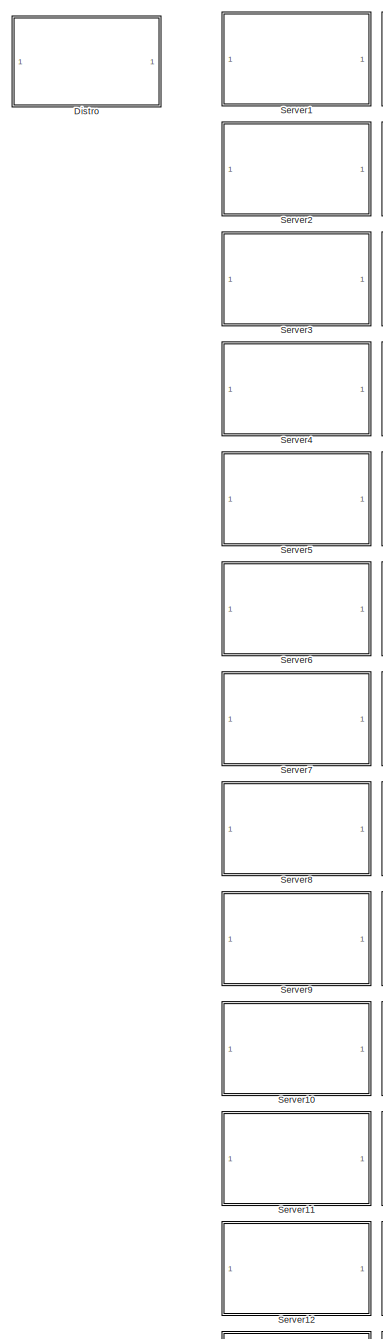
[diagram: root canvas - part 1/4, top left region]
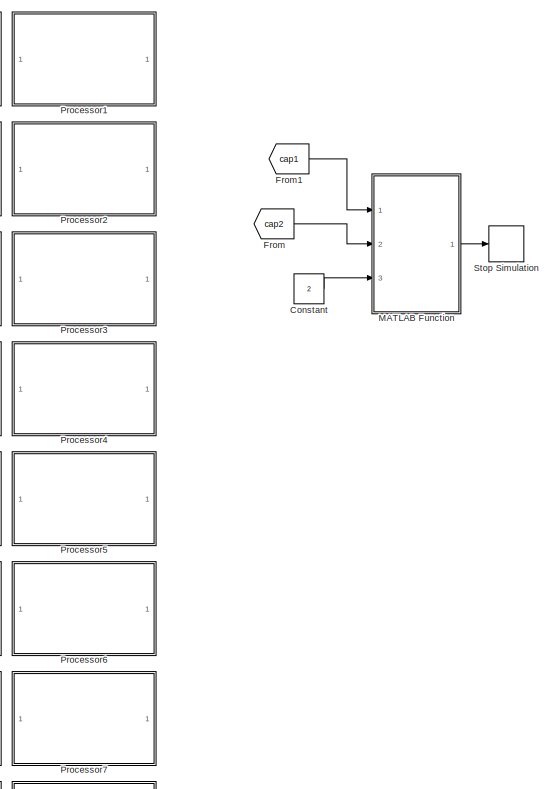
[diagram: root canvas - part 2/4, top right region]
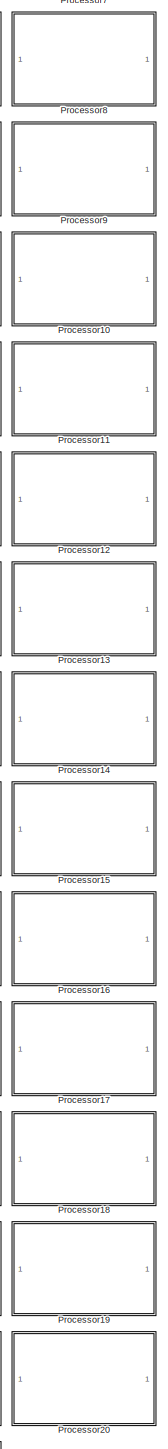
[diagram: root canvas - part 3/4, central region]
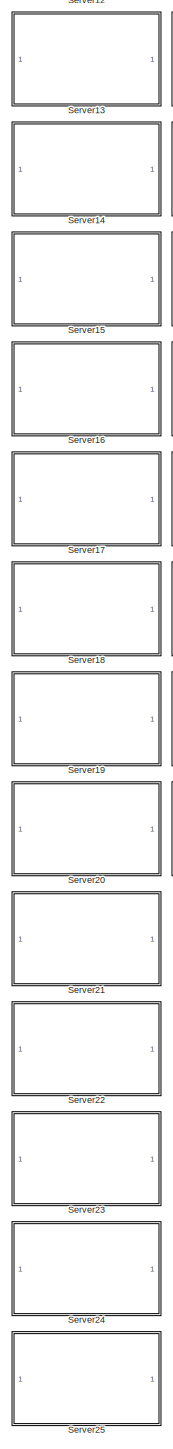
[diagram: root canvas - part 4/4, bottom left region]
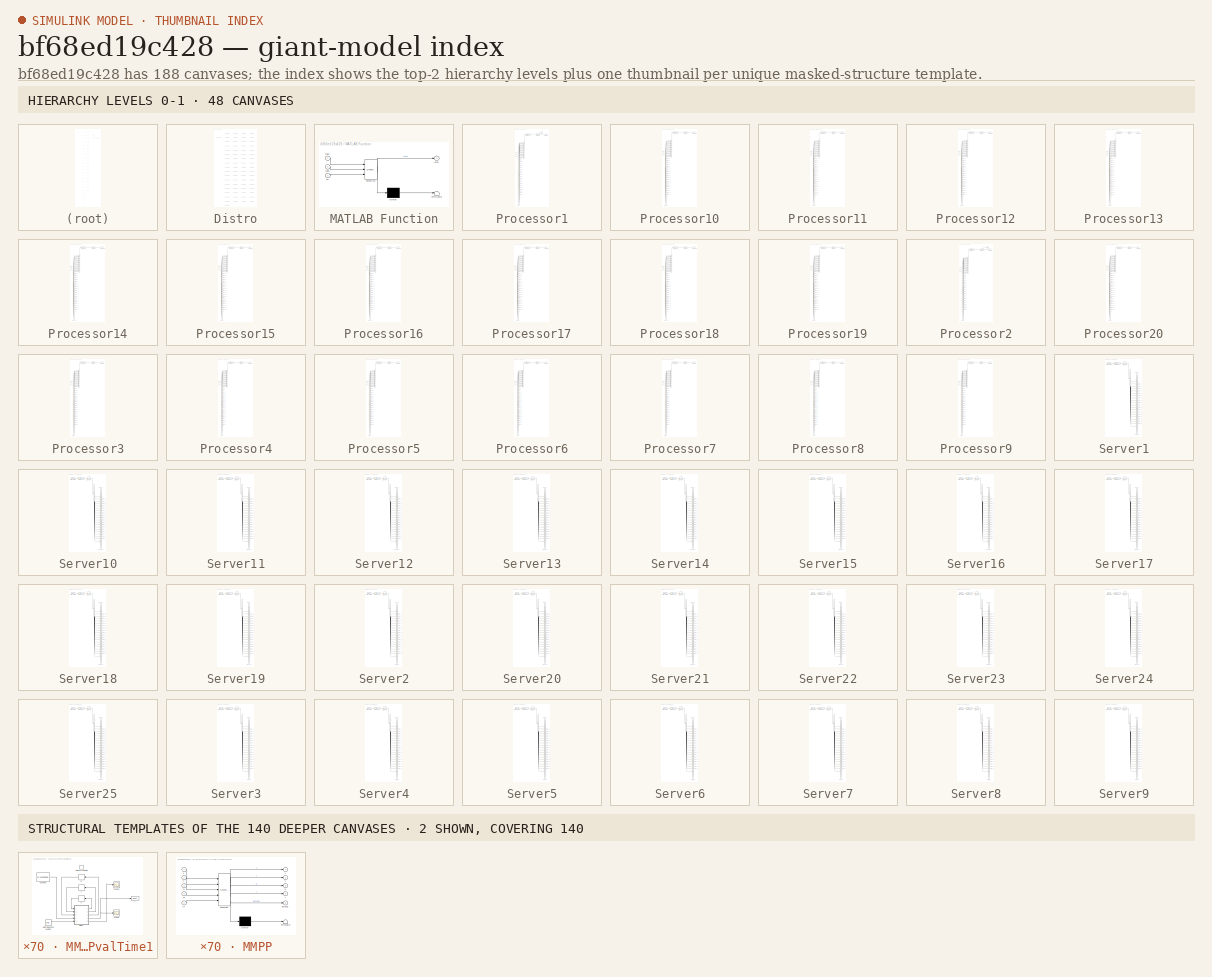
[diagram: thumbnail index - top-2 hierarchy levels (48 canvases) + 2 structural-template representatives of the remaining 140 canvases]
MODEL slx_bf68ed19c428
KIND model
CONFIG AbsTol = auto
CONFIG EnableMultiTasking = on
CONFIG FixedStep = auto
CONFIG MaxStep = auto
CONFIG MinStep = auto
CONFIG RelTol = 1e-3
CONFIG SampleTimeConstraint = Unconstrained
CONFIG Solver = VariableStepAuto
CONFIG SolverName = VariableStepAuto
CONFIG StartTime = 0.0
CONFIG StopTime = 100
BLOCK [Constant] Constant
  SampleTime = -1
  Value = 2
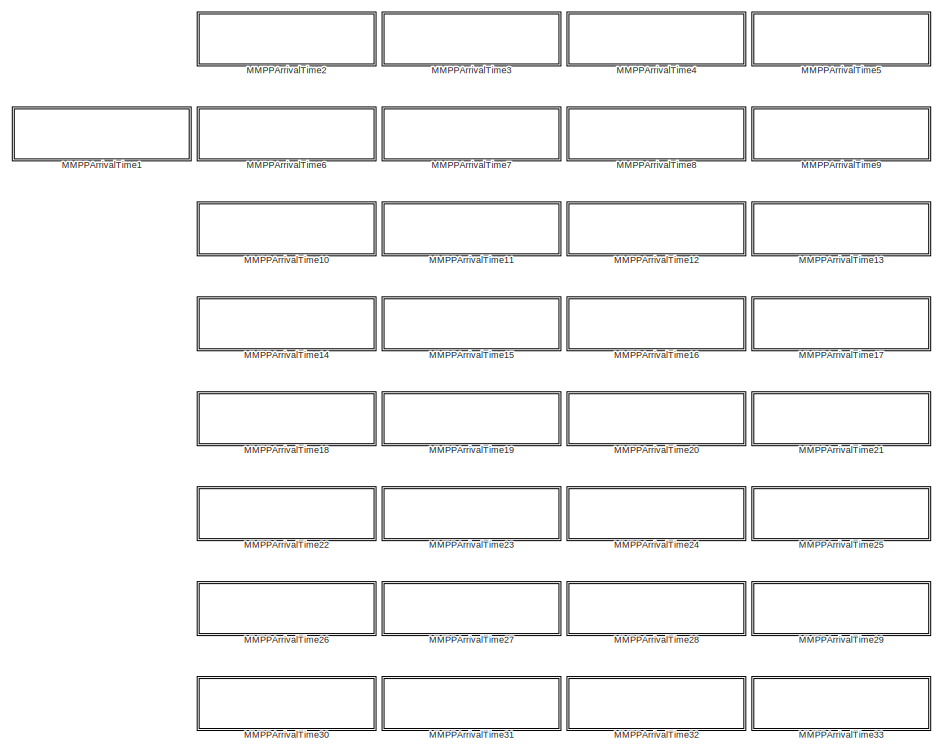
[diagram: Distro - part 1/2, full width, top band]
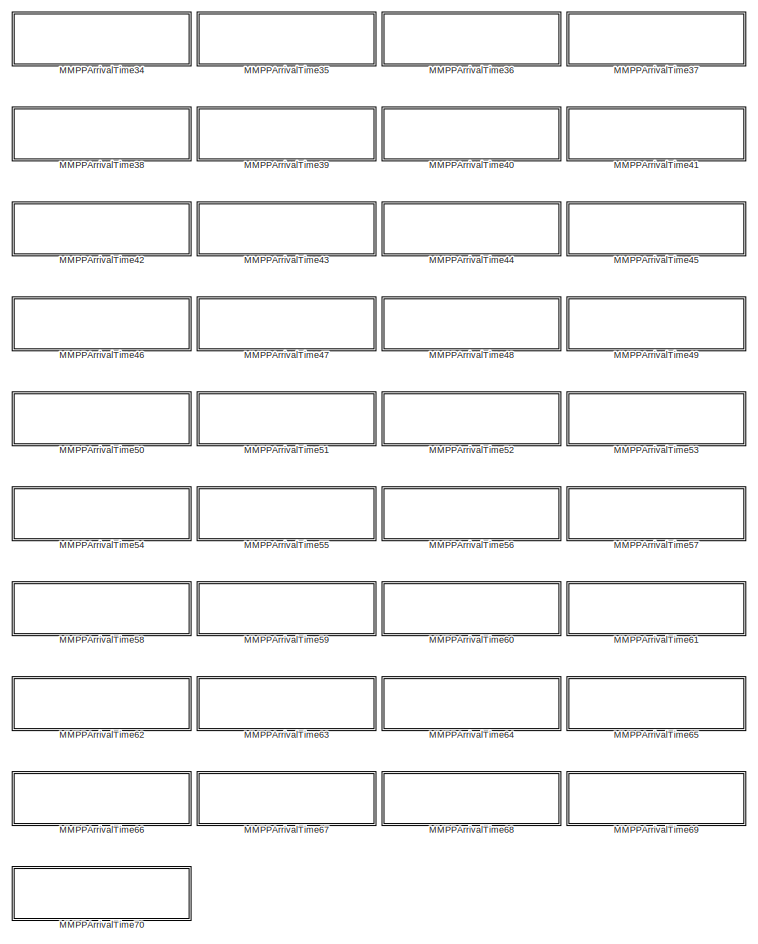
[diagram: Distro - part 2/2, full width, bottom band]
BLOCK [SubSystem] Distro
  Ports = []
  RequestExecContextInheritance = off
BLOCK [SubSystem] Distro/MMPPArrivalTime1
  Ports = [0, 0, 0, 1]
  RequestExecContextInheritance = off
  ShowPortLabels = FromPortBlockName
  TreatAsAtomicUnit = on
BLOCK [Constant] Distro/MMPPArrivalTime1/Constant
  SampleTime = -1
  Value = [0.412159093658181 0.317831870182722 0.133931544933991 0.00987623758494989 0.0931069192135052 0.0330943344266506;0.163331203889296 0.00869673601137318 0.283742324915975 0.211971167379307 0.11317632270736 0.219082245096688;0.00212236020661071 0.193135683229019 0.00234252764520018 0.214233858159417 0.277978307809218 0.310187262950535;0.0541252967165364 0.159747585156857 0.187608310787008 0.254374469...<+264ch>
BLOCK [Memory] Distro/MMPPArrivalTime1/D
  InheritSampleTime = on
  InitialCondition = [0.0621365072779505;0.77754382520324]
BLOCK [SubSystem] Distro/MMPPArrivalTime1/MMPP
  ErrorFcn = Stateflow.Translate.translate
  PermitHierarchicalResolution = ExplicitOnly
  Ports = [5, 5]
  RequestExecContextInheritance = off
  SFBlockType = MATLAB Function
  TreatAsAtomicUnit = on
BLOCK [Demux] Distro/MMPPArrivalTime1/MMPP/ Demux 
  Outputs = 1
  Ports = [1, 1]
BLOCK [S-Function] Distro/MMPPArrivalTime1/MMPP/ SFunction 
  EnableBusSupport = on
  FunctionName = sf_sfun
  PortCounts = [5 6]
  Ports = [5, 6]
  SFcnIsStateOwnerBlock = off
  SFunctionDeploymentMode = off
  Tag = Stateflow S-Function QueuingSys 2
BLOCK [Terminator] Distro/MMPPArrivalTime1/MMPP/ Terminator 
BLOCK [Outport] Distro/MMPPArrivalTime1/MMPP/D
  IconDisplay = Port number
  Port = 3
BLOCK [Inport] Distro/MMPPArrivalTime1/MMPP/D 
  IconDisplay = Port number
  Port = 3
BLOCK [Inport] Distro/MMPPArrivalTime1/MMPP/M
  IconDisplay = Port number
  Port = 4
BLOCK [Outport] Distro/MMPPArrivalTime1/MMPP/T
  IconDisplay = Port number
  Port = 2
BLOCK [Inport] Distro/MMPPArrivalTime1/MMPP/T 
  IconDisplay = Port number
  Port = 2
BLOCK [Outport] Distro/MMPPArrivalTime1/MMPP/lambda
  IconDisplay = Port number
  Port = 5
BLOCK [Inport] Distro/MMPPArrivalTime1/MMPP/rn
  IconDisplay = Port number
  Port = 5
BLOCK [Outport] Distro/MMPPArrivalTime1/MMPP/t
  IconDisplay = Port number
  Port = 4
BLOCK [Outport] Distro/MMPPArrivalTime1/MMPP/x
  IconDisplay = Port number
BLOCK [Inport] Distro/MMPPArrivalTime1/MMPP/x 
  IconDisplay = Port number
BLOCK [TriggerPort] Distro/MMPPArrivalTime1/MMPPArrivalTime
  FunctionName = MMPPArrivalTime1
  IsSimulinkFunction = on
  Ports = []
  StatesWhenEnabling = held
  TriggerType = function-call
  VariantControl = Variant
BLOCK [Scope] Distro/MMPPArrivalTime1/Scope
  Floating = off
  NumInputPorts = 1
  Ports = [1]
  ScopeSpecificationString = Simulink.scopes.TimeScopeBlockCfg('CurrentConfiguration', extmgr.ConfigurationSet(extmgr.Configuration('Core','General UI',true),extmgr.Configuration('Core','Source UI',true),extmgr.Configuration('Sources','WiredSimulink',true),extmgr.Configuration('Visuals','Time Domain',true,'SerializedDisplays',{struct('MinYLimReal','-0.30476','MaxYLimReal','2.74533','YLabelReal','','MinYLimMag','0.00000','MaxY...<+1380ch>  <repeated x70 — deduplicated; at blocks: Scope>
BLOCK [Scope] Distro/MMPPArrivalTime1/Scope1
  Floating = off
  NumInputPorts = 1
  Ports = [1]
  ScopeSpecificationString = Simulink.scopes.TimeScopeBlockCfg('CurrentConfiguration', extmgr.ConfigurationSet(extmgr.Configuration('Core','General UI',true),extmgr.Configuration('Core','Source UI',true),extmgr.Configuration('Sources','WiredSimulink',true,'DataLoggingVariableName','ScopeData2'),extmgr.Configuration('Visuals','Time Domain',true,'SerializedDisplays',{struct('MinYLimReal','0.62514','MaxYLimReal','0.97071','YLabe...<+1422ch>  <repeated x70 — deduplicated; at blocks: Scope1>
BLOCK [Memory] Distro/MMPPArrivalTime1/T
  InheritSampleTime = on
  InitialCondition = [0 0.883539674649741]
BLOCK [UniformRandomNumber] Distro/MMPPArrivalTime1/Uniform Random Number
  Minimum = 0
  Seed = randi(5000)
BLOCK [Memory] Distro/MMPPArrivalTime1/X
  InheritSampleTime = on
  InitialCondition = 1
BLOCK [ArgOut] Distro/MMPPArrivalTime1/t
  ArgumentName = t
  DisableCoverage = on
BLOCK [SubSystem] Distro/MMPPArrivalTime10
  Ports = [0, 0, 0, 1]
  RequestExecContextInheritance = off
  ShowPortLabels = FromPortBlockName
  TreatAsAtomicUnit = on
BLOCK [Constant] Distro/MMPPArrivalTime10/Constant
  SampleTime = -1
  Value = [0.14791658699818 0.189600378010944 0.0522305213407234 0.188296619056212 0.173178289859822 0.0661810030371976 0.182596601696922;0.0794053648880361 0.0641664402973216 0.132176652184913 0.0505924788278475 0.354867567711648 0.229506428771017 0.0892850673192174;0.000805645817566182 0.137377999930999 0.264390197221379 0.191194737152744 0.0775488147613002 0.224240672212579 0.104441932903432;0.0458057627...<+499ch>
BLOCK [Memory] Distro/MMPPArrivalTime10/D
  InheritSampleTime = on
  InitialCondition = [0.618966880542704;0.409787087237061]
BLOCK [SubSystem] Distro/MMPPArrivalTime10/MMPP
  ErrorFcn = Stateflow.Translate.translate
  PermitHierarchicalResolution = ExplicitOnly
  Ports = [5, 5]
  RequestExecContextInheritance = off
  SFBlockType = MATLAB Function
  TreatAsAtomicUnit = on
BLOCK [Demux] Distro/MMPPArrivalTime10/MMPP/ Demux 
  Outputs = 1
  Ports = [1, 1]
BLOCK [S-Function] Distro/MMPPArrivalTime10/MMPP/ SFunction 
  EnableBusSupport = on
  FunctionName = sf_sfun
  PortCounts = [5 6]
  Ports = [5, 6]
  SFcnIsStateOwnerBlock = off
  SFunctionDeploymentMode = off
  Tag = Stateflow S-Function QueuingSys 11
BLOCK [Terminator] Distro/MMPPArrivalTime10/MMPP/ Terminator 
BLOCK [Outport] Distro/MMPPArrivalTime10/MMPP/D
  IconDisplay = Port number
  Port = 3
BLOCK [Inport] Distro/MMPPArrivalTime10/MMPP/D 
  IconDisplay = Port number
  Port = 3
BLOCK [Inport] Distro/MMPPArrivalTime10/MMPP/M
  IconDisplay = Port number
  Port = 4
BLOCK [Outport] Distro/MMPPArrivalTime10/MMPP/T
  IconDisplay = Port number
  Port = 2
BLOCK [Inport] Distro/MMPPArrivalTime10/MMPP/T 
  IconDisplay = Port number
  Port = 2
BLOCK [Outport] Distro/MMPPArrivalTime10/MMPP/lambda
  IconDisplay = Port number
  Port = 5
BLOCK [Inport] Distro/MMPPArrivalTime10/MMPP/rn
  IconDisplay = Port number
  Port = 5
BLOCK [Outport] Distro/MMPPArrivalTime10/MMPP/t
  IconDisplay = Port number
  Port = 4
BLOCK [Outport] Distro/MMPPArrivalTime10/MMPP/x
  IconDisplay = Port number
BLOCK [Inport] Distro/MMPPArrivalTime10/MMPP/x 
  IconDisplay = Port number
BLOCK [TriggerPort] Distro/MMPPArrivalTime10/MMPPArrivalTime
  FunctionName = MMPPArrivalTime10
  IsSimulinkFunction = on
  Ports = []
  StatesWhenEnabling = held
  TriggerType = function-call
  VariantControl = Variant
BLOCK [Scope] Distro/MMPPArrivalTime10/Scope
  Floating = off
  NumInputPorts = 1
  Ports = [1]
BLOCK [Scope] Distro/MMPPArrivalTime10/Scope1
  Floating = off
  NumInputPorts = 1
  Ports = [1]
BLOCK [Memory] Distro/MMPPArrivalTime10/T
  InheritSampleTime = on
  InitialCondition = [0 0.448845076916645]
BLOCK [UniformRandomNumber] Distro/MMPPArrivalTime10/Uniform Random Number
  Minimum = 0
  Seed = randi(5000)
BLOCK [Memory] Distro/MMPPArrivalTime10/X
  InheritSampleTime = on
  InitialCondition = 4
BLOCK [ArgOut] Distro/MMPPArrivalTime10/t
  ArgumentName = t
  DisableCoverage = on
BLOCK [SubSystem] Distro/MMPPArrivalTime11
  Ports = [0, 0, 0, 1]
  RequestExecContextInheritance = off
  ShowPortLabels = FromPortBlockName
  TreatAsAtomicUnit = on
BLOCK [Constant] Distro/MMPPArrivalTime11/Constant
  SampleTime = -1
  Value = [0.129047844835686 0.278956960252588 0.591995194911726;0.040407058542902 0.470518141853582 0.489074799603516;0.249192371895868 0.628688943715096 0.122118684389036]
BLOCK [Memory] Distro/MMPPArrivalTime11/D
  InheritSampleTime = on
  InitialCondition = [0.0720193262477142;0.365845796787181]
BLOCK [SubSystem] Distro/MMPPArrivalTime11/MMPP
  ErrorFcn = Stateflow.Translate.translate
  PermitHierarchicalResolution = ExplicitOnly
  Ports = [5, 5]
  RequestExecContextInheritance = off
  SFBlockType = MATLAB Function
  TreatAsAtomicUnit = on
BLOCK [Demux] Distro/MMPPArrivalTime11/MMPP/ Demux 
  Outputs = 1
  Ports = [1, 1]
BLOCK [S-Function] Distro/MMPPArrivalTime11/MMPP/ SFunction 
  EnableBusSupport = on
  FunctionName = sf_sfun
  PortCounts = [5 6]
  Ports = [5, 6]
  SFcnIsStateOwnerBlock = off
  SFunctionDeploymentMode = off
  Tag = Stateflow S-Function QueuingSys 12
BLOCK [Terminator] Distro/MMPPArrivalTime11/MMPP/ Terminator 
BLOCK [Outport] Distro/MMPPArrivalTime11/MMPP/D
  IconDisplay = Port number
  Port = 3
BLOCK [Inport] Distro/MMPPArrivalTime11/MMPP/D 
  IconDisplay = Port number
  Port = 3
BLOCK [Inport] Distro/MMPPArrivalTime11/MMPP/M
  IconDisplay = Port number
  Port = 4
BLOCK [Outport] Distro/MMPPArrivalTime11/MMPP/T
  IconDisplay = Port number
  Port = 2
BLOCK [Inport] Distro/MMPPArrivalTime11/MMPP/T 
  IconDisplay = Port number
  Port = 2
BLOCK [Outport] Distro/MMPPArrivalTime11/MMPP/lambda
  IconDisplay = Port number
  Port = 5
BLOCK [Inport] Distro/MMPPArrivalTime11/MMPP/rn
  IconDisplay = Port number
  Port = 5
BLOCK [Outport] Distro/MMPPArrivalTime11/MMPP/t
  IconDisplay = Port number
  Port = 4
BLOCK [Outport] Distro/MMPPArrivalTime11/MMPP/x
  IconDisplay = Port number
BLOCK [Inport] Distro/MMPPArrivalTime11/MMPP/x 
  IconDisplay = Port number
BLOCK [TriggerPort] Distro/MMPPArrivalTime11/MMPPArrivalTime
  FunctionName = MMPPArrivalTime11
  IsSimulinkFunction = on
  Ports = []
  StatesWhenEnabling = held
  TriggerType = function-call
  VariantControl = Variant
BLOCK [Scope] Distro/MMPPArrivalTime11/Scope
  Floating = off
  NumInputPorts = 1
  Ports = [1]
BLOCK [Scope] Distro/MMPPArrivalTime11/Scope1
  Floating = off
  NumInputPorts = 1
  Ports = [1]
BLOCK [Memory] Distro/MMPPArrivalTime11/T
  InheritSampleTime = on
  InitialCondition = [0 0.24115946512324]
BLOCK [UniformRandomNumber] Distro/MMPPArrivalTime11/Uniform Random Number
  Minimum = 0
  Seed = randi(5000)
BLOCK [Memory] Distro/MMPPArrivalTime11/X
  InheritSampleTime = on
  InitialCondition = 2
BLOCK [ArgOut] Distro/MMPPArrivalTime11/t
  ArgumentName = t
  DisableCoverage = on
BLOCK [SubSystem] Distro/MMPPArrivalTime12
  Ports = [0, 0, 0, 1]
  RequestExecContextInheritance = off
  ShowPortLabels = FromPortBlockName
  TreatAsAtomicUnit = on
BLOCK [Constant] Distro/MMPPArrivalTime12/Constant
  SampleTime = -1
  Value = [0.42033904731243 0.131944764480158 0.216711944818556 0.231004243388856;0.127158835766185 0.368738296302099 0.130640862813513 0.373462005118203;0.115344122895162 0.275606692894181 0.347350630331023 0.261698553879634;0.207647937806112 0.00582236608118863 0.443415410966499 0.343114285146201]
BLOCK [Memory] Distro/MMPPArrivalTime12/D
  InheritSampleTime = on
  InitialCondition = [0.781345653172047;0.538427479061901]
BLOCK [SubSystem] Distro/MMPPArrivalTime12/MMPP
  ErrorFcn = Stateflow.Translate.translate
  PermitHierarchicalResolution = ExplicitOnly
  Ports = [5, 5]
  RequestExecContextInheritance = off
  SFBlockType = MATLAB Function
  TreatAsAtomicUnit = on
BLOCK [Demux] Distro/MMPPArrivalTime12/MMPP/ Demux 
  Outputs = 1
  Ports = [1, 1]
BLOCK [S-Function] Distro/MMPPArrivalTime12/MMPP/ SFunction 
  EnableBusSupport = on
  FunctionName = sf_sfun
  PortCounts = [5 6]
  Ports = [5, 6]
  SFcnIsStateOwnerBlock = off
  SFunctionDeploymentMode = off
  Tag = Stateflow S-Function QueuingSys 13
BLOCK [Terminator] Distro/MMPPArrivalTime12/MMPP/ Terminator 
BLOCK [Outport] Distro/MMPPArrivalTime12/MMPP/D
  IconDisplay = Port number
  Port = 3
BLOCK [Inport] Distro/MMPPArrivalTime12/MMPP/D 
  IconDisplay = Port number
  Port = 3
BLOCK [Inport] Distro/MMPPArrivalTime12/MMPP/M
  IconDisplay = Port number
  Port = 4
BLOCK [Outport] Distro/MMPPArrivalTime12/MMPP/T
  IconDisplay = Port number
  Port = 2
BLOCK [Inport] Distro/MMPPArrivalTime12/MMPP/T 
  IconDisplay = Port number
  Port = 2
BLOCK [Outport] Distro/MMPPArrivalTime12/MMPP/lambda
  IconDisplay = Port number
  Port = 5
BLOCK [Inport] Distro/MMPPArrivalTime12/MMPP/rn
  IconDisplay = Port number
  Port = 5
BLOCK [Outport] Distro/MMPPArrivalTime12/MMPP/t
  IconDisplay = Port number
  Port = 4
BLOCK [Outport] Distro/MMPPArrivalTime12/MMPP/x
  IconDisplay = Port number
BLOCK [Inport] Distro/MMPPArrivalTime12/MMPP/x 
  IconDisplay = Port number
BLOCK [TriggerPort] Distro/MMPPArrivalTime12/MMPPArrivalTime
  FunctionName = MMPPArrivalTime12
  IsSimulinkFunction = on
  Ports = []
  StatesWhenEnabling = held
  TriggerType = function-call
  VariantControl = Variant
BLOCK [Scope] Distro/MMPPArrivalTime12/Scope
  Floating = off
  NumInputPorts = 1
  Ports = [1]
BLOCK [Scope] Distro/MMPPArrivalTime12/Scope1
  Floating = off
  NumInputPorts = 1
  Ports = [1]
BLOCK [Memory] Distro/MMPPArrivalTime12/T
  InheritSampleTime = on
  InitialCondition = [0 0.507848919116842]
BLOCK [UniformRandomNumber] Distro/MMPPArrivalTime12/Uniform Random Number
  Minimum = 0
  Seed = randi(5000)
BLOCK [Memory] Distro/MMPPArrivalTime12/X
  InheritSampleTime = on
  InitialCondition = 4
BLOCK [ArgOut] Distro/MMPPArrivalTime12/t
  ArgumentName = t
  DisableCoverage = on
BLOCK [SubSystem] Distro/MMPPArrivalTime13
  Ports = [0, 0, 0, 1]
  RequestExecContextInheritance = off
  ShowPortLabels = FromPortBlockName
  TreatAsAtomicUnit = on
BLOCK [Constant] Distro/MMPPArrivalTime13/Constant
  SampleTime = -1
  Value = [0.485145019468541 0.514854980531459;0.478032708696403 0.521967291303597]
BLOCK [Memory] Distro/MMPPArrivalTime13/D
  InheritSampleTime = on
  InitialCondition = [0.667913624903703;0.502421972529354]
BLOCK [SubSystem] Distro/MMPPArrivalTime13/MMPP
  ErrorFcn = Stateflow.Translate.translate
  PermitHierarchicalResolution = ExplicitOnly
  Ports = [5, 5]
  RequestExecContextInheritance = off
  SFBlockType = MATLAB Function
  TreatAsAtomicUnit = on
BLOCK [Demux] Distro/MMPPArrivalTime13/MMPP/ Demux 
  Outputs = 1
  Ports = [1, 1]
BLOCK [S-Function] Distro/MMPPArrivalTime13/MMPP/ SFunction 
  EnableBusSupport = on
  FunctionName = sf_sfun
  PortCounts = [5 6]
  Ports = [5, 6]
  SFcnIsStateOwnerBlock = off
  SFunctionDeploymentMode = off
  Tag = Stateflow S-Function QueuingSys 14
BLOCK [Terminator] Distro/MMPPArrivalTime13/MMPP/ Terminator 
BLOCK [Outport] Distro/MMPPArrivalTime13/MMPP/D
  IconDisplay = Port number
  Port = 3
BLOCK [Inport] Distro/MMPPArrivalTime13/MMPP/D 
  IconDisplay = Port number
  Port = 3
BLOCK [Inport] Distro/MMPPArrivalTime13/MMPP/M
  IconDisplay = Port number
  Port = 4
BLOCK [Outport] Distro/MMPPArrivalTime13/MMPP/T
  IconDisplay = Port number
  Port = 2
BLOCK [Inport] Distro/MMPPArrivalTime13/MMPP/T 
  IconDisplay = Port number
  Port = 2
BLOCK [Outport] Distro/MMPPArrivalTime13/MMPP/lambda
  IconDisplay = Port number
  Port = 5
BLOCK [Inport] Distro/MMPPArrivalTime13/MMPP/rn
  IconDisplay = Port number
  Port = 5
BLOCK [Outport] Distro/MMPPArrivalTime13/MMPP/t
  IconDisplay = Port number
  Port = 4
BLOCK [Outport] Distro/MMPPArrivalTime13/MMPP/x
  IconDisplay = Port number
BLOCK [Inport] Distro/MMPPArrivalTime13/MMPP/x 
  IconDisplay = Port number
BLOCK [TriggerPort] Distro/MMPPArrivalTime13/MMPPArrivalTime
  FunctionName = MMPPArrivalTime13
  IsSimulinkFunction = on
  Ports = []
  StatesWhenEnabling = held
  TriggerType = function-call
  VariantControl = Variant
BLOCK [Scope] Distro/MMPPArrivalTime13/Scope
  Floating = off
  NumInputPorts = 1
  Ports = [1]
BLOCK [Scope] Distro/MMPPArrivalTime13/Scope1
  Floating = off
  NumInputPorts = 1
  Ports = [1]
BLOCK [Memory] Distro/MMPPArrivalTime13/T
  InheritSampleTime = on
  InitialCondition = [0 0.359370267196457]
BLOCK [UniformRandomNumber] Distro/MMPPArrivalTime13/Uniform Random Number
  Minimum = 0
  Seed = randi(5000)
BLOCK [Memory] Distro/MMPPArrivalTime13/X
  InheritSampleTime = on
  InitialCondition = 1
BLOCK [ArgOut] Distro/MMPPArrivalTime13/t
  ArgumentName = t
  DisableCoverage = on
BLOCK [SubSystem] Distro/MMPPArrivalTime14
  Ports = [0, 0, 0, 1]
  RequestExecContextInheritance = off
  ShowPortLabels = FromPortBlockName
  TreatAsAtomicUnit = on
BLOCK [Constant] Distro/MMPPArrivalTime14/Constant
  SampleTime = -1
  Value = [0.0932806412615796 0.10475583265965 0.0293906242244008 0.77257290185437;0.471907175257639 0.0102399962080758 0.213294738374972 0.304558090159313;0.144664776062697 0.18890576566579 0.515159082839529 0.151270375431984;0.0444742945370317 0.0544987934264784 0.302642103523551 0.598384808512939]
BLOCK [Memory] Distro/MMPPArrivalTime14/D
  InheritSampleTime = on
  InitialCondition = [0.0876437222952857;0.470425708481648]
BLOCK [SubSystem] Distro/MMPPArrivalTime14/MMPP
  ErrorFcn = Stateflow.Translate.translate
  PermitHierarchicalResolution = ExplicitOnly
  Ports = [5, 5]
  RequestExecContextInheritance = off
  SFBlockType = MATLAB Function
  TreatAsAtomicUnit = on
BLOCK [Demux] Distro/MMPPArrivalTime14/MMPP/ Demux 
  Outputs = 1
  Ports = [1, 1]
BLOCK [S-Function] Distro/MMPPArrivalTime14/MMPP/ SFunction 
  EnableBusSupport = on
  FunctionName = sf_sfun
  PortCounts = [5 6]
  Ports = [5, 6]
  SFcnIsStateOwnerBlock = off
  SFunctionDeploymentMode = off
  Tag = Stateflow S-Function QueuingSys 15
BLOCK [Terminator] Distro/MMPPArrivalTime14/MMPP/ Terminator 
BLOCK [Outport] Distro/MMPPArrivalTime14/MMPP/D
  IconDisplay = Port number
  Port = 3
BLOCK [Inport] Distro/MMPPArrivalTime14/MMPP/D 
  IconDisplay = Port number
  Port = 3
BLOCK [Inport] Distro/MMPPArrivalTime14/MMPP/M
  IconDisplay = Port number
  Port = 4
BLOCK [Outport] Distro/MMPPArrivalTime14/MMPP/T
  IconDisplay = Port number
  Port = 2
BLOCK [Inport] Distro/MMPPArrivalTime14/MMPP/T 
  IconDisplay = Port number
  Port = 2
BLOCK [Outport] Distro/MMPPArrivalTime14/MMPP/lambda
  IconDisplay = Port number
  Port = 5
BLOCK [Inport] Distro/MMPPArrivalTime14/MMPP/rn
  IconDisplay = Port number
  Port = 5
BLOCK [Outport] Distro/MMPPArrivalTime14/MMPP/t
  IconDisplay = Port number
  Port = 4
BLOCK [Outport] Distro/MMPPArrivalTime14/MMPP/x
  IconDisplay = Port number
BLOCK [Inport] Distro/MMPPArrivalTime14/MMPP/x 
  IconDisplay = Port number
BLOCK [TriggerPort] Distro/MMPPArrivalTime14/MMPPArrivalTime
  FunctionName = MMPPArrivalTime14
  IsSimulinkFunction = on
  Ports = []
  StatesWhenEnabling = held
  TriggerType = function-call
  VariantControl = Variant
BLOCK [Scope] Distro/MMPPArrivalTime14/Scope
  Floating = off
  NumInputPorts = 1
  Ports = [1]
BLOCK [Scope] Distro/MMPPArrivalTime14/Scope1
  Floating = off
  NumInputPorts = 1
  Ports = [1]
BLOCK [Memory] Distro/MMPPArrivalTime14/T
  InheritSampleTime = on
  InitialCondition = [0 0.308204556021653]
BLOCK [UniformRandomNumber] Distro/MMPPArrivalTime14/Uniform Random Number
  Minimum = 0
  Seed = randi(5000)
BLOCK [Memory] Distro/MMPPArrivalTime14/X
  InheritSampleTime = on
  InitialCondition = 3
BLOCK [ArgOut] Distro/MMPPArrivalTime14/t
  ArgumentName = t
  DisableCoverage = on
BLOCK [SubSystem] Distro/MMPPArrivalTime15
  Ports = [0, 0, 0, 1]
  RequestExecContextInheritance = off
  ShowPortLabels = FromPortBlockName
  TreatAsAtomicUnit = on
BLOCK [Constant] Distro/MMPPArrivalTime15/Constant
  SampleTime = -1
  Value = [0.0401058375505951 0.0377051481145618 0.706069345359974 0.216119668974869;0.409640909389935 0.403089821424346 0.176283804311435 0.0109854648742844;0.252265741765676 0.485912128986102 0.103325925540027 0.158496203708196;0.166781547605669 0.463458590345799 0.226111139160036 0.143648722888496]
BLOCK [Memory] Distro/MMPPArrivalTime15/D
  InheritSampleTime = on
  InitialCondition = [0.348220780592835;0.537149596656765]
BLOCK [SubSystem] Distro/MMPPArrivalTime15/MMPP
  ErrorFcn = Stateflow.Translate.translate
  PermitHierarchicalResolution = ExplicitOnly
  Ports = [5, 5]
  RequestExecContextInheritance = off
  SFBlockType = MATLAB Function
  TreatAsAtomicUnit = on
BLOCK [Demux] Distro/MMPPArrivalTime15/MMPP/ Demux 
  Outputs = 1
  Ports = [1, 1]
BLOCK [S-Function] Distro/MMPPArrivalTime15/MMPP/ SFunction 
  EnableBusSupport = on
  FunctionName = sf_sfun
  PortCounts = [5 6]
  Ports = [5, 6]
  SFcnIsStateOwnerBlock = off
  SFunctionDeploymentMode = off
  Tag = Stateflow S-Function QueuingSys 16
BLOCK [Terminator] Distro/MMPPArrivalTime15/MMPP/ Terminator 
BLOCK [Outport] Distro/MMPPArrivalTime15/MMPP/D
  IconDisplay = Port number
  Port = 3
BLOCK [Inport] Distro/MMPPArrivalTime15/MMPP/D 
  IconDisplay = Port number
  Port = 3
BLOCK [Inport] Distro/MMPPArrivalTime15/MMPP/M
  IconDisplay = Port number
  Port = 4
BLOCK [Outport] Distro/MMPPArrivalTime15/MMPP/T
  IconDisplay = Port number
  Port = 2
BLOCK [Inport] Distro/MMPPArrivalTime15/MMPP/T 
  IconDisplay = Port number
  Port = 2
BLOCK [Outport] Distro/MMPPArrivalTime15/MMPP/lambda
  IconDisplay = Port number
  Port = 5
BLOCK [Inport] Distro/MMPPArrivalTime15/MMPP/rn
  IconDisplay = Port number
  Port = 5
BLOCK [Outport] Distro/MMPPArrivalTime15/MMPP/t
  IconDisplay = Port number
  Port = 4
BLOCK [Outport] Distro/MMPPArrivalTime15/MMPP/x
  IconDisplay = Port number
BLOCK [Inport] Distro/MMPPArrivalTime15/MMPP/x 
  IconDisplay = Port number
BLOCK [TriggerPort] Distro/MMPPArrivalTime15/MMPPArrivalTime
  FunctionName = MMPPArrivalTime15
  IsSimulinkFunction = on
  Ports = []
  StatesWhenEnabling = held
  TriggerType = function-call
  VariantControl = Variant
BLOCK [Scope] Distro/MMPPArrivalTime15/Scope
  Floating = off
  NumInputPorts = 1
  Ports = [1]
BLOCK [Scope] Distro/MMPPArrivalTime15/Scope1
  Floating = off
  NumInputPorts = 1
  Ports = [1]
BLOCK [Memory] Distro/MMPPArrivalTime15/T
  InheritSampleTime = on
  InitialCondition = [0 0.739455792730707]
BLOCK [UniformRandomNumber] Distro/MMPPArrivalTime15/Uniform Random Number
  Minimum = 0
  Seed = randi(5000)
BLOCK [Memory] Distro/MMPPArrivalTime15/X
  InheritSampleTime = on
  InitialCondition = 1
BLOCK [ArgOut] Distro/MMPPArrivalTime15/t
  ArgumentName = t
  DisableCoverage = on
BLOCK [SubSystem] Distro/MMPPArrivalTime16
  Ports = [0, 0, 0, 1]
  RequestExecContextInheritance = off
  ShowPortLabels = FromPortBlockName
  TreatAsAtomicUnit = on
BLOCK [Constant] Distro/MMPPArrivalTime16/Constant
  SampleTime = -1
  Value = [0.247126295403578 0.752873704596422;0.513365640214302 0.486634359785698]
BLOCK [Memory] Distro/MMPPArrivalTime16/D
  InheritSampleTime = on
  InitialCondition = [0.719337934780301;0.0335931645744745]
BLOCK [SubSystem] Distro/MMPPArrivalTime16/MMPP
  ErrorFcn = Stateflow.Translate.translate
  PermitHierarchicalResolution = ExplicitOnly
  Ports = [5, 5]
  RequestExecContextInheritance = off
  SFBlockType = MATLAB Function
  TreatAsAtomicUnit = on
BLOCK [Demux] Distro/MMPPArrivalTime16/MMPP/ Demux 
  Outputs = 1
  Ports = [1, 1]
BLOCK [S-Function] Distro/MMPPArrivalTime16/MMPP/ SFunction 
  EnableBusSupport = on
  FunctionName = sf_sfun
  PortCounts = [5 6]
  Ports = [5, 6]
  SFcnIsStateOwnerBlock = off
  SFunctionDeploymentMode = off
  Tag = Stateflow S-Function QueuingSys 17
BLOCK [Terminator] Distro/MMPPArrivalTime16/MMPP/ Terminator 
BLOCK [Outport] Distro/MMPPArrivalTime16/MMPP/D
  IconDisplay = Port number
  Port = 3
BLOCK [Inport] Distro/MMPPArrivalTime16/MMPP/D 
  IconDisplay = Port number
  Port = 3
BLOCK [Inport] Distro/MMPPArrivalTime16/MMPP/M
  IconDisplay = Port number
  Port = 4
BLOCK [Outport] Distro/MMPPArrivalTime16/MMPP/T
  IconDisplay = Port number
  Port = 2
BLOCK [Inport] Distro/MMPPArrivalTime16/MMPP/T 
  IconDisplay = Port number
  Port = 2
BLOCK [Outport] Distro/MMPPArrivalTime16/MMPP/lambda
  IconDisplay = Port number
  Port = 5
BLOCK [Inport] Distro/MMPPArrivalTime16/MMPP/rn
  IconDisplay = Port number
  Port = 5
BLOCK [Outport] Distro/MMPPArrivalTime16/MMPP/t
  IconDisplay = Port number
  Port = 4
BLOCK [Outport] Distro/MMPPArrivalTime16/MMPP/x
  IconDisplay = Port number
BLOCK [Inport] Distro/MMPPArrivalTime16/MMPP/x 
  IconDisplay = Port number
BLOCK [TriggerPort] Distro/MMPPArrivalTime16/MMPPArrivalTime
  FunctionName = MMPPArrivalTime16
  IsSimulinkFunction = on
  Ports = []
  StatesWhenEnabling = held
  TriggerType = function-call
  VariantControl = Variant
BLOCK [Scope] Distro/MMPPArrivalTime16/Scope
  Floating = off
  NumInputPorts = 1
  Ports = [1]
BLOCK [Scope] Distro/MMPPArrivalTime16/Scope1
  Floating = off
  NumInputPorts = 1
  Ports = [1]
BLOCK [Memory] Distro/MMPPArrivalTime16/T
  InheritSampleTime = on
  InitialCondition = [0 0.0257259796336265]
BLOCK [UniformRandomNumber] Distro/MMPPArrivalTime16/Uniform Random Number
  Minimum = 0
  Seed = randi(5000)
BLOCK [Memory] Distro/MMPPArrivalTime16/X
  InheritSampleTime = on
  InitialCondition = 1
BLOCK [ArgOut] Distro/MMPPArrivalTime16/t
  ArgumentName = t
  DisableCoverage = on
BLOCK [SubSystem] Distro/MMPPArrivalTime17
  Ports = [0, 0, 0, 1]
  RequestExecContextInheritance = off
  ShowPortLabels = FromPortBlockName
  TreatAsAtomicUnit = on
BLOCK [Constant] Distro/MMPPArrivalTime17/Constant
  SampleTime = -1
  Value = [0.142182067718587 0.10242319115561 0.0556781393969113 0.171330102856225 0.263541060784112 0.264845438088556;0.103054796463935 0.0101439592999038 0.0772887080596481 0.467031778718977 0.0217735045375128 0.320707252920024;0.357445245923076 0.130106801895566 0.193447848546424 0.166015947238577 0.0111891345566429 0.141795021839715;0.0976925190207533 0.135264618666977 0.178842475388613 0.24491262055051...<+259ch>
BLOCK [Memory] Distro/MMPPArrivalTime17/D
  InheritSampleTime = on
  InitialCondition = [0.921243055684344;0.781648862269082]
BLOCK [SubSystem] Distro/MMPPArrivalTime17/MMPP
  ErrorFcn = Stateflow.Translate.translate
  PermitHierarchicalResolution = ExplicitOnly
  Ports = [5, 5]
  RequestExecContextInheritance = off
  SFBlockType = MATLAB Function
  TreatAsAtomicUnit = on
BLOCK [Demux] Distro/MMPPArrivalTime17/MMPP/ Demux 
  Outputs = 1
  Ports = [1, 1]
BLOCK [S-Function] Distro/MMPPArrivalTime17/MMPP/ SFunction 
  EnableBusSupport = on
  FunctionName = sf_sfun
  PortCounts = [5 6]
  Ports = [5, 6]
  SFcnIsStateOwnerBlock = off
  SFunctionDeploymentMode = off
  Tag = Stateflow S-Function QueuingSys 18
BLOCK [Terminator] Distro/MMPPArrivalTime17/MMPP/ Terminator 
BLOCK [Outport] Distro/MMPPArrivalTime17/MMPP/D
  IconDisplay = Port number
  Port = 3
BLOCK [Inport] Distro/MMPPArrivalTime17/MMPP/D 
  IconDisplay = Port number
  Port = 3
BLOCK [Inport] Distro/MMPPArrivalTime17/MMPP/M
  IconDisplay = Port number
  Port = 4
BLOCK [Outport] Distro/MMPPArrivalTime17/MMPP/T
  IconDisplay = Port number
  Port = 2
BLOCK [Inport] Distro/MMPPArrivalTime17/MMPP/T 
  IconDisplay = Port number
  Port = 2
BLOCK [Outport] Distro/MMPPArrivalTime17/MMPP/lambda
  IconDisplay = Port number
  Port = 5
BLOCK [Inport] Distro/MMPPArrivalTime17/MMPP/rn
  IconDisplay = Port number
  Port = 5
BLOCK [Outport] Distro/MMPPArrivalTime17/MMPP/t
  IconDisplay = Port number
  Port = 4
BLOCK [Outport] Distro/MMPPArrivalTime17/MMPP/x
  IconDisplay = Port number
BLOCK [Inport] Distro/MMPPArrivalTime17/MMPP/x 
  IconDisplay = Port number
BLOCK [TriggerPort] Distro/MMPPArrivalTime17/MMPPArrivalTime
  FunctionName = MMPPArrivalTime17
  IsSimulinkFunction = on
  Ports = []
  StatesWhenEnabling = held
  TriggerType = function-call
  VariantControl = Variant
BLOCK [Scope] Distro/MMPPArrivalTime17/Scope
  Floating = off
  NumInputPorts = 1
  Ports = [1]
BLOCK [Scope] Distro/MMPPArrivalTime17/Scope1
  Floating = off
  NumInputPorts = 1
  Ports = [1]
BLOCK [Memory] Distro/MMPPArrivalTime17/T
  InheritSampleTime = on
  InitialCondition = [0 1.39063680207556]
BLOCK [UniformRandomNumber] Distro/MMPPArrivalTime17/Uniform Random Number
  Minimum = 0
  Seed = randi(5000)
BLOCK [Memory] Distro/MMPPArrivalTime17/X
  InheritSampleTime = on
  InitialCondition = 6
BLOCK [ArgOut] Distro/MMPPArrivalTime17/t
  ArgumentName = t
  DisableCoverage = on
BLOCK [SubSystem] Distro/MMPPArrivalTime18
  Ports = [0, 0, 0, 1]
  RequestExecContextInheritance = off
  ShowPortLabels = FromPortBlockName
  TreatAsAtomicUnit = on
BLOCK [Constant] Distro/MMPPArrivalTime18/Constant
  SampleTime = -1
  Value = [0.36479369994344 0.462900226565751 0.17230607349081;0.476138543609568 0.316069483562708 0.207791972827724;0.141021621259036 0.374537492419174 0.484440886321789]
BLOCK [Memory] Distro/MMPPArrivalTime18/D
  InheritSampleTime = on
  InitialCondition = [0.893525483138456;0.440476366658922]
BLOCK [SubSystem] Distro/MMPPArrivalTime18/MMPP
  ErrorFcn = Stateflow.Translate.translate
  PermitHierarchicalResolution = ExplicitOnly
  Ports = [5, 5]
  RequestExecContextInheritance = off
  SFBlockType = MATLAB Function
  TreatAsAtomicUnit = on
BLOCK [Demux] Distro/MMPPArrivalTime18/MMPP/ Demux 
  Outputs = 1
  Ports = [1, 1]
BLOCK [S-Function] Distro/MMPPArrivalTime18/MMPP/ SFunction 
  EnableBusSupport = on
  FunctionName = sf_sfun
  PortCounts = [5 6]
  Ports = [5, 6]
  SFcnIsStateOwnerBlock = off
  SFunctionDeploymentMode = off
  Tag = Stateflow S-Function QueuingSys 19
BLOCK [Terminator] Distro/MMPPArrivalTime18/MMPP/ Terminator 
BLOCK [Outport] Distro/MMPPArrivalTime18/MMPP/D
  IconDisplay = Port number
  Port = 3
BLOCK [Inport] Distro/MMPPArrivalTime18/MMPP/D 
  IconDisplay = Port number
  Port = 3
BLOCK [Inport] Distro/MMPPArrivalTime18/MMPP/M
  IconDisplay = Port number
  Port = 4
BLOCK [Outport] Distro/MMPPArrivalTime18/MMPP/T
  IconDisplay = Port number
  Port = 2
BLOCK [Inport] Distro/MMPPArrivalTime18/MMPP/T 
  IconDisplay = Port number
  Port = 2
BLOCK [Outport] Distro/MMPPArrivalTime18/MMPP/lambda
  IconDisplay = Port number
  Port = 5
BLOCK [Inport] Distro/MMPPArrivalTime18/MMPP/rn
  IconDisplay = Port number
  Port = 5
BLOCK [Outport] Distro/MMPPArrivalTime18/MMPP/t
  IconDisplay = Port number
  Port = 4
BLOCK [Outport] Distro/MMPPArrivalTime18/MMPP/x
  IconDisplay = Port number
BLOCK [Inport] Distro/MMPPArrivalTime18/MMPP/x 
  IconDisplay = Port number
BLOCK [TriggerPort] Distro/MMPPArrivalTime18/MMPPArrivalTime
  FunctionName = MMPPArrivalTime18
  IsSimulinkFunction = on
  Ports = []
  StatesWhenEnabling = held
  TriggerType = function-call
  VariantControl = Variant
BLOCK [Scope] Distro/MMPPArrivalTime18/Scope
  Floating = off
  NumInputPorts = 1
  Ports = [1]
BLOCK [Scope] Distro/MMPPArrivalTime18/Scope1
  Floating = off
  NumInputPorts = 1
  Ports = [1]
BLOCK [Memory] Distro/MMPPArrivalTime18/T
  InheritSampleTime = on
  InitialCondition = [0 0.368844932281477]
BLOCK [UniformRandomNumber] Distro/MMPPArrivalTime18/Uniform Random Number
  Minimum = 0
  Seed = randi(5000)
BLOCK [Memory] Distro/MMPPArrivalTime18/X
  InheritSampleTime = on
  InitialCondition = 1
BLOCK [ArgOut] Distro/MMPPArrivalTime18/t
  ArgumentName = t
  DisableCoverage = on
BLOCK [SubSystem] Distro/MMPPArrivalTime19
  Ports = [0, 0, 0, 1]
  RequestExecContextInheritance = off
  ShowPortLabels = FromPortBlockName
  TreatAsAtomicUnit = on
BLOCK [Constant] Distro/MMPPArrivalTime19/Constant
  SampleTime = -1
  Value = [0.100196380161333 0.183988141823339 0.233315176767858 0.217391823256139 0.261557959711383 0.00355051827994898;0.114873126785534 0.00714140737218188 0.361231527053543 0.290640497638917 0.189285737434527 0.0368277037152965;0.321199797540799 0.197489564932846 0.0042361522573353 0.108889605662573 0.156903996816323 0.211280882790124;0.0340436276249291 0.178122298500438 0.204603153730884 0.150518564386...<+257ch>
BLOCK [Memory] Distro/MMPPArrivalTime19/D
  InheritSampleTime = on
  InitialCondition = [0.725059755063973;0.894647612386255]
BLOCK [SubSystem] Distro/MMPPArrivalTime19/MMPP
  ErrorFcn = Stateflow.Translate.translate
  PermitHierarchicalResolution = ExplicitOnly
  Ports = [5, 5]
  RequestExecContextInheritance = off
  SFBlockType = MATLAB Function
  TreatAsAtomicUnit = on
BLOCK [Demux] Distro/MMPPArrivalTime19/MMPP/ Demux 
  Outputs = 1
  Ports = [1, 1]
BLOCK [S-Function] Distro/MMPPArrivalTime19/MMPP/ SFunction 
  EnableBusSupport = on
  FunctionName = sf_sfun
  PortCounts = [5 6]
  Ports = [5, 6]
  SFcnIsStateOwnerBlock = off
  SFunctionDeploymentMode = off
  Tag = Stateflow S-Function QueuingSys 20
BLOCK [Terminator] Distro/MMPPArrivalTime19/MMPP/ Terminator 
BLOCK [Outport] Distro/MMPPArrivalTime19/MMPP/D
  IconDisplay = Port number
  Port = 3
BLOCK [Inport] Distro/MMPPArrivalTime19/MMPP/D 
  IconDisplay = Port number
  Port = 3
BLOCK [Inport] Distro/MMPPArrivalTime19/MMPP/M
  IconDisplay = Port number
  Port = 4
BLOCK [Outport] Distro/MMPPArrivalTime19/MMPP/T
  IconDisplay = Port number
  Port = 2
BLOCK [Inport] Distro/MMPPArrivalTime19/MMPP/T 
  IconDisplay = Port number
  Port = 2
BLOCK [Outport] Distro/MMPPArrivalTime19/MMPP/lambda
  IconDisplay = Port number
  Port = 5
BLOCK [Inport] Distro/MMPPArrivalTime19/MMPP/rn
  IconDisplay = Port number
  Port = 5
BLOCK [Outport] Distro/MMPPArrivalTime19/MMPP/t
  IconDisplay = Port number
  Port = 4
BLOCK [Outport] Distro/MMPPArrivalTime19/MMPP/x
  IconDisplay = Port number
BLOCK [Inport] Distro/MMPPArrivalTime19/MMPP/x 
  IconDisplay = Port number
BLOCK [TriggerPort] Distro/MMPPArrivalTime19/MMPPArrivalTime
  FunctionName = MMPPArrivalTime19
  IsSimulinkFunction = on
  Ports = []
  StatesWhenEnabling = held
  TriggerType = function-call
  VariantControl = Variant
BLOCK [Scope] Distro/MMPPArrivalTime19/Scope
  Floating = off
  NumInputPorts = 1
  Ports = [1]
BLOCK [Scope] Distro/MMPPArrivalTime19/Scope1
  Floating = off
  NumInputPorts = 1
  Ports = [1]
BLOCK [Memory] Distro/MMPPArrivalTime19/T
  InheritSampleTime = on
  InitialCondition = [0 1.91171080369443]
BLOCK [UniformRandomNumber] Distro/MMPPArrivalTime19/Uniform Random Number
  Minimum = 0
  Seed = randi(5000)
BLOCK [Memory] Distro/MMPPArrivalTime19/X
  InheritSampleTime = on
  InitialCondition = 4
BLOCK [ArgOut] Distro/MMPPArrivalTime19/t
  ArgumentName = t
  DisableCoverage = on
BLOCK [SubSystem] Distro/MMPPArrivalTime2
  Ports = [0, 0, 0, 1]
  RequestExecContextInheritance = off
  ShowPortLabels = FromPortBlockName
  TreatAsAtomicUnit = on
BLOCK [Constant] Distro/MMPPArrivalTime2/Constant
  SampleTime = -1
  Value = [0.15884192538535 0.133998619253844 0.192861537573911 0.0729540272391441 0.0839832034460873 0.218327275040528 0.139033412061137;0.292168908641615 0.25713089494532 0.0244750220648784 0.0288494700150006 0.0405950667340419 0.201826086790309 0.154954550808835;0.222124589291749 0.11134546054113 0.102483839110111 0.173300002319679 0.0879375893788136 0.202988833464514 0.0998196858940033;0.136813135990492...<+495ch>
BLOCK [Memory] Distro/MMPPArrivalTime2/D
  InheritSampleTime = on
  InitialCondition = [0.891845693826279;0.420824840285832]
BLOCK [SubSystem] Distro/MMPPArrivalTime2/MMPP
  ErrorFcn = Stateflow.Translate.translate
  PermitHierarchicalResolution = ExplicitOnly
  Ports = [5, 5]
  RequestExecContextInheritance = off
  SFBlockType = MATLAB Function
  TreatAsAtomicUnit = on
BLOCK [Demux] Distro/MMPPArrivalTime2/MMPP/ Demux 
  Outputs = 1
  Ports = [1, 1]
BLOCK [S-Function] Distro/MMPPArrivalTime2/MMPP/ SFunction 
  EnableBusSupport = on
  FunctionName = sf_sfun
  PortCounts = [5 6]
  Ports = [5, 6]
  SFcnIsStateOwnerBlock = off
  SFunctionDeploymentMode = off
  Tag = Stateflow S-Function QueuingSys 1
BLOCK [Terminator] Distro/MMPPArrivalTime2/MMPP/ Terminator 
BLOCK [Outport] Distro/MMPPArrivalTime2/MMPP/D
  IconDisplay = Port number
  Port = 3
BLOCK [Inport] Distro/MMPPArrivalTime2/MMPP/D 
  IconDisplay = Port number
  Port = 3
BLOCK [Inport] Distro/MMPPArrivalTime2/MMPP/M
  IconDisplay = Port number
  Port = 4
BLOCK [Outport] Distro/MMPPArrivalTime2/MMPP/T
  IconDisplay = Port number
  Port = 2
BLOCK [Inport] Distro/MMPPArrivalTime2/MMPP/T 
  IconDisplay = Port number
  Port = 2
BLOCK [Outport] Distro/MMPPArrivalTime2/MMPP/lambda
  IconDisplay = Port number
  Port = 5
BLOCK [Inport] Distro/MMPPArrivalTime2/MMPP/rn
  IconDisplay = Port number
  Port = 5
BLOCK [Outport] Distro/MMPPArrivalTime2/MMPP/t
  IconDisplay = Port number
  Port = 4
BLOCK [Outport] Distro/MMPPArrivalTime2/MMPP/x
  IconDisplay = Port number
BLOCK [Inport] Distro/MMPPArrivalTime2/MMPP/x 
  IconDisplay = Port number
BLOCK [TriggerPort] Distro/MMPPArrivalTime2/MMPPArrivalTime
  FunctionName = MMPPArrivalTime2
  IsSimulinkFunction = on
  Ports = []
  StatesWhenEnabling = held
  TriggerType = function-call
  VariantControl = Variant
BLOCK [Scope] Distro/MMPPArrivalTime2/Scope
  Floating = off
  NumInputPorts = 1
  Ports = [1]
BLOCK [Scope] Distro/MMPPArrivalTime2/Scope1
  Floating = off
  NumInputPorts = 1
  Ports = [1]
BLOCK [Memory] Distro/MMPPArrivalTime2/T
  InheritSampleTime = on
  InitialCondition = [0 0.465759106178831]
BLOCK [UniformRandomNumber] Distro/MMPPArrivalTime2/Uniform Random Number
  Minimum = 0
  Seed = randi(5000)
BLOCK [Memory] Distro/MMPPArrivalTime2/X
  InheritSampleTime = on
  InitialCondition = 5
BLOCK [ArgOut] Distro/MMPPArrivalTime2/t
  ArgumentName = t
  DisableCoverage = on
BLOCK [SubSystem] Distro/MMPPArrivalTime20
  Ports = [0, 0, 0, 1]
  RequestExecContextInheritance = off
  ShowPortLabels = FromPortBlockName
  TreatAsAtomicUnit = on
BLOCK [Constant] Distro/MMPPArrivalTime20/Constant
  SampleTime = -1
  Value = [0.12449012260309 0.219639323364643 0.203904836796487 0.192899163233864 0.13923187971756 0.106169819348564 0.0136648549357922;0.148783753698043 0.131894050354901 0.261202026969907 0.193714960515092 0.210339933427074 0.0367602390366614 0.0173050359983226;0.0665705962732076 0.221271145990759 0.0742463040564804 0.237682762652747 0.226697428451229 0.16659146001069 0.00694030256488681;0.210181303581902...<+496ch>
BLOCK [Memory] Distro/MMPPArrivalTime20/D
  InheritSampleTime = on
  InitialCondition = [0.939838254337713;0.485154691181415]
BLOCK [SubSystem] Distro/MMPPArrivalTime20/MMPP
  ErrorFcn = Stateflow.Translate.translate
  PermitHierarchicalResolution = ExplicitOnly
  Ports = [5, 5]
  RequestExecContextInheritance = off
  SFBlockType = MATLAB Function
  TreatAsAtomicUnit = on
BLOCK [Demux] Distro/MMPPArrivalTime20/MMPP/ Demux 
  Outputs = 1
  Ports = [1, 1]
BLOCK [S-Function] Distro/MMPPArrivalTime20/MMPP/ SFunction 
  EnableBusSupport = on
  FunctionName = sf_sfun
  PortCounts = [5 6]
  Ports = [5, 6]
  SFcnIsStateOwnerBlock = off
  SFunctionDeploymentMode = off
  Tag = Stateflow S-Function QueuingSys 21
BLOCK [Terminator] Distro/MMPPArrivalTime20/MMPP/ Terminator 
BLOCK [Outport] Distro/MMPPArrivalTime20/MMPP/D
  IconDisplay = Port number
  Port = 3
BLOCK [Inport] Distro/MMPPArrivalTime20/MMPP/D 
  IconDisplay = Port number
  Port = 3
BLOCK [Inport] Distro/MMPPArrivalTime20/MMPP/M
  IconDisplay = Port number
  Port = 4
BLOCK [Outport] Distro/MMPPArrivalTime20/MMPP/T
  IconDisplay = Port number
  Port = 2
BLOCK [Inport] Distro/MMPPArrivalTime20/MMPP/T 
  IconDisplay = Port number
  Port = 2
BLOCK [Outport] Distro/MMPPArrivalTime20/MMPP/lambda
  IconDisplay = Port number
  Port = 5
BLOCK [Inport] Distro/MMPPArrivalTime20/MMPP/rn
  IconDisplay = Port number
  Port = 5
BLOCK [Outport] Distro/MMPPArrivalTime20/MMPP/t
  IconDisplay = Port number
  Port = 4
BLOCK [Outport] Distro/MMPPArrivalTime20/MMPP/x
  IconDisplay = Port number
BLOCK [Inport] Distro/MMPPArrivalTime20/MMPP/x 
  IconDisplay = Port number
BLOCK [TriggerPort] Distro/MMPPArrivalTime20/MMPPArrivalTime
  FunctionName = MMPPArrivalTime20
  IsSimulinkFunction = on
  Ports = []
  StatesWhenEnabling = held
  TriggerType = function-call
  VariantControl = Variant
BLOCK [Scope] Distro/MMPPArrivalTime20/Scope
  Floating = off
  NumInputPorts = 1
  Ports = [1]
BLOCK [Scope] Distro/MMPPArrivalTime20/Scope1
  Floating = off
  NumInputPorts = 1
  Ports = [1]
BLOCK [Memory] Distro/MMPPArrivalTime20/T
  InheritSampleTime = on
  InitialCondition = [0 0.557129909397452]
BLOCK [UniformRandomNumber] Distro/MMPPArrivalTime20/Uniform Random Number
  Minimum = 0
  Seed = randi(5000)
BLOCK [Memory] Distro/MMPPArrivalTime20/X
  InheritSampleTime = on
  InitialCondition = 5
BLOCK [ArgOut] Distro/MMPPArrivalTime20/t
  ArgumentName = t
  DisableCoverage = on
BLOCK [SubSystem] Distro/MMPPArrivalTime21
  Ports = [0, 0, 0, 1]
  RequestExecContextInheritance = off
  ShowPortLabels = FromPortBlockName
  TreatAsAtomicUnit = on
BLOCK [Constant] Distro/MMPPArrivalTime21/Constant
  SampleTime = -1
  Value = [0.0995429072257098 0.343063782981496 0.278166311492051 0.0300623165189305 0.249164681781813;0.437115128328776 0.02823995206027 0.141763895114891 0.346653839377337 0.0462271851187261;0.114825822328873 0.253346401353542 0.153202910993701 0.159291408951949 0.319333456371934;0.263249973276382 0.0433788645375475 0.331575601744002 0.0524415216515974 0.309354038790471;0.0643783589567225 0.39626003720492...<+57ch>
BLOCK [Memory] Distro/MMPPArrivalTime21/D
  InheritSampleTime = on
  InitialCondition = [0.889264629794461;0.347723192695842]
BLOCK [SubSystem] Distro/MMPPArrivalTime21/MMPP
  ErrorFcn = Stateflow.Translate.translate
  PermitHierarchicalResolution = ExplicitOnly
  Ports = [5, 5]
  RequestExecContextInheritance = off
  SFBlockType = MATLAB Function
  TreatAsAtomicUnit = on
BLOCK [Demux] Distro/MMPPArrivalTime21/MMPP/ Demux 
  Outputs = 1
  Ports = [1, 1]
BLOCK [S-Function] Distro/MMPPArrivalTime21/MMPP/ SFunction 
  EnableBusSupport = on
  FunctionName = sf_sfun
  PortCounts = [5 6]
  Ports = [5, 6]
  SFcnIsStateOwnerBlock = off
  SFunctionDeploymentMode = off
  Tag = Stateflow S-Function QueuingSys 22
BLOCK [Terminator] Distro/MMPPArrivalTime21/MMPP/ Terminator 
BLOCK [Outport] Distro/MMPPArrivalTime21/MMPP/D
  IconDisplay = Port number
  Port = 3
BLOCK [Inport] Distro/MMPPArrivalTime21/MMPP/D 
  IconDisplay = Port number
  Port = 3
BLOCK [Inport] Distro/MMPPArrivalTime21/MMPP/M
  IconDisplay = Port number
  Port = 4
BLOCK [Outport] Distro/MMPPArrivalTime21/MMPP/T
  IconDisplay = Port number
  Port = 2
BLOCK [Inport] Distro/MMPPArrivalTime21/MMPP/T 
  IconDisplay = Port number
  Port = 2
BLOCK [Outport] Distro/MMPPArrivalTime21/MMPP/lambda
  IconDisplay = Port number
  Port = 5
BLOCK [Inport] Distro/MMPPArrivalTime21/MMPP/rn
  IconDisplay = Port number
  Port = 5
BLOCK [Outport] Distro/MMPPArrivalTime21/MMPP/t
  IconDisplay = Port number
  Port = 4
BLOCK [Outport] Distro/MMPPArrivalTime21/MMPP/x
  IconDisplay = Port number
BLOCK [Inport] Distro/MMPPArrivalTime21/MMPP/x 
  IconDisplay = Port number
BLOCK [TriggerPort] Distro/MMPPArrivalTime21/MMPPArrivalTime
  FunctionName = MMPPArrivalTime21
  IsSimulinkFunction = on
  Ports = []
  StatesWhenEnabling = held
  TriggerType = function-call
  VariantControl = Variant
BLOCK [Scope] Distro/MMPPArrivalTime21/Scope
  Floating = off
  NumInputPorts = 1
  Ports = [1]
BLOCK [Scope] Distro/MMPPArrivalTime21/Scope1
  Floating = off
  NumInputPorts = 1
  Ports = [1]
BLOCK [Memory] Distro/MMPPArrivalTime21/T
  InheritSampleTime = on
  InitialCondition = [0 0.404878714622579]
BLOCK [UniformRandomNumber] Distro/MMPPArrivalTime21/Uniform Random Number
  Minimum = 0
  Seed = randi(5000)
BLOCK [Memory] Distro/MMPPArrivalTime21/X
  InheritSampleTime = on
  InitialCondition = 4
BLOCK [ArgOut] Distro/MMPPArrivalTime21/t
  ArgumentName = t
  DisableCoverage = on
BLOCK [SubSystem] Distro/MMPPArrivalTime22
  Ports = [0, 0, 0, 1]
  RequestExecContextInheritance = off
  ShowPortLabels = FromPortBlockName
  TreatAsAtomicUnit = on
BLOCK [Constant] Distro/MMPPArrivalTime22/Constant
  SampleTime = -1
  Value = [0.135952733360217 0.0481795179297998 0.1860133957593 0.130251076994528 0.178219532167928 0.321383743788227;0.097938354168561 0.198746041737789 0.0708168116692911 0.0978570854606238 0.239433206513901 0.295208500449834;0.0543097649214826 0.108744059482257 0.351752252521196 0.215050996284466 0.136942432180333 0.133200494610265;0.21867731987028 0.131601762433815 0.179080327813011 0.206182697784302 0....<+256ch>
BLOCK [Memory] Distro/MMPPArrivalTime22/D
  InheritSampleTime = on
  InitialCondition = [0.915525126570028;0.522011578805557]
BLOCK [SubSystem] Distro/MMPPArrivalTime22/MMPP
  ErrorFcn = Stateflow.Translate.translate
  PermitHierarchicalResolution = ExplicitOnly
  Ports = [5, 5]
  RequestExecContextInheritance = off
  SFBlockType = MATLAB Function
  TreatAsAtomicUnit = on
BLOCK [Demux] Distro/MMPPArrivalTime22/MMPP/ Demux 
  Outputs = 1
  Ports = [1, 1]
BLOCK [S-Function] Distro/MMPPArrivalTime22/MMPP/ SFunction 
  EnableBusSupport = on
  FunctionName = sf_sfun
  PortCounts = [5 6]
  Ports = [5, 6]
  SFcnIsStateOwnerBlock = off
  SFunctionDeploymentMode = off
  Tag = Stateflow S-Function QueuingSys 23
BLOCK [Terminator] Distro/MMPPArrivalTime22/MMPP/ Terminator 
BLOCK [Outport] Distro/MMPPArrivalTime22/MMPP/D
  IconDisplay = Port number
  Port = 3
BLOCK [Inport] Distro/MMPPArrivalTime22/MMPP/D 
  IconDisplay = Port number
  Port = 3
BLOCK [Inport] Distro/MMPPArrivalTime22/MMPP/M
  IconDisplay = Port number
  Port = 4
BLOCK [Outport] Distro/MMPPArrivalTime22/MMPP/T
  IconDisplay = Port number
  Port = 2
BLOCK [Inport] Distro/MMPPArrivalTime22/MMPP/T 
  IconDisplay = Port number
  Port = 2
BLOCK [Outport] Distro/MMPPArrivalTime22/MMPP/lambda
  IconDisplay = Port number
  Port = 5
BLOCK [Inport] Distro/MMPPArrivalTime22/MMPP/rn
  IconDisplay = Port number
  Port = 5
BLOCK [Outport] Distro/MMPPArrivalTime22/MMPP/t
  IconDisplay = Port number
  Port = 4
BLOCK [Outport] Distro/MMPPArrivalTime22/MMPP/x
  IconDisplay = Port number
BLOCK [Inport] Distro/MMPPArrivalTime22/MMPP/x 
  IconDisplay = Port number
BLOCK [TriggerPort] Distro/MMPPArrivalTime22/MMPPArrivalTime
  FunctionName = MMPPArrivalTime22
  IsSimulinkFunction = on
  Ports = []
  StatesWhenEnabling = held
  TriggerType = function-call
  VariantControl = Variant
BLOCK [Scope] Distro/MMPPArrivalTime22/Scope
  Floating = off
  NumInputPorts = 1
  Ports = [1]
BLOCK [Scope] Distro/MMPPArrivalTime22/Scope1
  Floating = off
  NumInputPorts = 1
  Ports = [1]
BLOCK [Memory] Distro/MMPPArrivalTime22/T
  InheritSampleTime = on
  InitialCondition = [0 0.585971141761207]
BLOCK [UniformRandomNumber] Distro/MMPPArrivalTime22/Uniform Random Number
  Minimum = 0
  Seed = randi(5000)
BLOCK [Memory] Distro/MMPPArrivalTime22/X
  InheritSampleTime = on
  InitialCondition = 4
BLOCK [ArgOut] Distro/MMPPArrivalTime22/t
  ArgumentName = t
  DisableCoverage = on
BLOCK [SubSystem] Distro/MMPPArrivalTime23
  Ports = [0, 0, 0, 1]
  RequestExecContextInheritance = off
  ShowPortLabels = FromPortBlockName
  TreatAsAtomicUnit = on
BLOCK [Constant] Distro/MMPPArrivalTime23/Constant
  SampleTime = -1
  Value = [0.701149545955533 0.298850454044467;0.214492260068378 0.785507739931622]
BLOCK [Memory] Distro/MMPPArrivalTime23/D
  InheritSampleTime = on
  InitialCondition = [0.662215360447538;0.10708839955975]
BLOCK [SubSystem] Distro/MMPPArrivalTime23/MMPP
  ErrorFcn = Stateflow.Translate.translate
  PermitHierarchicalResolution = ExplicitOnly
  Ports = [5, 5]
  RequestExecContextInheritance = off
  SFBlockType = MATLAB Function
  TreatAsAtomicUnit = on
BLOCK [Demux] Distro/MMPPArrivalTime23/MMPP/ Demux 
  Outputs = 1
  Ports = [1, 1]
BLOCK [S-Function] Distro/MMPPArrivalTime23/MMPP/ SFunction 
  EnableBusSupport = on
  FunctionName = sf_sfun
  PortCounts = [5 6]
  Ports = [5, 6]
  SFcnIsStateOwnerBlock = off
  SFunctionDeploymentMode = off
  Tag = Stateflow S-Function QueuingSys 24
BLOCK [Terminator] Distro/MMPPArrivalTime23/MMPP/ Terminator 
BLOCK [Outport] Distro/MMPPArrivalTime23/MMPP/D
  IconDisplay = Port number
  Port = 3
BLOCK [Inport] Distro/MMPPArrivalTime23/MMPP/D 
  IconDisplay = Port number
  Port = 3
BLOCK [Inport] Distro/MMPPArrivalTime23/MMPP/M
  IconDisplay = Port number
  Port = 4
BLOCK [Outport] Distro/MMPPArrivalTime23/MMPP/T
  IconDisplay = Port number
  Port = 2
BLOCK [Inport] Distro/MMPPArrivalTime23/MMPP/T 
  IconDisplay = Port number
  Port = 2
BLOCK [Outport] Distro/MMPPArrivalTime23/MMPP/lambda
  IconDisplay = Port number
  Port = 5
BLOCK [Inport] Distro/MMPPArrivalTime23/MMPP/rn
  IconDisplay = Port number
  Port = 5
BLOCK [Outport] Distro/MMPPArrivalTime23/MMPP/t
  IconDisplay = Port number
  Port = 4
BLOCK [Outport] Distro/MMPPArrivalTime23/MMPP/x
  IconDisplay = Port number
BLOCK [Inport] Distro/MMPPArrivalTime23/MMPP/x 
  IconDisplay = Port number
BLOCK [TriggerPort] Distro/MMPPArrivalTime23/MMPPArrivalTime
  FunctionName = MMPPArrivalTime23
  IsSimulinkFunction = on
  Ports = []
  StatesWhenEnabling = held
  TriggerType = function-call
  VariantControl = Variant
BLOCK [Scope] Distro/MMPPArrivalTime23/Scope
  Floating = off
  NumInputPorts = 1
  Ports = [1]
BLOCK [Scope] Distro/MMPPArrivalTime23/Scope1
  Floating = off
  NumInputPorts = 1
  Ports = [1]
BLOCK [Memory] Distro/MMPPArrivalTime23/T
  InheritSampleTime = on
  InitialCondition = [0 0.0242950438233376]
BLOCK [UniformRandomNumber] Distro/MMPPArrivalTime23/Uniform Random Number
  Minimum = 0
  Seed = randi(5000)
BLOCK [Memory] Distro/MMPPArrivalTime23/X
  InheritSampleTime = on
  InitialCondition = 2
BLOCK [ArgOut] Distro/MMPPArrivalTime23/t
  ArgumentName = t
  DisableCoverage = on
BLOCK [SubSystem] Distro/MMPPArrivalTime24
  Ports = [0, 0, 0, 1]
  RequestExecContextInheritance = off
  ShowPortLabels = FromPortBlockName
  TreatAsAtomicUnit = on
BLOCK [Constant] Distro/MMPPArrivalTime24/Constant
  SampleTime = -1
  Value = [0.218340938389595 0.112706229136437 0.0913791285356704 0.241717143612315 0.159963629022395 0.101992894543926 0.0739000367596616;0.0360429161526207 0.16434013799063 0.194545292361739 0.260986317842324 0.234076920168349 0.0038388732382826 0.106169542246055;0.140845783996419 0.02142596356304 0.111964255838453 0.214688760468444 0.132405739812884 0.209389328411991 0.169280167908768;0.211603580954734 0...<+494ch>
BLOCK [Memory] Distro/MMPPArrivalTime24/D
  InheritSampleTime = on
  InitialCondition = [0.614629194324132;0.93243288261142]
BLOCK [SubSystem] Distro/MMPPArrivalTime24/MMPP
  ErrorFcn = Stateflow.Translate.translate
  PermitHierarchicalResolution = ExplicitOnly
  Ports = [5, 5]
  RequestExecContextInheritance = off
  SFBlockType = MATLAB Function
  TreatAsAtomicUnit = on
BLOCK [Demux] Distro/MMPPArrivalTime24/MMPP/ Demux 
  Outputs = 1
  Ports = [1, 1]
BLOCK [S-Function] Distro/MMPPArrivalTime24/MMPP/ SFunction 
  EnableBusSupport = on
  FunctionName = sf_sfun
  PortCounts = [5 6]
  Ports = [5, 6]
  SFcnIsStateOwnerBlock = off
  SFunctionDeploymentMode = off
  Tag = Stateflow S-Function QueuingSys 25
BLOCK [Terminator] Distro/MMPPArrivalTime24/MMPP/ Terminator 
BLOCK [Outport] Distro/MMPPArrivalTime24/MMPP/D
  IconDisplay = Port number
  Port = 3
BLOCK [Inport] Distro/MMPPArrivalTime24/MMPP/D 
  IconDisplay = Port number
  Port = 3
BLOCK [Inport] Distro/MMPPArrivalTime24/MMPP/M
  IconDisplay = Port number
  Port = 4
BLOCK [Outport] Distro/MMPPArrivalTime24/MMPP/T
  IconDisplay = Port number
  Port = 2
BLOCK [Inport] Distro/MMPPArrivalTime24/MMPP/T 
  IconDisplay = Port number
  Port = 2
BLOCK [Outport] Distro/MMPPArrivalTime24/MMPP/lambda
  IconDisplay = Port number
  Port = 5
BLOCK [Inport] Distro/MMPPArrivalTime24/MMPP/rn
  IconDisplay = Port number
  Port = 5
BLOCK [Outport] Distro/MMPPArrivalTime24/MMPP/t
  IconDisplay = Port number
  Port = 4
BLOCK [Outport] Distro/MMPPArrivalTime24/MMPP/x
  IconDisplay = Port number
BLOCK [Inport] Distro/MMPPArrivalTime24/MMPP/x 
  IconDisplay = Port number
BLOCK [TriggerPort] Distro/MMPPArrivalTime24/MMPPArrivalTime
  FunctionName = MMPPArrivalTime24
  IsSimulinkFunction = on
  Ports = []
  StatesWhenEnabling = held
  TriggerType = function-call
  VariantControl = Variant
BLOCK [Scope] Distro/MMPPArrivalTime24/Scope
  Floating = off
  NumInputPorts = 1
  Ports = [1]
BLOCK [Scope] Distro/MMPPArrivalTime24/Scope1
  Floating = off
  NumInputPorts = 1
  Ports = [1]
BLOCK [Memory] Distro/MMPPArrivalTime24/T
  InheritSampleTime = on
  InitialCondition = [0 2.63126280993244]
BLOCK [UniformRandomNumber] Distro/MMPPArrivalTime24/Uniform Random Number
  Minimum = 0
  Seed = randi(5000)
BLOCK [Memory] Distro/MMPPArrivalTime24/X
  InheritSampleTime = on
  InitialCondition = 6
BLOCK [ArgOut] Distro/MMPPArrivalTime24/t
  ArgumentName = t
  DisableCoverage = on
BLOCK [SubSystem] Distro/MMPPArrivalTime25
  Ports = [0, 0, 0, 1]
  RequestExecContextInheritance = off
  ShowPortLabels = FromPortBlockName
  TreatAsAtomicUnit = on
BLOCK [Constant] Distro/MMPPArrivalTime25/Constant
  SampleTime = -1
  Value = [0.126261776016378 0.256876331205712 0.0743475491381239 0.00987911876596653 0.24041097573006 0.277579906213371 0.0146443429303889;0.215158684388773 0.104699058732068 0.221561488259183 0.114082371425467 0.0931958184132832 0.01898756457891 0.232315014202317;0.14339812125704 0.0963851661286175 0.131725285252208 0.10866184472534 0.104448382274097 0.209437276973192 0.205943923389506;0.11415078083782 0....<+493ch>
BLOCK [Memory] Distro/MMPPArrivalTime25/D
  InheritSampleTime = on
  InitialCondition = [0.84739945723103;0.0464259746177923]
BLOCK [SubSystem] Distro/MMPPArrivalTime25/MMPP
  ErrorFcn = Stateflow.Translate.translate
  PermitHierarchicalResolution = ExplicitOnly
  Ports = [5, 5]
  RequestExecContextInheritance = off
  SFBlockType = MATLAB Function
  TreatAsAtomicUnit = on
BLOCK [Demux] Distro/MMPPArrivalTime25/MMPP/ Demux 
  Outputs = 1
  Ports = [1, 1]
BLOCK [S-Function] Distro/MMPPArrivalTime25/MMPP/ SFunction 
  EnableBusSupport = on
  FunctionName = sf_sfun
  PortCounts = [5 6]
  Ports = [5, 6]
  SFcnIsStateOwnerBlock = off
  SFunctionDeploymentMode = off
  Tag = Stateflow S-Function QueuingSys 26
BLOCK [Terminator] Distro/MMPPArrivalTime25/MMPP/ Terminator 
BLOCK [Outport] Distro/MMPPArrivalTime25/MMPP/D
  IconDisplay = Port number
  Port = 3
BLOCK [Inport] Distro/MMPPArrivalTime25/MMPP/D 
  IconDisplay = Port number
  Port = 3
BLOCK [Inport] Distro/MMPPArrivalTime25/MMPP/M
  IconDisplay = Port number
  Port = 4
BLOCK [Outport] Distro/MMPPArrivalTime25/MMPP/T
  IconDisplay = Port number
  Port = 2
BLOCK [Inport] Distro/MMPPArrivalTime25/MMPP/T 
  IconDisplay = Port number
  Port = 2
BLOCK [Outport] Distro/MMPPArrivalTime25/MMPP/lambda
  IconDisplay = Port number
  Port = 5
BLOCK [Inport] Distro/MMPPArrivalTime25/MMPP/rn
  IconDisplay = Port number
  Port = 5
BLOCK [Outport] Distro/MMPPArrivalTime25/MMPP/t
  IconDisplay = Port number
  Port = 4
BLOCK [Outport] Distro/MMPPArrivalTime25/MMPP/x
  IconDisplay = Port number
BLOCK [Inport] Distro/MMPPArrivalTime25/MMPP/x 
  IconDisplay = Port number
BLOCK [TriggerPort] Distro/MMPPArrivalTime25/MMPPArrivalTime
  FunctionName = MMPPArrivalTime25
  IsSimulinkFunction = on
  Ports = []
  StatesWhenEnabling = held
  TriggerType = function-call
  VariantControl = Variant
BLOCK [Scope] Distro/MMPPArrivalTime25/Scope
  Floating = off
  NumInputPorts = 1
  Ports = [1]
BLOCK [Scope] Distro/MMPPArrivalTime25/Scope1
  Floating = off
  NumInputPorts = 1
  Ports = [1]
BLOCK [Memory] Distro/MMPPArrivalTime25/T
  InheritSampleTime = on
  InitialCondition = [0 0.0425610144779381]
BLOCK [UniformRandomNumber] Distro/MMPPArrivalTime25/Uniform Random Number
  Minimum = 0
  Seed = randi(5000)
BLOCK [Memory] Distro/MMPPArrivalTime25/X
  InheritSampleTime = on
  InitialCondition = 2
BLOCK [ArgOut] Distro/MMPPArrivalTime25/t
  ArgumentName = t
  DisableCoverage = on
BLOCK [SubSystem] Distro/MMPPArrivalTime26
  Ports = [0, 0, 0, 1]
  RequestExecContextInheritance = off
  ShowPortLabels = FromPortBlockName
  TreatAsAtomicUnit = on
BLOCK [Constant] Distro/MMPPArrivalTime26/Constant
  SampleTime = -1
  Value = [0.309285239272645 0.083936319045581 0.245188935840708 0.0586916651116355 0.30289784072943;0.249604131350162 0.0262375593681035 0.162014420154344 0.297986672414955 0.264157216712436;0.239496080520532 0.182486674532759 0.050516361065497 0.273833117885605 0.253667765995607;0.323084290176268 0.192126026414458 0.270902867326008 0.0249505358502317 0.188936280233035;0.104368266697699 0.216371091313532 0...<+53ch>
BLOCK [Memory] Distro/MMPPArrivalTime26/D
  InheritSampleTime = on
  InitialCondition = [0.550755647407727;0.0211027090790837]
BLOCK [SubSystem] Distro/MMPPArrivalTime26/MMPP
  ErrorFcn = Stateflow.Translate.translate
  PermitHierarchicalResolution = ExplicitOnly
  Ports = [5, 5]
  RequestExecContextInheritance = off
  SFBlockType = MATLAB Function
  TreatAsAtomicUnit = on
BLOCK [Demux] Distro/MMPPArrivalTime26/MMPP/ Demux 
  Outputs = 1
  Ports = [1, 1]
BLOCK [S-Function] Distro/MMPPArrivalTime26/MMPP/ SFunction 
  EnableBusSupport = on
  FunctionName = sf_sfun
  PortCounts = [5 6]
  Ports = [5, 6]
  SFcnIsStateOwnerBlock = off
  SFunctionDeploymentMode = off
  Tag = Stateflow S-Function QueuingSys 27
BLOCK [Terminator] Distro/MMPPArrivalTime26/MMPP/ Terminator 
BLOCK [Outport] Distro/MMPPArrivalTime26/MMPP/D
  IconDisplay = Port number
  Port = 3
BLOCK [Inport] Distro/MMPPArrivalTime26/MMPP/D 
  IconDisplay = Port number
  Port = 3
BLOCK [Inport] Distro/MMPPArrivalTime26/MMPP/M
  IconDisplay = Port number
  Port = 4
BLOCK [Outport] Distro/MMPPArrivalTime26/MMPP/T
  IconDisplay = Port number
  Port = 2
BLOCK [Inport] Distro/MMPPArrivalTime26/MMPP/T 
  IconDisplay = Port number
  Port = 2
BLOCK [Outport] Distro/MMPPArrivalTime26/MMPP/lambda
  IconDisplay = Port number
  Port = 5
BLOCK [Inport] Distro/MMPPArrivalTime26/MMPP/rn
  IconDisplay = Port number
  Port = 5
BLOCK [Outport] Distro/MMPPArrivalTime26/MMPP/t
  IconDisplay = Port number
  Port = 4
BLOCK [Outport] Distro/MMPPArrivalTime26/MMPP/x
  IconDisplay = Port number
BLOCK [Inport] Distro/MMPPArrivalTime26/MMPP/x 
  IconDisplay = Port number
BLOCK [TriggerPort] Distro/MMPPArrivalTime26/MMPPArrivalTime
  FunctionName = MMPPArrivalTime26
  IsSimulinkFunction = on
  Ports = []
  StatesWhenEnabling = held
  TriggerType = function-call
  VariantControl = Variant
BLOCK [Scope] Distro/MMPPArrivalTime26/Scope
  Floating = off
  NumInputPorts = 1
  Ports = [1]
BLOCK [Scope] Distro/MMPPArrivalTime26/Scope1
  Floating = off
  NumInputPorts = 1
  Ports = [1]
BLOCK [Memory] Distro/MMPPArrivalTime26/T
  InheritSampleTime = on
  InitialCondition = [0 0.0207689449845097]
BLOCK [UniformRandomNumber] Distro/MMPPArrivalTime26/Uniform Random Number
  Minimum = 0
  Seed = randi(5000)
BLOCK [Memory] Distro/MMPPArrivalTime26/X
  InheritSampleTime = on
  InitialCondition = 2
BLOCK [ArgOut] Distro/MMPPArrivalTime26/t
  ArgumentName = t
  DisableCoverage = on
BLOCK [SubSystem] Distro/MMPPArrivalTime27
  Ports = [0, 0, 0, 1]
  RequestExecContextInheritance = off
  ShowPortLabels = FromPortBlockName
  TreatAsAtomicUnit = on
BLOCK [Constant] Distro/MMPPArrivalTime27/Constant
  SampleTime = -1
  Value = [0.0196700480561395 0.172600946334506 0.06119529123324 0.251913080143349 0.203718565734216 0.023675877826922 0.267226190671628;0.205861749772008 0.124740430483342 0.0435703487835078 0.259776169203363 0.0251637412405287 0.17177162160965 0.1691159389076;0.0904528149038582 0.0959237307535102 0.0306910128518777 0.237037056690732 0.299086060346327 0.121241544402983 0.125567780050711;0.176070953971679 0...<+491ch>
BLOCK [Memory] Distro/MMPPArrivalTime27/D
  InheritSampleTime = on
  InitialCondition = [0.700369541067379;0.242934140773795]
BLOCK [SubSystem] Distro/MMPPArrivalTime27/MMPP
  ErrorFcn = Stateflow.Translate.translate
  PermitHierarchicalResolution = ExplicitOnly
  Ports = [5, 5]
  RequestExecContextInheritance = off
  SFBlockType = MATLAB Function
  TreatAsAtomicUnit = on
BLOCK [Demux] Distro/MMPPArrivalTime27/MMPP/ Demux 
  Outputs = 1
  Ports = [1, 1]
BLOCK [S-Function] Distro/MMPPArrivalTime27/MMPP/ SFunction 
  EnableBusSupport = on
  FunctionName = sf_sfun
  PortCounts = [5 6]
  Ports = [5, 6]
  SFcnIsStateOwnerBlock = off
  SFunctionDeploymentMode = off
  Tag = Stateflow S-Function QueuingSys 28
BLOCK [Terminator] Distro/MMPPArrivalTime27/MMPP/ Terminator 
BLOCK [Outport] Distro/MMPPArrivalTime27/MMPP/D
  IconDisplay = Port number
  Port = 3
BLOCK [Inport] Distro/MMPPArrivalTime27/MMPP/D 
  IconDisplay = Port number
  Port = 3
BLOCK [Inport] Distro/MMPPArrivalTime27/MMPP/M
  IconDisplay = Port number
  Port = 4
BLOCK [Outport] Distro/MMPPArrivalTime27/MMPP/T
  IconDisplay = Port number
  Port = 2
BLOCK [Inport] Distro/MMPPArrivalTime27/MMPP/T 
  IconDisplay = Port number
  Port = 2
BLOCK [Outport] Distro/MMPPArrivalTime27/MMPP/lambda
  IconDisplay = Port number
  Port = 5
BLOCK [Inport] Distro/MMPPArrivalTime27/MMPP/rn
  IconDisplay = Port number
  Port = 5
BLOCK [Outport] Distro/MMPPArrivalTime27/MMPP/t
  IconDisplay = Port number
  Port = 4
BLOCK [Outport] Distro/MMPPArrivalTime27/MMPP/x
  IconDisplay = Port number
BLOCK [Inport] Distro/MMPPArrivalTime27/MMPP/x 
  IconDisplay = Port number
BLOCK [TriggerPort] Distro/MMPPArrivalTime27/MMPPArrivalTime
  FunctionName = MMPPArrivalTime27
  IsSimulinkFunction = on
  Ports = []
  StatesWhenEnabling = held
  TriggerType = function-call
  VariantControl = Variant
BLOCK [Scope] Distro/MMPPArrivalTime27/Scope
  Floating = off
  NumInputPorts = 1
  Ports = [1]
BLOCK [Scope] Distro/MMPPArrivalTime27/Scope1
  Floating = off
  NumInputPorts = 1
  Ports = [1]
BLOCK [Memory] Distro/MMPPArrivalTime27/T
  InheritSampleTime = on
  InitialCondition = [0 0.242371804276988]
BLOCK [UniformRandomNumber] Distro/MMPPArrivalTime27/Uniform Random Number
  Minimum = 0
  Seed = randi(5000)
BLOCK [Memory] Distro/MMPPArrivalTime27/X
  InheritSampleTime = on
  InitialCondition = 7
BLOCK [ArgOut] Distro/MMPPArrivalTime27/t
  ArgumentName = t
  DisableCoverage = on
BLOCK [SubSystem] Distro/MMPPArrivalTime28
  Ports = [0, 0, 0, 1]
  RequestExecContextInheritance = off
  ShowPortLabels = FromPortBlockName
  TreatAsAtomicUnit = on
BLOCK [Constant] Distro/MMPPArrivalTime28/Constant
  SampleTime = -1
  Value = [0.1675255939648 0.101797007593022 0.0303730682831272 0.191997428752922 0.177264712643887 0.146387932831963 0.184654255930279;0.0912477542718936 0.210931993970778 0.0843201480116723 0.111897739158023 0.199814913216273 0.20159192162701 0.10019552974435;0.180338394416384 0.0648589650830369 0.154118175392293 0.226715427173359 0.12728298840704 0.0288523571467605 0.217833692381126;0.0172333427169226 0....<+488ch>
BLOCK [Memory] Distro/MMPPArrivalTime28/D
  InheritSampleTime = on
  InitialCondition = [0.424539768316478;0.0762116456896338]
BLOCK [SubSystem] Distro/MMPPArrivalTime28/MMPP
  ErrorFcn = Stateflow.Translate.translate
  PermitHierarchicalResolution = ExplicitOnly
  Ports = [5, 5]
  RequestExecContextInheritance = off
  SFBlockType = MATLAB Function
  TreatAsAtomicUnit = on
BLOCK [Demux] Distro/MMPPArrivalTime28/MMPP/ Demux 
  Outputs = 1
  Ports = [1, 1]
BLOCK [S-Function] Distro/MMPPArrivalTime28/MMPP/ SFunction 
  EnableBusSupport = on
  FunctionName = sf_sfun
  PortCounts = [5 6]
  Ports = [5, 6]
  SFcnIsStateOwnerBlock = off
  SFunctionDeploymentMode = off
  Tag = Stateflow S-Function QueuingSys 29
BLOCK [Terminator] Distro/MMPPArrivalTime28/MMPP/ Terminator 
BLOCK [Outport] Distro/MMPPArrivalTime28/MMPP/D
  IconDisplay = Port number
  Port = 3
BLOCK [Inport] Distro/MMPPArrivalTime28/MMPP/D 
  IconDisplay = Port number
  Port = 3
BLOCK [Inport] Distro/MMPPArrivalTime28/MMPP/M
  IconDisplay = Port number
  Port = 4
BLOCK [Outport] Distro/MMPPArrivalTime28/MMPP/T
  IconDisplay = Port number
  Port = 2
BLOCK [Inport] Distro/MMPPArrivalTime28/MMPP/T 
  IconDisplay = Port number
  Port = 2
BLOCK [Outport] Distro/MMPPArrivalTime28/MMPP/lambda
  IconDisplay = Port number
  Port = 5
BLOCK [Inport] Distro/MMPPArrivalTime28/MMPP/rn
  IconDisplay = Port number
  Port = 5
BLOCK [Outport] Distro/MMPPArrivalTime28/MMPP/t
  IconDisplay = Port number
  Port = 4
BLOCK [Outport] Distro/MMPPArrivalTime28/MMPP/x
  IconDisplay = Port number
BLOCK [Inport] Distro/MMPPArrivalTime28/MMPP/x 
  IconDisplay = Port number
BLOCK [TriggerPort] Distro/MMPPArrivalTime28/MMPPArrivalTime
  FunctionName = MMPPArrivalTime28
  IsSimulinkFunction = on
  Ports = []
  StatesWhenEnabling = held
  TriggerType = function-call
  VariantControl = Variant
BLOCK [Scope] Distro/MMPPArrivalTime28/Scope
  Floating = off
  NumInputPorts = 1
  Ports = [1]
BLOCK [Scope] Distro/MMPPArrivalTime28/Scope1
  Floating = off
  NumInputPorts = 1
  Ports = [1]
BLOCK [Memory] Distro/MMPPArrivalTime28/T
  InheritSampleTime = on
  InitialCondition = [0 0.0763721044476675]
BLOCK [UniformRandomNumber] Distro/MMPPArrivalTime28/Uniform Random Number
  Minimum = 0
  Seed = randi(5000)
BLOCK [Memory] Distro/MMPPArrivalTime28/X
  InheritSampleTime = on
  InitialCondition = 7
BLOCK [ArgOut] Distro/MMPPArrivalTime28/t
  ArgumentName = t
  DisableCoverage = on
BLOCK [SubSystem] Distro/MMPPArrivalTime29
  Ports = [0, 0, 0, 1]
  RequestExecContextInheritance = off
  ShowPortLabels = FromPortBlockName
  TreatAsAtomicUnit = on
BLOCK [Constant] Distro/MMPPArrivalTime29/Constant
  SampleTime = -1
  Value = [0.470307344262561 0.529692655737439;0.523064675332342 0.476935324667657]
BLOCK [Memory] Distro/MMPPArrivalTime29/D
  InheritSampleTime = on
  InitialCondition = [0.726421985150142;0.96965829636015]
BLOCK [SubSystem] Distro/MMPPArrivalTime29/MMPP
  ErrorFcn = Stateflow.Translate.translate
  PermitHierarchicalResolution = ExplicitOnly
  Ports = [5, 5]
  RequestExecContextInheritance = off
  SFBlockType = MATLAB Function
  TreatAsAtomicUnit = on
BLOCK [Demux] Distro/MMPPArrivalTime29/MMPP/ Demux 
  Outputs = 1
  Ports = [1, 1]
BLOCK [S-Function] Distro/MMPPArrivalTime29/MMPP/ SFunction 
  EnableBusSupport = on
  FunctionName = sf_sfun
  PortCounts = [5 6]
  Ports = [5, 6]
  SFcnIsStateOwnerBlock = off
  SFunctionDeploymentMode = off
  Tag = Stateflow S-Function QueuingSys 30
BLOCK [Terminator] Distro/MMPPArrivalTime29/MMPP/ Terminator 
BLOCK [Outport] Distro/MMPPArrivalTime29/MMPP/D
  IconDisplay = Port number
  Port = 3
BLOCK [Inport] Distro/MMPPArrivalTime29/MMPP/D 
  IconDisplay = Port number
  Port = 3
BLOCK [Inport] Distro/MMPPArrivalTime29/MMPP/M
  IconDisplay = Port number
  Port = 4
BLOCK [Outport] Distro/MMPPArrivalTime29/MMPP/T
  IconDisplay = Port number
  Port = 2
BLOCK [Inport] Distro/MMPPArrivalTime29/MMPP/T 
  IconDisplay = Port number
  Port = 2
BLOCK [Outport] Distro/MMPPArrivalTime29/MMPP/lambda
  IconDisplay = Port number
  Port = 5
BLOCK [Inport] Distro/MMPPArrivalTime29/MMPP/rn
  IconDisplay = Port number
  Port = 5
BLOCK [Outport] Distro/MMPPArrivalTime29/MMPP/t
  IconDisplay = Port number
  Port = 4
BLOCK [Outport] Distro/MMPPArrivalTime29/MMPP/x
  IconDisplay = Port number
BLOCK [Inport] Distro/MMPPArrivalTime29/MMPP/x 
  IconDisplay = Port number
BLOCK [TriggerPort] Distro/MMPPArrivalTime29/MMPPArrivalTime
  FunctionName = MMPPArrivalTime29
  IsSimulinkFunction = on
  Ports = []
  StatesWhenEnabling = held
  TriggerType = function-call
  VariantControl = Variant
BLOCK [Scope] Distro/MMPPArrivalTime29/Scope
  Floating = off
  NumInputPorts = 1
  Ports = [1]
BLOCK [Scope] Distro/MMPPArrivalTime29/Scope1
  Floating = off
  NumInputPorts = 1
  Ports = [1]
BLOCK [Memory] Distro/MMPPArrivalTime29/T
  InheritSampleTime = on
  InitialCondition = [0 1.82823247238093]
BLOCK [UniformRandomNumber] Distro/MMPPArrivalTime29/Uniform Random Number
  Minimum = 0
  Seed = randi(5000)
BLOCK [Memory] Distro/MMPPArrivalTime29/X
  InheritSampleTime = on
  InitialCondition = 2
BLOCK [ArgOut] Distro/MMPPArrivalTime29/t
  ArgumentName = t
  DisableCoverage = on
BLOCK [SubSystem] Distro/MMPPArrivalTime3
  Ports = [0, 0, 0, 1]
  RequestExecContextInheritance = off
  ShowPortLabels = FromPortBlockName
  TreatAsAtomicUnit = on
BLOCK [Constant] Distro/MMPPArrivalTime3/Constant
  SampleTime = -1
  Value = [0.0853139913388701 0.239102079449207 0.489498373035174 0.186085556176749;0.186029910896899 0.261659421874697 0.139124397204909 0.413186270023495;0.080616426625654 0.578467411552794 0.0755341435246165 0.265382018296936;0.264757301524701 0.239754222585884 0.232748837542538 0.262739638346877]
BLOCK [Memory] Distro/MMPPArrivalTime3/D
  InheritSampleTime = on
  InitialCondition = [0.364873259363617;0.592348112171321]
BLOCK [SubSystem] Distro/MMPPArrivalTime3/MMPP
  ErrorFcn = Stateflow.Translate.translate
  PermitHierarchicalResolution = ExplicitOnly
  Ports = [5, 5]
  RequestExecContextInheritance = off
  SFBlockType = MATLAB Function
  TreatAsAtomicUnit = on
BLOCK [Demux] Distro/MMPPArrivalTime3/MMPP/ Demux 
  Outputs = 1
  Ports = [1, 1]
BLOCK [S-Function] Distro/MMPPArrivalTime3/MMPP/ SFunction 
  EnableBusSupport = on
  FunctionName = sf_sfun
  PortCounts = [5 6]
  Ports = [5, 6]
  SFcnIsStateOwnerBlock = off
  SFunctionDeploymentMode = off
  Tag = Stateflow S-Function QueuingSys 3
BLOCK [Terminator] Distro/MMPPArrivalTime3/MMPP/ Terminator 
BLOCK [Outport] Distro/MMPPArrivalTime3/MMPP/D
  IconDisplay = Port number
  Port = 3
BLOCK [Inport] Distro/MMPPArrivalTime3/MMPP/D 
  IconDisplay = Port number
  Port = 3
BLOCK [Inport] Distro/MMPPArrivalTime3/MMPP/M
  IconDisplay = Port number
  Port = 4
BLOCK [Outport] Distro/MMPPArrivalTime3/MMPP/T
  IconDisplay = Port number
  Port = 2
BLOCK [Inport] Distro/MMPPArrivalTime3/MMPP/T 
  IconDisplay = Port number
  Port = 2
BLOCK [Outport] Distro/MMPPArrivalTime3/MMPP/lambda
  IconDisplay = Port number
  Port = 5
BLOCK [Inport] Distro/MMPPArrivalTime3/MMPP/rn
  IconDisplay = Port number
  Port = 5
BLOCK [Outport] Distro/MMPPArrivalTime3/MMPP/t
  IconDisplay = Port number
  Port = 4
BLOCK [Outport] Distro/MMPPArrivalTime3/MMPP/x
  IconDisplay = Port number
BLOCK [Inport] Distro/MMPPArrivalTime3/MMPP/x 
  IconDisplay = Port number
BLOCK [TriggerPort] Distro/MMPPArrivalTime3/MMPPArrivalTime
  FunctionName = MMPPArrivalTime3
  IsSimulinkFunction = on
  Ports = []
  StatesWhenEnabling = held
  TriggerType = function-call
  VariantControl = Variant
BLOCK [Scope] Distro/MMPPArrivalTime3/Scope
  Floating = off
  NumInputPorts = 1
  Ports = [1]
BLOCK [Scope] Distro/MMPPArrivalTime3/Scope1
  Floating = off
  NumInputPorts = 1
  Ports = [1]
BLOCK [Memory] Distro/MMPPArrivalTime3/T
  InheritSampleTime = on
  InitialCondition = [0 0.662543778390372]
BLOCK [UniformRandomNumber] Distro/MMPPArrivalTime3/Uniform Random Number
  Minimum = 0
  Seed = randi(5000)
BLOCK [Memory] Distro/MMPPArrivalTime3/X
  InheritSampleTime = on
  InitialCondition = 2
BLOCK [ArgOut] Distro/MMPPArrivalTime3/t
  ArgumentName = t
  DisableCoverage = on
BLOCK [SubSystem] Distro/MMPPArrivalTime30
  Ports = [0, 0, 0, 1]
  RequestExecContextInheritance = off
  ShowPortLabels = FromPortBlockName
  TreatAsAtomicUnit = on
BLOCK [Constant] Distro/MMPPArrivalTime30/Constant
  SampleTime = -1
  Value = [0.206572829547094 0.11219538376502 0.0414783498047576 0.0687166204079749 0.217040951439454 0.0233088998460538 0.330686965189645;0.0588099616266013 0.0794819809807138 0.18046857010927 0.259163205134866 0.1951710016914 0.0924066931854189 0.13449858727173;0.192316426756978 0.190331660158251 0.11812663421486 0.0065555090136078 0.0790712313226722 0.19933171996182 0.214266818571811;0.223545619778498 0....<+489ch>
BLOCK [Memory] Distro/MMPPArrivalTime30/D
  InheritSampleTime = on
  InitialCondition = [0.118637485115407;0.596256415905622]
BLOCK [SubSystem] Distro/MMPPArrivalTime30/MMPP
  ErrorFcn = Stateflow.Translate.translate
  PermitHierarchicalResolution = ExplicitOnly
  Ports = [5, 5]
  RequestExecContextInheritance = off
  SFBlockType = MATLAB Function
  TreatAsAtomicUnit = on
BLOCK [Demux] Distro/MMPPArrivalTime30/MMPP/ Demux 
  Outputs = 1
  Ports = [1, 1]
BLOCK [S-Function] Distro/MMPPArrivalTime30/MMPP/ SFunction 
  EnableBusSupport = on
  FunctionName = sf_sfun
  PortCounts = [5 6]
  Ports = [5, 6]
  SFcnIsStateOwnerBlock = off
  SFunctionDeploymentMode = off
  Tag = Stateflow S-Function QueuingSys 31
BLOCK [Terminator] Distro/MMPPArrivalTime30/MMPP/ Terminator 
BLOCK [Outport] Distro/MMPPArrivalTime30/MMPP/D
  IconDisplay = Port number
  Port = 3
BLOCK [Inport] Distro/MMPPArrivalTime30/MMPP/D 
  IconDisplay = Port number
  Port = 3
BLOCK [Inport] Distro/MMPPArrivalTime30/MMPP/M
  IconDisplay = Port number
  Port = 4
BLOCK [Outport] Distro/MMPPArrivalTime30/MMPP/T
  IconDisplay = Port number
  Port = 2
BLOCK [Inport] Distro/MMPPArrivalTime30/MMPP/T 
  IconDisplay = Port number
  Port = 2
BLOCK [Outport] Distro/MMPPArrivalTime30/MMPP/lambda
  IconDisplay = Port number
  Port = 5
BLOCK [Inport] Distro/MMPPArrivalTime30/MMPP/rn
  IconDisplay = Port number
  Port = 5
BLOCK [Outport] Distro/MMPPArrivalTime30/MMPP/t
  IconDisplay = Port number
  Port = 4
BLOCK [Outport] Distro/MMPPArrivalTime30/MMPP/x
  IconDisplay = Port number
BLOCK [Inport] Distro/MMPPArrivalTime30/MMPP/x 
  IconDisplay = Port number
BLOCK [TriggerPort] Distro/MMPPArrivalTime30/MMPPArrivalTime
  FunctionName = MMPPArrivalTime30
  IsSimulinkFunction = on
  Ports = []
  StatesWhenEnabling = held
  TriggerType = function-call
  VariantControl = Variant
BLOCK [Scope] Distro/MMPPArrivalTime30/Scope
  Floating = off
  NumInputPorts = 1
  Ports = [1]
BLOCK [Scope] Distro/MMPPArrivalTime30/Scope1
  Floating = off
  NumInputPorts = 1
  Ports = [1]
BLOCK [Memory] Distro/MMPPArrivalTime30/T
  InheritSampleTime = on
  InitialCondition = [0 0.799837356402608]
BLOCK [UniformRandomNumber] Distro/MMPPArrivalTime30/Uniform Random Number
  Minimum = 0
  Seed = randi(5000)
BLOCK [Memory] Distro/MMPPArrivalTime30/X
  InheritSampleTime = on
  InitialCondition = 3
BLOCK [ArgOut] Distro/MMPPArrivalTime30/t
  ArgumentName = t
  DisableCoverage = on
BLOCK [SubSystem] Distro/MMPPArrivalTime31
  Ports = [0, 0, 0, 1]
  RequestExecContextInheritance = off
  ShowPortLabels = FromPortBlockName
  TreatAsAtomicUnit = on
BLOCK [Constant] Distro/MMPPArrivalTime31/Constant
  SampleTime = -1
  Value = [0.551391508708422 0.448608491291578;0.824915716015716 0.175084283984284]
BLOCK [Memory] Distro/MMPPArrivalTime31/D
  InheritSampleTime = on
  InitialCondition = [0.92288310288109;0.466638676984603]
BLOCK [SubSystem] Distro/MMPPArrivalTime31/MMPP
  ErrorFcn = Stateflow.Translate.translate
  PermitHierarchicalResolution = ExplicitOnly
  Ports = [5, 5]
  RequestExecContextInheritance = off
  SFBlockType = MATLAB Function
  TreatAsAtomicUnit = on
BLOCK [Demux] Distro/MMPPArrivalTime31/MMPP/ Demux 
  Outputs = 1
  Ports = [1, 1]
BLOCK [S-Function] Distro/MMPPArrivalTime31/MMPP/ SFunction 
  EnableBusSupport = on
  FunctionName = sf_sfun
  PortCounts = [5 6]
  Ports = [5, 6]
  SFcnIsStateOwnerBlock = off
  SFunctionDeploymentMode = off
  Tag = Stateflow S-Function QueuingSys 32
BLOCK [Terminator] Distro/MMPPArrivalTime31/MMPP/ Terminator 
BLOCK [Outport] Distro/MMPPArrivalTime31/MMPP/D
  IconDisplay = Port number
  Port = 3
BLOCK [Inport] Distro/MMPPArrivalTime31/MMPP/D 
  IconDisplay = Port number
  Port = 3
BLOCK [Inport] Distro/MMPPArrivalTime31/MMPP/M
  IconDisplay = Port number
  Port = 4
BLOCK [Outport] Distro/MMPPArrivalTime31/MMPP/T
  IconDisplay = Port number
  Port = 2
BLOCK [Inport] Distro/MMPPArrivalTime31/MMPP/T 
  IconDisplay = Port number
  Port = 2
BLOCK [Outport] Distro/MMPPArrivalTime31/MMPP/lambda
  IconDisplay = Port number
  Port = 5
BLOCK [Inport] Distro/MMPPArrivalTime31/MMPP/rn
  IconDisplay = Port number
  Port = 5
BLOCK [Outport] Distro/MMPPArrivalTime31/MMPP/t
  IconDisplay = Port number
  Port = 4
BLOCK [Outport] Distro/MMPPArrivalTime31/MMPP/x
  IconDisplay = Port number
BLOCK [Inport] Distro/MMPPArrivalTime31/MMPP/x 
  IconDisplay = Port number
BLOCK [TriggerPort] Distro/MMPPArrivalTime31/MMPPArrivalTime
  FunctionName = MMPPArrivalTime31
  IsSimulinkFunction = on
  Ports = []
  StatesWhenEnabling = held
  TriggerType = function-call
  VariantControl = Variant
BLOCK [Scope] Distro/MMPPArrivalTime31/Scope
  Floating = off
  NumInputPorts = 1
  Ports = [1]
BLOCK [Scope] Distro/MMPPArrivalTime31/Scope1
  Floating = off
  NumInputPorts = 1
  Ports = [1]
BLOCK [Memory] Distro/MMPPArrivalTime31/T
  InheritSampleTime = on
  InitialCondition = [0 0.518505871400884]
BLOCK [UniformRandomNumber] Distro/MMPPArrivalTime31/Uniform Random Number
  Minimum = 0
  Seed = randi(5000)
BLOCK [Memory] Distro/MMPPArrivalTime31/X
  InheritSampleTime = on
  InitialCondition = 2
BLOCK [ArgOut] Distro/MMPPArrivalTime31/t
  ArgumentName = t
  DisableCoverage = on
BLOCK [SubSystem] Distro/MMPPArrivalTime32
  Ports = [0, 0, 0, 1]
  RequestExecContextInheritance = off
  ShowPortLabels = FromPortBlockName
  TreatAsAtomicUnit = on
BLOCK [Constant] Distro/MMPPArrivalTime32/Constant
  SampleTime = -1
  Value = [0.344522048946834 0.136306917950239 0.243903798161791 0.275267234941136;0.06886895570874 0.352562593749696 0.352121845604469 0.226446604937095;0.30079890177196 0.413635172818291 0.147841511174284 0.137724414235466;0.376216524611495 0.161598610656973 0.00958590106540561 0.452598963666126]
BLOCK [Memory] Distro/MMPPArrivalTime32/D
  InheritSampleTime = on
  InitialCondition = [0.488629533539644;0.697627838276884]
BLOCK [SubSystem] Distro/MMPPArrivalTime32/MMPP
  ErrorFcn = Stateflow.Translate.translate
  PermitHierarchicalResolution = ExplicitOnly
  Ports = [5, 5]
  RequestExecContextInheritance = off
  SFBlockType = MATLAB Function
  TreatAsAtomicUnit = on
BLOCK [Demux] Distro/MMPPArrivalTime32/MMPP/ Demux 
  Outputs = 1
  Ports = [1, 1]
BLOCK [S-Function] Distro/MMPPArrivalTime32/MMPP/ SFunction 
  EnableBusSupport = on
  FunctionName = sf_sfun
  PortCounts = [5 6]
  Ports = [5, 6]
  SFcnIsStateOwnerBlock = off
  SFunctionDeploymentMode = off
  Tag = Stateflow S-Function QueuingSys 33
BLOCK [Terminator] Distro/MMPPArrivalTime32/MMPP/ Terminator 
BLOCK [Outport] Distro/MMPPArrivalTime32/MMPP/D
  IconDisplay = Port number
  Port = 3
BLOCK [Inport] Distro/MMPPArrivalTime32/MMPP/D 
  IconDisplay = Port number
  Port = 3
BLOCK [Inport] Distro/MMPPArrivalTime32/MMPP/M
  IconDisplay = Port number
  Port = 4
BLOCK [Outport] Distro/MMPPArrivalTime32/MMPP/T
  IconDisplay = Port number
  Port = 2
BLOCK [Inport] Distro/MMPPArrivalTime32/MMPP/T 
  IconDisplay = Port number
  Port = 2
BLOCK [Outport] Distro/MMPPArrivalTime32/MMPP/lambda
  IconDisplay = Port number
  Port = 5
BLOCK [Inport] Distro/MMPPArrivalTime32/MMPP/rn
  IconDisplay = Port number
  Port = 5
BLOCK [Outport] Distro/MMPPArrivalTime32/MMPP/t
  IconDisplay = Port number
  Port = 4
BLOCK [Outport] Distro/MMPPArrivalTime32/MMPP/x
  IconDisplay = Port number
BLOCK [Inport] Distro/MMPPArrivalTime32/MMPP/x 
  IconDisplay = Port number
BLOCK [TriggerPort] Distro/MMPPArrivalTime32/MMPPArrivalTime
  FunctionName = MMPPArrivalTime32
  IsSimulinkFunction = on
  Ports = []
  StatesWhenEnabling = held
  TriggerType = function-call
  VariantControl = Variant
BLOCK [Scope] Distro/MMPPArrivalTime32/Scope
  Floating = off
  NumInputPorts = 1
  Ports = [1]
BLOCK [Scope] Distro/MMPPArrivalTime32/Scope1
  Floating = off
  NumInputPorts = 1
  Ports = [1]
BLOCK [Memory] Distro/MMPPArrivalTime32/T
  InheritSampleTime = on
  InitialCondition = [0 0.654744571333629]
BLOCK [UniformRandomNumber] Distro/MMPPArrivalTime32/Uniform Random Number
  Minimum = 0
  Seed = randi(5000)
BLOCK [Memory] Distro/MMPPArrivalTime32/X
  InheritSampleTime = on
  InitialCondition = 4
BLOCK [ArgOut] Distro/MMPPArrivalTime32/t
  ArgumentName = t
  DisableCoverage = on
BLOCK [SubSystem] Distro/MMPPArrivalTime33
  Ports = [0, 0, 0, 1]
  RequestExecContextInheritance = off
  ShowPortLabels = FromPortBlockName
  TreatAsAtomicUnit = on
BLOCK [Constant] Distro/MMPPArrivalTime33/Constant
  SampleTime = -1
  Value = [0.171570956465584 0.260364817442339 0.320191290579991 0.1239189983333 0.123953937178787;0.179651339948253 0.325383097134665 0.272114117246603 0.0546771683346933 0.168174277335786;0.232175063373843 0.0522707652618958 0.22964458887778 0.278757495659698 0.207152086826784;0.10404887259382 0.143469750206921 0.301159993610954 0.341816203786128 0.109505179802177;0.131507997957578 0.0534805913519804 0.31...<+51ch>
BLOCK [Memory] Distro/MMPPArrivalTime33/D
  InheritSampleTime = on
  InitialCondition = [0.347441299611992;0.139538463016827]
BLOCK [SubSystem] Distro/MMPPArrivalTime33/MMPP
  ErrorFcn = Stateflow.Translate.translate
  PermitHierarchicalResolution = ExplicitOnly
  Ports = [5, 5]
  RequestExecContextInheritance = off
  SFBlockType = MATLAB Function
  TreatAsAtomicUnit = on
BLOCK [Demux] Distro/MMPPArrivalTime33/MMPP/ Demux 
  Outputs = 1
  Ports = [1, 1]
BLOCK [S-Function] Distro/MMPPArrivalTime33/MMPP/ SFunction 
  EnableBusSupport = on
  FunctionName = sf_sfun
  PortCounts = [5 6]
  Ports = [5, 6]
  SFcnIsStateOwnerBlock = off
  SFunctionDeploymentMode = off
  Tag = Stateflow S-Function QueuingSys 34
BLOCK [Terminator] Distro/MMPPArrivalTime33/MMPP/ Terminator 
BLOCK [Outport] Distro/MMPPArrivalTime33/MMPP/D
  IconDisplay = Port number
  Port = 3
BLOCK [Inport] Distro/MMPPArrivalTime33/MMPP/D 
  IconDisplay = Port number
  Port = 3
BLOCK [Inport] Distro/MMPPArrivalTime33/MMPP/M
  IconDisplay = Port number
  Port = 4
BLOCK [Outport] Distro/MMPPArrivalTime33/MMPP/T
  IconDisplay = Port number
  Port = 2
BLOCK [Inport] Distro/MMPPArrivalTime33/MMPP/T 
  IconDisplay = Port number
  Port = 2
BLOCK [Outport] Distro/MMPPArrivalTime33/MMPP/lambda
  IconDisplay = Port number
  Port = 5
BLOCK [Inport] Distro/MMPPArrivalTime33/MMPP/rn
  IconDisplay = Port number
  Port = 5
BLOCK [Outport] Distro/MMPPArrivalTime33/MMPP/t
  IconDisplay = Port number
  Port = 4
BLOCK [Outport] Distro/MMPPArrivalTime33/MMPP/x
  IconDisplay = Port number
BLOCK [Inport] Distro/MMPPArrivalTime33/MMPP/x 
  IconDisplay = Port number
BLOCK [TriggerPort] Distro/MMPPArrivalTime33/MMPPArrivalTime
  FunctionName = MMPPArrivalTime33
  IsSimulinkFunction = on
  Ports = []
  StatesWhenEnabling = held
  TriggerType = function-call
  VariantControl = Variant
BLOCK [Scope] Distro/MMPPArrivalTime33/Scope
  Floating = off
  NumInputPorts = 1
  Ports = [1]
BLOCK [Scope] Distro/MMPPArrivalTime33/Scope1
  Floating = off
  NumInputPorts = 1
  Ports = [1]
BLOCK [Memory] Distro/MMPPArrivalTime33/T
  InheritSampleTime = on
  InitialCondition = [0 0.101385720601707]
BLOCK [UniformRandomNumber] Distro/MMPPArrivalTime33/Uniform Random Number
  Minimum = 0
  Seed = randi(5000)
BLOCK [Memory] Distro/MMPPArrivalTime33/X
  InheritSampleTime = on
  InitialCondition = 2
BLOCK [ArgOut] Distro/MMPPArrivalTime33/t
  ArgumentName = t
  DisableCoverage = on
BLOCK [SubSystem] Distro/MMPPArrivalTime34
  Ports = [0, 0, 0, 1]
  RequestExecContextInheritance = off
  ShowPortLabels = FromPortBlockName
  TreatAsAtomicUnit = on
BLOCK [Constant] Distro/MMPPArrivalTime34/Constant
  SampleTime = -1
  Value = [0.279863661105788 0.018954509277061 0.701181829617151;0.102024833223184 0.172747068074691 0.725228098702125;0.384615776864446 0.575978320906199 0.0394059022293549]
BLOCK [Memory] Distro/MMPPArrivalTime34/D
  InheritSampleTime = on
  InitialCondition = [0.423405961364762;0.537076428867559]
BLOCK [SubSystem] Distro/MMPPArrivalTime34/MMPP
  ErrorFcn = Stateflow.Translate.translate
  PermitHierarchicalResolution = ExplicitOnly
  Ports = [5, 5]
  RequestExecContextInheritance = off
  SFBlockType = MATLAB Function
  TreatAsAtomicUnit = on
BLOCK [Demux] Distro/MMPPArrivalTime34/MMPP/ Demux 
  Outputs = 1
  Ports = [1, 1]
BLOCK [S-Function] Distro/MMPPArrivalTime34/MMPP/ SFunction 
  EnableBusSupport = on
  FunctionName = sf_sfun
  PortCounts = [5 6]
  Ports = [5, 6]
  SFcnIsStateOwnerBlock = off
  SFunctionDeploymentMode = off
  Tag = Stateflow S-Function QueuingSys 35
BLOCK [Terminator] Distro/MMPPArrivalTime34/MMPP/ Terminator 
BLOCK [Outport] Distro/MMPPArrivalTime34/MMPP/D
  IconDisplay = Port number
  Port = 3
BLOCK [Inport] Distro/MMPPArrivalTime34/MMPP/D 
  IconDisplay = Port number
  Port = 3
BLOCK [Inport] Distro/MMPPArrivalTime34/MMPP/M
  IconDisplay = Port number
  Port = 4
BLOCK [Outport] Distro/MMPPArrivalTime34/MMPP/T
  IconDisplay = Port number
  Port = 2
BLOCK [Inport] Distro/MMPPArrivalTime34/MMPP/T 
  IconDisplay = Port number
  Port = 2
BLOCK [Outport] Distro/MMPPArrivalTime34/MMPP/lambda
  IconDisplay = Port number
  Port = 5
BLOCK [Inport] Distro/MMPPArrivalTime34/MMPP/rn
  IconDisplay = Port number
  Port = 5
BLOCK [Outport] Distro/MMPPArrivalTime34/MMPP/t
  IconDisplay = Port number
  Port = 4
BLOCK [Outport] Distro/MMPPArrivalTime34/MMPP/x
  IconDisplay = Port number
BLOCK [Inport] Distro/MMPPArrivalTime34/MMPP/x 
  IconDisplay = Port number
BLOCK [TriggerPort] Distro/MMPPArrivalTime34/MMPPArrivalTime
  FunctionName = MMPPArrivalTime34
  IsSimulinkFunction = on
  Ports = []
  StatesWhenEnabling = held
  TriggerType = function-call
  VariantControl = Variant
BLOCK [Scope] Distro/MMPPArrivalTime34/Scope
  Floating = off
  NumInputPorts = 1
  Ports = [1]
BLOCK [Scope] Distro/MMPPArrivalTime34/Scope1
  Floating = off
  NumInputPorts = 1
  Ports = [1]
BLOCK [Memory] Distro/MMPPArrivalTime34/T
  InheritSampleTime = on
  InitialCondition = [0 0.554644191706879]
BLOCK [UniformRandomNumber] Distro/MMPPArrivalTime34/Uniform Random Number
  Minimum = 0
  Seed = randi(5000)
BLOCK [Memory] Distro/MMPPArrivalTime34/X
  InheritSampleTime = on
  InitialCondition = 1
BLOCK [ArgOut] Distro/MMPPArrivalTime34/t
  ArgumentName = t
  DisableCoverage = on
BLOCK [SubSystem] Distro/MMPPArrivalTime35
  Ports = [0, 0, 0, 1]
  RequestExecContextInheritance = off
  ShowPortLabels = FromPortBlockName
  TreatAsAtomicUnit = on
BLOCK [Constant] Distro/MMPPArrivalTime35/Constant
  SampleTime = -1
  Value = [0.188780303843234 0.0823697536250097 0.299442601204683 0.146155756238697 0.283251585088376;0.194799765979573 0.191388575346313 0.213506643310004 0.133027575958572 0.267277439405539;0.16877861121083 0.164421712552048 0.17530282851964 0.169585093051173 0.321911754666309;0.0315952166008945 0.440650528842051 0.356378180470412 0.151542346675446 0.0198337274111962;0.265589533235786 0.370378088201544 0....<+54ch>
BLOCK [Memory] Distro/MMPPArrivalTime35/D
  InheritSampleTime = on
  InitialCondition = [0.246188510868016;0.398386263151892]
BLOCK [SubSystem] Distro/MMPPArrivalTime35/MMPP
  ErrorFcn = Stateflow.Translate.translate
  PermitHierarchicalResolution = ExplicitOnly
  Ports = [5, 5]
  RequestExecContextInheritance = off
  SFBlockType = MATLAB Function
  TreatAsAtomicUnit = on
BLOCK [Demux] Distro/MMPPArrivalTime35/MMPP/ Demux 
  Outputs = 1
  Ports = [1, 1]
BLOCK [S-Function] Distro/MMPPArrivalTime35/MMPP/ SFunction 
  EnableBusSupport = on
  FunctionName = sf_sfun
  PortCounts = [5 6]
  Ports = [5, 6]
  SFcnIsStateOwnerBlock = off
  SFunctionDeploymentMode = off
  Tag = Stateflow S-Function QueuingSys 36
BLOCK [Terminator] Distro/MMPPArrivalTime35/MMPP/ Terminator 
BLOCK [Outport] Distro/MMPPArrivalTime35/MMPP/D
  IconDisplay = Port number
  Port = 3
BLOCK [Inport] Distro/MMPPArrivalTime35/MMPP/D 
  IconDisplay = Port number
  Port = 3
BLOCK [Inport] Distro/MMPPArrivalTime35/MMPP/M
  IconDisplay = Port number
  Port = 4
BLOCK [Outport] Distro/MMPPArrivalTime35/MMPP/T
  IconDisplay = Port number
  Port = 2
BLOCK [Inport] Distro/MMPPArrivalTime35/MMPP/T 
  IconDisplay = Port number
  Port = 2
BLOCK [Outport] Distro/MMPPArrivalTime35/MMPP/lambda
  IconDisplay = Port number
  Port = 5
BLOCK [Inport] Distro/MMPPArrivalTime35/MMPP/rn
  IconDisplay = Port number
  Port = 5
BLOCK [Outport] Distro/MMPPArrivalTime35/MMPP/t
  IconDisplay = Port number
  Port = 4
BLOCK [Outport] Distro/MMPPArrivalTime35/MMPP/x
  IconDisplay = Port number
BLOCK [Inport] Distro/MMPPArrivalTime35/MMPP/x 
  IconDisplay = Port number
BLOCK [TriggerPort] Distro/MMPPArrivalTime35/MMPPArrivalTime
  FunctionName = MMPPArrivalTime35
  IsSimulinkFunction = on
  Ports = []
  StatesWhenEnabling = held
  TriggerType = function-call
  VariantControl = Variant
BLOCK [Scope] Distro/MMPPArrivalTime35/Scope
  Floating = off
  NumInputPorts = 1
  Ports = [1]
BLOCK [Scope] Distro/MMPPArrivalTime35/Scope1
  Floating = off
  NumInputPorts = 1
  Ports = [1]
BLOCK [Memory] Distro/MMPPArrivalTime35/T
  InheritSampleTime = on
  InitialCondition = [0 0.419061350834402]
BLOCK [UniformRandomNumber] Distro/MMPPArrivalTime35/Uniform Random Number
  Minimum = 0
  Seed = randi(5000)
BLOCK [Memory] Distro/MMPPArrivalTime35/X
  InheritSampleTime = on
  InitialCondition = 3
BLOCK [ArgOut] Distro/MMPPArrivalTime35/t
  ArgumentName = t
  DisableCoverage = on
BLOCK [SubSystem] Distro/MMPPArrivalTime36
  Ports = [0, 0, 0, 1]
  RequestExecContextInheritance = off
  ShowPortLabels = FromPortBlockName
  TreatAsAtomicUnit = on
BLOCK [Constant] Distro/MMPPArrivalTime36/Constant
  SampleTime = -1
  Value = [0.0721368925951376 0.0990877542742027 0.15766762160974 0.173717021931805 0.232520566458114 0.215181743087032 0.0496884000439679;0.104345427832741 0.304945840868097 0.0957926029195893 0.00143421589660746 0.241314256300479 0.00825440376825492 0.243913252414231;0.12349090907902 0.00664393290749279 0.245300465357095 0.0195344479846606 0.147185959478393 0.114720921424828 0.343123363768511;0.0112228226...<+502ch>
BLOCK [Memory] Distro/MMPPArrivalTime36/D
  InheritSampleTime = on
  InitialCondition = [0.865261678105272;0.48778428565265]
BLOCK [SubSystem] Distro/MMPPArrivalTime36/MMPP
  ErrorFcn = Stateflow.Translate.translate
  PermitHierarchicalResolution = ExplicitOnly
  Ports = [5, 5]
  RequestExecContextInheritance = off
  SFBlockType = MATLAB Function
  TreatAsAtomicUnit = on
BLOCK [Demux] Distro/MMPPArrivalTime36/MMPP/ Demux 
  Outputs = 1
  Ports = [1, 1]
BLOCK [S-Function] Distro/MMPPArrivalTime36/MMPP/ SFunction 
  EnableBusSupport = on
  FunctionName = sf_sfun
  PortCounts = [5 6]
  Ports = [5, 6]
  SFcnIsStateOwnerBlock = off
  SFunctionDeploymentMode = off
  Tag = Stateflow S-Function QueuingSys 37
BLOCK [Terminator] Distro/MMPPArrivalTime36/MMPP/ Terminator 
BLOCK [Outport] Distro/MMPPArrivalTime36/MMPP/D
  IconDisplay = Port number
  Port = 3
BLOCK [Inport] Distro/MMPPArrivalTime36/MMPP/D 
  IconDisplay = Port number
  Port = 3
BLOCK [Inport] Distro/MMPPArrivalTime36/MMPP/M
  IconDisplay = Port number
  Port = 4
BLOCK [Outport] Distro/MMPPArrivalTime36/MMPP/T
  IconDisplay = Port number
  Port = 2
BLOCK [Inport] Distro/MMPPArrivalTime36/MMPP/T 
  IconDisplay = Port number
  Port = 2
BLOCK [Outport] Distro/MMPPArrivalTime36/MMPP/lambda
  IconDisplay = Port number
  Port = 5
BLOCK [Inport] Distro/MMPPArrivalTime36/MMPP/rn
  IconDisplay = Port number
  Port = 5
BLOCK [Outport] Distro/MMPPArrivalTime36/MMPP/t
  IconDisplay = Port number
  Port = 4
BLOCK [Outport] Distro/MMPPArrivalTime36/MMPP/x
  IconDisplay = Port number
BLOCK [Inport] Distro/MMPPArrivalTime36/MMPP/x 
  IconDisplay = Port number
BLOCK [TriggerPort] Distro/MMPPArrivalTime36/MMPPArrivalTime
  FunctionName = MMPPArrivalTime36
  IsSimulinkFunction = on
  Ports = []
  StatesWhenEnabling = held
  TriggerType = function-call
  VariantControl = Variant
BLOCK [Scope] Distro/MMPPArrivalTime36/Scope
  Floating = off
  NumInputPorts = 1
  Ports = [1]
BLOCK [Scope] Distro/MMPPArrivalTime36/Scope1
  Floating = off
  NumInputPorts = 1
  Ports = [1]
BLOCK [Memory] Distro/MMPPArrivalTime36/T
  InheritSampleTime = on
  InitialCondition = [0 0.620749164508373]
BLOCK [UniformRandomNumber] Distro/MMPPArrivalTime36/Uniform Random Number
  Minimum = 0
  Seed = randi(5000)
BLOCK [Memory] Distro/MMPPArrivalTime36/X
  InheritSampleTime = on
  InitialCondition = 1
BLOCK [ArgOut] Distro/MMPPArrivalTime36/t
  ArgumentName = t
  DisableCoverage = on
BLOCK [SubSystem] Distro/MMPPArrivalTime37
  Ports = [0, 0, 0, 1]
  RequestExecContextInheritance = off
  ShowPortLabels = FromPortBlockName
  TreatAsAtomicUnit = on
BLOCK [Constant] Distro/MMPPArrivalTime37/Constant
  SampleTime = -1
  Value = [0.441689750469483 0.131529499484869 0.426780750045648;0.287185036754023 0.0687395784305002 0.644075384815477;0.412359757912282 0.228704386513075 0.358935855574643]
BLOCK [Memory] Distro/MMPPArrivalTime37/D
  InheritSampleTime = on
  InitialCondition = [0.206323180349956;0.156967245259197]
BLOCK [SubSystem] Distro/MMPPArrivalTime37/MMPP
  ErrorFcn = Stateflow.Translate.translate
  PermitHierarchicalResolution = ExplicitOnly
  Ports = [5, 5]
  RequestExecContextInheritance = off
  SFBlockType = MATLAB Function
  TreatAsAtomicUnit = on
BLOCK [Demux] Distro/MMPPArrivalTime37/MMPP/ Demux 
  Outputs = 1
  Ports = [1, 1]
BLOCK [S-Function] Distro/MMPPArrivalTime37/MMPP/ SFunction 
  EnableBusSupport = on
  FunctionName = sf_sfun
  PortCounts = [5 6]
  Ports = [5, 6]
  SFcnIsStateOwnerBlock = off
  SFunctionDeploymentMode = off
  Tag = Stateflow S-Function QueuingSys 38
BLOCK [Terminator] Distro/MMPPArrivalTime37/MMPP/ Terminator 
BLOCK [Outport] Distro/MMPPArrivalTime37/MMPP/D
  IconDisplay = Port number
  Port = 3
BLOCK [Inport] Distro/MMPPArrivalTime37/MMPP/D 
  IconDisplay = Port number
  Port = 3
BLOCK [Inport] Distro/MMPPArrivalTime37/MMPP/M
  IconDisplay = Port number
  Port = 4
BLOCK [Outport] Distro/MMPPArrivalTime37/MMPP/T
  IconDisplay = Port number
  Port = 2
BLOCK [Inport] Distro/MMPPArrivalTime37/MMPP/T 
  IconDisplay = Port number
  Port = 2
BLOCK [Outport] Distro/MMPPArrivalTime37/MMPP/lambda
  IconDisplay = Port number
  Port = 5
BLOCK [Inport] Distro/MMPPArrivalTime37/MMPP/rn
  IconDisplay = Port number
  Port = 5
BLOCK [Outport] Distro/MMPPArrivalTime37/MMPP/t
  IconDisplay = Port number
  Port = 4
BLOCK [Outport] Distro/MMPPArrivalTime37/MMPP/x
  IconDisplay = Port number
BLOCK [Inport] Distro/MMPPArrivalTime37/MMPP/x 
  IconDisplay = Port number
BLOCK [TriggerPort] Distro/MMPPArrivalTime37/MMPPArrivalTime
  FunctionName = MMPPArrivalTime37
  IsSimulinkFunction = on
  Ports = []
  StatesWhenEnabling = held
  TriggerType = function-call
  VariantControl = Variant
BLOCK [Scope] Distro/MMPPArrivalTime37/Scope
  Floating = off
  NumInputPorts = 1
  Ports = [1]
BLOCK [Scope] Distro/MMPPArrivalTime37/Scope1
  Floating = off
  NumInputPorts = 1
  Ports = [1]
BLOCK [Memory] Distro/MMPPArrivalTime37/T
  InheritSampleTime = on
  InitialCondition = [0 0.159012220401242]
BLOCK [UniformRandomNumber] Distro/MMPPArrivalTime37/Uniform Random Number
  Minimum = 0
  Seed = randi(5000)
BLOCK [Memory] Distro/MMPPArrivalTime37/X
  InheritSampleTime = on
  InitialCondition = 2
BLOCK [ArgOut] Distro/MMPPArrivalTime37/t
  ArgumentName = t
  DisableCoverage = on
BLOCK [SubSystem] Distro/MMPPArrivalTime38
  Ports = [0, 0, 0, 1]
  RequestExecContextInheritance = off
  ShowPortLabels = FromPortBlockName
  TreatAsAtomicUnit = on
BLOCK [Constant] Distro/MMPPArrivalTime38/Constant
  SampleTime = -1
  Value = [0.287926085776875 0.326808914343824 0.140791705619385 0.244473294259917;0.0921151970194848 0.566376965300379 0.244906087745248 0.0966017499348885;0.062348026383559 0.393080925446152 0.351838246969326 0.192732801200964;0.184965879275065 0.287580878998744 0.309163942419966 0.218289299306224]
BLOCK [Memory] Distro/MMPPArrivalTime38/D
  InheritSampleTime = on
  InitialCondition = [0.828422805979749;0.99837009190541]
BLOCK [SubSystem] Distro/MMPPArrivalTime38/MMPP
  ErrorFcn = Stateflow.Translate.translate
  PermitHierarchicalResolution = ExplicitOnly
  Ports = [5, 5]
  RequestExecContextInheritance = off
  SFBlockType = MATLAB Function
  TreatAsAtomicUnit = on
BLOCK [Demux] Distro/MMPPArrivalTime38/MMPP/ Demux 
  Outputs = 1
  Ports = [1, 1]
BLOCK [S-Function] Distro/MMPPArrivalTime38/MMPP/ SFunction 
  EnableBusSupport = on
  FunctionName = sf_sfun
  PortCounts = [5 6]
  Ports = [5, 6]
  SFcnIsStateOwnerBlock = off
  SFunctionDeploymentMode = off
  Tag = Stateflow S-Function QueuingSys 39
BLOCK [Terminator] Distro/MMPPArrivalTime38/MMPP/ Terminator 
BLOCK [Outport] Distro/MMPPArrivalTime38/MMPP/D
  IconDisplay = Port number
  Port = 3
BLOCK [Inport] Distro/MMPPArrivalTime38/MMPP/D 
  IconDisplay = Port number
  Port = 3
BLOCK [Inport] Distro/MMPPArrivalTime38/MMPP/M
  IconDisplay = Port number
  Port = 4
BLOCK [Outport] Distro/MMPPArrivalTime38/MMPP/T
  IconDisplay = Port number
  Port = 2
BLOCK [Inport] Distro/MMPPArrivalTime38/MMPP/T 
  IconDisplay = Port number
  Port = 2
BLOCK [Outport] Distro/MMPPArrivalTime38/MMPP/lambda
  IconDisplay = Port number
  Port = 5
BLOCK [Inport] Distro/MMPPArrivalTime38/MMPP/rn
  IconDisplay = Port number
  Port = 5
BLOCK [Outport] Distro/MMPPArrivalTime38/MMPP/t
  IconDisplay = Port number
  Port = 4
BLOCK [Outport] Distro/MMPPArrivalTime38/MMPP/x
  IconDisplay = Port number
BLOCK [Inport] Distro/MMPPArrivalTime38/MMPP/x 
  IconDisplay = Port number
BLOCK [TriggerPort] Distro/MMPPArrivalTime38/MMPPArrivalTime
  FunctionName = MMPPArrivalTime38
  IsSimulinkFunction = on
  Ports = []
  StatesWhenEnabling = held
  TriggerType = function-call
  VariantControl = Variant
BLOCK [Scope] Distro/MMPPArrivalTime38/Scope
  Floating = off
  NumInputPorts = 1
  Ports = [1]
BLOCK [Scope] Distro/MMPPArrivalTime38/Scope1
  Floating = off
  NumInputPorts = 1
  Ports = [1]
BLOCK [Memory] Distro/MMPPArrivalTime38/T
  InheritSampleTime = on
  InitialCondition = [0 4.16070043901108]
BLOCK [UniformRandomNumber] Distro/MMPPArrivalTime38/Uniform Random Number
  Minimum = 0
  Seed = randi(5000)
BLOCK [Memory] Distro/MMPPArrivalTime38/X
  InheritSampleTime = on
  InitialCondition = 3
BLOCK [ArgOut] Distro/MMPPArrivalTime38/t
  ArgumentName = t
  DisableCoverage = on
BLOCK [SubSystem] Distro/MMPPArrivalTime39
  Ports = [0, 0, 0, 1]
  RequestExecContextInheritance = off
  ShowPortLabels = FromPortBlockName
  TreatAsAtomicUnit = on
BLOCK [Constant] Distro/MMPPArrivalTime39/Constant
  SampleTime = -1
  Value = [0.203369723433177 0.0981529295965351 0.27974031168011 0.418737035290178;0.118401652360432 0.343942875686384 0.483441151549918 0.0542143204032651;0.57842810044429 0.0186327882062443 0.0993934778872626 0.303545633462203;0.181636059897378 0.250261790687725 0.21359752945179 0.354504619963107]
BLOCK [Memory] Distro/MMPPArrivalTime39/D
  InheritSampleTime = on
  InitialCondition = [0.700194935136202;0.830731114447627]
BLOCK [SubSystem] Distro/MMPPArrivalTime39/MMPP
  ErrorFcn = Stateflow.Translate.translate
  PermitHierarchicalResolution = ExplicitOnly
  Ports = [5, 5]
  RequestExecContextInheritance = off
  SFBlockType = MATLAB Function
  TreatAsAtomicUnit = on
BLOCK [Demux] Distro/MMPPArrivalTime39/MMPP/ Demux 
  Outputs = 1
  Ports = [1, 1]
BLOCK [S-Function] Distro/MMPPArrivalTime39/MMPP/ SFunction 
  EnableBusSupport = on
  FunctionName = sf_sfun
  PortCounts = [5 6]
  Ports = [5, 6]
  SFcnIsStateOwnerBlock = off
  SFunctionDeploymentMode = off
  Tag = Stateflow S-Function QueuingSys 40
BLOCK [Terminator] Distro/MMPPArrivalTime39/MMPP/ Terminator 
BLOCK [Outport] Distro/MMPPArrivalTime39/MMPP/D
  IconDisplay = Port number
  Port = 3
BLOCK [Inport] Distro/MMPPArrivalTime39/MMPP/D 
  IconDisplay = Port number
  Port = 3
BLOCK [Inport] Distro/MMPPArrivalTime39/MMPP/M
  IconDisplay = Port number
  Port = 4
BLOCK [Outport] Distro/MMPPArrivalTime39/MMPP/T
  IconDisplay = Port number
  Port = 2
BLOCK [Inport] Distro/MMPPArrivalTime39/MMPP/T 
  IconDisplay = Port number
  Port = 2
BLOCK [Outport] Distro/MMPPArrivalTime39/MMPP/lambda
  IconDisplay = Port number
  Port = 5
BLOCK [Inport] Distro/MMPPArrivalTime39/MMPP/rn
  IconDisplay = Port number
  Port = 5
BLOCK [Outport] Distro/MMPPArrivalTime39/MMPP/t
  IconDisplay = Port number
  Port = 4
BLOCK [Outport] Distro/MMPPArrivalTime39/MMPP/x
  IconDisplay = Port number
BLOCK [Inport] Distro/MMPPArrivalTime39/MMPP/x 
  IconDisplay = Port number
BLOCK [TriggerPort] Distro/MMPPArrivalTime39/MMPPArrivalTime
  FunctionName = MMPPArrivalTime39
  IsSimulinkFunction = on
  Ports = []
  StatesWhenEnabling = held
  TriggerType = function-call
  VariantControl = Variant
BLOCK [Scope] Distro/MMPPArrivalTime39/Scope
  Floating = off
  NumInputPorts = 1
  Ports = [1]
BLOCK [Scope] Distro/MMPPArrivalTime39/Scope1
  Floating = off
  NumInputPorts = 1
  Ports = [1]
BLOCK [Memory] Distro/MMPPArrivalTime39/T
  InheritSampleTime = on
  InitialCondition = [0 1.41502790389446]
BLOCK [UniformRandomNumber] Distro/MMPPArrivalTime39/Uniform Random Number
  Minimum = 0
  Seed = randi(5000)
BLOCK [Memory] Distro/MMPPArrivalTime39/X
  InheritSampleTime = on
  InitialCondition = 1
BLOCK [ArgOut] Distro/MMPPArrivalTime39/t
  ArgumentName = t
  DisableCoverage = on
BLOCK [SubSystem] Distro/MMPPArrivalTime4
  Ports = [0, 0, 0, 1]
  RequestExecContextInheritance = off
  ShowPortLabels = FromPortBlockName
  TreatAsAtomicUnit = on
BLOCK [Constant] Distro/MMPPArrivalTime4/Constant
  SampleTime = -1
  Value = [0.0222433821916003 0.188004075907925 0.0437472879804383 0.12935035710123 0.178735535005156 0.182042759176272 0.0734492807049325 0.182427321932446;0.114137403815038 0.118952869883947 0.173447243215089 0.0309547927779365 0.09532864645341 0.142509570506958 0.0965657578792342 0.228103715468389;0.149811893306025 0.0250072529977261 0.082539304657149 0.106939407254426 0.184206355648754 0.186347503583938...<+769ch>
BLOCK [Memory] Distro/MMPPArrivalTime4/D
  InheritSampleTime = on
  InitialCondition = [0.0962059280401967;0.948102236245469]
BLOCK [SubSystem] Distro/MMPPArrivalTime4/MMPP
  ErrorFcn = Stateflow.Translate.translate
  PermitHierarchicalResolution = ExplicitOnly
  Ports = [5, 5]
  RequestExecContextInheritance = off
  SFBlockType = MATLAB Function
  TreatAsAtomicUnit = on
BLOCK [Demux] Distro/MMPPArrivalTime4/MMPP/ Demux 
  Outputs = 1
  Ports = [1, 1]
BLOCK [S-Function] Distro/MMPPArrivalTime4/MMPP/ SFunction 
  EnableBusSupport = on
  FunctionName = sf_sfun
  PortCounts = [5 6]
  Ports = [5, 6]
  SFcnIsStateOwnerBlock = off
  SFunctionDeploymentMode = off
  Tag = Stateflow S-Function QueuingSys 4
BLOCK [Terminator] Distro/MMPPArrivalTime4/MMPP/ Terminator 
BLOCK [Outport] Distro/MMPPArrivalTime4/MMPP/D
  IconDisplay = Port number
  Port = 3
BLOCK [Inport] Distro/MMPPArrivalTime4/MMPP/D 
  IconDisplay = Port number
  Port = 3
BLOCK [Inport] Distro/MMPPArrivalTime4/MMPP/M
  IconDisplay = Port number
  Port = 4
BLOCK [Outport] Distro/MMPPArrivalTime4/MMPP/T
  IconDisplay = Port number
  Port = 2
BLOCK [Inport] Distro/MMPPArrivalTime4/MMPP/T 
  IconDisplay = Port number
  Port = 2
BLOCK [Outport] Distro/MMPPArrivalTime4/MMPP/lambda
  IconDisplay = Port number
  Port = 5
BLOCK [Inport] Distro/MMPPArrivalTime4/MMPP/rn
  IconDisplay = Port number
  Port = 5
BLOCK [Outport] Distro/MMPPArrivalTime4/MMPP/t
  IconDisplay = Port number
  Port = 4
BLOCK [Outport] Distro/MMPPArrivalTime4/MMPP/x
  IconDisplay = Port number
BLOCK [Inport] Distro/MMPPArrivalTime4/MMPP/x 
  IconDisplay = Port number
BLOCK [TriggerPort] Distro/MMPPArrivalTime4/MMPPArrivalTime
  FunctionName = MMPPArrivalTime4
  IsSimulinkFunction = on
  Ports = []
  StatesWhenEnabling = held
  TriggerType = function-call
  VariantControl = Variant
BLOCK [Scope] Distro/MMPPArrivalTime4/Scope
  Floating = off
  NumInputPorts = 1
  Ports = [1]
BLOCK [Scope] Distro/MMPPArrivalTime4/Scope1
  Floating = off
  NumInputPorts = 1
  Ports = [1]
BLOCK [Memory] Distro/MMPPArrivalTime4/T
  InheritSampleTime = on
  InitialCondition = [0 2.89267298537551]
BLOCK [UniformRandomNumber] Distro/MMPPArrivalTime4/Uniform Random Number
  Minimum = 0
  Seed = randi(5000)
BLOCK [Memory] Distro/MMPPArrivalTime4/X
  InheritSampleTime = on
  InitialCondition = 1
BLOCK [ArgOut] Distro/MMPPArrivalTime4/t
  ArgumentName = t
  DisableCoverage = on
BLOCK [SubSystem] Distro/MMPPArrivalTime40
  Ports = [0, 0, 0, 1]
  RequestExecContextInheritance = off
  ShowPortLabels = FromPortBlockName
  TreatAsAtomicUnit = on
BLOCK [Constant] Distro/MMPPArrivalTime40/Constant
  SampleTime = -1
  Value = [0.307578865869595 0.132038010112806 0.121090750876633 0.221383495684156 0.21790887745681;0.0744758422654912 0.243685342092243 0.270264233257038 0.242878524139999 0.16869605824523;0.0720937486394534 0.228376662965373 0.214644675250443 0.235434871797632 0.249450041347098;0.213128802454875 0.258371791749583 0.259796810506448 0.00747698392181957 0.261225611367275;0.231301535709266 0.178744002603726 0...<+53ch>
BLOCK [Memory] Distro/MMPPArrivalTime40/D
  InheritSampleTime = on
  InitialCondition = [0.277363250387578;0.316407242248477]
BLOCK [SubSystem] Distro/MMPPArrivalTime40/MMPP
  ErrorFcn = Stateflow.Translate.translate
  PermitHierarchicalResolution = ExplicitOnly
  Ports = [5, 5]
  RequestExecContextInheritance = off
  SFBlockType = MATLAB Function
  TreatAsAtomicUnit = on
BLOCK [Demux] Distro/MMPPArrivalTime40/MMPP/ Demux 
  Outputs = 1
  Ports = [1, 1]
BLOCK [S-Function] Distro/MMPPArrivalTime40/MMPP/ SFunction 
  EnableBusSupport = on
  FunctionName = sf_sfun
  PortCounts = [5 6]
  Ports = [5, 6]
  SFcnIsStateOwnerBlock = off
  SFunctionDeploymentMode = off
  Tag = Stateflow S-Function QueuingSys 41
BLOCK [Terminator] Distro/MMPPArrivalTime40/MMPP/ Terminator 
BLOCK [Outport] Distro/MMPPArrivalTime40/MMPP/D
  IconDisplay = Port number
  Port = 3
BLOCK [Inport] Distro/MMPPArrivalTime40/MMPP/D 
  IconDisplay = Port number
  Port = 3
BLOCK [Inport] Distro/MMPPArrivalTime40/MMPP/M
  IconDisplay = Port number
  Port = 4
BLOCK [Outport] Distro/MMPPArrivalTime40/MMPP/T
  IconDisplay = Port number
  Port = 2
BLOCK [Inport] Distro/MMPPArrivalTime40/MMPP/T 
  IconDisplay = Port number
  Port = 2
BLOCK [Outport] Distro/MMPPArrivalTime40/MMPP/lambda
  IconDisplay = Port number
  Port = 5
BLOCK [Inport] Distro/MMPPArrivalTime40/MMPP/rn
  IconDisplay = Port number
  Port = 5
BLOCK [Outport] Distro/MMPPArrivalTime40/MMPP/t
  IconDisplay = Port number
  Port = 4
BLOCK [Outport] Distro/MMPPArrivalTime40/MMPP/x
  IconDisplay = Port number
BLOCK [Inport] Distro/MMPPArrivalTime40/MMPP/x 
  IconDisplay = Port number
BLOCK [TriggerPort] Distro/MMPPArrivalTime40/MMPPArrivalTime
  FunctionName = MMPPArrivalTime40
  IsSimulinkFunction = on
  Ports = []
  StatesWhenEnabling = held
  TriggerType = function-call
  VariantControl = Variant
BLOCK [Scope] Distro/MMPPArrivalTime40/Scope
  Floating = off
  NumInputPorts = 1
  Ports = [1]
BLOCK [Scope] Distro/MMPPArrivalTime40/Scope1
  Floating = off
  NumInputPorts = 1
  Ports = [1]
BLOCK [Memory] Distro/MMPPArrivalTime40/T
  InheritSampleTime = on
  InitialCondition = [0 0.287696742729591]
BLOCK [UniformRandomNumber] Distro/MMPPArrivalTime40/Uniform Random Number
  Minimum = 0
  Seed = randi(5000)
BLOCK [Memory] Distro/MMPPArrivalTime40/X
  InheritSampleTime = on
  InitialCondition = 2
BLOCK [ArgOut] Distro/MMPPArrivalTime40/t
  ArgumentName = t
  DisableCoverage = on
BLOCK [SubSystem] Distro/MMPPArrivalTime41
  Ports = [0, 0, 0, 1]
  RequestExecContextInheritance = off
  ShowPortLabels = FromPortBlockName
  TreatAsAtomicUnit = on
BLOCK [Constant] Distro/MMPPArrivalTime41/Constant
  SampleTime = -1
  Value = [0.410876353322907 0.0584260983388013 0.337581915528107 0.193115632810185;0.335369397531136 0.236701922750816 0.19284870942629 0.235079970291758;0.202496633153807 0.0925488926150038 0.323559931884597 0.381394542346592;0.232535225417897 0.0796771501394147 0.072060247438763 0.615727377003925]
BLOCK [Memory] Distro/MMPPArrivalTime41/D
  InheritSampleTime = on
  InitialCondition = [0.372362436968764;0.102235461961869]
BLOCK [SubSystem] Distro/MMPPArrivalTime41/MMPP
  ErrorFcn = Stateflow.Translate.translate
  PermitHierarchicalResolution = ExplicitOnly
  Ports = [5, 5]
  RequestExecContextInheritance = off
  SFBlockType = MATLAB Function
  TreatAsAtomicUnit = on
BLOCK [Demux] Distro/MMPPArrivalTime41/MMPP/ Demux 
  Outputs = 1
  Ports = [1, 1]
BLOCK [S-Function] Distro/MMPPArrivalTime41/MMPP/ SFunction 
  EnableBusSupport = on
  FunctionName = sf_sfun
  PortCounts = [5 6]
  Ports = [5, 6]
  SFcnIsStateOwnerBlock = off
  SFunctionDeploymentMode = off
  Tag = Stateflow S-Function QueuingSys 42
BLOCK [Terminator] Distro/MMPPArrivalTime41/MMPP/ Terminator 
BLOCK [Outport] Distro/MMPPArrivalTime41/MMPP/D
  IconDisplay = Port number
  Port = 3
BLOCK [Inport] Distro/MMPPArrivalTime41/MMPP/D 
  IconDisplay = Port number
  Port = 3
BLOCK [Inport] Distro/MMPPArrivalTime41/MMPP/M
  IconDisplay = Port number
  Port = 4
BLOCK [Outport] Distro/MMPPArrivalTime41/MMPP/T
  IconDisplay = Port number
  Port = 2
BLOCK [Inport] Distro/MMPPArrivalTime41/MMPP/T 
  IconDisplay = Port number
  Port = 2
BLOCK [Outport] Distro/MMPPArrivalTime41/MMPP/lambda
  IconDisplay = Port number
  Port = 5
BLOCK [Inport] Distro/MMPPArrivalTime41/MMPP/rn
  IconDisplay = Port number
  Port = 5
BLOCK [Outport] Distro/MMPPArrivalTime41/MMPP/t
  IconDisplay = Port number
  Port = 4
BLOCK [Outport] Distro/MMPPArrivalTime41/MMPP/x
  IconDisplay = Port number
BLOCK [Inport] Distro/MMPPArrivalTime41/MMPP/x 
  IconDisplay = Port number
BLOCK [TriggerPort] Distro/MMPPArrivalTime41/MMPPArrivalTime
  FunctionName = MMPPArrivalTime41
  IsSimulinkFunction = on
  Ports = []
  StatesWhenEnabling = held
  TriggerType = function-call
  VariantControl = Variant
BLOCK [Scope] Distro/MMPPArrivalTime41/Scope
  Floating = off
  NumInputPorts = 1
  Ports = [1]
BLOCK [Scope] Distro/MMPPArrivalTime41/Scope1
  Floating = off
  NumInputPorts = 1
  Ports = [1]
BLOCK [Memory] Distro/MMPPArrivalTime41/T
  InheritSampleTime = on
  InitialCondition = [0 0.0823197528598087]
BLOCK [UniformRandomNumber] Distro/MMPPArrivalTime41/Uniform Random Number
  Minimum = 0
  Seed = randi(5000)
BLOCK [Memory] Distro/MMPPArrivalTime41/X
  InheritSampleTime = on
  InitialCondition = 2
BLOCK [ArgOut] Distro/MMPPArrivalTime41/t
  ArgumentName = t
  DisableCoverage = on
BLOCK [SubSystem] Distro/MMPPArrivalTime42
  Ports = [0, 0, 0, 1]
  RequestExecContextInheritance = off
  ShowPortLabels = FromPortBlockName
  TreatAsAtomicUnit = on
BLOCK [Constant] Distro/MMPPArrivalTime42/Constant
  SampleTime = -1
  Value = [0.19484043500199 0.284944522797008 0.0475706332073199 0.109134773917783 0.239436419068973 0.124073216006926;0.126050594916668 0.261824844654131 0.0248899095858524 0.311802037053651 0.215696750369367 0.0597358634203302;0.0495412974773776 0.210291104549826 0.16361300927134 0.279547564424455 0.191625022747464 0.105382001529537;0.154861130114456 0.239858888632055 0.0256755968521409 0.261586392968357 ...<+252ch>
BLOCK [Memory] Distro/MMPPArrivalTime42/D
  InheritSampleTime = on
  InitialCondition = [0.733514334816772;0.782224136821224]
BLOCK [SubSystem] Distro/MMPPArrivalTime42/MMPP
  ErrorFcn = Stateflow.Translate.translate
  PermitHierarchicalResolution = ExplicitOnly
  Ports = [5, 5]
  RequestExecContextInheritance = off
  SFBlockType = MATLAB Function
  TreatAsAtomicUnit = on
BLOCK [Demux] Distro/MMPPArrivalTime42/MMPP/ Demux 
  Outputs = 1
  Ports = [1, 1]
BLOCK [S-Function] Distro/MMPPArrivalTime42/MMPP/ SFunction 
  EnableBusSupport = on
  FunctionName = sf_sfun
  PortCounts = [5 6]
  Ports = [5, 6]
  SFcnIsStateOwnerBlock = off
  SFunctionDeploymentMode = off
  Tag = Stateflow S-Function QueuingSys 43
BLOCK [Terminator] Distro/MMPPArrivalTime42/MMPP/ Terminator 
BLOCK [Outport] Distro/MMPPArrivalTime42/MMPP/D
  IconDisplay = Port number
  Port = 3
BLOCK [Inport] Distro/MMPPArrivalTime42/MMPP/D 
  IconDisplay = Port number
  Port = 3
BLOCK [Inport] Distro/MMPPArrivalTime42/MMPP/M
  IconDisplay = Port number
  Port = 4
BLOCK [Outport] Distro/MMPPArrivalTime42/MMPP/T
  IconDisplay = Port number
  Port = 2
BLOCK [Inport] Distro/MMPPArrivalTime42/MMPP/T 
  IconDisplay = Port number
  Port = 2
BLOCK [Outport] Distro/MMPPArrivalTime42/MMPP/lambda
  IconDisplay = Port number
  Port = 5
BLOCK [Inport] Distro/MMPPArrivalTime42/MMPP/rn
  IconDisplay = Port number
  Port = 5
BLOCK [Outport] Distro/MMPPArrivalTime42/MMPP/t
  IconDisplay = Port number
  Port = 4
BLOCK [Outport] Distro/MMPPArrivalTime42/MMPP/x
  IconDisplay = Port number
BLOCK [Inport] Distro/MMPPArrivalTime42/MMPP/x 
  IconDisplay = Port number
BLOCK [TriggerPort] Distro/MMPPArrivalTime42/MMPPArrivalTime
  FunctionName = MMPPArrivalTime42
  IsSimulinkFunction = on
  Ports = []
  StatesWhenEnabling = held
  TriggerType = function-call
  VariantControl = Variant
BLOCK [Scope] Distro/MMPPArrivalTime42/Scope
  Floating = off
  NumInputPorts = 1
  Ports = [1]
BLOCK [Scope] Distro/MMPPArrivalTime42/Scope1
  Floating = off
  NumInputPorts = 1
  Ports = [1]
BLOCK [Memory] Distro/MMPPArrivalTime42/T
  InheritSampleTime = on
  InitialCondition = [0 1.2748954024409]
BLOCK [UniformRandomNumber] Distro/MMPPArrivalTime42/Uniform Random Number
  Minimum = 0
  Seed = randi(5000)
BLOCK [Memory] Distro/MMPPArrivalTime42/X
  InheritSampleTime = on
  InitialCondition = 3
BLOCK [ArgOut] Distro/MMPPArrivalTime42/t
  ArgumentName = t
  DisableCoverage = on
BLOCK [SubSystem] Distro/MMPPArrivalTime43
  Ports = [0, 0, 0, 1]
  RequestExecContextInheritance = off
  ShowPortLabels = FromPortBlockName
  TreatAsAtomicUnit = on
BLOCK [Constant] Distro/MMPPArrivalTime43/Constant
  SampleTime = -1
  Value = [0.666230645010512 0.333769354989488;0.648952377526222 0.351047622473778]
BLOCK [Memory] Distro/MMPPArrivalTime43/D
  InheritSampleTime = on
  InitialCondition = [0.695748329396229;0.694899405806817]
BLOCK [SubSystem] Distro/MMPPArrivalTime43/MMPP
  ErrorFcn = Stateflow.Translate.translate
  PermitHierarchicalResolution = ExplicitOnly
  Ports = [5, 5]
  RequestExecContextInheritance = off
  SFBlockType = MATLAB Function
  TreatAsAtomicUnit = on
BLOCK [Demux] Distro/MMPPArrivalTime43/MMPP/ Demux 
  Outputs = 1
  Ports = [1, 1]
BLOCK [S-Function] Distro/MMPPArrivalTime43/MMPP/ SFunction 
  EnableBusSupport = on
  FunctionName = sf_sfun
  PortCounts = [5 6]
  Ports = [5, 6]
  SFcnIsStateOwnerBlock = off
  SFunctionDeploymentMode = off
  Tag = Stateflow S-Function QueuingSys 44
BLOCK [Terminator] Distro/MMPPArrivalTime43/MMPP/ Terminator 
BLOCK [Outport] Distro/MMPPArrivalTime43/MMPP/D
  IconDisplay = Port number
  Port = 3
BLOCK [Inport] Distro/MMPPArrivalTime43/MMPP/D 
  IconDisplay = Port number
  Port = 3
BLOCK [Inport] Distro/MMPPArrivalTime43/MMPP/M
  IconDisplay = Port number
  Port = 4
BLOCK [Outport] Distro/MMPPArrivalTime43/MMPP/T
  IconDisplay = Port number
  Port = 2
BLOCK [Inport] Distro/MMPPArrivalTime43/MMPP/T 
  IconDisplay = Port number
  Port = 2
BLOCK [Outport] Distro/MMPPArrivalTime43/MMPP/lambda
  IconDisplay = Port number
  Port = 5
BLOCK [Inport] Distro/MMPPArrivalTime43/MMPP/rn
  IconDisplay = Port number
  Port = 5
BLOCK [Outport] Distro/MMPPArrivalTime43/MMPP/t
  IconDisplay = Port number
  Port = 4
BLOCK [Outport] Distro/MMPPArrivalTime43/MMPP/x
  IconDisplay = Port number
BLOCK [Inport] Distro/MMPPArrivalTime43/MMPP/x 
  IconDisplay = Port number
BLOCK [TriggerPort] Distro/MMPPArrivalTime43/MMPPArrivalTime
  FunctionName = MMPPArrivalTime43
  IsSimulinkFunction = on
  Ports = []
  StatesWhenEnabling = held
  TriggerType = function-call
  VariantControl = Variant
BLOCK [Scope] Distro/MMPPArrivalTime43/Scope
  Floating = off
  NumInputPorts = 1
  Ports = [1]
BLOCK [Scope] Distro/MMPPArrivalTime43/Scope1
  Floating = off
  NumInputPorts = 1
  Ports = [1]
BLOCK [Memory] Distro/MMPPArrivalTime43/T
  InheritSampleTime = on
  InitialCondition = [0 0.770380283788956]
BLOCK [UniformRandomNumber] Distro/MMPPArrivalTime43/Uniform Random Number
  Minimum = 0
  Seed = randi(5000)
BLOCK [Memory] Distro/MMPPArrivalTime43/X
  InheritSampleTime = on
  InitialCondition = 2
BLOCK [ArgOut] Distro/MMPPArrivalTime43/t
  ArgumentName = t
  DisableCoverage = on
BLOCK [SubSystem] Distro/MMPPArrivalTime44
  Ports = [0, 0, 0, 1]
  RequestExecContextInheritance = off
  ShowPortLabels = FromPortBlockName
  TreatAsAtomicUnit = on
BLOCK [Constant] Distro/MMPPArrivalTime44/Constant
  SampleTime = -1
  Value = [0.15203561034492 0.187503181484866 0.217099640527759 0.261940593187943 0.111892281007731 0.000650429792438285 0.0688782636543432;0.0629211458311256 0.261964703771416 0.195749518075014 0.0286599345113848 0.245131323254798 0.102903898094534 0.102669476461728;0.200682855577231 0.138658530834025 0.143251811474266 0.0529877333897891 0.138171464438406 0.141119359774842 0.18512824451144;0.19189077011175...<+497ch>
BLOCK [Memory] Distro/MMPPArrivalTime44/D
  InheritSampleTime = on
  InitialCondition = [0.390100290285044;0.951080809713353]
BLOCK [SubSystem] Distro/MMPPArrivalTime44/MMPP
  ErrorFcn = Stateflow.Translate.translate
  PermitHierarchicalResolution = ExplicitOnly
  Ports = [5, 5]
  RequestExecContextInheritance = off
  SFBlockType = MATLAB Function
  TreatAsAtomicUnit = on
BLOCK [Demux] Distro/MMPPArrivalTime44/MMPP/ Demux 
  Outputs = 1
  Ports = [1, 1]
BLOCK [S-Function] Distro/MMPPArrivalTime44/MMPP/ SFunction 
  EnableBusSupport = on
  FunctionName = sf_sfun
  PortCounts = [5 6]
  Ports = [5, 6]
  SFcnIsStateOwnerBlock = off
  SFunctionDeploymentMode = off
  Tag = Stateflow S-Function QueuingSys 45
BLOCK [Terminator] Distro/MMPPArrivalTime44/MMPP/ Terminator 
BLOCK [Outport] Distro/MMPPArrivalTime44/MMPP/D
  IconDisplay = Port number
  Port = 3
BLOCK [Inport] Distro/MMPPArrivalTime44/MMPP/D 
  IconDisplay = Port number
  Port = 3
BLOCK [Inport] Distro/MMPPArrivalTime44/MMPP/M
  IconDisplay = Port number
  Port = 4
BLOCK [Outport] Distro/MMPPArrivalTime44/MMPP/T
  IconDisplay = Port number
  Port = 2
BLOCK [Inport] Distro/MMPPArrivalTime44/MMPP/T 
  IconDisplay = Port number
  Port = 2
BLOCK [Outport] Distro/MMPPArrivalTime44/MMPP/lambda
  IconDisplay = Port number
  Port = 5
BLOCK [Inport] Distro/MMPPArrivalTime44/MMPP/rn
  IconDisplay = Port number
  Port = 5
BLOCK [Outport] Distro/MMPPArrivalTime44/MMPP/t
  IconDisplay = Port number
  Port = 4
BLOCK [Outport] Distro/MMPPArrivalTime44/MMPP/x
  IconDisplay = Port number
BLOCK [Inport] Distro/MMPPArrivalTime44/MMPP/x 
  IconDisplay = Port number
BLOCK [TriggerPort] Distro/MMPPArrivalTime44/MMPPArrivalTime
  FunctionName = MMPPArrivalTime44
  IsSimulinkFunction = on
  Ports = []
  StatesWhenEnabling = held
  TriggerType = function-call
  VariantControl = Variant
BLOCK [Scope] Distro/MMPPArrivalTime44/Scope
  Floating = off
  NumInputPorts = 1
  Ports = [1]
BLOCK [Scope] Distro/MMPPArrivalTime44/Scope1
  Floating = off
  NumInputPorts = 1
  Ports = [1]
BLOCK [Memory] Distro/MMPPArrivalTime44/T
  InheritSampleTime = on
  InitialCondition = [0 2.58531092805497]
BLOCK [UniformRandomNumber] Distro/MMPPArrivalTime44/Uniform Random Number
  Minimum = 0
  Seed = randi(5000)
BLOCK [Memory] Distro/MMPPArrivalTime44/X
  InheritSampleTime = on
  InitialCondition = 3
BLOCK [ArgOut] Distro/MMPPArrivalTime44/t
  ArgumentName = t
  DisableCoverage = on
BLOCK [SubSystem] Distro/MMPPArrivalTime45
  Ports = [0, 0, 0, 1]
  RequestExecContextInheritance = off
  ShowPortLabels = FromPortBlockName
  TreatAsAtomicUnit = on
BLOCK [Constant] Distro/MMPPArrivalTime45/Constant
  SampleTime = -1
  Value = [0.208332003253337 0.0984433340257894 0.0275476333176013 0.208455019743088 0.187769647373873 0.138168787674138 0.131283574612174;0.119543919326924 0.030488950877573 0.176370764184541 0.179747392102269 0.16774180681458 0.183564418114314 0.142542748579799;0.0172780841585348 0.295546396625372 0.258578259992568 0.227118085955286 0.132218391124284 0.0520412705413815 0.0172195116025731;0.351815240726735...<+497ch>
BLOCK [Memory] Distro/MMPPArrivalTime45/D
  InheritSampleTime = on
  InitialCondition = [0.573696348603338;0.604938867660859]
BLOCK [SubSystem] Distro/MMPPArrivalTime45/MMPP
  ErrorFcn = Stateflow.Translate.translate
  PermitHierarchicalResolution = ExplicitOnly
  Ports = [5, 5]
  RequestExecContextInheritance = off
  SFBlockType = MATLAB Function
  TreatAsAtomicUnit = on
BLOCK [Demux] Distro/MMPPArrivalTime45/MMPP/ Demux 
  Outputs = 1
  Ports = [1, 1]
BLOCK [S-Function] Distro/MMPPArrivalTime45/MMPP/ SFunction 
  EnableBusSupport = on
  FunctionName = sf_sfun
  PortCounts = [5 6]
  Ports = [5, 6]
  SFcnIsStateOwnerBlock = off
  SFunctionDeploymentMode = off
  Tag = Stateflow S-Function QueuingSys 46
BLOCK [Terminator] Distro/MMPPArrivalTime45/MMPP/ Terminator 
BLOCK [Outport] Distro/MMPPArrivalTime45/MMPP/D
  IconDisplay = Port number
  Port = 3
BLOCK [Inport] Distro/MMPPArrivalTime45/MMPP/D 
  IconDisplay = Port number
  Port = 3
BLOCK [Inport] Distro/MMPPArrivalTime45/MMPP/M
  IconDisplay = Port number
  Port = 4
BLOCK [Outport] Distro/MMPPArrivalTime45/MMPP/T
  IconDisplay = Port number
  Port = 2
BLOCK [Inport] Distro/MMPPArrivalTime45/MMPP/T 
  IconDisplay = Port number
  Port = 2
BLOCK [Outport] Distro/MMPPArrivalTime45/MMPP/lambda
  IconDisplay = Port number
  Port = 5
BLOCK [Inport] Distro/MMPPArrivalTime45/MMPP/rn
  IconDisplay = Port number
  Port = 5
BLOCK [Outport] Distro/MMPPArrivalTime45/MMPP/t
  IconDisplay = Port number
  Port = 4
BLOCK [Outport] Distro/MMPPArrivalTime45/MMPP/x
  IconDisplay = Port number
BLOCK [Inport] Distro/MMPPArrivalTime45/MMPP/x 
  IconDisplay = Port number
BLOCK [TriggerPort] Distro/MMPPArrivalTime45/MMPPArrivalTime
  FunctionName = MMPPArrivalTime45
  IsSimulinkFunction = on
  Ports = []
  StatesWhenEnabling = held
  TriggerType = function-call
  VariantControl = Variant
BLOCK [Scope] Distro/MMPPArrivalTime45/Scope
  Floating = off
  NumInputPorts = 1
  Ports = [1]
BLOCK [Scope] Distro/MMPPArrivalTime45/Scope1
  Floating = off
  NumInputPorts = 1
  Ports = [1]
BLOCK [Memory] Distro/MMPPArrivalTime45/T
  InheritSampleTime = on
  InitialCondition = [0 0.71186320163139]
BLOCK [UniformRandomNumber] Distro/MMPPArrivalTime45/Uniform Random Number
  Minimum = 0
  Seed = randi(5000)
BLOCK [Memory] Distro/MMPPArrivalTime45/X
  InheritSampleTime = on
  InitialCondition = 4
BLOCK [ArgOut] Distro/MMPPArrivalTime45/t
  ArgumentName = t
  DisableCoverage = on
BLOCK [SubSystem] Distro/MMPPArrivalTime46
  Ports = [0, 0, 0, 1]
  RequestExecContextInheritance = off
  ShowPortLabels = FromPortBlockName
  TreatAsAtomicUnit = on
BLOCK [Constant] Distro/MMPPArrivalTime46/Constant
  SampleTime = -1
  Value = [0.526814867969532 0.473185132030468;0.0348504552695229 0.965149544730477]
BLOCK [Memory] Distro/MMPPArrivalTime46/D
  InheritSampleTime = on
  InitialCondition = [0.370318725663683;0.075636685022303]
BLOCK [SubSystem] Distro/MMPPArrivalTime46/MMPP
  ErrorFcn = Stateflow.Translate.translate
  PermitHierarchicalResolution = ExplicitOnly
  Ports = [5, 5]
  RequestExecContextInheritance = off
  SFBlockType = MATLAB Function
  TreatAsAtomicUnit = on
BLOCK [Demux] Distro/MMPPArrivalTime46/MMPP/ Demux 
  Outputs = 1
  Ports = [1, 1]
BLOCK [S-Function] Distro/MMPPArrivalTime46/MMPP/ SFunction 
  EnableBusSupport = on
  FunctionName = sf_sfun
  PortCounts = [5 6]
  Ports = [5, 6]
  SFcnIsStateOwnerBlock = off
  SFunctionDeploymentMode = off
  Tag = Stateflow S-Function QueuingSys 47
BLOCK [Terminator] Distro/MMPPArrivalTime46/MMPP/ Terminator 
BLOCK [Outport] Distro/MMPPArrivalTime46/MMPP/D
  IconDisplay = Port number
  Port = 3
BLOCK [Inport] Distro/MMPPArrivalTime46/MMPP/D 
  IconDisplay = Port number
  Port = 3
BLOCK [Inport] Distro/MMPPArrivalTime46/MMPP/M
  IconDisplay = Port number
  Port = 4
BLOCK [Outport] Distro/MMPPArrivalTime46/MMPP/T
  IconDisplay = Port number
  Port = 2
BLOCK [Inport] Distro/MMPPArrivalTime46/MMPP/T 
  IconDisplay = Port number
  Port = 2
BLOCK [Outport] Distro/MMPPArrivalTime46/MMPP/lambda
  IconDisplay = Port number
  Port = 5
BLOCK [Inport] Distro/MMPPArrivalTime46/MMPP/rn
  IconDisplay = Port number
  Port = 5
BLOCK [Outport] Distro/MMPPArrivalTime46/MMPP/t
  IconDisplay = Port number
  Port = 4
BLOCK [Outport] Distro/MMPPArrivalTime46/MMPP/x
  IconDisplay = Port number
BLOCK [Inport] Distro/MMPPArrivalTime46/MMPP/x 
  IconDisplay = Port number
BLOCK [TriggerPort] Distro/MMPPArrivalTime46/MMPPArrivalTime
  FunctionName = MMPPArrivalTime46
  IsSimulinkFunction = on
  Ports = []
  StatesWhenEnabling = held
  TriggerType = function-call
  VariantControl = Variant
BLOCK [Scope] Distro/MMPPArrivalTime46/Scope
  Floating = off
  NumInputPorts = 1
  Ports = [1]
BLOCK [Scope] Distro/MMPPArrivalTime46/Scope1
  Floating = off
  NumInputPorts = 1
  Ports = [1]
BLOCK [Memory] Distro/MMPPArrivalTime46/T
  InheritSampleTime = on
  InitialCondition = [0 0.0372160516095348]
BLOCK [UniformRandomNumber] Distro/MMPPArrivalTime46/Uniform Random Number
  Minimum = 0
  Seed = randi(5000)
BLOCK [Memory] Distro/MMPPArrivalTime46/X
  InheritSampleTime = on
  InitialCondition = 1
BLOCK [ArgOut] Distro/MMPPArrivalTime46/t
  ArgumentName = t
  DisableCoverage = on
BLOCK [SubSystem] Distro/MMPPArrivalTime47
  Ports = [0, 0, 0, 1]
  RequestExecContextInheritance = off
  ShowPortLabels = FromPortBlockName
  TreatAsAtomicUnit = on
BLOCK [Constant] Distro/MMPPArrivalTime47/Constant
  SampleTime = -1
  Value = [0.357649279094256 0.383062766136625 0.259287954769119;0.18487698933807 0.307582643317699 0.507540367344231;0.302376740201481 0.447645097081492 0.249978162717027]
BLOCK [Memory] Distro/MMPPArrivalTime47/D
  InheritSampleTime = on
  InitialCondition = [0.929496207556362;0.418572454279479]
BLOCK [SubSystem] Distro/MMPPArrivalTime47/MMPP
  ErrorFcn = Stateflow.Translate.translate
  PermitHierarchicalResolution = ExplicitOnly
  Ports = [5, 5]
  RequestExecContextInheritance = off
  SFBlockType = MATLAB Function
  TreatAsAtomicUnit = on
BLOCK [Demux] Distro/MMPPArrivalTime47/MMPP/ Demux 
  Outputs = 1
  Ports = [1, 1]
BLOCK [S-Function] Distro/MMPPArrivalTime47/MMPP/ SFunction 
  EnableBusSupport = on
  FunctionName = sf_sfun
  PortCounts = [5 6]
  Ports = [5, 6]
  SFcnIsStateOwnerBlock = off
  SFunctionDeploymentMode = off
  Tag = Stateflow S-Function QueuingSys 48
BLOCK [Terminator] Distro/MMPPArrivalTime47/MMPP/ Terminator 
BLOCK [Outport] Distro/MMPPArrivalTime47/MMPP/D
  IconDisplay = Port number
  Port = 3
BLOCK [Inport] Distro/MMPPArrivalTime47/MMPP/D 
  IconDisplay = Port number
  Port = 3
BLOCK [Inport] Distro/MMPPArrivalTime47/MMPP/M
  IconDisplay = Port number
  Port = 4
BLOCK [Outport] Distro/MMPPArrivalTime47/MMPP/T
  IconDisplay = Port number
  Port = 2
BLOCK [Inport] Distro/MMPPArrivalTime47/MMPP/T 
  IconDisplay = Port number
  Port = 2
BLOCK [Outport] Distro/MMPPArrivalTime47/MMPP/lambda
  IconDisplay = Port number
  Port = 5
BLOCK [Inport] Distro/MMPPArrivalTime47/MMPP/rn
  IconDisplay = Port number
  Port = 5
BLOCK [Outport] Distro/MMPPArrivalTime47/MMPP/t
  IconDisplay = Port number
  Port = 4
BLOCK [Outport] Distro/MMPPArrivalTime47/MMPP/x
  IconDisplay = Port number
BLOCK [Inport] Distro/MMPPArrivalTime47/MMPP/x 
  IconDisplay = Port number
BLOCK [TriggerPort] Distro/MMPPArrivalTime47/MMPPArrivalTime
  FunctionName = MMPPArrivalTime47
  IsSimulinkFunction = on
  Ports = []
  StatesWhenEnabling = held
  TriggerType = function-call
  VariantControl = Variant
BLOCK [Scope] Distro/MMPPArrivalTime47/Scope
  Floating = off
  NumInputPorts = 1
  Ports = [1]
BLOCK [Scope] Distro/MMPPArrivalTime47/Scope1
  Floating = off
  NumInputPorts = 1
  Ports = [1]
BLOCK [Memory] Distro/MMPPArrivalTime47/T
  InheritSampleTime = on
  InitialCondition = [0 0.348326827652435]
BLOCK [UniformRandomNumber] Distro/MMPPArrivalTime47/Uniform Random Number
  Minimum = 0
  Seed = randi(5000)
BLOCK [Memory] Distro/MMPPArrivalTime47/X
  InheritSampleTime = on
  InitialCondition = 1
BLOCK [ArgOut] Distro/MMPPArrivalTime47/t
  ArgumentName = t
  DisableCoverage = on
BLOCK [SubSystem] Distro/MMPPArrivalTime48
  Ports = [0, 0, 0, 1]
  RequestExecContextInheritance = off
  ShowPortLabels = FromPortBlockName
  TreatAsAtomicUnit = on
BLOCK [Constant] Distro/MMPPArrivalTime48/Constant
  SampleTime = -1
  Value = [0.0989361828816905 0.178257670888535 0.142181889481987 0.322312499159869 0.258311757587918;0.225531062681923 0.243602356421045 0.15415192697207 0.165161105172416 0.211553548752546;0.205474509467409 0.190905839449352 0.183780085282627 0.165890917526993 0.253948648273619;0.346999335019431 0.174541386602823 0.0398510890529728 0.0705196289089337 0.36808856041584;0.167273984423134 0.205900307853727 0....<+52ch>
BLOCK [Memory] Distro/MMPPArrivalTime48/D
  InheritSampleTime = on
  InitialCondition = [0.529638235684598;0.288370830577306]
BLOCK [SubSystem] Distro/MMPPArrivalTime48/MMPP
  ErrorFcn = Stateflow.Translate.translate
  PermitHierarchicalResolution = ExplicitOnly
  Ports = [5, 5]
  RequestExecContextInheritance = off
  SFBlockType = MATLAB Function
  TreatAsAtomicUnit = on
BLOCK [Demux] Distro/MMPPArrivalTime48/MMPP/ Demux 
  Outputs = 1
  Ports = [1, 1]
BLOCK [S-Function] Distro/MMPPArrivalTime48/MMPP/ SFunction 
  EnableBusSupport = on
  FunctionName = sf_sfun
  PortCounts = [5 6]
  Ports = [5, 6]
  SFcnIsStateOwnerBlock = off
  SFunctionDeploymentMode = off
  Tag = Stateflow S-Function QueuingSys 49
BLOCK [Terminator] Distro/MMPPArrivalTime48/MMPP/ Terminator 
BLOCK [Outport] Distro/MMPPArrivalTime48/MMPP/D
  IconDisplay = Port number
  Port = 3
BLOCK [Inport] Distro/MMPPArrivalTime48/MMPP/D 
  IconDisplay = Port number
  Port = 3
BLOCK [Inport] Distro/MMPPArrivalTime48/MMPP/M
  IconDisplay = Port number
  Port = 4
BLOCK [Outport] Distro/MMPPArrivalTime48/MMPP/T
  IconDisplay = Port number
  Port = 2
BLOCK [Inport] Distro/MMPPArrivalTime48/MMPP/T 
  IconDisplay = Port number
  Port = 2
BLOCK [Outport] Distro/MMPPArrivalTime48/MMPP/lambda
  IconDisplay = Port number
  Port = 5
BLOCK [Inport] Distro/MMPPArrivalTime48/MMPP/rn
  IconDisplay = Port number
  Port = 5
BLOCK [Outport] Distro/MMPPArrivalTime48/MMPP/t
  IconDisplay = Port number
  Port = 4
BLOCK [Outport] Distro/MMPPArrivalTime48/MMPP/x
  IconDisplay = Port number
BLOCK [Inport] Distro/MMPPArrivalTime48/MMPP/x 
  IconDisplay = Port number
BLOCK [TriggerPort] Distro/MMPPArrivalTime48/MMPPArrivalTime
  FunctionName = MMPPArrivalTime48
  IsSimulinkFunction = on
  Ports = []
  StatesWhenEnabling = held
  TriggerType = function-call
  VariantControl = Variant
BLOCK [Scope] Distro/MMPPArrivalTime48/Scope
  Floating = off
  NumInputPorts = 1
  Ports = [1]
BLOCK [Scope] Distro/MMPPArrivalTime48/Scope1
  Floating = off
  NumInputPorts = 1
  Ports = [1]
BLOCK [Memory] Distro/MMPPArrivalTime48/T
  InheritSampleTime = on
  InitialCondition = [0 0.202568949428109]
BLOCK [UniformRandomNumber] Distro/MMPPArrivalTime48/Uniform Random Number
  Minimum = 0
  Seed = randi(5000)
BLOCK [Memory] Distro/MMPPArrivalTime48/X
  InheritSampleTime = on
  InitialCondition = 5
BLOCK [ArgOut] Distro/MMPPArrivalTime48/t
  ArgumentName = t
  DisableCoverage = on
BLOCK [SubSystem] Distro/MMPPArrivalTime49
  Ports = [0, 0, 0, 1]
  RequestExecContextInheritance = off
  ShowPortLabels = FromPortBlockName
  TreatAsAtomicUnit = on
BLOCK [Constant] Distro/MMPPArrivalTime49/Constant
  SampleTime = -1
  Value = [0.0169370390093233 0.573595038383496 0.409467922607181;0.279966128744602 0.301329869356476 0.418704001898922;0.00372472863765805 0.113664329342455 0.882610942019887]
BLOCK [Memory] Distro/MMPPArrivalTime49/D
  InheritSampleTime = on
  InitialCondition = [0.523322004017897;0.392486014299919]
BLOCK [SubSystem] Distro/MMPPArrivalTime49/MMPP
  ErrorFcn = Stateflow.Translate.translate
  PermitHierarchicalResolution = ExplicitOnly
  Ports = [5, 5]
  RequestExecContextInheritance = off
  SFBlockType = MATLAB Function
  TreatAsAtomicUnit = on
BLOCK [Demux] Distro/MMPPArrivalTime49/MMPP/ Demux 
  Outputs = 1
  Ports = [1, 1]
BLOCK [S-Function] Distro/MMPPArrivalTime49/MMPP/ SFunction 
  EnableBusSupport = on
  FunctionName = sf_sfun
  PortCounts = [5 6]
  Ports = [5, 6]
  SFcnIsStateOwnerBlock = off
  SFunctionDeploymentMode = off
  Tag = Stateflow S-Function QueuingSys 50
BLOCK [Terminator] Distro/MMPPArrivalTime49/MMPP/ Terminator 
BLOCK [Outport] Distro/MMPPArrivalTime49/MMPP/D
  IconDisplay = Port number
  Port = 3
BLOCK [Inport] Distro/MMPPArrivalTime49/MMPP/D 
  IconDisplay = Port number
  Port = 3
BLOCK [Inport] Distro/MMPPArrivalTime49/MMPP/M
  IconDisplay = Port number
  Port = 4
BLOCK [Outport] Distro/MMPPArrivalTime49/MMPP/T
  IconDisplay = Port number
  Port = 2
BLOCK [Inport] Distro/MMPPArrivalTime49/MMPP/T 
  IconDisplay = Port number
  Port = 2
BLOCK [Outport] Distro/MMPPArrivalTime49/MMPP/lambda
  IconDisplay = Port number
  Port = 5
BLOCK [Inport] Distro/MMPPArrivalTime49/MMPP/rn
  IconDisplay = Port number
  Port = 5
BLOCK [Outport] Distro/MMPPArrivalTime49/MMPP/t
  IconDisplay = Port number
  Port = 4
BLOCK [Outport] Distro/MMPPArrivalTime49/MMPP/x
  IconDisplay = Port number
BLOCK [Inport] Distro/MMPPArrivalTime49/MMPP/x 
  IconDisplay = Port number
BLOCK [TriggerPort] Distro/MMPPArrivalTime49/MMPPArrivalTime
  FunctionName = MMPPArrivalTime49
  IsSimulinkFunction = on
  Ports = []
  StatesWhenEnabling = held
  TriggerType = function-call
  VariantControl = Variant
BLOCK [Scope] Distro/MMPPArrivalTime49/Scope
  Floating = off
  NumInputPorts = 1
  Ports = [1]
BLOCK [Scope] Distro/MMPPArrivalTime49/Scope1
  Floating = off
  NumInputPorts = 1
  Ports = [1]
BLOCK [Memory] Distro/MMPPArrivalTime49/T
  InheritSampleTime = on
  InitialCondition = [0 0.348203277213396]
BLOCK [UniformRandomNumber] Distro/MMPPArrivalTime49/Uniform Random Number
  Minimum = 0
  Seed = randi(5000)
BLOCK [Memory] Distro/MMPPArrivalTime49/X
  InheritSampleTime = on
  InitialCondition = 2
BLOCK [ArgOut] Distro/MMPPArrivalTime49/t
  ArgumentName = t
  DisableCoverage = on
BLOCK [SubSystem] Distro/MMPPArrivalTime5
  Ports = [0, 0, 0, 1]
  RequestExecContextInheritance = off
  ShowPortLabels = FromPortBlockName
  TreatAsAtomicUnit = on
BLOCK [Constant] Distro/MMPPArrivalTime5/Constant
  SampleTime = -1
  Value = [0.190433648778553 0.311290627479789 0.290257210078387 0.208018513663271;0.0545287179524431 0.45550681599807 0.213399191698696 0.276565274350791;0.32709725875407 0.0520384576738759 0.247760062991669 0.373104220580386;0.321656492085376 0.499520802863322 0.0497368589714937 0.129085846079808]
BLOCK [Memory] Distro/MMPPArrivalTime5/D
  InheritSampleTime = on
  InitialCondition = [0.193494994981051;0.53092770419017]
BLOCK [SubSystem] Distro/MMPPArrivalTime5/MMPP
  ErrorFcn = Stateflow.Translate.translate
  PermitHierarchicalResolution = ExplicitOnly
  Ports = [5, 5]
  RequestExecContextInheritance = off
  SFBlockType = MATLAB Function
  TreatAsAtomicUnit = on
BLOCK [Demux] Distro/MMPPArrivalTime5/MMPP/ Demux 
  Outputs = 1
  Ports = [1, 1]
BLOCK [S-Function] Distro/MMPPArrivalTime5/MMPP/ SFunction 
  EnableBusSupport = on
  FunctionName = sf_sfun
  PortCounts = [5 6]
  Ports = [5, 6]
  SFcnIsStateOwnerBlock = off
  SFunctionDeploymentMode = off
  Tag = Stateflow S-Function QueuingSys 5
BLOCK [Terminator] Distro/MMPPArrivalTime5/MMPP/ Terminator 
BLOCK [Outport] Distro/MMPPArrivalTime5/MMPP/D
  IconDisplay = Port number
  Port = 3
BLOCK [Inport] Distro/MMPPArrivalTime5/MMPP/D 
  IconDisplay = Port number
  Port = 3
BLOCK [Inport] Distro/MMPPArrivalTime5/MMPP/M
  IconDisplay = Port number
  Port = 4
BLOCK [Outport] Distro/MMPPArrivalTime5/MMPP/T
  IconDisplay = Port number
  Port = 2
BLOCK [Inport] Distro/MMPPArrivalTime5/MMPP/T 
  IconDisplay = Port number
  Port = 2
BLOCK [Outport] Distro/MMPPArrivalTime5/MMPP/lambda
  IconDisplay = Port number
  Port = 5
BLOCK [Inport] Distro/MMPPArrivalTime5/MMPP/rn
  IconDisplay = Port number
  Port = 5
BLOCK [Outport] Distro/MMPPArrivalTime5/MMPP/t
  IconDisplay = Port number
  Port = 4
BLOCK [Outport] Distro/MMPPArrivalTime5/MMPP/x
  IconDisplay = Port number
BLOCK [Inport] Distro/MMPPArrivalTime5/MMPP/x 
  IconDisplay = Port number
BLOCK [TriggerPort] Distro/MMPPArrivalTime5/MMPPArrivalTime
  FunctionName = MMPPArrivalTime5
  IsSimulinkFunction = on
  Ports = []
  StatesWhenEnabling = held
  TriggerType = function-call
  VariantControl = Variant
BLOCK [Scope] Distro/MMPPArrivalTime5/Scope
  Floating = off
  NumInputPorts = 1
  Ports = [1]
BLOCK [Scope] Distro/MMPPArrivalTime5/Scope1
  Floating = off
  NumInputPorts = 1
  Ports = [1]
BLOCK [Memory] Distro/MMPPArrivalTime5/T
  InheritSampleTime = on
  InitialCondition = [0 0.659280598034344]
BLOCK [UniformRandomNumber] Distro/MMPPArrivalTime5/Uniform Random Number
  Minimum = 0
  Seed = randi(5000)
BLOCK [Memory] Distro/MMPPArrivalTime5/X
  InheritSampleTime = on
  InitialCondition = 4
BLOCK [ArgOut] Distro/MMPPArrivalTime5/t
  ArgumentName = t
  DisableCoverage = on
BLOCK [SubSystem] Distro/MMPPArrivalTime50
  Ports = [0, 0, 0, 1]
  RequestExecContextInheritance = off
  ShowPortLabels = FromPortBlockName
  TreatAsAtomicUnit = on
BLOCK [Constant] Distro/MMPPArrivalTime50/Constant
  SampleTime = -1
  Value = [0.710640218684484 0.289359781315516;0.438035940675537 0.561964059324463]
BLOCK [Memory] Distro/MMPPArrivalTime50/D
  InheritSampleTime = on
  InitialCondition = [0.737876332989012;0.13841777189992]
BLOCK [SubSystem] Distro/MMPPArrivalTime50/MMPP
  ErrorFcn = Stateflow.Translate.translate
  PermitHierarchicalResolution = ExplicitOnly
  Ports = [5, 5]
  RequestExecContextInheritance = off
  SFBlockType = MATLAB Function
  TreatAsAtomicUnit = on
BLOCK [Demux] Distro/MMPPArrivalTime50/MMPP/ Demux 
  Outputs = 1
  Ports = [1, 1]
BLOCK [S-Function] Distro/MMPPArrivalTime50/MMPP/ SFunction 
  EnableBusSupport = on
  FunctionName = sf_sfun
  PortCounts = [5 6]
  Ports = [5, 6]
  SFcnIsStateOwnerBlock = off
  SFunctionDeploymentMode = off
  Tag = Stateflow S-Function QueuingSys 51
BLOCK [Terminator] Distro/MMPPArrivalTime50/MMPP/ Terminator 
BLOCK [Outport] Distro/MMPPArrivalTime50/MMPP/D
  IconDisplay = Port number
  Port = 3
BLOCK [Inport] Distro/MMPPArrivalTime50/MMPP/D 
  IconDisplay = Port number
  Port = 3
BLOCK [Inport] Distro/MMPPArrivalTime50/MMPP/M
  IconDisplay = Port number
  Port = 4
BLOCK [Outport] Distro/MMPPArrivalTime50/MMPP/T
  IconDisplay = Port number
  Port = 2
BLOCK [Inport] Distro/MMPPArrivalTime50/MMPP/T 
  IconDisplay = Port number
  Port = 2
BLOCK [Outport] Distro/MMPPArrivalTime50/MMPP/lambda
  IconDisplay = Port number
  Port = 5
BLOCK [Inport] Distro/MMPPArrivalTime50/MMPP/rn
  IconDisplay = Port number
  Port = 5
BLOCK [Outport] Distro/MMPPArrivalTime50/MMPP/t
  IconDisplay = Port number
  Port = 4
BLOCK [Outport] Distro/MMPPArrivalTime50/MMPP/x
  IconDisplay = Port number
BLOCK [Inport] Distro/MMPPArrivalTime50/MMPP/x 
  IconDisplay = Port number
BLOCK [TriggerPort] Distro/MMPPArrivalTime50/MMPPArrivalTime
  FunctionName = MMPPArrivalTime50
  IsSimulinkFunction = on
  Ports = []
  StatesWhenEnabling = held
  TriggerType = function-call
  VariantControl = Variant
BLOCK [Scope] Distro/MMPPArrivalTime50/Scope
  Floating = off
  NumInputPorts = 1
  Ports = [1]
BLOCK [Scope] Distro/MMPPArrivalTime50/Scope1
  Floating = off
  NumInputPorts = 1
  Ports = [1]
BLOCK [Memory] Distro/MMPPArrivalTime50/T
  InheritSampleTime = on
  InitialCondition = [0 0.065260688243774]
BLOCK [UniformRandomNumber] Distro/MMPPArrivalTime50/Uniform Random Number
  Minimum = 0
  Seed = randi(5000)
BLOCK [Memory] Distro/MMPPArrivalTime50/X
  InheritSampleTime = on
  InitialCondition = 2
BLOCK [ArgOut] Distro/MMPPArrivalTime50/t
  ArgumentName = t
  DisableCoverage = on
BLOCK [SubSystem] Distro/MMPPArrivalTime51
  Ports = [0, 0, 0, 1]
  RequestExecContextInheritance = off
  ShowPortLabels = FromPortBlockName
  TreatAsAtomicUnit = on
BLOCK [Constant] Distro/MMPPArrivalTime51/Constant
  SampleTime = -1
  Value = [0.27477589633085 0.72522410366915;0.576167588252239 0.423832411747761]
BLOCK [Memory] Distro/MMPPArrivalTime51/D
  InheritSampleTime = on
  InitialCondition = [0.679664293958122;0.0795688618013785]
BLOCK [SubSystem] Distro/MMPPArrivalTime51/MMPP
  ErrorFcn = Stateflow.Translate.translate
  PermitHierarchicalResolution = ExplicitOnly
  Ports = [5, 5]
  RequestExecContextInheritance = off
  SFBlockType = MATLAB Function
  TreatAsAtomicUnit = on
BLOCK [Demux] Distro/MMPPArrivalTime51/MMPP/ Demux 
  Outputs = 1
  Ports = [1, 1]
BLOCK [S-Function] Distro/MMPPArrivalTime51/MMPP/ SFunction 
  EnableBusSupport = on
  FunctionName = sf_sfun
  PortCounts = [5 6]
  Ports = [5, 6]
  SFcnIsStateOwnerBlock = off
  SFunctionDeploymentMode = off
  Tag = Stateflow S-Function QueuingSys 52
BLOCK [Terminator] Distro/MMPPArrivalTime51/MMPP/ Terminator 
BLOCK [Outport] Distro/MMPPArrivalTime51/MMPP/D
  IconDisplay = Port number
  Port = 3
BLOCK [Inport] Distro/MMPPArrivalTime51/MMPP/D 
  IconDisplay = Port number
  Port = 3
BLOCK [Inport] Distro/MMPPArrivalTime51/MMPP/M
  IconDisplay = Port number
  Port = 4
BLOCK [Outport] Distro/MMPPArrivalTime51/MMPP/T
  IconDisplay = Port number
  Port = 2
BLOCK [Inport] Distro/MMPPArrivalTime51/MMPP/T 
  IconDisplay = Port number
  Port = 2
BLOCK [Outport] Distro/MMPPArrivalTime51/MMPP/lambda
  IconDisplay = Port number
  Port = 5
BLOCK [Inport] Distro/MMPPArrivalTime51/MMPP/rn
  IconDisplay = Port number
  Port = 5
BLOCK [Outport] Distro/MMPPArrivalTime51/MMPP/t
  IconDisplay = Port number
  Port = 4
BLOCK [Outport] Distro/MMPPArrivalTime51/MMPP/x
  IconDisplay = Port number
BLOCK [Inport] Distro/MMPPArrivalTime51/MMPP/x 
  IconDisplay = Port number
BLOCK [TriggerPort] Distro/MMPPArrivalTime51/MMPPArrivalTime
  FunctionName = MMPPArrivalTime51
  IsSimulinkFunction = on
  Ports = []
  StatesWhenEnabling = held
  TriggerType = function-call
  VariantControl = Variant
BLOCK [Scope] Distro/MMPPArrivalTime51/Scope
  Floating = off
  NumInputPorts = 1
  Ports = [1]
BLOCK [Scope] Distro/MMPPArrivalTime51/Scope1
  Floating = off
  NumInputPorts = 1
  Ports = [1]
BLOCK [Memory] Distro/MMPPArrivalTime51/T
  InheritSampleTime = on
  InitialCondition = [0 0.0601305715476238]
BLOCK [UniformRandomNumber] Distro/MMPPArrivalTime51/Uniform Random Number
  Minimum = 0
  Seed = randi(5000)
BLOCK [Memory] Distro/MMPPArrivalTime51/X
  InheritSampleTime = on
  InitialCondition = 1
BLOCK [ArgOut] Distro/MMPPArrivalTime51/t
  ArgumentName = t
  DisableCoverage = on
BLOCK [SubSystem] Distro/MMPPArrivalTime52
  Ports = [0, 0, 0, 1]
  RequestExecContextInheritance = off
  ShowPortLabels = FromPortBlockName
  TreatAsAtomicUnit = on
BLOCK [Constant] Distro/MMPPArrivalTime52/Constant
  SampleTime = -1
  Value = [0.0779456373812396 0.225274098754333 0.135235329503905 0.322160116791718 0.239384817568805;0.237603595831951 0.195901606332091 0.209668820848791 0.117585415067075 0.239240561920092;0.10094128161487 0.306255810576098 0.105545511079908 0.235267858982242 0.251989537746883;0.0317906697226869 0.0912138240831371 0.361158339860435 0.418438011318553 0.0973991550151886;0.344674187629098 0.328778261982713 ...<+55ch>
BLOCK [Memory] Distro/MMPPArrivalTime52/D
  InheritSampleTime = on
  InitialCondition = [0.980096005521268;0.751684027310974]
BLOCK [SubSystem] Distro/MMPPArrivalTime52/MMPP
  ErrorFcn = Stateflow.Translate.translate
  PermitHierarchicalResolution = ExplicitOnly
  Ports = [5, 5]
  RequestExecContextInheritance = off
  SFBlockType = MATLAB Function
  TreatAsAtomicUnit = on
BLOCK [Demux] Distro/MMPPArrivalTime52/MMPP/ Demux 
  Outputs = 1
  Ports = [1, 1]
BLOCK [S-Function] Distro/MMPPArrivalTime52/MMPP/ SFunction 
  EnableBusSupport = on
  FunctionName = sf_sfun
  PortCounts = [5 6]
  Ports = [5, 6]
  SFcnIsStateOwnerBlock = off
  SFunctionDeploymentMode = off
  Tag = Stateflow S-Function QueuingSys 53
BLOCK [Terminator] Distro/MMPPArrivalTime52/MMPP/ Terminator 
BLOCK [Outport] Distro/MMPPArrivalTime52/MMPP/D
  IconDisplay = Port number
  Port = 3
BLOCK [Inport] Distro/MMPPArrivalTime52/MMPP/D 
  IconDisplay = Port number
  Port = 3
BLOCK [Inport] Distro/MMPPArrivalTime52/MMPP/M
  IconDisplay = Port number
  Port = 4
BLOCK [Outport] Distro/MMPPArrivalTime52/MMPP/T
  IconDisplay = Port number
  Port = 2
BLOCK [Inport] Distro/MMPPArrivalTime52/MMPP/T 
  IconDisplay = Port number
  Port = 2
BLOCK [Outport] Distro/MMPPArrivalTime52/MMPP/lambda
  IconDisplay = Port number
  Port = 5
BLOCK [Inport] Distro/MMPPArrivalTime52/MMPP/rn
  IconDisplay = Port number
  Port = 5
BLOCK [Outport] Distro/MMPPArrivalTime52/MMPP/t
  IconDisplay = Port number
  Port = 4
BLOCK [Outport] Distro/MMPPArrivalTime52/MMPP/x
  IconDisplay = Port number
BLOCK [Inport] Distro/MMPPArrivalTime52/MMPP/x 
  IconDisplay = Port number
BLOCK [TriggerPort] Distro/MMPPArrivalTime52/MMPPArrivalTime
  FunctionName = MMPPArrivalTime52
  IsSimulinkFunction = on
  Ports = []
  StatesWhenEnabling = held
  TriggerType = function-call
  VariantControl = Variant
BLOCK [Scope] Distro/MMPPArrivalTime52/Scope
  Floating = off
  NumInputPorts = 1
  Ports = [1]
BLOCK [Scope] Distro/MMPPArrivalTime52/Scope1
  Floating = off
  NumInputPorts = 1
  Ports = [1]
BLOCK [Memory] Distro/MMPPArrivalTime52/T
  InheritSampleTime = on
  InitialCondition = [0 1.32214312124926]
BLOCK [UniformRandomNumber] Distro/MMPPArrivalTime52/Uniform Random Number
  Minimum = 0
  Seed = randi(5000)
BLOCK [Memory] Distro/MMPPArrivalTime52/X
  InheritSampleTime = on
  InitialCondition = 5
BLOCK [ArgOut] Distro/MMPPArrivalTime52/t
  ArgumentName = t
  DisableCoverage = on
BLOCK [SubSystem] Distro/MMPPArrivalTime53
  Ports = [0, 0, 0, 1]
  RequestExecContextInheritance = off
  ShowPortLabels = FromPortBlockName
  TreatAsAtomicUnit = on
BLOCK [Constant] Distro/MMPPArrivalTime53/Constant
  SampleTime = -1
  Value = [0.123213782072751 0.0203564984206003 0.257051566111025 0.0145943311681688 0.0816876671703166 0.134023465595343 0.2585969637835 0.110475725678296;0.0177158527683463 0.194973002202457 0.12651531765153 0.114307978366439 0.0161070662064469 0.155504816989333 0.161669538323955 0.213206427491493;0.0344595627708055 0.124382621870903 0.173362716325991 0.0550418448821959 0.182709438022144 0.166633381790352...<+762ch>
BLOCK [Memory] Distro/MMPPArrivalTime53/D
  InheritSampleTime = on
  InitialCondition = [0.805203215911553;0.786655637028361]
BLOCK [SubSystem] Distro/MMPPArrivalTime53/MMPP
  ErrorFcn = Stateflow.Translate.translate
  PermitHierarchicalResolution = ExplicitOnly
  Ports = [5, 5]
  RequestExecContextInheritance = off
  SFBlockType = MATLAB Function
  TreatAsAtomicUnit = on
BLOCK [Demux] Distro/MMPPArrivalTime53/MMPP/ Demux 
  Outputs = 1
  Ports = [1, 1]
BLOCK [S-Function] Distro/MMPPArrivalTime53/MMPP/ SFunction 
  EnableBusSupport = on
  FunctionName = sf_sfun
  PortCounts = [5 6]
  Ports = [5, 6]
  SFcnIsStateOwnerBlock = off
  SFunctionDeploymentMode = off
  Tag = Stateflow S-Function QueuingSys 54
BLOCK [Terminator] Distro/MMPPArrivalTime53/MMPP/ Terminator 
BLOCK [Outport] Distro/MMPPArrivalTime53/MMPP/D
  IconDisplay = Port number
  Port = 3
BLOCK [Inport] Distro/MMPPArrivalTime53/MMPP/D 
  IconDisplay = Port number
  Port = 3
BLOCK [Inport] Distro/MMPPArrivalTime53/MMPP/M
  IconDisplay = Port number
  Port = 4
BLOCK [Outport] Distro/MMPPArrivalTime53/MMPP/T
  IconDisplay = Port number
  Port = 2
BLOCK [Inport] Distro/MMPPArrivalTime53/MMPP/T 
  IconDisplay = Port number
  Port = 2
BLOCK [Outport] Distro/MMPPArrivalTime53/MMPP/lambda
  IconDisplay = Port number
  Port = 5
BLOCK [Inport] Distro/MMPPArrivalTime53/MMPP/rn
  IconDisplay = Port number
  Port = 5
BLOCK [Outport] Distro/MMPPArrivalTime53/MMPP/t
  IconDisplay = Port number
  Port = 4
BLOCK [Outport] Distro/MMPPArrivalTime53/MMPP/x
  IconDisplay = Port number
BLOCK [Inport] Distro/MMPPArrivalTime53/MMPP/x 
  IconDisplay = Port number
BLOCK [TriggerPort] Distro/MMPPArrivalTime53/MMPPArrivalTime
  FunctionName = MMPPArrivalTime53
  IsSimulinkFunction = on
  Ports = []
  StatesWhenEnabling = held
  TriggerType = function-call
  VariantControl = Variant
BLOCK [Scope] Distro/MMPPArrivalTime53/Scope
  Floating = off
  NumInputPorts = 1
  Ports = [1]
BLOCK [Scope] Distro/MMPPArrivalTime53/Scope1
  Floating = off
  NumInputPorts = 1
  Ports = [1]
BLOCK [Memory] Distro/MMPPArrivalTime53/T
  InheritSampleTime = on
  InitialCondition = [0 1.31632258328505]
BLOCK [UniformRandomNumber] Distro/MMPPArrivalTime53/Uniform Random Number
  Minimum = 0
  Seed = randi(5000)
BLOCK [Memory] Distro/MMPPArrivalTime53/X
  InheritSampleTime = on
  InitialCondition = 4
BLOCK [ArgOut] Distro/MMPPArrivalTime53/t
  ArgumentName = t
  DisableCoverage = on
BLOCK [SubSystem] Distro/MMPPArrivalTime54
  Ports = [0, 0, 0, 1]
  RequestExecContextInheritance = off
  ShowPortLabels = FromPortBlockName
  TreatAsAtomicUnit = on
BLOCK [Constant] Distro/MMPPArrivalTime54/Constant
  SampleTime = -1
  Value = [0.0425375316354311 0.957462468364569;0.493384015353972 0.506615984646028]
BLOCK [Memory] Distro/MMPPArrivalTime54/D
  InheritSampleTime = on
  InitialCondition = [0.48914740808751;0.284127022809931]
BLOCK [SubSystem] Distro/MMPPArrivalTime54/MMPP
  ErrorFcn = Stateflow.Translate.translate
  PermitHierarchicalResolution = ExplicitOnly
  Ports = [5, 5]
  RequestExecContextInheritance = off
  SFBlockType = MATLAB Function
  TreatAsAtomicUnit = on
BLOCK [Demux] Distro/MMPPArrivalTime54/MMPP/ Demux 
  Outputs = 1
  Ports = [1, 1]
BLOCK [S-Function] Distro/MMPPArrivalTime54/MMPP/ SFunction 
  EnableBusSupport = on
  FunctionName = sf_sfun
  PortCounts = [5 6]
  Ports = [5, 6]
  SFcnIsStateOwnerBlock = off
  SFunctionDeploymentMode = off
  Tag = Stateflow S-Function QueuingSys 55
BLOCK [Terminator] Distro/MMPPArrivalTime54/MMPP/ Terminator 
BLOCK [Outport] Distro/MMPPArrivalTime54/MMPP/D
  IconDisplay = Port number
  Port = 3
BLOCK [Inport] Distro/MMPPArrivalTime54/MMPP/D 
  IconDisplay = Port number
  Port = 3
BLOCK [Inport] Distro/MMPPArrivalTime54/MMPP/M
  IconDisplay = Port number
  Port = 4
BLOCK [Outport] Distro/MMPPArrivalTime54/MMPP/T
  IconDisplay = Port number
  Port = 2
BLOCK [Inport] Distro/MMPPArrivalTime54/MMPP/T 
  IconDisplay = Port number
  Port = 2
BLOCK [Outport] Distro/MMPPArrivalTime54/MMPP/lambda
  IconDisplay = Port number
  Port = 5
BLOCK [Inport] Distro/MMPPArrivalTime54/MMPP/rn
  IconDisplay = Port number
  Port = 5
BLOCK [Outport] Distro/MMPPArrivalTime54/MMPP/t
  IconDisplay = Port number
  Port = 4
BLOCK [Outport] Distro/MMPPArrivalTime54/MMPP/x
  IconDisplay = Port number
BLOCK [Inport] Distro/MMPPArrivalTime54/MMPP/x 
  IconDisplay = Port number
BLOCK [TriggerPort] Distro/MMPPArrivalTime54/MMPPArrivalTime
  FunctionName = MMPPArrivalTime54
  IsSimulinkFunction = on
  Ports = []
  StatesWhenEnabling = held
  TriggerType = function-call
  VariantControl = Variant
BLOCK [Scope] Distro/MMPPArrivalTime54/Scope
  Floating = off
  NumInputPorts = 1
  Ports = [1]
BLOCK [Scope] Distro/MMPPArrivalTime54/Scope1
  Floating = off
  NumInputPorts = 1
  Ports = [1]
BLOCK [Memory] Distro/MMPPArrivalTime54/T
  InheritSampleTime = on
  InitialCondition = [0 0.320034256183147]
BLOCK [UniformRandomNumber] Distro/MMPPArrivalTime54/Uniform Random Number
  Minimum = 0
  Seed = randi(5000)
BLOCK [Memory] Distro/MMPPArrivalTime54/X
  InheritSampleTime = on
  InitialCondition = 1
BLOCK [ArgOut] Distro/MMPPArrivalTime54/t
  ArgumentName = t
  DisableCoverage = on
BLOCK [SubSystem] Distro/MMPPArrivalTime55
  Ports = [0, 0, 0, 1]
  RequestExecContextInheritance = off
  ShowPortLabels = FromPortBlockName
  TreatAsAtomicUnit = on
BLOCK [Constant] Distro/MMPPArrivalTime55/Constant
  SampleTime = -1
  Value = [0.322744310179396 0.161126721845851 0.516128967974753;0.393346289404341 0.250659781843798 0.35599392875186;0.360441015160688 0.329883638020048 0.309675346819264]
BLOCK [Memory] Distro/MMPPArrivalTime55/D
  InheritSampleTime = on
  InitialCondition = [0.355807120256821;0.193194442421816]
BLOCK [SubSystem] Distro/MMPPArrivalTime55/MMPP
  ErrorFcn = Stateflow.Translate.translate
  PermitHierarchicalResolution = ExplicitOnly
  Ports = [5, 5]
  RequestExecContextInheritance = off
  SFBlockType = MATLAB Function
  TreatAsAtomicUnit = on
BLOCK [Demux] Distro/MMPPArrivalTime55/MMPP/ Demux 
  Outputs = 1
  Ports = [1, 1]
BLOCK [S-Function] Distro/MMPPArrivalTime55/MMPP/ SFunction 
  EnableBusSupport = on
  FunctionName = sf_sfun
  PortCounts = [5 6]
  Ports = [5, 6]
  SFcnIsStateOwnerBlock = off
  SFunctionDeploymentMode = off
  Tag = Stateflow S-Function QueuingSys 56
BLOCK [Terminator] Distro/MMPPArrivalTime55/MMPP/ Terminator 
BLOCK [Outport] Distro/MMPPArrivalTime55/MMPP/D
  IconDisplay = Port number
  Port = 3
BLOCK [Inport] Distro/MMPPArrivalTime55/MMPP/D 
  IconDisplay = Port number
  Port = 3
BLOCK [Inport] Distro/MMPPArrivalTime55/MMPP/M
  IconDisplay = Port number
  Port = 4
BLOCK [Outport] Distro/MMPPArrivalTime55/MMPP/T
  IconDisplay = Port number
  Port = 2
BLOCK [Inport] Distro/MMPPArrivalTime55/MMPP/T 
  IconDisplay = Port number
  Port = 2
BLOCK [Outport] Distro/MMPPArrivalTime55/MMPP/lambda
  IconDisplay = Port number
  Port = 5
BLOCK [Inport] Distro/MMPPArrivalTime55/MMPP/rn
  IconDisplay = Port number
  Port = 5
BLOCK [Outport] Distro/MMPPArrivalTime55/MMPP/t
  IconDisplay = Port number
  Port = 4
BLOCK [Outport] Distro/MMPPArrivalTime55/MMPP/x
  IconDisplay = Port number
BLOCK [Inport] Distro/MMPPArrivalTime55/MMPP/x 
  IconDisplay = Port number
BLOCK [TriggerPort] Distro/MMPPArrivalTime55/MMPPArrivalTime
  FunctionName = MMPPArrivalTime55
  IsSimulinkFunction = on
  Ports = []
  StatesWhenEnabling = held
  TriggerType = function-call
  VariantControl = Variant
BLOCK [Scope] Distro/MMPPArrivalTime55/Scope
  Floating = off
  NumInputPorts = 1
  Ports = [1]
BLOCK [Scope] Distro/MMPPArrivalTime55/Scope1
  Floating = off
  NumInputPorts = 1
  Ports = [1]
BLOCK [Memory] Distro/MMPPArrivalTime55/T
  InheritSampleTime = on
  InitialCondition = [0 0.148193777445589]
BLOCK [UniformRandomNumber] Distro/MMPPArrivalTime55/Uniform Random Number
  Minimum = 0
  Seed = randi(5000)
BLOCK [Memory] Distro/MMPPArrivalTime55/X
  InheritSampleTime = on
  InitialCondition = 3
BLOCK [ArgOut] Distro/MMPPArrivalTime55/t
  ArgumentName = t
  DisableCoverage = on
BLOCK [SubSystem] Distro/MMPPArrivalTime56
  Ports = [0, 0, 0, 1]
  RequestExecContextInheritance = off
  ShowPortLabels = FromPortBlockName
  TreatAsAtomicUnit = on
BLOCK [Constant] Distro/MMPPArrivalTime56/Constant
  SampleTime = -1
  Value = [0.271279823615462 0.728720176384539;0.404893195333095 0.595106804666904]
BLOCK [Memory] Distro/MMPPArrivalTime56/D
  InheritSampleTime = on
  InitialCondition = [0.789344549208544;0.350928314133683]
BLOCK [SubSystem] Distro/MMPPArrivalTime56/MMPP
  ErrorFcn = Stateflow.Translate.translate
  PermitHierarchicalResolution = ExplicitOnly
  Ports = [5, 5]
  RequestExecContextInheritance = off
  SFBlockType = MATLAB Function
  TreatAsAtomicUnit = on
BLOCK [Demux] Distro/MMPPArrivalTime56/MMPP/ Demux 
  Outputs = 1
  Ports = [1, 1]
BLOCK [S-Function] Distro/MMPPArrivalTime56/MMPP/ SFunction 
  EnableBusSupport = on
  FunctionName = sf_sfun
  PortCounts = [5 6]
  Ports = [5, 6]
  SFcnIsStateOwnerBlock = off
  SFunctionDeploymentMode = off
  Tag = Stateflow S-Function QueuingSys 57
BLOCK [Terminator] Distro/MMPPArrivalTime56/MMPP/ Terminator 
BLOCK [Outport] Distro/MMPPArrivalTime56/MMPP/D
  IconDisplay = Port number
  Port = 3
BLOCK [Inport] Distro/MMPPArrivalTime56/MMPP/D 
  IconDisplay = Port number
  Port = 3
BLOCK [Inport] Distro/MMPPArrivalTime56/MMPP/M
  IconDisplay = Port number
  Port = 4
BLOCK [Outport] Distro/MMPPArrivalTime56/MMPP/T
  IconDisplay = Port number
  Port = 2
BLOCK [Inport] Distro/MMPPArrivalTime56/MMPP/T 
  IconDisplay = Port number
  Port = 2
BLOCK [Outport] Distro/MMPPArrivalTime56/MMPP/lambda
  IconDisplay = Port number
  Port = 5
BLOCK [Inport] Distro/MMPPArrivalTime56/MMPP/rn
  IconDisplay = Port number
  Port = 5
BLOCK [Outport] Distro/MMPPArrivalTime56/MMPP/t
  IconDisplay = Port number
  Port = 4
BLOCK [Outport] Distro/MMPPArrivalTime56/MMPP/x
  IconDisplay = Port number
BLOCK [Inport] Distro/MMPPArrivalTime56/MMPP/x 
  IconDisplay = Port number
BLOCK [TriggerPort] Distro/MMPPArrivalTime56/MMPPArrivalTime
  FunctionName = MMPPArrivalTime56
  IsSimulinkFunction = on
  Ports = []
  StatesWhenEnabling = held
  TriggerType = function-call
  VariantControl = Variant
BLOCK [Scope] Distro/MMPPArrivalTime56/Scope
  Floating = off
  NumInputPorts = 1
  Ports = [1]
BLOCK [Scope] Distro/MMPPArrivalTime56/Scope1
  Floating = off
  NumInputPorts = 1
  Ports = [1]
BLOCK [Memory] Distro/MMPPArrivalTime56/T
  InheritSampleTime = on
  InitialCondition = [0 0.174999743290798]
BLOCK [UniformRandomNumber] Distro/MMPPArrivalTime56/Uniform Random Number
  Minimum = 0
  Seed = randi(5000)
BLOCK [Memory] Distro/MMPPArrivalTime56/X
  InheritSampleTime = on
  InitialCondition = 2
BLOCK [ArgOut] Distro/MMPPArrivalTime56/t
  ArgumentName = t
  DisableCoverage = on
BLOCK [SubSystem] Distro/MMPPArrivalTime57
  Ports = [0, 0, 0, 1]
  RequestExecContextInheritance = off
  ShowPortLabels = FromPortBlockName
  TreatAsAtomicUnit = on
BLOCK [Constant] Distro/MMPPArrivalTime57/Constant
  SampleTime = -1
  Value = [0.495890558927082 0.224465538335651 0.279643902737266;0.534632777235722 0.436142153474273 0.0292250692900047;0.092615054756791 0.5282924947216 0.379092450521609]
BLOCK [Memory] Distro/MMPPArrivalTime57/D
  InheritSampleTime = on
  InitialCondition = [0.615571878010216;0.243014654438024]
BLOCK [SubSystem] Distro/MMPPArrivalTime57/MMPP
  ErrorFcn = Stateflow.Translate.translate
  PermitHierarchicalResolution = ExplicitOnly
  Ports = [5, 5]
  RequestExecContextInheritance = off
  SFBlockType = MATLAB Function
  TreatAsAtomicUnit = on
BLOCK [Demux] Distro/MMPPArrivalTime57/MMPP/ Demux 
  Outputs = 1
  Ports = [1, 1]
BLOCK [S-Function] Distro/MMPPArrivalTime57/MMPP/ SFunction 
  EnableBusSupport = on
  FunctionName = sf_sfun
  PortCounts = [5 6]
  Ports = [5, 6]
  SFcnIsStateOwnerBlock = off
  SFunctionDeploymentMode = off
  Tag = Stateflow S-Function QueuingSys 58
BLOCK [Terminator] Distro/MMPPArrivalTime57/MMPP/ Terminator 
BLOCK [Outport] Distro/MMPPArrivalTime57/MMPP/D
  IconDisplay = Port number
  Port = 3
BLOCK [Inport] Distro/MMPPArrivalTime57/MMPP/D 
  IconDisplay = Port number
  Port = 3
BLOCK [Inport] Distro/MMPPArrivalTime57/MMPP/M
  IconDisplay = Port number
  Port = 4
BLOCK [Outport] Distro/MMPPArrivalTime57/MMPP/T
  IconDisplay = Port number
  Port = 2
BLOCK [Inport] Distro/MMPPArrivalTime57/MMPP/T 
  IconDisplay = Port number
  Port = 2
BLOCK [Outport] Distro/MMPPArrivalTime57/MMPP/lambda
  IconDisplay = Port number
  Port = 5
BLOCK [Inport] Distro/MMPPArrivalTime57/MMPP/rn
  IconDisplay = Port number
  Port = 5
BLOCK [Outport] Distro/MMPPArrivalTime57/MMPP/t
  IconDisplay = Port number
  Port = 4
BLOCK [Outport] Distro/MMPPArrivalTime57/MMPP/x
  IconDisplay = Port number
BLOCK [Inport] Distro/MMPPArrivalTime57/MMPP/x 
  IconDisplay = Port number
BLOCK [TriggerPort] Distro/MMPPArrivalTime57/MMPPArrivalTime
  FunctionName = MMPPArrivalTime57
  IsSimulinkFunction = on
  Ports = []
  StatesWhenEnabling = held
  TriggerType = function-call
  VariantControl = Variant
BLOCK [Scope] Distro/MMPPArrivalTime57/Scope
  Floating = off
  NumInputPorts = 1
  Ports = [1]
BLOCK [Scope] Distro/MMPPArrivalTime57/Scope1
  Floating = off
  NumInputPorts = 1
  Ports = [1]
BLOCK [Memory] Distro/MMPPArrivalTime57/T
  InheritSampleTime = on
  InitialCondition = [0 0.156984443601208]
BLOCK [UniformRandomNumber] Distro/MMPPArrivalTime57/Uniform Random Number
  Minimum = 0
  Seed = randi(5000)
BLOCK [Memory] Distro/MMPPArrivalTime57/X
  InheritSampleTime = on
  InitialCondition = 2
BLOCK [ArgOut] Distro/MMPPArrivalTime57/t
  ArgumentName = t
  DisableCoverage = on
BLOCK [SubSystem] Distro/MMPPArrivalTime58
  Ports = [0, 0, 0, 1]
  RequestExecContextInheritance = off
  ShowPortLabels = FromPortBlockName
  TreatAsAtomicUnit = on
BLOCK [Constant] Distro/MMPPArrivalTime58/Constant
  SampleTime = -1
  Value = [0.117464299599952 0.152250567651033 0.121837267495483 0.159738037776046 0.149409502151923 0.125667086953631 0.173633238371933;0.148836709986002 0.0654920343032583 0.211732490033451 0.0881549893916536 0.208284652862022 0.1607543990228 0.116744724400813;0.197470470038891 0.0885266634647723 0.271156507153938 0.0722093849692539 0.0815411153869947 0.0614322791512611 0.227663579834889;0.1864274555943 0...<+495ch>
BLOCK [Memory] Distro/MMPPArrivalTime58/D
  InheritSampleTime = on
  InitialCondition = [0.478618395085393;0.871374928352472]
BLOCK [SubSystem] Distro/MMPPArrivalTime58/MMPP
  ErrorFcn = Stateflow.Translate.translate
  PermitHierarchicalResolution = ExplicitOnly
  Ports = [5, 5]
  RequestExecContextInheritance = off
  SFBlockType = MATLAB Function
  TreatAsAtomicUnit = on
BLOCK [Demux] Distro/MMPPArrivalTime58/MMPP/ Demux 
  Outputs = 1
  Ports = [1, 1]
BLOCK [S-Function] Distro/MMPPArrivalTime58/MMPP/ SFunction 
  EnableBusSupport = on
  FunctionName = sf_sfun
  PortCounts = [5 6]
  Ports = [5, 6]
  SFcnIsStateOwnerBlock = off
  SFunctionDeploymentMode = off
  Tag = Stateflow S-Function QueuingSys 59
BLOCK [Terminator] Distro/MMPPArrivalTime58/MMPP/ Terminator 
BLOCK [Outport] Distro/MMPPArrivalTime58/MMPP/D
  IconDisplay = Port number
  Port = 3
BLOCK [Inport] Distro/MMPPArrivalTime58/MMPP/D 
  IconDisplay = Port number
  Port = 3
BLOCK [Inport] Distro/MMPPArrivalTime58/MMPP/M
  IconDisplay = Port number
  Port = 4
BLOCK [Outport] Distro/MMPPArrivalTime58/MMPP/T
  IconDisplay = Port number
  Port = 2
BLOCK [Inport] Distro/MMPPArrivalTime58/MMPP/T 
  IconDisplay = Port number
  Port = 2
BLOCK [Outport] Distro/MMPPArrivalTime58/MMPP/lambda
  IconDisplay = Port number
  Port = 5
BLOCK [Inport] Distro/MMPPArrivalTime58/MMPP/rn
  IconDisplay = Port number
  Port = 5
BLOCK [Outport] Distro/MMPPArrivalTime58/MMPP/t
  IconDisplay = Port number
  Port = 4
BLOCK [Outport] Distro/MMPPArrivalTime58/MMPP/x
  IconDisplay = Port number
BLOCK [Inport] Distro/MMPPArrivalTime58/MMPP/x 
  IconDisplay = Port number
BLOCK [TriggerPort] Distro/MMPPArrivalTime58/MMPPArrivalTime
  FunctionName = MMPPArrivalTime58
  IsSimulinkFunction = on
  Ports = []
  StatesWhenEnabling = held
  TriggerType = function-call
  VariantControl = Variant
BLOCK [Scope] Distro/MMPPArrivalTime58/Scope
  Floating = off
  NumInputPorts = 1
  Ports = [1]
BLOCK [Scope] Distro/MMPPArrivalTime58/Scope1
  Floating = off
  NumInputPorts = 1
  Ports = [1]
BLOCK [Memory] Distro/MMPPArrivalTime58/T
  InheritSampleTime = on
  InitialCondition = [0 1.559364915483]
BLOCK [UniformRandomNumber] Distro/MMPPArrivalTime58/Uniform Random Number
  Minimum = 0
  Seed = randi(5000)
BLOCK [Memory] Distro/MMPPArrivalTime58/X
  InheritSampleTime = on
  InitialCondition = 6
BLOCK [ArgOut] Distro/MMPPArrivalTime58/t
  ArgumentName = t
  DisableCoverage = on
BLOCK [SubSystem] Distro/MMPPArrivalTime59
  Ports = [0, 0, 0, 1]
  RequestExecContextInheritance = off
  ShowPortLabels = FromPortBlockName
  TreatAsAtomicUnit = on
BLOCK [Constant] Distro/MMPPArrivalTime59/Constant
  SampleTime = -1
  Value = [0.231262783024567 0.402791363012738 0.0948533617147688 0.271092492247926;0.0697184986098729 0.168350419424436 0.447863652650022 0.314067429315669;0.290718579095752 0.248549728531608 0.221419645417609 0.23931204695503;0.198727445571336 0.024332155822817 0.395134296999519 0.381806101606328]
BLOCK [Memory] Distro/MMPPArrivalTime59/D
  InheritSampleTime = on
  InitialCondition = [0.855831450381452;0.683244278757409]
BLOCK [SubSystem] Distro/MMPPArrivalTime59/MMPP
  ErrorFcn = Stateflow.Translate.translate
  PermitHierarchicalResolution = ExplicitOnly
  Ports = [5, 5]
  RequestExecContextInheritance = off
  SFBlockType = MATLAB Function
  TreatAsAtomicUnit = on
BLOCK [Demux] Distro/MMPPArrivalTime59/MMPP/ Demux 
  Outputs = 1
  Ports = [1, 1]
BLOCK [S-Function] Distro/MMPPArrivalTime59/MMPP/ SFunction 
  EnableBusSupport = on
  FunctionName = sf_sfun
  PortCounts = [5 6]
  Ports = [5, 6]
  SFcnIsStateOwnerBlock = off
  SFunctionDeploymentMode = off
  Tag = Stateflow S-Function QueuingSys 60
BLOCK [Terminator] Distro/MMPPArrivalTime59/MMPP/ Terminator 
BLOCK [Outport] Distro/MMPPArrivalTime59/MMPP/D
  IconDisplay = Port number
  Port = 3
BLOCK [Inport] Distro/MMPPArrivalTime59/MMPP/D 
  IconDisplay = Port number
  Port = 3
BLOCK [Inport] Distro/MMPPArrivalTime59/MMPP/M
  IconDisplay = Port number
  Port = 4
BLOCK [Outport] Distro/MMPPArrivalTime59/MMPP/T
  IconDisplay = Port number
  Port = 2
BLOCK [Inport] Distro/MMPPArrivalTime59/MMPP/T 
  IconDisplay = Port number
  Port = 2
BLOCK [Outport] Distro/MMPPArrivalTime59/MMPP/lambda
  IconDisplay = Port number
  Port = 5
BLOCK [Inport] Distro/MMPPArrivalTime59/MMPP/rn
  IconDisplay = Port number
  Port = 5
BLOCK [Outport] Distro/MMPPArrivalTime59/MMPP/t
  IconDisplay = Port number
  Port = 4
BLOCK [Outport] Distro/MMPPArrivalTime59/MMPP/x
  IconDisplay = Port number
BLOCK [Inport] Distro/MMPPArrivalTime59/MMPP/x 
  IconDisplay = Port number
BLOCK [TriggerPort] Distro/MMPPArrivalTime59/MMPPArrivalTime
  FunctionName = MMPPArrivalTime59
  IsSimulinkFunction = on
  Ports = []
  StatesWhenEnabling = held
  TriggerType = function-call
  VariantControl = Variant
BLOCK [Scope] Distro/MMPPArrivalTime59/Scope
  Floating = off
  NumInputPorts = 1
  Ports = [1]
BLOCK [Scope] Distro/MMPPArrivalTime59/Scope1
  Floating = off
  NumInputPorts = 1
  Ports = [1]
BLOCK [Memory] Distro/MMPPArrivalTime59/T
  InheritSampleTime = on
  InitialCondition = [0 0.710690788050334]
BLOCK [UniformRandomNumber] Distro/MMPPArrivalTime59/Uniform Random Number
  Minimum = 0
  Seed = randi(5000)
BLOCK [Memory] Distro/MMPPArrivalTime59/X
  InheritSampleTime = on
  InitialCondition = 4
BLOCK [ArgOut] Distro/MMPPArrivalTime59/t
  ArgumentName = t
  DisableCoverage = on
BLOCK [SubSystem] Distro/MMPPArrivalTime6
  Ports = [0, 0, 0, 1]
  RequestExecContextInheritance = off
  ShowPortLabels = FromPortBlockName
  TreatAsAtomicUnit = on
BLOCK [Constant] Distro/MMPPArrivalTime6/Constant
  SampleTime = -1
  Value = [0.250507598802563 0.00575836632236452 0.241732742346078 0.106524945827142 0.0546304957988412 0.0757771957326207 0.00306838001227584 0.262000275158114;0.213829098700513 0.0821489794411499 0.0291299514633987 0.0513785838767398 0.144072248886932 0.221128259764545 0.0801765496174517 0.178136328249269;0.176775975083446 0.192228796343153 0.0437597869569795 0.0432089637665705 0.156678771137183 0.1987010...<+778ch>
BLOCK [Memory] Distro/MMPPArrivalTime6/D
  InheritSampleTime = on
  InitialCondition = [0.939412832737864;0.668081838726903]
BLOCK [SubSystem] Distro/MMPPArrivalTime6/MMPP
  ErrorFcn = Stateflow.Translate.translate
  PermitHierarchicalResolution = ExplicitOnly
  Ports = [5, 5]
  RequestExecContextInheritance = off
  SFBlockType = MATLAB Function
  TreatAsAtomicUnit = on
BLOCK [Demux] Distro/MMPPArrivalTime6/MMPP/ Demux 
  Outputs = 1
  Ports = [1, 1]
BLOCK [S-Function] Distro/MMPPArrivalTime6/MMPP/ SFunction 
  EnableBusSupport = on
  FunctionName = sf_sfun
  PortCounts = [5 6]
  Ports = [5, 6]
  SFcnIsStateOwnerBlock = off
  SFunctionDeploymentMode = off
  Tag = Stateflow S-Function QueuingSys 6
BLOCK [Terminator] Distro/MMPPArrivalTime6/MMPP/ Terminator 
BLOCK [Outport] Distro/MMPPArrivalTime6/MMPP/D
  IconDisplay = Port number
  Port = 3
BLOCK [Inport] Distro/MMPPArrivalTime6/MMPP/D 
  IconDisplay = Port number
  Port = 3
BLOCK [Inport] Distro/MMPPArrivalTime6/MMPP/M
  IconDisplay = Port number
  Port = 4
BLOCK [Outport] Distro/MMPPArrivalTime6/MMPP/T
  IconDisplay = Port number
  Port = 2
BLOCK [Inport] Distro/MMPPArrivalTime6/MMPP/T 
  IconDisplay = Port number
  Port = 2
BLOCK [Outport] Distro/MMPPArrivalTime6/MMPP/lambda
  IconDisplay = Port number
  Port = 5
BLOCK [Inport] Distro/MMPPArrivalTime6/MMPP/rn
  IconDisplay = Port number
  Port = 5
BLOCK [Outport] Distro/MMPPArrivalTime6/MMPP/t
  IconDisplay = Port number
  Port = 4
BLOCK [Outport] Distro/MMPPArrivalTime6/MMPP/x
  IconDisplay = Port number
BLOCK [Inport] Distro/MMPPArrivalTime6/MMPP/x 
  IconDisplay = Port number
BLOCK [TriggerPort] Distro/MMPPArrivalTime6/MMPPArrivalTime
  FunctionName = MMPPArrivalTime6
  IsSimulinkFunction = on
  Ports = []
  StatesWhenEnabling = held
  TriggerType = function-call
  VariantControl = Variant
BLOCK [Scope] Distro/MMPPArrivalTime6/Scope
  Floating = off
  NumInputPorts = 1
  Ports = [1]
BLOCK [Scope] Distro/MMPPArrivalTime6/Scope1
  Floating = off
  NumInputPorts = 1
  Ports = [1]
BLOCK [Memory] Distro/MMPPArrivalTime6/T
  InheritSampleTime = on
  InitialCondition = [0 1.06872364839379]
BLOCK [UniformRandomNumber] Distro/MMPPArrivalTime6/Uniform Random Number
  Minimum = 0
  Seed = randi(5000)
BLOCK [Memory] Distro/MMPPArrivalTime6/X
  InheritSampleTime = on
  InitialCondition = 6
BLOCK [ArgOut] Distro/MMPPArrivalTime6/t
  ArgumentName = t
  DisableCoverage = on
BLOCK [SubSystem] Distro/MMPPArrivalTime60
  Ports = [0, 0, 0, 1]
  RequestExecContextInheritance = off
  ShowPortLabels = FromPortBlockName
  TreatAsAtomicUnit = on
BLOCK [Constant] Distro/MMPPArrivalTime60/Constant
  SampleTime = -1
  Value = [0.251439420992681 0.282465734529176 0.21753405163543 0.248560792842713;0.413879197984796 0.374781847180622 0.105519995757237 0.105818959077344;0.303504570548581 0.299042275864003 0.14904088149141 0.248412272096006;0.267232062980786 0.0879037163277221 0.298586996365245 0.346277224326246]
BLOCK [Memory] Distro/MMPPArrivalTime60/D
  InheritSampleTime = on
  InitialCondition = [0.971466220988457;0.142859491474701]
BLOCK [SubSystem] Distro/MMPPArrivalTime60/MMPP
  ErrorFcn = Stateflow.Translate.translate
  PermitHierarchicalResolution = ExplicitOnly
  Ports = [5, 5]
  RequestExecContextInheritance = off
  SFBlockType = MATLAB Function
  TreatAsAtomicUnit = on
BLOCK [Demux] Distro/MMPPArrivalTime60/MMPP/ Demux 
  Outputs = 1
  Ports = [1, 1]
BLOCK [S-Function] Distro/MMPPArrivalTime60/MMPP/ SFunction 
  EnableBusSupport = on
  FunctionName = sf_sfun
  PortCounts = [5 6]
  Ports = [5, 6]
  SFcnIsStateOwnerBlock = off
  SFunctionDeploymentMode = off
  Tag = Stateflow S-Function QueuingSys 61
BLOCK [Terminator] Distro/MMPPArrivalTime60/MMPP/ Terminator 
BLOCK [Outport] Distro/MMPPArrivalTime60/MMPP/D
  IconDisplay = Port number
  Port = 3
BLOCK [Inport] Distro/MMPPArrivalTime60/MMPP/D 
  IconDisplay = Port number
  Port = 3
BLOCK [Inport] Distro/MMPPArrivalTime60/MMPP/M
  IconDisplay = Port number
  Port = 4
BLOCK [Outport] Distro/MMPPArrivalTime60/MMPP/T
  IconDisplay = Port number
  Port = 2
BLOCK [Inport] Distro/MMPPArrivalTime60/MMPP/T 
  IconDisplay = Port number
  Port = 2
BLOCK [Outport] Distro/MMPPArrivalTime60/MMPP/lambda
  IconDisplay = Port number
  Port = 5
BLOCK [Inport] Distro/MMPPArrivalTime60/MMPP/rn
  IconDisplay = Port number
  Port = 5
BLOCK [Outport] Distro/MMPPArrivalTime60/MMPP/t
  IconDisplay = Port number
  Port = 4
BLOCK [Outport] Distro/MMPPArrivalTime60/MMPP/x
  IconDisplay = Port number
BLOCK [Inport] Distro/MMPPArrivalTime60/MMPP/x 
  IconDisplay = Port number
BLOCK [TriggerPort] Distro/MMPPArrivalTime60/MMPPArrivalTime
  FunctionName = MMPPArrivalTime60
  IsSimulinkFunction = on
  Ports = []
  StatesWhenEnabling = held
  TriggerType = function-call
  VariantControl = Variant
BLOCK [Scope] Distro/MMPPArrivalTime60/Scope
  Floating = off
  NumInputPorts = 1
  Ports = [1]
BLOCK [Scope] Distro/MMPPArrivalTime60/Scope1
  Floating = off
  NumInputPorts = 1
  Ports = [1]
BLOCK [Memory] Distro/MMPPArrivalTime60/T
  InheritSampleTime = on
  InitialCondition = [0 0.100773601526713]
BLOCK [UniformRandomNumber] Distro/MMPPArrivalTime60/Uniform Random Number
  Minimum = 0
  Seed = randi(5000)
BLOCK [Memory] Distro/MMPPArrivalTime60/X
  InheritSampleTime = on
  InitialCondition = 4
BLOCK [ArgOut] Distro/MMPPArrivalTime60/t
  ArgumentName = t
  DisableCoverage = on
BLOCK [SubSystem] Distro/MMPPArrivalTime61
  Ports = [0, 0, 0, 1]
  RequestExecContextInheritance = off
  ShowPortLabels = FromPortBlockName
  TreatAsAtomicUnit = on
BLOCK [Constant] Distro/MMPPArrivalTime61/Constant
  SampleTime = -1
  Value = [0.0358658607429067 0.260359110359736 0.148116048686889 0.0322610841777047 0.194713547529203 0.210107210579012 0.118577137924549;0.0937133367239626 0.384413016622962 0.110342319234354 0.0592148433271614 0.0235130452159556 0.304154682419081 0.0246487564565236;0.222979157181099 0.16066326660415 0.226310679066277 0.173302451037125 0.0589131279285746 0.132076418659366 0.0257548995234086;0.234150624710...<+501ch>
BLOCK [Memory] Distro/MMPPArrivalTime61/D
  InheritSampleTime = on
  InitialCondition = [0.345075963786048;0.656386819847764]
BLOCK [SubSystem] Distro/MMPPArrivalTime61/MMPP
  ErrorFcn = Stateflow.Translate.translate
  PermitHierarchicalResolution = ExplicitOnly
  Ports = [5, 5]
  RequestExecContextInheritance = off
  SFBlockType = MATLAB Function
  TreatAsAtomicUnit = on
BLOCK [Demux] Distro/MMPPArrivalTime61/MMPP/ Demux 
  Outputs = 1
  Ports = [1, 1]
BLOCK [S-Function] Distro/MMPPArrivalTime61/MMPP/ SFunction 
  EnableBusSupport = on
  FunctionName = sf_sfun
  PortCounts = [5 6]
  Ports = [5, 6]
  SFcnIsStateOwnerBlock = off
  SFunctionDeploymentMode = off
  Tag = Stateflow S-Function QueuingSys 62
BLOCK [Terminator] Distro/MMPPArrivalTime61/MMPP/ Terminator 
BLOCK [Outport] Distro/MMPPArrivalTime61/MMPP/D
  IconDisplay = Port number
  Port = 3
BLOCK [Inport] Distro/MMPPArrivalTime61/MMPP/D 
  IconDisplay = Port number
  Port = 3
BLOCK [Inport] Distro/MMPPArrivalTime61/MMPP/M
  IconDisplay = Port number
  Port = 4
BLOCK [Outport] Distro/MMPPArrivalTime61/MMPP/T
  IconDisplay = Port number
  Port = 2
BLOCK [Inport] Distro/MMPPArrivalTime61/MMPP/T 
  IconDisplay = Port number
  Port = 2
BLOCK [Outport] Distro/MMPPArrivalTime61/MMPP/lambda
  IconDisplay = Port number
  Port = 5
BLOCK [Inport] Distro/MMPPArrivalTime61/MMPP/rn
  IconDisplay = Port number
  Port = 5
BLOCK [Outport] Distro/MMPPArrivalTime61/MMPP/t
  IconDisplay = Port number
  Port = 4
BLOCK [Outport] Distro/MMPPArrivalTime61/MMPP/x
  IconDisplay = Port number
BLOCK [Inport] Distro/MMPPArrivalTime61/MMPP/x 
  IconDisplay = Port number
BLOCK [TriggerPort] Distro/MMPPArrivalTime61/MMPPArrivalTime
  FunctionName = MMPPArrivalTime61
  IsSimulinkFunction = on
  Ports = []
  StatesWhenEnabling = held
  TriggerType = function-call
  VariantControl = Variant
BLOCK [Scope] Distro/MMPPArrivalTime61/Scope
  Floating = off
  NumInputPorts = 1
  Ports = [1]
BLOCK [Scope] Distro/MMPPArrivalTime61/Scope1
  Floating = off
  NumInputPorts = 1
  Ports = [1]
BLOCK [Memory] Distro/MMPPArrivalTime61/T
  InheritSampleTime = on
  InitialCondition = [0 0.985768972397712]
BLOCK [UniformRandomNumber] Distro/MMPPArrivalTime61/Uniform Random Number
  Minimum = 0
  Seed = randi(5000)
BLOCK [Memory] Distro/MMPPArrivalTime61/X
  InheritSampleTime = on
  InitialCondition = 6
BLOCK [ArgOut] Distro/MMPPArrivalTime61/t
  ArgumentName = t
  DisableCoverage = on
BLOCK [SubSystem] Distro/MMPPArrivalTime62
  Ports = [0, 0, 0, 1]
  RequestExecContextInheritance = off
  ShowPortLabels = FromPortBlockName
  TreatAsAtomicUnit = on
BLOCK [Constant] Distro/MMPPArrivalTime62/Constant
  SampleTime = -1
  Value = [0.247308267794237 0.266096721471469 0.486595010734294;0.331732714707182 0.470092222229744 0.198175063063074;0.0786618557616189 0.702310692833433 0.219027451404948]
BLOCK [Memory] Distro/MMPPArrivalTime62/D
  InheritSampleTime = on
  InitialCondition = [0.764782048395018;0.396143550272663]
BLOCK [SubSystem] Distro/MMPPArrivalTime62/MMPP
  ErrorFcn = Stateflow.Translate.translate
  PermitHierarchicalResolution = ExplicitOnly
  Ports = [5, 5]
  RequestExecContextInheritance = off
  SFBlockType = MATLAB Function
  TreatAsAtomicUnit = on
BLOCK [Demux] Distro/MMPPArrivalTime62/MMPP/ Demux 
  Outputs = 1
  Ports = [1, 1]
BLOCK [S-Function] Distro/MMPPArrivalTime62/MMPP/ SFunction 
  EnableBusSupport = on
  FunctionName = sf_sfun
  PortCounts = [5 6]
  Ports = [5, 6]
  SFcnIsStateOwnerBlock = off
  SFunctionDeploymentMode = off
  Tag = Stateflow S-Function QueuingSys 63
BLOCK [Terminator] Distro/MMPPArrivalTime62/MMPP/ Terminator 
BLOCK [Outport] Distro/MMPPArrivalTime62/MMPP/D
  IconDisplay = Port number
  Port = 3
BLOCK [Inport] Distro/MMPPArrivalTime62/MMPP/D 
  IconDisplay = Port number
  Port = 3
BLOCK [Inport] Distro/MMPPArrivalTime62/MMPP/M
  IconDisplay = Port number
  Port = 4
BLOCK [Outport] Distro/MMPPArrivalTime62/MMPP/T
  IconDisplay = Port number
  Port = 2
BLOCK [Inport] Distro/MMPPArrivalTime62/MMPP/T 
  IconDisplay = Port number
  Port = 2
BLOCK [Outport] Distro/MMPPArrivalTime62/MMPP/lambda
  IconDisplay = Port number
  Port = 5
BLOCK [Inport] Distro/MMPPArrivalTime62/MMPP/rn
  IconDisplay = Port number
  Port = 5
BLOCK [Outport] Distro/MMPPArrivalTime62/MMPP/t
  IconDisplay = Port number
  Port = 4
BLOCK [Outport] Distro/MMPPArrivalTime62/MMPP/x
  IconDisplay = Port number
BLOCK [Inport] Distro/MMPPArrivalTime62/MMPP/x 
  IconDisplay = Port number
BLOCK [TriggerPort] Distro/MMPPArrivalTime62/MMPPArrivalTime
  FunctionName = MMPPArrivalTime62
  IsSimulinkFunction = on
  Ports = []
  StatesWhenEnabling = held
  TriggerType = function-call
  VariantControl = Variant
BLOCK [Scope] Distro/MMPPArrivalTime62/Scope
  Floating = off
  NumInputPorts = 1
  Ports = [1]
BLOCK [Scope] Distro/MMPPArrivalTime62/Scope1
  Floating = off
  NumInputPorts = 1
  Ports = [1]
BLOCK [Memory] Distro/MMPPArrivalTime62/T
  InheritSampleTime = on
  InitialCondition = [0 0.37967184174422]
BLOCK [UniformRandomNumber] Distro/MMPPArrivalTime62/Uniform Random Number
  Minimum = 0
  Seed = randi(5000)
BLOCK [Memory] Distro/MMPPArrivalTime62/X
  InheritSampleTime = on
  InitialCondition = 1
BLOCK [ArgOut] Distro/MMPPArrivalTime62/t
  ArgumentName = t
  DisableCoverage = on
BLOCK [SubSystem] Distro/MMPPArrivalTime63
  Ports = [0, 0, 0, 1]
  RequestExecContextInheritance = off
  ShowPortLabels = FromPortBlockName
  TreatAsAtomicUnit = on
BLOCK [Constant] Distro/MMPPArrivalTime63/Constant
  SampleTime = -1
  Value = [0.166928932561933 0.055803987024089 0.109082674494602 0.0179486702325859 0.02153650878461 0.308306792921275 0.320392433980906;0.316629515146962 0.0254701410861867 0.241644244401003 0.0491344715849214 0.191286096910339 0.00834379500220388 0.167491735868384;0.194453066390585 0.169920474521602 0.104466983598958 0.11161823124551 0.190106682215482 0.0389266299213377 0.190507932106525;0.078695967567480...<+496ch>
BLOCK [Memory] Distro/MMPPArrivalTime63/D
  InheritSampleTime = on
  InitialCondition = [0.741751248827562;0.396930610524544]
BLOCK [SubSystem] Distro/MMPPArrivalTime63/MMPP
  ErrorFcn = Stateflow.Translate.translate
  PermitHierarchicalResolution = ExplicitOnly
  Ports = [5, 5]
  RequestExecContextInheritance = off
  SFBlockType = MATLAB Function
  TreatAsAtomicUnit = on
BLOCK [Demux] Distro/MMPPArrivalTime63/MMPP/ Demux 
  Outputs = 1
  Ports = [1, 1]
BLOCK [S-Function] Distro/MMPPArrivalTime63/MMPP/ SFunction 
  EnableBusSupport = on
  FunctionName = sf_sfun
  PortCounts = [5 6]
  Ports = [5, 6]
  SFcnIsStateOwnerBlock = off
  SFunctionDeploymentMode = off
  Tag = Stateflow S-Function QueuingSys 64
BLOCK [Terminator] Distro/MMPPArrivalTime63/MMPP/ Terminator 
BLOCK [Outport] Distro/MMPPArrivalTime63/MMPP/D
  IconDisplay = Port number
  Port = 3
BLOCK [Inport] Distro/MMPPArrivalTime63/MMPP/D 
  IconDisplay = Port number
  Port = 3
BLOCK [Inport] Distro/MMPPArrivalTime63/MMPP/M
  IconDisplay = Port number
  Port = 4
BLOCK [Outport] Distro/MMPPArrivalTime63/MMPP/T
  IconDisplay = Port number
  Port = 2
BLOCK [Inport] Distro/MMPPArrivalTime63/MMPP/T 
  IconDisplay = Port number
  Port = 2
BLOCK [Outport] Distro/MMPPArrivalTime63/MMPP/lambda
  IconDisplay = Port number
  Port = 5
BLOCK [Inport] Distro/MMPPArrivalTime63/MMPP/rn
  IconDisplay = Port number
  Port = 5
BLOCK [Outport] Distro/MMPPArrivalTime63/MMPP/t
  IconDisplay = Port number
  Port = 4
BLOCK [Outport] Distro/MMPPArrivalTime63/MMPP/x
  IconDisplay = Port number
BLOCK [Inport] Distro/MMPPArrivalTime63/MMPP/x 
  IconDisplay = Port number
BLOCK [TriggerPort] Distro/MMPPArrivalTime63/MMPPArrivalTime
  FunctionName = MMPPArrivalTime63
  IsSimulinkFunction = on
  Ports = []
  StatesWhenEnabling = held
  TriggerType = function-call
  VariantControl = Variant
BLOCK [Scope] Distro/MMPPArrivalTime63/Scope
  Floating = off
  NumInputPorts = 1
  Ports = [1]
BLOCK [Scope] Distro/MMPPArrivalTime63/Scope1
  Floating = off
  NumInputPorts = 1
  Ports = [1]
BLOCK [Memory] Distro/MMPPArrivalTime63/T
  InheritSampleTime = on
  InitialCondition = [0 0.444415362208905]
BLOCK [UniformRandomNumber] Distro/MMPPArrivalTime63/Uniform Random Number
  Minimum = 0
  Seed = randi(5000)
BLOCK [Memory] Distro/MMPPArrivalTime63/X
  InheritSampleTime = on
  InitialCondition = 5
BLOCK [ArgOut] Distro/MMPPArrivalTime63/t
  ArgumentName = t
  DisableCoverage = on
BLOCK [SubSystem] Distro/MMPPArrivalTime64
  Ports = [0, 0, 0, 1]
  RequestExecContextInheritance = off
  ShowPortLabels = FromPortBlockName
  TreatAsAtomicUnit = on
BLOCK [Constant] Distro/MMPPArrivalTime64/Constant
  SampleTime = -1
  Value = [0.253372852603573 0.20919113420105 0.121021072669466 0.416414940525911;0.0559145655595751 0.0881784103349402 0.445706447082528 0.410200577022956;0.257294137861287 0.0579182221477352 0.238294449612016 0.446493190378962;0.140920190325539 0.495188586238886 0.0121105593146895 0.351780664120886]
BLOCK [Memory] Distro/MMPPArrivalTime64/D
  InheritSampleTime = on
  InitialCondition = [0.241524416499248;0.117559394450335]
BLOCK [SubSystem] Distro/MMPPArrivalTime64/MMPP
  ErrorFcn = Stateflow.Translate.translate
  PermitHierarchicalResolution = ExplicitOnly
  Ports = [5, 5]
  RequestExecContextInheritance = off
  SFBlockType = MATLAB Function
  TreatAsAtomicUnit = on
BLOCK [Demux] Distro/MMPPArrivalTime64/MMPP/ Demux 
  Outputs = 1
  Ports = [1, 1]
BLOCK [S-Function] Distro/MMPPArrivalTime64/MMPP/ SFunction 
  EnableBusSupport = on
  FunctionName = sf_sfun
  PortCounts = [5 6]
  Ports = [5, 6]
  SFcnIsStateOwnerBlock = off
  SFunctionDeploymentMode = off
  Tag = Stateflow S-Function QueuingSys 65
BLOCK [Terminator] Distro/MMPPArrivalTime64/MMPP/ Terminator 
BLOCK [Outport] Distro/MMPPArrivalTime64/MMPP/D
  IconDisplay = Port number
  Port = 3
BLOCK [Inport] Distro/MMPPArrivalTime64/MMPP/D 
  IconDisplay = Port number
  Port = 3
BLOCK [Inport] Distro/MMPPArrivalTime64/MMPP/M
  IconDisplay = Port number
  Port = 4
BLOCK [Outport] Distro/MMPPArrivalTime64/MMPP/T
  IconDisplay = Port number
  Port = 2
BLOCK [Inport] Distro/MMPPArrivalTime64/MMPP/T 
  IconDisplay = Port number
  Port = 2
BLOCK [Outport] Distro/MMPPArrivalTime64/MMPP/lambda
  IconDisplay = Port number
  Port = 5
BLOCK [Inport] Distro/MMPPArrivalTime64/MMPP/rn
  IconDisplay = Port number
  Port = 5
BLOCK [Outport] Distro/MMPPArrivalTime64/MMPP/t
  IconDisplay = Port number
  Port = 4
BLOCK [Outport] Distro/MMPPArrivalTime64/MMPP/x
  IconDisplay = Port number
BLOCK [Inport] Distro/MMPPArrivalTime64/MMPP/x 
  IconDisplay = Port number
BLOCK [TriggerPort] Distro/MMPPArrivalTime64/MMPPArrivalTime
  FunctionName = MMPPArrivalTime64
  IsSimulinkFunction = on
  Ports = []
  StatesWhenEnabling = held
  TriggerType = function-call
  VariantControl = Variant
BLOCK [Scope] Distro/MMPPArrivalTime64/Scope
  Floating = off
  NumInputPorts = 1
  Ports = [1]
BLOCK [Scope] Distro/MMPPArrivalTime64/Scope1
  Floating = off
  NumInputPorts = 1
  Ports = [1]
BLOCK [Memory] Distro/MMPPArrivalTime64/T
  InheritSampleTime = on
  InitialCondition = [0 0.0810687700939244]
BLOCK [UniformRandomNumber] Distro/MMPPArrivalTime64/Uniform Random Number
  Minimum = 0
  Seed = randi(5000)
BLOCK [Memory] Distro/MMPPArrivalTime64/X
  InheritSampleTime = on
  InitialCondition = 4
BLOCK [ArgOut] Distro/MMPPArrivalTime64/t
  ArgumentName = t
  DisableCoverage = on
BLOCK [SubSystem] Distro/MMPPArrivalTime65
  Ports = [0, 0, 0, 1]
  RequestExecContextInheritance = off
  ShowPortLabels = FromPortBlockName
  TreatAsAtomicUnit = on
BLOCK [Constant] Distro/MMPPArrivalTime65/Constant
  SampleTime = -1
  Value = [0.549844630973916 0.338847708387615 0.111307660638468;0.333556942042834 0.447189164535601 0.219253893421565;0.10006016282948 0.773222811159549 0.126717026010971]
BLOCK [Memory] Distro/MMPPArrivalTime65/D
  InheritSampleTime = on
  InitialCondition = [0.748681324956193;0.206451980537833]
BLOCK [SubSystem] Distro/MMPPArrivalTime65/MMPP
  ErrorFcn = Stateflow.Translate.translate
  PermitHierarchicalResolution = ExplicitOnly
  Ports = [5, 5]
  RequestExecContextInheritance = off
  SFBlockType = MATLAB Function
  TreatAsAtomicUnit = on
BLOCK [Demux] Distro/MMPPArrivalTime65/MMPP/ Demux 
  Outputs = 1
  Ports = [1, 1]
BLOCK [S-Function] Distro/MMPPArrivalTime65/MMPP/ SFunction 
  EnableBusSupport = on
  FunctionName = sf_sfun
  PortCounts = [5 6]
  Ports = [5, 6]
  SFcnIsStateOwnerBlock = off
  SFunctionDeploymentMode = off
  Tag = Stateflow S-Function QueuingSys 66
BLOCK [Terminator] Distro/MMPPArrivalTime65/MMPP/ Terminator 
BLOCK [Outport] Distro/MMPPArrivalTime65/MMPP/D
  IconDisplay = Port number
  Port = 3
BLOCK [Inport] Distro/MMPPArrivalTime65/MMPP/D 
  IconDisplay = Port number
  Port = 3
BLOCK [Inport] Distro/MMPPArrivalTime65/MMPP/M
  IconDisplay = Port number
  Port = 4
BLOCK [Outport] Distro/MMPPArrivalTime65/MMPP/T
  IconDisplay = Port number
  Port = 2
BLOCK [Inport] Distro/MMPPArrivalTime65/MMPP/T 
  IconDisplay = Port number
  Port = 2
BLOCK [Outport] Distro/MMPPArrivalTime65/MMPP/lambda
  IconDisplay = Port number
  Port = 5
BLOCK [Inport] Distro/MMPPArrivalTime65/MMPP/rn
  IconDisplay = Port number
  Port = 5
BLOCK [Outport] Distro/MMPPArrivalTime65/MMPP/t
  IconDisplay = Port number
  Port = 4
BLOCK [Outport] Distro/MMPPArrivalTime65/MMPP/x
  IconDisplay = Port number
BLOCK [Inport] Distro/MMPPArrivalTime65/MMPP/x 
  IconDisplay = Port number
BLOCK [TriggerPort] Distro/MMPPArrivalTime65/MMPPArrivalTime
  FunctionName = MMPPArrivalTime65
  IsSimulinkFunction = on
  Ports = []
  StatesWhenEnabling = held
  TriggerType = function-call
  VariantControl = Variant
BLOCK [Scope] Distro/MMPPArrivalTime65/Scope
  Floating = off
  NumInputPorts = 1
  Ports = [1]
BLOCK [Scope] Distro/MMPPArrivalTime65/Scope1
  Floating = off
  NumInputPorts = 1
  Ports = [1]
BLOCK [Memory] Distro/MMPPArrivalTime65/T
  InheritSampleTime = on
  InitialCondition = [0 0.201939024525195]
BLOCK [UniformRandomNumber] Distro/MMPPArrivalTime65/Uniform Random Number
  Minimum = 0
  Seed = randi(5000)
BLOCK [Memory] Distro/MMPPArrivalTime65/X
  InheritSampleTime = on
  InitialCondition = 3
BLOCK [ArgOut] Distro/MMPPArrivalTime65/t
  ArgumentName = t
  DisableCoverage = on
BLOCK [SubSystem] Distro/MMPPArrivalTime66
  Ports = [0, 0, 0, 1]
  RequestExecContextInheritance = off
  ShowPortLabels = FromPortBlockName
  TreatAsAtomicUnit = on
BLOCK [Constant] Distro/MMPPArrivalTime66/Constant
  SampleTime = -1
  Value = [0.174897441669732 0.0424927776052225 0.0445045068663381 0.220321246736531 0.275050785461624 0.242733241660553;0.131554523259652 0.158420549423664 0.223653701579918 0.185745756595696 0.233328605252044 0.0672968638890254;0.227621062434643 0.199314720826553 0.0480715904558601 0.160621004218325 0.170212962490831 0.194158659573788;0.198719948275677 0.206199630682328 0.206074496316485 0.129996364112708...<+257ch>
BLOCK [Memory] Distro/MMPPArrivalTime66/D
  InheritSampleTime = on
  InitialCondition = [0.92794993715419;0.0301212458382484]
BLOCK [SubSystem] Distro/MMPPArrivalTime66/MMPP
  ErrorFcn = Stateflow.Translate.translate
  PermitHierarchicalResolution = ExplicitOnly
  Ports = [5, 5]
  RequestExecContextInheritance = off
  SFBlockType = MATLAB Function
  TreatAsAtomicUnit = on
BLOCK [Demux] Distro/MMPPArrivalTime66/MMPP/ Demux 
  Outputs = 1
  Ports = [1, 1]
BLOCK [S-Function] Distro/MMPPArrivalTime66/MMPP/ SFunction 
  EnableBusSupport = on
  FunctionName = sf_sfun
  PortCounts = [5 6]
  Ports = [5, 6]
  SFcnIsStateOwnerBlock = off
  SFunctionDeploymentMode = off
  Tag = Stateflow S-Function QueuingSys 67
BLOCK [Terminator] Distro/MMPPArrivalTime66/MMPP/ Terminator 
BLOCK [Outport] Distro/MMPPArrivalTime66/MMPP/D
  IconDisplay = Port number
  Port = 3
BLOCK [Inport] Distro/MMPPArrivalTime66/MMPP/D 
  IconDisplay = Port number
  Port = 3
BLOCK [Inport] Distro/MMPPArrivalTime66/MMPP/M
  IconDisplay = Port number
  Port = 4
BLOCK [Outport] Distro/MMPPArrivalTime66/MMPP/T
  IconDisplay = Port number
  Port = 2
BLOCK [Inport] Distro/MMPPArrivalTime66/MMPP/T 
  IconDisplay = Port number
  Port = 2
BLOCK [Outport] Distro/MMPPArrivalTime66/MMPP/lambda
  IconDisplay = Port number
  Port = 5
BLOCK [Inport] Distro/MMPPArrivalTime66/MMPP/rn
  IconDisplay = Port number
  Port = 5
BLOCK [Outport] Distro/MMPPArrivalTime66/MMPP/t
  IconDisplay = Port number
  Port = 4
BLOCK [Outport] Distro/MMPPArrivalTime66/MMPP/x
  IconDisplay = Port number
BLOCK [Inport] Distro/MMPPArrivalTime66/MMPP/x 
  IconDisplay = Port number
BLOCK [TriggerPort] Distro/MMPPArrivalTime66/MMPPArrivalTime
  FunctionName = MMPPArrivalTime66
  IsSimulinkFunction = on
  Ports = []
  StatesWhenEnabling = held
  TriggerType = function-call
  VariantControl = Variant
BLOCK [Scope] Distro/MMPPArrivalTime66/Scope
  Floating = off
  NumInputPorts = 1
  Ports = [1]
BLOCK [Scope] Distro/MMPPArrivalTime66/Scope1
  Floating = off
  NumInputPorts = 1
  Ports = [1]
BLOCK [Memory] Distro/MMPPArrivalTime66/T
  InheritSampleTime = on
  InitialCondition = [0 0.0291139793409204]
BLOCK [UniformRandomNumber] Distro/MMPPArrivalTime66/Uniform Random Number
  Minimum = 0
  Seed = randi(5000)
BLOCK [Memory] Distro/MMPPArrivalTime66/X
  InheritSampleTime = on
  InitialCondition = 3
BLOCK [ArgOut] Distro/MMPPArrivalTime66/t
  ArgumentName = t
  DisableCoverage = on
BLOCK [SubSystem] Distro/MMPPArrivalTime67
  Ports = [0, 0, 0, 1]
  RequestExecContextInheritance = off
  ShowPortLabels = FromPortBlockName
  TreatAsAtomicUnit = on
BLOCK [Constant] Distro/MMPPArrivalTime67/Constant
  SampleTime = -1
  Value = [0.0425556968497329 0.200251093881359 0.187273814877379 0.122274467720345 0.114624778705721 0.209172761607279 0.123847386358184;0.044741241176505 0.155519347030819 0.148248369113252 0.181287484173783 0.209837691770696 0.237018449365303 0.0233474173696413;0.240085680029991 0.106660943232373 0.235685771482993 0.211790886426931 0.168407643119897 0.0306895343501551 0.0066795413576602;0.072207254903288...<+493ch>
BLOCK [Memory] Distro/MMPPArrivalTime67/D
  InheritSampleTime = on
  InitialCondition = [0.672555516137938;0.084327464233755]
BLOCK [SubSystem] Distro/MMPPArrivalTime67/MMPP
  ErrorFcn = Stateflow.Translate.translate
  PermitHierarchicalResolution = ExplicitOnly
  Ports = [5, 5]
  RequestExecContextInheritance = off
  SFBlockType = MATLAB Function
  TreatAsAtomicUnit = on
BLOCK [Demux] Distro/MMPPArrivalTime67/MMPP/ Demux 
  Outputs = 1
  Ports = [1, 1]
BLOCK [S-Function] Distro/MMPPArrivalTime67/MMPP/ SFunction 
  EnableBusSupport = on
  FunctionName = sf_sfun
  PortCounts = [5 6]
  Ports = [5, 6]
  SFcnIsStateOwnerBlock = off
  SFunctionDeploymentMode = off
  Tag = Stateflow S-Function QueuingSys 68
BLOCK [Terminator] Distro/MMPPArrivalTime67/MMPP/ Terminator 
BLOCK [Outport] Distro/MMPPArrivalTime67/MMPP/D
  IconDisplay = Port number
  Port = 3
BLOCK [Inport] Distro/MMPPArrivalTime67/MMPP/D 
  IconDisplay = Port number
  Port = 3
BLOCK [Inport] Distro/MMPPArrivalTime67/MMPP/M
  IconDisplay = Port number
  Port = 4
BLOCK [Outport] Distro/MMPPArrivalTime67/MMPP/T
  IconDisplay = Port number
  Port = 2
BLOCK [Inport] Distro/MMPPArrivalTime67/MMPP/T 
  IconDisplay = Port number
  Port = 2
BLOCK [Outport] Distro/MMPPArrivalTime67/MMPP/lambda
  IconDisplay = Port number
  Port = 5
BLOCK [Inport] Distro/MMPPArrivalTime67/MMPP/rn
  IconDisplay = Port number
  Port = 5
BLOCK [Outport] Distro/MMPPArrivalTime67/MMPP/t
  IconDisplay = Port number
  Port = 4
BLOCK [Outport] Distro/MMPPArrivalTime67/MMPP/x
  IconDisplay = Port number
BLOCK [Inport] Distro/MMPPArrivalTime67/MMPP/x 
  IconDisplay = Port number
BLOCK [TriggerPort] Distro/MMPPArrivalTime67/MMPPArrivalTime
  FunctionName = MMPPArrivalTime67
  IsSimulinkFunction = on
  Ports = []
  StatesWhenEnabling = held
  TriggerType = function-call
  VariantControl = Variant
BLOCK [Scope] Distro/MMPPArrivalTime67/Scope
  Floating = off
  NumInputPorts = 1
  Ports = [1]
BLOCK [Scope] Distro/MMPPArrivalTime67/Scope1
  Floating = off
  NumInputPorts = 1
  Ports = [1]
BLOCK [Memory] Distro/MMPPArrivalTime67/T
  InheritSampleTime = on
  InitialCondition = [0 0.0843474651761423]
BLOCK [UniformRandomNumber] Distro/MMPPArrivalTime67/Uniform Random Number
  Minimum = 0
  Seed = randi(5000)
BLOCK [Memory] Distro/MMPPArrivalTime67/X
  InheritSampleTime = on
  InitialCondition = 1
BLOCK [ArgOut] Distro/MMPPArrivalTime67/t
  ArgumentName = t
  DisableCoverage = on
BLOCK [SubSystem] Distro/MMPPArrivalTime68
  Ports = [0, 0, 0, 1]
  RequestExecContextInheritance = off
  ShowPortLabels = FromPortBlockName
  TreatAsAtomicUnit = on
BLOCK [Constant] Distro/MMPPArrivalTime68/Constant
  SampleTime = -1
  Value = [0.355381651643604 0.644618348356396;0.58088111081965 0.41911888918035]
BLOCK [Memory] Distro/MMPPArrivalTime68/D
  InheritSampleTime = on
  InitialCondition = [0.00494271342247377;0.352234711999676]
BLOCK [SubSystem] Distro/MMPPArrivalTime68/MMPP
  ErrorFcn = Stateflow.Translate.translate
  PermitHierarchicalResolution = ExplicitOnly
  Ports = [5, 5]
  RequestExecContextInheritance = off
  SFBlockType = MATLAB Function
  TreatAsAtomicUnit = on
BLOCK [Demux] Distro/MMPPArrivalTime68/MMPP/ Demux 
  Outputs = 1
  Ports = [1, 1]
BLOCK [S-Function] Distro/MMPPArrivalTime68/MMPP/ SFunction 
  EnableBusSupport = on
  FunctionName = sf_sfun
  PortCounts = [5 6]
  Ports = [5, 6]
  SFcnIsStateOwnerBlock = off
  SFunctionDeploymentMode = off
  Tag = Stateflow S-Function QueuingSys 69
BLOCK [Terminator] Distro/MMPPArrivalTime68/MMPP/ Terminator 
BLOCK [Outport] Distro/MMPPArrivalTime68/MMPP/D
  IconDisplay = Port number
  Port = 3
BLOCK [Inport] Distro/MMPPArrivalTime68/MMPP/D 
  IconDisplay = Port number
  Port = 3
BLOCK [Inport] Distro/MMPPArrivalTime68/MMPP/M
  IconDisplay = Port number
  Port = 4
BLOCK [Outport] Distro/MMPPArrivalTime68/MMPP/T
  IconDisplay = Port number
  Port = 2
BLOCK [Inport] Distro/MMPPArrivalTime68/MMPP/T 
  IconDisplay = Port number
  Port = 2
BLOCK [Outport] Distro/MMPPArrivalTime68/MMPP/lambda
  IconDisplay = Port number
  Port = 5
BLOCK [Inport] Distro/MMPPArrivalTime68/MMPP/rn
  IconDisplay = Port number
  Port = 5
BLOCK [Outport] Distro/MMPPArrivalTime68/MMPP/t
  IconDisplay = Port number
  Port = 4
BLOCK [Outport] Distro/MMPPArrivalTime68/MMPP/x
  IconDisplay = Port number
BLOCK [Inport] Distro/MMPPArrivalTime68/MMPP/x 
  IconDisplay = Port number
BLOCK [TriggerPort] Distro/MMPPArrivalTime68/MMPPArrivalTime
  FunctionName = MMPPArrivalTime68
  IsSimulinkFunction = on
  Ports = []
  StatesWhenEnabling = held
  TriggerType = function-call
  VariantControl = Variant
BLOCK [Scope] Distro/MMPPArrivalTime68/Scope
  Floating = off
  NumInputPorts = 1
  Ports = [1]
BLOCK [Scope] Distro/MMPPArrivalTime68/Scope1
  Floating = off
  NumInputPorts = 1
  Ports = [1]
BLOCK [Memory] Distro/MMPPArrivalTime68/T
  InheritSampleTime = on
  InitialCondition = [0 0.252234179692325]
BLOCK [UniformRandomNumber] Distro/MMPPArrivalTime68/Uniform Random Number
  Minimum = 0
  Seed = randi(5000)
BLOCK [Memory] Distro/MMPPArrivalTime68/X
  InheritSampleTime = on
  InitialCondition = 2
BLOCK [ArgOut] Distro/MMPPArrivalTime68/t
  ArgumentName = t
  DisableCoverage = on
BLOCK [SubSystem] Distro/MMPPArrivalTime69
  Ports = [0, 0, 0, 1]
  RequestExecContextInheritance = off
  ShowPortLabels = FromPortBlockName
  TreatAsAtomicUnit = on
BLOCK [Constant] Distro/MMPPArrivalTime69/Constant
  SampleTime = -1
  Value = [0.168210140073948 0.00963497680894319 0.0870622047727576 0.336060152651297 0.399032525693054;0.219407157087732 0.00718184263548427 0.282678391368939 0.234658747156754 0.256073861751091;0.0790346860561059 0.27834696130578 0.185672784282632 0.271928325514253 0.185017242841229;0.202020052898992 0.0117448926256568 0.445134979318637 0.228341196518164 0.11275887863855;0.0751979882779372 0.2992417657065...<+57ch>
BLOCK [Memory] Distro/MMPPArrivalTime69/D
  InheritSampleTime = on
  InitialCondition = [0.875941509519679;0.473321817886645]
BLOCK [SubSystem] Distro/MMPPArrivalTime69/MMPP
  ErrorFcn = Stateflow.Translate.translate
  PermitHierarchicalResolution = ExplicitOnly
  Ports = [5, 5]
  RequestExecContextInheritance = off
  SFBlockType = MATLAB Function
  TreatAsAtomicUnit = on
BLOCK [Demux] Distro/MMPPArrivalTime69/MMPP/ Demux 
  Outputs = 1
  Ports = [1, 1]
BLOCK [S-Function] Distro/MMPPArrivalTime69/MMPP/ SFunction 
  EnableBusSupport = on
  FunctionName = sf_sfun
  PortCounts = [5 6]
  Ports = [5, 6]
  SFcnIsStateOwnerBlock = off
  SFunctionDeploymentMode = off
  Tag = Stateflow S-Function QueuingSys 70
BLOCK [Terminator] Distro/MMPPArrivalTime69/MMPP/ Terminator 
BLOCK [Outport] Distro/MMPPArrivalTime69/MMPP/D
  IconDisplay = Port number
  Port = 3
BLOCK [Inport] Distro/MMPPArrivalTime69/MMPP/D 
  IconDisplay = Port number
  Port = 3
BLOCK [Inport] Distro/MMPPArrivalTime69/MMPP/M
  IconDisplay = Port number
  Port = 4
BLOCK [Outport] Distro/MMPPArrivalTime69/MMPP/T
  IconDisplay = Port number
  Port = 2
BLOCK [Inport] Distro/MMPPArrivalTime69/MMPP/T 
  IconDisplay = Port number
  Port = 2
BLOCK [Outport] Distro/MMPPArrivalTime69/MMPP/lambda
  IconDisplay = Port number
  Port = 5
BLOCK [Inport] Distro/MMPPArrivalTime69/MMPP/rn
  IconDisplay = Port number
  Port = 5
BLOCK [Outport] Distro/MMPPArrivalTime69/MMPP/t
  IconDisplay = Port number
  Port = 4
BLOCK [Outport] Distro/MMPPArrivalTime69/MMPP/x
  IconDisplay = Port number
BLOCK [Inport] Distro/MMPPArrivalTime69/MMPP/x 
  IconDisplay = Port number
BLOCK [TriggerPort] Distro/MMPPArrivalTime69/MMPPArrivalTime
  FunctionName = MMPPArrivalTime69
  IsSimulinkFunction = on
  Ports = []
  StatesWhenEnabling = held
  TriggerType = function-call
  VariantControl = Variant
BLOCK [Scope] Distro/MMPPArrivalTime69/Scope
  Floating = off
  NumInputPorts = 1
  Ports = [1]
BLOCK [Scope] Distro/MMPPArrivalTime69/Scope1
  Floating = off
  NumInputPorts = 1
  Ports = [1]
BLOCK [Memory] Distro/MMPPArrivalTime69/T
  InheritSampleTime = on
  InitialCondition = [0 0.494761062055696]
BLOCK [UniformRandomNumber] Distro/MMPPArrivalTime69/Uniform Random Number
  Minimum = 0
  Seed = randi(5000)
BLOCK [Memory] Distro/MMPPArrivalTime69/X
  InheritSampleTime = on
  InitialCondition = 4
BLOCK [ArgOut] Distro/MMPPArrivalTime69/t
  ArgumentName = t
  DisableCoverage = on
BLOCK [SubSystem] Distro/MMPPArrivalTime7
  Ports = [0, 0, 0, 1]
  RequestExecContextInheritance = off
  ShowPortLabels = FromPortBlockName
  TreatAsAtomicUnit = on
BLOCK [Constant] Distro/MMPPArrivalTime7/Constant
  SampleTime = -1
  Value = [0.00440429574457922 0.246422563961028 0.340480223800199 0.294699348164565 0.113993568329629;0.128190909138978 0.063847459455475 0.186519810212613 0.334426224821765 0.287015596371169;0.366399400715378 0.230000921703626 0.0797290507439633 0.292453731280117 0.0314168955569165;0.189405588130297 0.190686730440017 0.0912504594069354 0.19294163405858 0.335715587964171;0.269668605010426 0.246725024561676...<+57ch>
BLOCK [Memory] Distro/MMPPArrivalTime7/D
  InheritSampleTime = on
  InitialCondition = [0.575207697512688;0.766517273968399]
BLOCK [SubSystem] Distro/MMPPArrivalTime7/MMPP
  ErrorFcn = Stateflow.Translate.translate
  PermitHierarchicalResolution = ExplicitOnly
  Ports = [5, 5]
  RequestExecContextInheritance = off
  SFBlockType = MATLAB Function
  TreatAsAtomicUnit = on
BLOCK [Demux] Distro/MMPPArrivalTime7/MMPP/ Demux 
  Outputs = 1
  Ports = [1, 1]
BLOCK [S-Function] Distro/MMPPArrivalTime7/MMPP/ SFunction 
  EnableBusSupport = on
  FunctionName = sf_sfun
  PortCounts = [5 6]
  Ports = [5, 6]
  SFcnIsStateOwnerBlock = off
  SFunctionDeploymentMode = off
  Tag = Stateflow S-Function QueuingSys 7
BLOCK [Terminator] Distro/MMPPArrivalTime7/MMPP/ Terminator 
BLOCK [Outport] Distro/MMPPArrivalTime7/MMPP/D
  IconDisplay = Port number
  Port = 3
BLOCK [Inport] Distro/MMPPArrivalTime7/MMPP/D 
  IconDisplay = Port number
  Port = 3
BLOCK [Inport] Distro/MMPPArrivalTime7/MMPP/M
  IconDisplay = Port number
  Port = 4
BLOCK [Outport] Distro/MMPPArrivalTime7/MMPP/T
  IconDisplay = Port number
  Port = 2
BLOCK [Inport] Distro/MMPPArrivalTime7/MMPP/T 
  IconDisplay = Port number
  Port = 2
BLOCK [Outport] Distro/MMPPArrivalTime7/MMPP/lambda
  IconDisplay = Port number
  Port = 5
BLOCK [Inport] Distro/MMPPArrivalTime7/MMPP/rn
  IconDisplay = Port number
  Port = 5
BLOCK [Outport] Distro/MMPPArrivalTime7/MMPP/t
  IconDisplay = Port number
  Port = 4
BLOCK [Outport] Distro/MMPPArrivalTime7/MMPP/x
  IconDisplay = Port number
BLOCK [Inport] Distro/MMPPArrivalTime7/MMPP/x 
  IconDisplay = Port number
BLOCK [TriggerPort] Distro/MMPPArrivalTime7/MMPPArrivalTime
  FunctionName = MMPPArrivalTime7
  IsSimulinkFunction = on
  Ports = []
  StatesWhenEnabling = held
  TriggerType = function-call
  VariantControl = Variant
BLOCK [Scope] Distro/MMPPArrivalTime7/Scope
  Floating = off
  NumInputPorts = 1
  Ports = [1]
BLOCK [Scope] Distro/MMPPArrivalTime7/Scope1
  Floating = off
  NumInputPorts = 1
  Ports = [1]
BLOCK [Memory] Distro/MMPPArrivalTime7/T
  InheritSampleTime = on
  InitialCondition = [0 0.959627924197696]
BLOCK [UniformRandomNumber] Distro/MMPPArrivalTime7/Uniform Random Number
  Minimum = 0
  Seed = randi(5000)
BLOCK [Memory] Distro/MMPPArrivalTime7/X
  InheritSampleTime = on
  InitialCondition = 5
BLOCK [ArgOut] Distro/MMPPArrivalTime7/t
  ArgumentName = t
  DisableCoverage = on
BLOCK [SubSystem] Distro/MMPPArrivalTime70
  Ports = [0, 0, 0, 1]
  RequestExecContextInheritance = off
  ShowPortLabels = FromPortBlockName
  TreatAsAtomicUnit = on
BLOCK [Constant] Distro/MMPPArrivalTime70/Constant
  SampleTime = -1
  Value = [0.184875017423423 0.251834301521587 0.070422688566232 0.0487552977955828 0.161399737097333 0.214674977483829 0.0680379801120133;0.029454419391542 0.268437825133967 0.0541946430833975 0.1681715216119 0.130827444427254 0.106588293837232 0.242325852514707;0.174981772581958 0.0412083785599854 0.0453644967316862 0.211839361391622 0.202807184215442 0.0863422773566494 0.237456529162657;0.266449790061194...<+492ch>
BLOCK [Memory] Distro/MMPPArrivalTime70/D
  InheritSampleTime = on
  InitialCondition = [0.96602377253342;0.929880550051944]
BLOCK [SubSystem] Distro/MMPPArrivalTime70/MMPP
  ErrorFcn = Stateflow.Translate.translate
  PermitHierarchicalResolution = ExplicitOnly
  Ports = [5, 5]
  RequestExecContextInheritance = off
  SFBlockType = MATLAB Function
  TreatAsAtomicUnit = on
BLOCK [Demux] Distro/MMPPArrivalTime70/MMPP/ Demux 
  Outputs = 1
  Ports = [1, 1]
BLOCK [S-Function] Distro/MMPPArrivalTime70/MMPP/ SFunction 
  EnableBusSupport = on
  FunctionName = sf_sfun
  PortCounts = [5 6]
  Ports = [5, 6]
  SFcnIsStateOwnerBlock = off
  SFunctionDeploymentMode = off
  Tag = Stateflow S-Function QueuingSys 71
BLOCK [Terminator] Distro/MMPPArrivalTime70/MMPP/ Terminator 
BLOCK [Outport] Distro/MMPPArrivalTime70/MMPP/D
  IconDisplay = Port number
  Port = 3
BLOCK [Inport] Distro/MMPPArrivalTime70/MMPP/D 
  IconDisplay = Port number
  Port = 3
BLOCK [Inport] Distro/MMPPArrivalTime70/MMPP/M
  IconDisplay = Port number
  Port = 4
BLOCK [Outport] Distro/MMPPArrivalTime70/MMPP/T
  IconDisplay = Port number
  Port = 2
BLOCK [Inport] Distro/MMPPArrivalTime70/MMPP/T 
  IconDisplay = Port number
  Port = 2
BLOCK [Outport] Distro/MMPPArrivalTime70/MMPP/lambda
  IconDisplay = Port number
  Port = 5
BLOCK [Inport] Distro/MMPPArrivalTime70/MMPP/rn
  IconDisplay = Port number
  Port = 5
BLOCK [Outport] Distro/MMPPArrivalTime70/MMPP/t
  IconDisplay = Port number
  Port = 4
BLOCK [Outport] Distro/MMPPArrivalTime70/MMPP/x
  IconDisplay = Port number
BLOCK [Inport] Distro/MMPPArrivalTime70/MMPP/x 
  IconDisplay = Port number
BLOCK [TriggerPort] Distro/MMPPArrivalTime70/MMPPArrivalTime
  FunctionName = MMPPArrivalTime70
  IsSimulinkFunction = on
  Ports = []
  StatesWhenEnabling = held
  TriggerType = function-call
  VariantControl = Variant
BLOCK [Scope] Distro/MMPPArrivalTime70/Scope
  Floating = off
  NumInputPorts = 1
  Ports = [1]
BLOCK [Scope] Distro/MMPPArrivalTime70/Scope1
  Floating = off
  NumInputPorts = 1
  Ports = [1]
BLOCK [Memory] Distro/MMPPArrivalTime70/T
  InheritSampleTime = on
  InitialCondition = [0 2.52044238537079]
BLOCK [UniformRandomNumber] Distro/MMPPArrivalTime70/Uniform Random Number
  Minimum = 0
  Seed = randi(5000)
BLOCK [Memory] Distro/MMPPArrivalTime70/X
  InheritSampleTime = on
  InitialCondition = 6
BLOCK [ArgOut] Distro/MMPPArrivalTime70/t
  ArgumentName = t
  DisableCoverage = on
BLOCK [SubSystem] Distro/MMPPArrivalTime8
  Ports = [0, 0, 0, 1]
  RequestExecContextInheritance = off
  ShowPortLabels = FromPortBlockName
  TreatAsAtomicUnit = on
BLOCK [Constant] Distro/MMPPArrivalTime8/Constant
  SampleTime = -1
  Value = [0.00541948361554863 0.0718633374864293 0.0335026305008963 0.25664860449536 0.362548723792226 0.161008190114829 0.109009029994712;0.188688202412436 0.21031355746448 0.161366589270669 0.0217408680501493 0.192189535520082 0.219695632636304 0.00600561464587938;0.103703335914736 0.0657090455826601 0.156276003579455 0.100593680317048 0.199447862801747 0.178132987451184 0.196137084353171;0.1233536076804...<+495ch>
BLOCK [Memory] Distro/MMPPArrivalTime8/D
  InheritSampleTime = on
  InitialCondition = [0.2185834125899;0.722665277239192]
BLOCK [SubSystem] Distro/MMPPArrivalTime8/MMPP
  ErrorFcn = Stateflow.Translate.translate
  PermitHierarchicalResolution = ExplicitOnly
  Ports = [5, 5]
  RequestExecContextInheritance = off
  SFBlockType = MATLAB Function
  TreatAsAtomicUnit = on
BLOCK [Demux] Distro/MMPPArrivalTime8/MMPP/ Demux 
  Outputs = 1
  Ports = [1, 1]
BLOCK [S-Function] Distro/MMPPArrivalTime8/MMPP/ SFunction 
  EnableBusSupport = on
  FunctionName = sf_sfun
  PortCounts = [5 6]
  Ports = [5, 6]
  SFcnIsStateOwnerBlock = off
  SFunctionDeploymentMode = off
  Tag = Stateflow S-Function QueuingSys 8
BLOCK [Terminator] Distro/MMPPArrivalTime8/MMPP/ Terminator 
BLOCK [Outport] Distro/MMPPArrivalTime8/MMPP/D
  IconDisplay = Port number
  Port = 3
BLOCK [Inport] Distro/MMPPArrivalTime8/MMPP/D 
  IconDisplay = Port number
  Port = 3
BLOCK [Inport] Distro/MMPPArrivalTime8/MMPP/M
  IconDisplay = Port number
  Port = 4
BLOCK [Outport] Distro/MMPPArrivalTime8/MMPP/T
  IconDisplay = Port number
  Port = 2
BLOCK [Inport] Distro/MMPPArrivalTime8/MMPP/T 
  IconDisplay = Port number
  Port = 2
BLOCK [Outport] Distro/MMPPArrivalTime8/MMPP/lambda
  IconDisplay = Port number
  Port = 5
BLOCK [Inport] Distro/MMPPArrivalTime8/MMPP/rn
  IconDisplay = Port number
  Port = 5
BLOCK [Outport] Distro/MMPPArrivalTime8/MMPP/t
  IconDisplay = Port number
  Port = 4
BLOCK [Outport] Distro/MMPPArrivalTime8/MMPP/x
  IconDisplay = Port number
BLOCK [Inport] Distro/MMPPArrivalTime8/MMPP/x 
  IconDisplay = Port number
BLOCK [TriggerPort] Distro/MMPPArrivalTime8/MMPPArrivalTime
  FunctionName = MMPPArrivalTime8
  IsSimulinkFunction = on
  Ports = []
  StatesWhenEnabling = held
  TriggerType = function-call
  VariantControl = Variant
BLOCK [Scope] Distro/MMPPArrivalTime8/Scope
  Floating = off
  NumInputPorts = 1
  Ports = [1]
BLOCK [Scope] Distro/MMPPArrivalTime8/Scope1
  Floating = off
  NumInputPorts = 1
  Ports = [1]
BLOCK [Memory] Distro/MMPPArrivalTime8/T
  InheritSampleTime = on
  InitialCondition = [0 1.0821014357494]
BLOCK [UniformRandomNumber] Distro/MMPPArrivalTime8/Uniform Random Number
  Minimum = 0
  Seed = randi(5000)
BLOCK [Memory] Distro/MMPPArrivalTime8/X
  InheritSampleTime = on
  InitialCondition = 3
BLOCK [ArgOut] Distro/MMPPArrivalTime8/t
  ArgumentName = t
  DisableCoverage = on
BLOCK [SubSystem] Distro/MMPPArrivalTime9
  Ports = [0, 0, 0, 1]
  RequestExecContextInheritance = off
  ShowPortLabels = FromPortBlockName
  TreatAsAtomicUnit = on
BLOCK [Constant] Distro/MMPPArrivalTime9/Constant
  SampleTime = -1
  Value = [0.0375076099316973 0.136557313810652 0.137423751655545 0.16375841632861 0.16147002980198 0.178008303053219 0.185274575418297;0.150344660652943 0.100683300622566 0.20128743469548 0.180534980346273 0.189196458619877 0.0388692713592656 0.139083893703595;0.296261636207599 0.0349689844713893 0.0201397930385374 0.194062188113362 0.308815927264416 0.0111887798340739 0.134562691070623;0.102725381411523 0...<+492ch>
BLOCK [Memory] Distro/MMPPArrivalTime9/D
  InheritSampleTime = on
  InitialCondition = [0.942632406182967;0.641570357548248]
BLOCK [SubSystem] Distro/MMPPArrivalTime9/MMPP
  ErrorFcn = Stateflow.Translate.translate
  PermitHierarchicalResolution = ExplicitOnly
  Ports = [5, 5]
  RequestExecContextInheritance = off
  SFBlockType = MATLAB Function
  TreatAsAtomicUnit = on
BLOCK [Demux] Distro/MMPPArrivalTime9/MMPP/ Demux 
  Outputs = 1
  Ports = [1, 1]
BLOCK [S-Function] Distro/MMPPArrivalTime9/MMPP/ SFunction 
  EnableBusSupport = on
  FunctionName = sf_sfun
  PortCounts = [5 6]
  Ports = [5, 6]
  SFcnIsStateOwnerBlock = off
  SFunctionDeploymentMode = off
  Tag = Stateflow S-Function QueuingSys 10
BLOCK [Terminator] Distro/MMPPArrivalTime9/MMPP/ Terminator 
BLOCK [Outport] Distro/MMPPArrivalTime9/MMPP/D
  IconDisplay = Port number
  Port = 3
BLOCK [Inport] Distro/MMPPArrivalTime9/MMPP/D 
  IconDisplay = Port number
  Port = 3
BLOCK [Inport] Distro/MMPPArrivalTime9/MMPP/M
  IconDisplay = Port number
  Port = 4
BLOCK [Outport] Distro/MMPPArrivalTime9/MMPP/T
  IconDisplay = Port number
  Port = 2
BLOCK [Inport] Distro/MMPPArrivalTime9/MMPP/T 
  IconDisplay = Port number
  Port = 2
BLOCK [Outport] Distro/MMPPArrivalTime9/MMPP/lambda
  IconDisplay = Port number
  Port = 5
BLOCK [Inport] Distro/MMPPArrivalTime9/MMPP/rn
  IconDisplay = Port number
  Port = 5
BLOCK [Outport] Distro/MMPPArrivalTime9/MMPP/t
  IconDisplay = Port number
  Port = 4
BLOCK [Outport] Distro/MMPPArrivalTime9/MMPP/x
  IconDisplay = Port number
BLOCK [Inport] Distro/MMPPArrivalTime9/MMPP/x 
  IconDisplay = Port number
BLOCK [TriggerPort] Distro/MMPPArrivalTime9/MMPPArrivalTime
  FunctionName = MMPPArrivalTime9
  IsSimulinkFunction = on
  Ports = []
  StatesWhenEnabling = held
  TriggerType = function-call
  VariantControl = Variant
BLOCK [Scope] Distro/MMPPArrivalTime9/Scope
  Floating = off
  NumInputPorts = 1
  Ports = [1]
BLOCK [Scope] Distro/MMPPArrivalTime9/Scope1
  Floating = off
  NumInputPorts = 1
  Ports = [1]
BLOCK [Memory] Distro/MMPPArrivalTime9/T
  InheritSampleTime = on
  InitialCondition = [0 0.922719522129056]
BLOCK [UniformRandomNumber] Distro/MMPPArrivalTime9/Uniform Random Number
  Minimum = 0
  Seed = randi(5000)
BLOCK [Memory] Distro/MMPPArrivalTime9/X
  InheritSampleTime = on
  InitialCondition = 2
BLOCK [ArgOut] Distro/MMPPArrivalTime9/t
  ArgumentName = t
  DisableCoverage = on
BLOCK [From] From
  GotoTag = cap2
  TagVisibility = global
BLOCK [From] From1
  GotoTag = cap1
  TagVisibility = global
BLOCK [SubSystem] MATLAB Function
  ErrorFcn = Stateflow.Translate.translate
  PermitHierarchicalResolution = ExplicitOnly
  Ports = [3, 1]
  RequestExecContextInheritance = off
  SFBlockType = MATLAB Function
  TreatAsAtomicUnit = on
BLOCK [Demux] MATLAB Function/ Demux 
  Outputs = 1
  Ports = [1, 1]
BLOCK [S-Function] MATLAB Function/ SFunction 
  EnableBusSupport = on
  FunctionName = sf_sfun
  PortCounts = [3 2]
  Ports = [3, 2]
  SFcnIsStateOwnerBlock = off
  SFunctionDeploymentMode = off
  Tag = Stateflow S-Function QueuingSys 9
BLOCK [Terminator] MATLAB Function/ Terminator 
BLOCK [Inport] MATLAB Function/Pn
  IconDisplay = Port number
  Port = 3
BLOCK [Inport] MATLAB Function/cap1
  IconDisplay = Port number
BLOCK [Inport] MATLAB Function/cap2
  IconDisplay = Port number
  Port = 2
BLOCK [Outport] MATLAB Function/stop
  IconDisplay = Port number
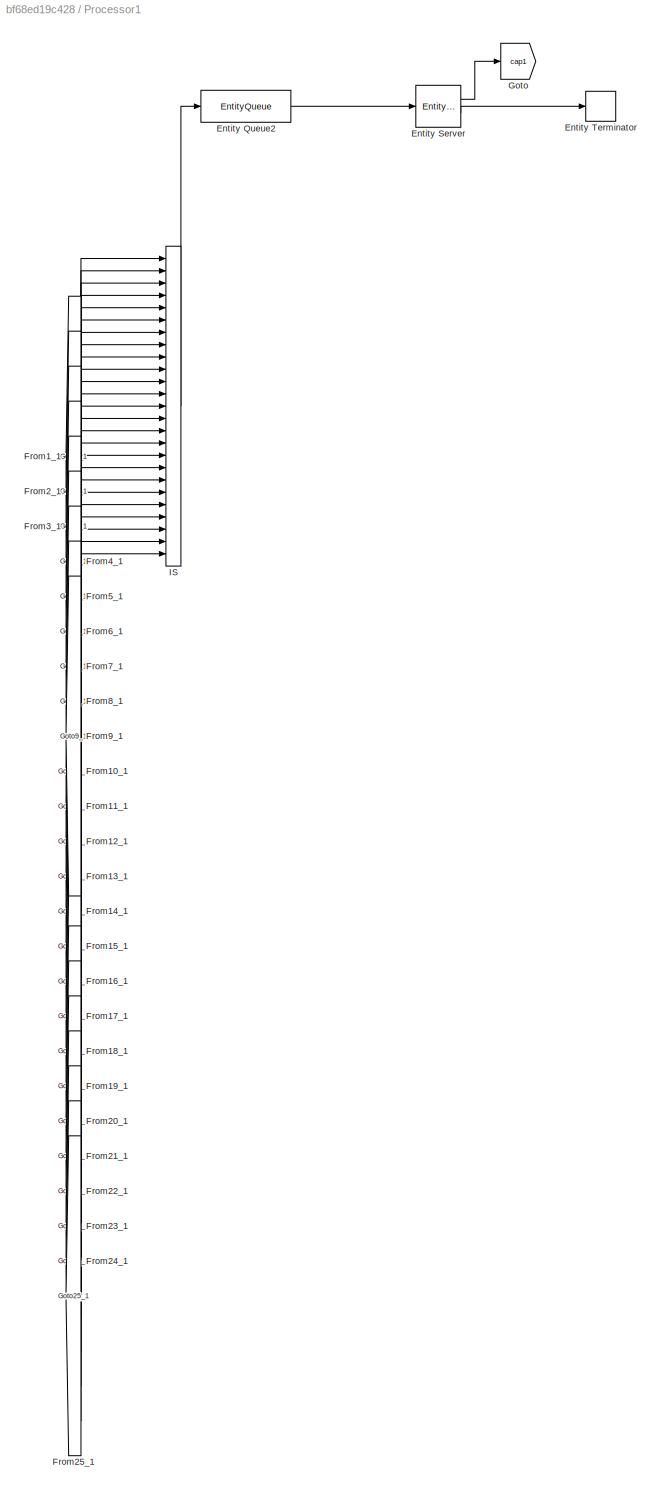
BLOCK [SubSystem] Processor1
  Ports = []
  RequestExecContextInheritance = off
BLOCK [EntityQueue] Processor1/Entity Queue2
  Capacity = Inf
  InputPortMap = u0
  InputPortMessageModes = m
  MulticastTag = B
  OutputPortMap = o5
  OutputPortMessageModes = m
  Ports = [1, 1]
BLOCK [EntityServer] Processor1/Entity Server
  Capacity = 4
  InputPortMap = u2
  InputPortMessageModes = m
  NumberEntitiesInBlock = on
  OutputPortMap = o1,o9
  OutputPortMessageModes = n,m
  Ports = [1, 2]
  ServiceTimeAction = dt =MMPPArrivalTime51();
  ServiceTimeSource = MATLAB action
BLOCK [EntityTerminator] Processor1/Entity Terminator
  InputPortMap = u0
  InputPortMessageModes = m
  Ports = [1]
BLOCK [From] Processor1/From10_1
  GotoTag = Goto10_1
  TagVisibility = global
BLOCK [From] Processor1/From11_1
  GotoTag = Goto11_1
  TagVisibility = global
BLOCK [From] Processor1/From12_1
  GotoTag = Goto12_1
  TagVisibility = global
BLOCK [From] Processor1/From13_1
  GotoTag = Goto13_1
  TagVisibility = global
BLOCK [From] Processor1/From14_1
  GotoTag = Goto14_1
  TagVisibility = global
BLOCK [From] Processor1/From15_1
  GotoTag = Goto15_1
  TagVisibility = global
BLOCK [From] Processor1/From16_1
  GotoTag = Goto16_1
  TagVisibility = global
BLOCK [From] Processor1/From17_1
  GotoTag = Goto17_1
  TagVisibility = global
BLOCK [From] Processor1/From18_1
  GotoTag = Goto18_1
  TagVisibility = global
BLOCK [From] Processor1/From19_1
  GotoTag = Goto19_1
  TagVisibility = global
BLOCK [From] Processor1/From1_1
  GotoTag = Goto1_1
  TagVisibility = global
BLOCK [From] Processor1/From20_1
  GotoTag = Goto20_1
  TagVisibility = global
BLOCK [From] Processor1/From21_1
  GotoTag = Goto21_1
  TagVisibility = global
BLOCK [From] Processor1/From22_1
  GotoTag = Goto22_1
  TagVisibility = global
BLOCK [From] Processor1/From23_1
  GotoTag = Goto23_1
  TagVisibility = global
BLOCK [From] Processor1/From24_1
  GotoTag = Goto24_1
  TagVisibility = global
BLOCK [From] Processor1/From25_1
  GotoTag = Goto25_1
  TagVisibility = global
BLOCK [From] Processor1/From2_1
  GotoTag = Goto2_1
  TagVisibility = global
BLOCK [From] Processor1/From3_1
  GotoTag = Goto3_1
  TagVisibility = global
BLOCK [From] Processor1/From4_1
  GotoTag = Goto4_1
  TagVisibility = global
BLOCK [From] Processor1/From5_1
  GotoTag = Goto5_1
  TagVisibility = global
BLOCK [From] Processor1/From6_1
  GotoTag = Goto6_1
  TagVisibility = global
BLOCK [From] Processor1/From7_1
  GotoTag = Goto7_1
  TagVisibility = global
BLOCK [From] Processor1/From8_1
  GotoTag = Goto8_1
  TagVisibility = global
BLOCK [From] Processor1/From9_1
  GotoTag = Goto9_1
  TagVisibility = global
BLOCK [Goto] Processor1/Goto
  GotoTag = cap1
  TagVisibility = global
BLOCK [EntityInputSwitch] Processor1/IS
  InputPortMap = u1,u2,u3,u4,u5,u6,u7,u8,u9,u10,u11,u12,u13,u14,u15,u16,u17,u18,u19,u20,u21,u22,u23,u24,u25
  InputPortMessageModes = m,m,m,m,m,m,m,m,m,m,m,m,m,m,m,m,m,m,m,m,m,m,m,m,m
  NumberInputPorts = 25
  OutputPortMap = o0
  OutputPortMessageModes = m
  Ports = [25, 1]
BLOCK [SubSystem] Processor10
  Ports = []
  RequestExecContextInheritance = off
BLOCK [EntityQueue] Processor10/Entity Queue2
  Capacity = Inf
  InputPortMap = u0
  InputPortMessageModes = m
  MulticastTag = B
  OutputPortMap = o5
  OutputPortMessageModes = m
  Ports = [1, 1]
BLOCK [EntityServer] Processor10/Entity Server
  Capacity = 3
  InputPortMap = u2
  InputPortMessageModes = m
  OutputPortMap = o9
  OutputPortMessageModes = m
  Ports = [1, 1]
  ServiceTimeAction = dt =MMPPArrivalTime60();
  ServiceTimeSource = MATLAB action
BLOCK [EntityTerminator] Processor10/Entity Terminator
  InputPortMap = u0
  InputPortMessageModes = m
  Ports = [1]
BLOCK [From] Processor10/From10_10
  GotoTag = Goto10_10
  TagVisibility = global
BLOCK [From] Processor10/From11_10
  GotoTag = Goto11_10
  TagVisibility = global
BLOCK [From] Processor10/From12_10
  GotoTag = Goto12_10
  TagVisibility = global
BLOCK [From] Processor10/From13_10
  GotoTag = Goto13_10
  TagVisibility = global
BLOCK [From] Processor10/From14_10
  GotoTag = Goto14_10
  TagVisibility = global
BLOCK [From] Processor10/From15_10
  GotoTag = Goto15_10
  TagVisibility = global
BLOCK [From] Processor10/From16_10
  GotoTag = Goto16_10
  TagVisibility = global
BLOCK [From] Processor10/From17_10
  GotoTag = Goto17_10
  TagVisibility = global
BLOCK [From] Processor10/From18_10
  GotoTag = Goto18_10
  TagVisibility = global
BLOCK [From] Processor10/From19_10
  GotoTag = Goto19_10
  TagVisibility = global
BLOCK [From] Processor10/From1_10
  GotoTag = Goto1_10
  TagVisibility = global
BLOCK [From] Processor10/From20_10
  GotoTag = Goto20_10
  TagVisibility = global
BLOCK [From] Processor10/From21_10
  GotoTag = Goto21_10
  TagVisibility = global
BLOCK [From] Processor10/From22_10
  GotoTag = Goto22_10
  TagVisibility = global
BLOCK [From] Processor10/From23_10
  GotoTag = Goto23_10
  TagVisibility = global
BLOCK [From] Processor10/From24_10
  GotoTag = Goto24_10
  TagVisibility = global
BLOCK [From] Processor10/From25_10
  GotoTag = Goto25_10
  TagVisibility = global
BLOCK [From] Processor10/From2_10
  GotoTag = Goto2_10
  TagVisibility = global
BLOCK [From] Processor10/From3_10
  GotoTag = Goto3_10
  TagVisibility = global
BLOCK [From] Processor10/From4_10
  GotoTag = Goto4_10
  TagVisibility = global
BLOCK [From] Processor10/From5_10
  GotoTag = Goto5_10
  TagVisibility = global
BLOCK [From] Processor10/From6_10
  GotoTag = Goto6_10
  TagVisibility = global
BLOCK [From] Processor10/From7_10
  GotoTag = Goto7_10
  TagVisibility = global
BLOCK [From] Processor10/From8_10
  GotoTag = Goto8_10
  TagVisibility = global
BLOCK [From] Processor10/From9_10
  GotoTag = Goto9_10
  TagVisibility = global
BLOCK [EntityInputSwitch] Processor10/IS
  InputPortMap = u1,u2,u3,u4,u5,u6,u7,u8,u9,u10,u11,u12,u13,u14,u15,u16,u17,u18,u19,u20,u21,u22,u23,u24,u25
  InputPortMessageModes = m,m,m,m,m,m,m,m,m,m,m,m,m,m,m,m,m,m,m,m,m,m,m,m,m
  NumberInputPorts = 25
  OutputPortMap = o0
  OutputPortMessageModes = m
  Ports = [25, 1]
BLOCK [SubSystem] Processor11
  Ports = []
  RequestExecContextInheritance = off
BLOCK [EntityQueue] Processor11/Entity Queue2
  Capacity = Inf
  InputPortMap = u0
  InputPortMessageModes = m
  MulticastTag = B
  OutputPortMap = o5
  OutputPortMessageModes = m
  Ports = [1, 1]
BLOCK [EntityServer] Processor11/Entity Server
  Capacity = 3
  InputPortMap = u2
  InputPortMessageModes = m
  OutputPortMap = o9
  OutputPortMessageModes = m
  Ports = [1, 1]
  ServiceTimeAction = dt =MMPPArrivalTime61();
  ServiceTimeSource = MATLAB action
BLOCK [EntityTerminator] Processor11/Entity Terminator
  InputPortMap = u0
  InputPortMessageModes = m
  Ports = [1]
BLOCK [From] Processor11/From10_11
  GotoTag = Goto10_11
  TagVisibility = global
BLOCK [From] Processor11/From11_11
  GotoTag = Goto11_11
  TagVisibility = global
BLOCK [From] Processor11/From12_11
  GotoTag = Goto12_11
  TagVisibility = global
BLOCK [From] Processor11/From13_11
  GotoTag = Goto13_11
  TagVisibility = global
BLOCK [From] Processor11/From14_11
  GotoTag = Goto14_11
  TagVisibility = global
BLOCK [From] Processor11/From15_11
  GotoTag = Goto15_11
  TagVisibility = global
BLOCK [From] Processor11/From16_11
  GotoTag = Goto16_11
  TagVisibility = global
BLOCK [From] Processor11/From17_11
  GotoTag = Goto17_11
  TagVisibility = global
BLOCK [From] Processor11/From18_11
  GotoTag = Goto18_11
  TagVisibility = global
BLOCK [From] Processor11/From19_11
  GotoTag = Goto19_11
  TagVisibility = global
BLOCK [From] Processor11/From1_11
  GotoTag = Goto1_11
  TagVisibility = global
BLOCK [From] Processor11/From20_11
  GotoTag = Goto20_11
  TagVisibility = global
BLOCK [From] Processor11/From21_11
  GotoTag = Goto21_11
  TagVisibility = global
BLOCK [From] Processor11/From22_11
  GotoTag = Goto22_11
  TagVisibility = global
BLOCK [From] Processor11/From23_11
  GotoTag = Goto23_11
  TagVisibility = global
BLOCK [From] Processor11/From24_11
  GotoTag = Goto24_11
  TagVisibility = global
BLOCK [From] Processor11/From25_11
  GotoTag = Goto25_11
  TagVisibility = global
BLOCK [From] Processor11/From2_11
  GotoTag = Goto2_11
  TagVisibility = global
BLOCK [From] Processor11/From3_11
  GotoTag = Goto3_11
  TagVisibility = global
BLOCK [From] Processor11/From4_11
  GotoTag = Goto4_11
  TagVisibility = global
BLOCK [From] Processor11/From5_11
  GotoTag = Goto5_11
  TagVisibility = global
BLOCK [From] Processor11/From6_11
  GotoTag = Goto6_11
  TagVisibility = global
BLOCK [From] Processor11/From7_11
  GotoTag = Goto7_11
  TagVisibility = global
BLOCK [From] Processor11/From8_11
  GotoTag = Goto8_11
  TagVisibility = global
BLOCK [From] Processor11/From9_11
  GotoTag = Goto9_11
  TagVisibility = global
BLOCK [EntityInputSwitch] Processor11/IS
  InputPortMap = u1,u2,u3,u4,u5,u6,u7,u8,u9,u10,u11,u12,u13,u14,u15,u16,u17,u18,u19,u20,u21,u22,u23,u24,u25
  InputPortMessageModes = m,m,m,m,m,m,m,m,m,m,m,m,m,m,m,m,m,m,m,m,m,m,m,m,m
  NumberInputPorts = 25
  OutputPortMap = o0
  OutputPortMessageModes = m
  Ports = [25, 1]
BLOCK [SubSystem] Processor12
  Ports = []
  RequestExecContextInheritance = off
BLOCK [EntityQueue] Processor12/Entity Queue2
  Capacity = Inf
  InputPortMap = u0
  InputPortMessageModes = m
  MulticastTag = B
  OutputPortMap = o5
  OutputPortMessageModes = m
  Ports = [1, 1]
BLOCK [EntityServer] Processor12/Entity Server
  InputPortMap = u2
  InputPortMessageModes = m
  OutputPortMap = o9
  OutputPortMessageModes = m
  Ports = [1, 1]
  ServiceTimeAction = dt =MMPPArrivalTime62();
  ServiceTimeSource = MATLAB action
BLOCK [EntityTerminator] Processor12/Entity Terminator
  InputPortMap = u0
  InputPortMessageModes = m
  Ports = [1]
BLOCK [From] Processor12/From10_12
  GotoTag = Goto10_12
  TagVisibility = global
BLOCK [From] Processor12/From11_12
  GotoTag = Goto11_12
  TagVisibility = global
BLOCK [From] Processor12/From12_12
  GotoTag = Goto12_12
  TagVisibility = global
BLOCK [From] Processor12/From13_12
  GotoTag = Goto13_12
  TagVisibility = global
BLOCK [From] Processor12/From14_12
  GotoTag = Goto14_12
  TagVisibility = global
BLOCK [From] Processor12/From15_12
  GotoTag = Goto15_12
  TagVisibility = global
BLOCK [From] Processor12/From16_12
  GotoTag = Goto16_12
  TagVisibility = global
BLOCK [From] Processor12/From17_12
  GotoTag = Goto17_12
  TagVisibility = global
BLOCK [From] Processor12/From18_12
  GotoTag = Goto18_12
  TagVisibility = global
BLOCK [From] Processor12/From19_12
  GotoTag = Goto19_12
  TagVisibility = global
BLOCK [From] Processor12/From1_12
  GotoTag = Goto1_12
  TagVisibility = global
BLOCK [From] Processor12/From20_12
  GotoTag = Goto20_12
  TagVisibility = global
BLOCK [From] Processor12/From21_12
  GotoTag = Goto21_12
  TagVisibility = global
BLOCK [From] Processor12/From22_12
  GotoTag = Goto22_12
  TagVisibility = global
BLOCK [From] Processor12/From23_12
  GotoTag = Goto23_12
  TagVisibility = global
BLOCK [From] Processor12/From24_12
  GotoTag = Goto24_12
  TagVisibility = global
BLOCK [From] Processor12/From25_12
  GotoTag = Goto25_12
  TagVisibility = global
BLOCK [From] Processor12/From2_12
  GotoTag = Goto2_12
  TagVisibility = global
BLOCK [From] Processor12/From3_12
  GotoTag = Goto3_12
  TagVisibility = global
BLOCK [From] Processor12/From4_12
  GotoTag = Goto4_12
  TagVisibility = global
BLOCK [From] Processor12/From5_12
  GotoTag = Goto5_12
  TagVisibility = global
BLOCK [From] Processor12/From6_12
  GotoTag = Goto6_12
  TagVisibility = global
BLOCK [From] Processor12/From7_12
  GotoTag = Goto7_12
  TagVisibility = global
BLOCK [From] Processor12/From8_12
  GotoTag = Goto8_12
  TagVisibility = global
BLOCK [From] Processor12/From9_12
  GotoTag = Goto9_12
  TagVisibility = global
BLOCK [EntityInputSwitch] Processor12/IS
  InputPortMap = u1,u2,u3,u4,u5,u6,u7,u8,u9,u10,u11,u12,u13,u14,u15,u16,u17,u18,u19,u20,u21,u22,u23,u24,u25
  InputPortMessageModes = m,m,m,m,m,m,m,m,m,m,m,m,m,m,m,m,m,m,m,m,m,m,m,m,m
  NumberInputPorts = 25
  OutputPortMap = o0
  OutputPortMessageModes = m
  Ports = [25, 1]
BLOCK [SubSystem] Processor13
  Ports = []
  RequestExecContextInheritance = off
BLOCK [EntityQueue] Processor13/Entity Queue2
  Capacity = Inf
  InputPortMap = u0
  InputPortMessageModes = m
  MulticastTag = B
  OutputPortMap = o5
  OutputPortMessageModes = m
  Ports = [1, 1]
BLOCK [EntityServer] Processor13/Entity Server
  Capacity = 4
  InputPortMap = u2
  InputPortMessageModes = m
  OutputPortMap = o9
  OutputPortMessageModes = m
  Ports = [1, 1]
  ServiceTimeAction = dt =MMPPArrivalTime63();
  ServiceTimeSource = MATLAB action
BLOCK [EntityTerminator] Processor13/Entity Terminator
  InputPortMap = u0
  InputPortMessageModes = m
  Ports = [1]
BLOCK [From] Processor13/From10_13
  GotoTag = Goto10_13
  TagVisibility = global
BLOCK [From] Processor13/From11_13
  GotoTag = Goto11_13
  TagVisibility = global
BLOCK [From] Processor13/From12_13
  GotoTag = Goto12_13
  TagVisibility = global
BLOCK [From] Processor13/From13_13
  GotoTag = Goto13_13
  TagVisibility = global
BLOCK [From] Processor13/From14_13
  GotoTag = Goto14_13
  TagVisibility = global
BLOCK [From] Processor13/From15_13
  GotoTag = Goto15_13
  TagVisibility = global
BLOCK [From] Processor13/From16_13
  GotoTag = Goto16_13
  TagVisibility = global
BLOCK [From] Processor13/From17_13
  GotoTag = Goto17_13
  TagVisibility = global
BLOCK [From] Processor13/From18_13
  GotoTag = Goto18_13
  TagVisibility = global
BLOCK [From] Processor13/From19_13
  GotoTag = Goto19_13
  TagVisibility = global
BLOCK [From] Processor13/From1_13
  GotoTag = Goto1_13
  TagVisibility = global
BLOCK [From] Processor13/From20_13
  GotoTag = Goto20_13
  TagVisibility = global
BLOCK [From] Processor13/From21_13
  GotoTag = Goto21_13
  TagVisibility = global
BLOCK [From] Processor13/From22_13
  GotoTag = Goto22_13
  TagVisibility = global
BLOCK [From] Processor13/From23_13
  GotoTag = Goto23_13
  TagVisibility = global
BLOCK [From] Processor13/From24_13
  GotoTag = Goto24_13
  TagVisibility = global
BLOCK [From] Processor13/From25_13
  GotoTag = Goto25_13
  TagVisibility = global
BLOCK [From] Processor13/From2_13
  GotoTag = Goto2_13
  TagVisibility = global
BLOCK [From] Processor13/From3_13
  GotoTag = Goto3_13
  TagVisibility = global
BLOCK [From] Processor13/From4_13
  GotoTag = Goto4_13
  TagVisibility = global
BLOCK [From] Processor13/From5_13
  GotoTag = Goto5_13
  TagVisibility = global
BLOCK [From] Processor13/From6_13
  GotoTag = Goto6_13
  TagVisibility = global
BLOCK [From] Processor13/From7_13
  GotoTag = Goto7_13
  TagVisibility = global
BLOCK [From] Processor13/From8_13
  GotoTag = Goto8_13
  TagVisibility = global
BLOCK [From] Processor13/From9_13
  GotoTag = Goto9_13
  TagVisibility = global
BLOCK [EntityInputSwitch] Processor13/IS
  InputPortMap = u1,u2,u3,u4,u5,u6,u7,u8,u9,u10,u11,u12,u13,u14,u15,u16,u17,u18,u19,u20,u21,u22,u23,u24,u25
  InputPortMessageModes = m,m,m,m,m,m,m,m,m,m,m,m,m,m,m,m,m,m,m,m,m,m,m,m,m
  NumberInputPorts = 25
  OutputPortMap = o0
  OutputPortMessageModes = m
  Ports = [25, 1]
BLOCK [SubSystem] Processor14
  Ports = []
  RequestExecContextInheritance = off
BLOCK [EntityQueue] Processor14/Entity Queue2
  Capacity = Inf
  InputPortMap = u0
  InputPortMessageModes = m
  MulticastTag = B
  OutputPortMap = o5
  OutputPortMessageModes = m
  Ports = [1, 1]
BLOCK [EntityServer] Processor14/Entity Server
  Capacity = 4
  InputPortMap = u2
  InputPortMessageModes = m
  OutputPortMap = o9
  OutputPortMessageModes = m
  Ports = [1, 1]
  ServiceTimeAction = dt =MMPPArrivalTime64();
  ServiceTimeSource = MATLAB action
BLOCK [EntityTerminator] Processor14/Entity Terminator
  InputPortMap = u0
  InputPortMessageModes = m
  Ports = [1]
BLOCK [From] Processor14/From10_14
  GotoTag = Goto10_14
  TagVisibility = global
BLOCK [From] Processor14/From11_14
  GotoTag = Goto11_14
  TagVisibility = global
BLOCK [From] Processor14/From12_14
  GotoTag = Goto12_14
  TagVisibility = global
BLOCK [From] Processor14/From13_14
  GotoTag = Goto13_14
  TagVisibility = global
BLOCK [From] Processor14/From14_14
  GotoTag = Goto14_14
  TagVisibility = global
BLOCK [From] Processor14/From15_14
  GotoTag = Goto15_14
  TagVisibility = global
BLOCK [From] Processor14/From16_14
  GotoTag = Goto16_14
  TagVisibility = global
BLOCK [From] Processor14/From17_14
  GotoTag = Goto17_14
  TagVisibility = global
BLOCK [From] Processor14/From18_14
  GotoTag = Goto18_14
  TagVisibility = global
BLOCK [From] Processor14/From19_14
  GotoTag = Goto19_14
  TagVisibility = global
BLOCK [From] Processor14/From1_14
  GotoTag = Goto1_14
  TagVisibility = global
BLOCK [From] Processor14/From20_14
  GotoTag = Goto20_14
  TagVisibility = global
BLOCK [From] Processor14/From21_14
  GotoTag = Goto21_14
  TagVisibility = global
BLOCK [From] Processor14/From22_14
  GotoTag = Goto22_14
  TagVisibility = global
BLOCK [From] Processor14/From23_14
  GotoTag = Goto23_14
  TagVisibility = global
BLOCK [From] Processor14/From24_14
  GotoTag = Goto24_14
  TagVisibility = global
BLOCK [From] Processor14/From25_14
  GotoTag = Goto25_14
  TagVisibility = global
BLOCK [From] Processor14/From2_14
  GotoTag = Goto2_14
  TagVisibility = global
BLOCK [From] Processor14/From3_14
  GotoTag = Goto3_14
  TagVisibility = global
BLOCK [From] Processor14/From4_14
  GotoTag = Goto4_14
  TagVisibility = global
BLOCK [From] Processor14/From5_14
  GotoTag = Goto5_14
  TagVisibility = global
BLOCK [From] Processor14/From6_14
  GotoTag = Goto6_14
  TagVisibility = global
BLOCK [From] Processor14/From7_14
  GotoTag = Goto7_14
  TagVisibility = global
BLOCK [From] Processor14/From8_14
  GotoTag = Goto8_14
  TagVisibility = global
BLOCK [From] Processor14/From9_14
  GotoTag = Goto9_14
  TagVisibility = global
BLOCK [EntityInputSwitch] Processor14/IS
  InputPortMap = u1,u2,u3,u4,u5,u6,u7,u8,u9,u10,u11,u12,u13,u14,u15,u16,u17,u18,u19,u20,u21,u22,u23,u24,u25
  InputPortMessageModes = m,m,m,m,m,m,m,m,m,m,m,m,m,m,m,m,m,m,m,m,m,m,m,m,m
  NumberInputPorts = 25
  OutputPortMap = o0
  OutputPortMessageModes = m
  Ports = [25, 1]
BLOCK [SubSystem] Processor15
  Ports = []
  RequestExecContextInheritance = off
BLOCK [EntityQueue] Processor15/Entity Queue2
  Capacity = Inf
  InputPortMap = u0
  InputPortMessageModes = m
  MulticastTag = B
  OutputPortMap = o5
  OutputPortMessageModes = m
  Ports = [1, 1]
BLOCK [EntityServer] Processor15/Entity Server
  InputPortMap = u2
  InputPortMessageModes = m
  OutputPortMap = o9
  OutputPortMessageModes = m
  Ports = [1, 1]
  ServiceTimeAction = dt =MMPPArrivalTime65();
  ServiceTimeSource = MATLAB action
BLOCK [EntityTerminator] Processor15/Entity Terminator
  InputPortMap = u0
  InputPortMessageModes = m
  Ports = [1]
BLOCK [From] Processor15/From10_15
  GotoTag = Goto10_15
  TagVisibility = global
BLOCK [From] Processor15/From11_15
  GotoTag = Goto11_15
  TagVisibility = global
BLOCK [From] Processor15/From12_15
  GotoTag = Goto12_15
  TagVisibility = global
BLOCK [From] Processor15/From13_15
  GotoTag = Goto13_15
  TagVisibility = global
BLOCK [From] Processor15/From14_15
  GotoTag = Goto14_15
  TagVisibility = global
BLOCK [From] Processor15/From15_15
  GotoTag = Goto15_15
  TagVisibility = global
BLOCK [From] Processor15/From16_15
  GotoTag = Goto16_15
  TagVisibility = global
BLOCK [From] Processor15/From17_15
  GotoTag = Goto17_15
  TagVisibility = global
BLOCK [From] Processor15/From18_15
  GotoTag = Goto18_15
  TagVisibility = global
BLOCK [From] Processor15/From19_15
  GotoTag = Goto19_15
  TagVisibility = global
BLOCK [From] Processor15/From1_15
  GotoTag = Goto1_15
  TagVisibility = global
BLOCK [From] Processor15/From20_15
  GotoTag = Goto20_15
  TagVisibility = global
BLOCK [From] Processor15/From21_15
  GotoTag = Goto21_15
  TagVisibility = global
BLOCK [From] Processor15/From22_15
  GotoTag = Goto22_15
  TagVisibility = global
BLOCK [From] Processor15/From23_15
  GotoTag = Goto23_15
  TagVisibility = global
BLOCK [From] Processor15/From24_15
  GotoTag = Goto24_15
  TagVisibility = global
BLOCK [From] Processor15/From25_15
  GotoTag = Goto25_15
  TagVisibility = global
BLOCK [From] Processor15/From2_15
  GotoTag = Goto2_15
  TagVisibility = global
BLOCK [From] Processor15/From3_15
  GotoTag = Goto3_15
  TagVisibility = global
BLOCK [From] Processor15/From4_15
  GotoTag = Goto4_15
  TagVisibility = global
BLOCK [From] Processor15/From5_15
  GotoTag = Goto5_15
  TagVisibility = global
BLOCK [From] Processor15/From6_15
  GotoTag = Goto6_15
  TagVisibility = global
BLOCK [From] Processor15/From7_15
  GotoTag = Goto7_15
  TagVisibility = global
BLOCK [From] Processor15/From8_15
  GotoTag = Goto8_15
  TagVisibility = global
BLOCK [From] Processor15/From9_15
  GotoTag = Goto9_15
  TagVisibility = global
BLOCK [EntityInputSwitch] Processor15/IS
  InputPortMap = u1,u2,u3,u4,u5,u6,u7,u8,u9,u10,u11,u12,u13,u14,u15,u16,u17,u18,u19,u20,u21,u22,u23,u24,u25
  InputPortMessageModes = m,m,m,m,m,m,m,m,m,m,m,m,m,m,m,m,m,m,m,m,m,m,m,m,m
  NumberInputPorts = 25
  OutputPortMap = o0
  OutputPortMessageModes = m
  Ports = [25, 1]
BLOCK [SubSystem] Processor16
  Ports = []
  RequestExecContextInheritance = off
BLOCK [EntityQueue] Processor16/Entity Queue2
  Capacity = Inf
  InputPortMap = u0
  InputPortMessageModes = m
  MulticastTag = B
  OutputPortMap = o5
  OutputPortMessageModes = m
  Ports = [1, 1]
BLOCK [EntityServer] Processor16/Entity Server
  Capacity = 1
  InputPortMap = u2
  InputPortMessageModes = m
  OutputPortMap = o9
  OutputPortMessageModes = m
  Ports = [1, 1]
  ServiceTimeAction = dt =MMPPArrivalTime66();
  ServiceTimeSource = MATLAB action
BLOCK [EntityTerminator] Processor16/Entity Terminator
  InputPortMap = u0
  InputPortMessageModes = m
  Ports = [1]
BLOCK [From] Processor16/From10_16
  GotoTag = Goto10_16
  TagVisibility = global
BLOCK [From] Processor16/From11_16
  GotoTag = Goto11_16
  TagVisibility = global
BLOCK [From] Processor16/From12_16
  GotoTag = Goto12_16
  TagVisibility = global
BLOCK [From] Processor16/From13_16
  GotoTag = Goto13_16
  TagVisibility = global
BLOCK [From] Processor16/From14_16
  GotoTag = Goto14_16
  TagVisibility = global
BLOCK [From] Processor16/From15_16
  GotoTag = Goto15_16
  TagVisibility = global
BLOCK [From] Processor16/From16_16
  GotoTag = Goto16_16
  TagVisibility = global
BLOCK [From] Processor16/From17_16
  GotoTag = Goto17_16
  TagVisibility = global
BLOCK [From] Processor16/From18_16
  GotoTag = Goto18_16
  TagVisibility = global
BLOCK [From] Processor16/From19_16
  GotoTag = Goto19_16
  TagVisibility = global
BLOCK [From] Processor16/From1_16
  GotoTag = Goto1_16
  TagVisibility = global
BLOCK [From] Processor16/From20_16
  GotoTag = Goto20_16
  TagVisibility = global
BLOCK [From] Processor16/From21_16
  GotoTag = Goto21_16
  TagVisibility = global
BLOCK [From] Processor16/From22_16
  GotoTag = Goto22_16
  TagVisibility = global
BLOCK [From] Processor16/From23_16
  GotoTag = Goto23_16
  TagVisibility = global
BLOCK [From] Processor16/From24_16
  GotoTag = Goto24_16
  TagVisibility = global
BLOCK [From] Processor16/From25_16
  GotoTag = Goto25_16
  TagVisibility = global
BLOCK [From] Processor16/From2_16
  GotoTag = Goto2_16
  TagVisibility = global
BLOCK [From] Processor16/From3_16
  GotoTag = Goto3_16
  TagVisibility = global
BLOCK [From] Processor16/From4_16
  GotoTag = Goto4_16
  TagVisibility = global
BLOCK [From] Processor16/From5_16
  GotoTag = Goto5_16
  TagVisibility = global
BLOCK [From] Processor16/From6_16
  GotoTag = Goto6_16
  TagVisibility = global
BLOCK [From] Processor16/From7_16
  GotoTag = Goto7_16
  TagVisibility = global
BLOCK [From] Processor16/From8_16
  GotoTag = Goto8_16
  TagVisibility = global
BLOCK [From] Processor16/From9_16
  GotoTag = Goto9_16
  TagVisibility = global
BLOCK [EntityInputSwitch] Processor16/IS
  InputPortMap = u1,u2,u3,u4,u5,u6,u7,u8,u9,u10,u11,u12,u13,u14,u15,u16,u17,u18,u19,u20,u21,u22,u23,u24,u25
  InputPortMessageModes = m,m,m,m,m,m,m,m,m,m,m,m,m,m,m,m,m,m,m,m,m,m,m,m,m
  NumberInputPorts = 25
  OutputPortMap = o0
  OutputPortMessageModes = m
  Ports = [25, 1]
BLOCK [SubSystem] Processor17
  Ports = []
  RequestExecContextInheritance = off
BLOCK [EntityQueue] Processor17/Entity Queue2
  Capacity = Inf
  InputPortMap = u0
  InputPortMessageModes = m
  MulticastTag = B
  OutputPortMap = o5
  OutputPortMessageModes = m
  Ports = [1, 1]
BLOCK [EntityServer] Processor17/Entity Server
  Capacity = 2
  InputPortMap = u2
  InputPortMessageModes = m
  OutputPortMap = o9
  OutputPortMessageModes = m
  Ports = [1, 1]
  ServiceTimeAction = dt =MMPPArrivalTime67();
  ServiceTimeSource = MATLAB action
BLOCK [EntityTerminator] Processor17/Entity Terminator
  InputPortMap = u0
  InputPortMessageModes = m
  Ports = [1]
BLOCK [From] Processor17/From10_17
  GotoTag = Goto10_17
  TagVisibility = global
BLOCK [From] Processor17/From11_17
  GotoTag = Goto11_17
  TagVisibility = global
BLOCK [From] Processor17/From12_17
  GotoTag = Goto12_17
  TagVisibility = global
BLOCK [From] Processor17/From13_17
  GotoTag = Goto13_17
  TagVisibility = global
BLOCK [From] Processor17/From14_17
  GotoTag = Goto14_17
  TagVisibility = global
BLOCK [From] Processor17/From15_17
  GotoTag = Goto15_17
  TagVisibility = global
BLOCK [From] Processor17/From16_17
  GotoTag = Goto16_17
  TagVisibility = global
BLOCK [From] Processor17/From17_17
  GotoTag = Goto17_17
  TagVisibility = global
BLOCK [From] Processor17/From18_17
  GotoTag = Goto18_17
  TagVisibility = global
BLOCK [From] Processor17/From19_17
  GotoTag = Goto19_17
  TagVisibility = global
BLOCK [From] Processor17/From1_17
  GotoTag = Goto1_17
  TagVisibility = global
BLOCK [From] Processor17/From20_17
  GotoTag = Goto20_17
  TagVisibility = global
BLOCK [From] Processor17/From21_17
  GotoTag = Goto21_17
  TagVisibility = global
BLOCK [From] Processor17/From22_17
  GotoTag = Goto22_17
  TagVisibility = global
BLOCK [From] Processor17/From23_17
  GotoTag = Goto23_17
  TagVisibility = global
BLOCK [From] Processor17/From24_17
  GotoTag = Goto24_17
  TagVisibility = global
BLOCK [From] Processor17/From25_17
  GotoTag = Goto25_17
  TagVisibility = global
BLOCK [From] Processor17/From2_17
  GotoTag = Goto2_17
  TagVisibility = global
BLOCK [From] Processor17/From3_17
  GotoTag = Goto3_17
  TagVisibility = global
BLOCK [From] Processor17/From4_17
  GotoTag = Goto4_17
  TagVisibility = global
BLOCK [From] Processor17/From5_17
  GotoTag = Goto5_17
  TagVisibility = global
BLOCK [From] Processor17/From6_17
  GotoTag = Goto6_17
  TagVisibility = global
BLOCK [From] Processor17/From7_17
  GotoTag = Goto7_17
  TagVisibility = global
BLOCK [From] Processor17/From8_17
  GotoTag = Goto8_17
  TagVisibility = global
BLOCK [From] Processor17/From9_17
  GotoTag = Goto9_17
  TagVisibility = global
BLOCK [EntityInputSwitch] Processor17/IS
  InputPortMap = u1,u2,u3,u4,u5,u6,u7,u8,u9,u10,u11,u12,u13,u14,u15,u16,u17,u18,u19,u20,u21,u22,u23,u24,u25
  InputPortMessageModes = m,m,m,m,m,m,m,m,m,m,m,m,m,m,m,m,m,m,m,m,m,m,m,m,m
  NumberInputPorts = 25
  OutputPortMap = o0
  OutputPortMessageModes = m
  Ports = [25, 1]
BLOCK [SubSystem] Processor18
  Ports = []
  RequestExecContextInheritance = off
BLOCK [EntityQueue] Processor18/Entity Queue2
  Capacity = Inf
  InputPortMap = u0
  InputPortMessageModes = m
  MulticastTag = B
  OutputPortMap = o5
  OutputPortMessageModes = m
  Ports = [1, 1]
BLOCK [EntityServer] Processor18/Entity Server
  Capacity = 7
  InputPortMap = u2
  InputPortMessageModes = m
  OutputPortMap = o9
  OutputPortMessageModes = m
  Ports = [1, 1]
  ServiceTimeAction = dt =MMPPArrivalTime68();
  ServiceTimeSource = MATLAB action
BLOCK [EntityTerminator] Processor18/Entity Terminator
  InputPortMap = u0
  InputPortMessageModes = m
  Ports = [1]
BLOCK [From] Processor18/From10_18
  GotoTag = Goto10_18
  TagVisibility = global
BLOCK [From] Processor18/From11_18
  GotoTag = Goto11_18
  TagVisibility = global
BLOCK [From] Processor18/From12_18
  GotoTag = Goto12_18
  TagVisibility = global
BLOCK [From] Processor18/From13_18
  GotoTag = Goto13_18
  TagVisibility = global
BLOCK [From] Processor18/From14_18
  GotoTag = Goto14_18
  TagVisibility = global
BLOCK [From] Processor18/From15_18
  GotoTag = Goto15_18
  TagVisibility = global
BLOCK [From] Processor18/From16_18
  GotoTag = Goto16_18
  TagVisibility = global
BLOCK [From] Processor18/From17_18
  GotoTag = Goto17_18
  TagVisibility = global
BLOCK [From] Processor18/From18_18
  GotoTag = Goto18_18
  TagVisibility = global
BLOCK [From] Processor18/From19_18
  GotoTag = Goto19_18
  TagVisibility = global
BLOCK [From] Processor18/From1_18
  GotoTag = Goto1_18
  TagVisibility = global
BLOCK [From] Processor18/From20_18
  GotoTag = Goto20_18
  TagVisibility = global
BLOCK [From] Processor18/From21_18
  GotoTag = Goto21_18
  TagVisibility = global
BLOCK [From] Processor18/From22_18
  GotoTag = Goto22_18
  TagVisibility = global
BLOCK [From] Processor18/From23_18
  GotoTag = Goto23_18
  TagVisibility = global
BLOCK [From] Processor18/From24_18
  GotoTag = Goto24_18
  TagVisibility = global
BLOCK [From] Processor18/From25_18
  GotoTag = Goto25_18
  TagVisibility = global
BLOCK [From] Processor18/From2_18
  GotoTag = Goto2_18
  TagVisibility = global
BLOCK [From] Processor18/From3_18
  GotoTag = Goto3_18
  TagVisibility = global
BLOCK [From] Processor18/From4_18
  GotoTag = Goto4_18
  TagVisibility = global
BLOCK [From] Processor18/From5_18
  GotoTag = Goto5_18
  TagVisibility = global
BLOCK [From] Processor18/From6_18
  GotoTag = Goto6_18
  TagVisibility = global
BLOCK [From] Processor18/From7_18
  GotoTag = Goto7_18
  TagVisibility = global
BLOCK [From] Processor18/From8_18
  GotoTag = Goto8_18
  TagVisibility = global
BLOCK [From] Processor18/From9_18
  GotoTag = Goto9_18
  TagVisibility = global
BLOCK [EntityInputSwitch] Processor18/IS
  InputPortMap = u1,u2,u3,u4,u5,u6,u7,u8,u9,u10,u11,u12,u13,u14,u15,u16,u17,u18,u19,u20,u21,u22,u23,u24,u25
  InputPortMessageModes = m,m,m,m,m,m,m,m,m,m,m,m,m,m,m,m,m,m,m,m,m,m,m,m,m
  NumberInputPorts = 25
  OutputPortMap = o0
  OutputPortMessageModes = m
  Ports = [25, 1]
BLOCK [SubSystem] Processor19
  Ports = []
  RequestExecContextInheritance = off
BLOCK [EntityQueue] Processor19/Entity Queue2
  Capacity = Inf
  InputPortMap = u0
  InputPortMessageModes = m
  MulticastTag = B
  OutputPortMap = o5
  OutputPortMessageModes = m
  Ports = [1, 1]
BLOCK [EntityServer] Processor19/Entity Server
  InputPortMap = u2
  InputPortMessageModes = m
  OutputPortMap = o9
  OutputPortMessageModes = m
  Ports = [1, 1]
  ServiceTimeAction = dt =MMPPArrivalTime69();
  ServiceTimeSource = MATLAB action
BLOCK [EntityTerminator] Processor19/Entity Terminator
  InputPortMap = u0
  InputPortMessageModes = m
  Ports = [1]
BLOCK [From] Processor19/From10_19
  GotoTag = Goto10_19
  TagVisibility = global
BLOCK [From] Processor19/From11_19
  GotoTag = Goto11_19
  TagVisibility = global
BLOCK [From] Processor19/From12_19
  GotoTag = Goto12_19
  TagVisibility = global
BLOCK [From] Processor19/From13_19
  GotoTag = Goto13_19
  TagVisibility = global
BLOCK [From] Processor19/From14_19
  GotoTag = Goto14_19
  TagVisibility = global
BLOCK [From] Processor19/From15_19
  GotoTag = Goto15_19
  TagVisibility = global
BLOCK [From] Processor19/From16_19
  GotoTag = Goto16_19
  TagVisibility = global
BLOCK [From] Processor19/From17_19
  GotoTag = Goto17_19
  TagVisibility = global
BLOCK [From] Processor19/From18_19
  GotoTag = Goto18_19
  TagVisibility = global
BLOCK [From] Processor19/From19_19
  GotoTag = Goto19_19
  TagVisibility = global
BLOCK [From] Processor19/From1_19
  GotoTag = Goto1_19
  TagVisibility = global
BLOCK [From] Processor19/From20_19
  GotoTag = Goto20_19
  TagVisibility = global
BLOCK [From] Processor19/From21_19
  GotoTag = Goto21_19
  TagVisibility = global
BLOCK [From] Processor19/From22_19
  GotoTag = Goto22_19
  TagVisibility = global
BLOCK [From] Processor19/From23_19
  GotoTag = Goto23_19
  TagVisibility = global
BLOCK [From] Processor19/From24_19
  GotoTag = Goto24_19
  TagVisibility = global
BLOCK [From] Processor19/From25_19
  GotoTag = Goto25_19
  TagVisibility = global
BLOCK [From] Processor19/From2_19
  GotoTag = Goto2_19
  TagVisibility = global
BLOCK [From] Processor19/From3_19
  GotoTag = Goto3_19
  TagVisibility = global
BLOCK [From] Processor19/From4_19
  GotoTag = Goto4_19
  TagVisibility = global
BLOCK [From] Processor19/From5_19
  GotoTag = Goto5_19
  TagVisibility = global
BLOCK [From] Processor19/From6_19
  GotoTag = Goto6_19
  TagVisibility = global
BLOCK [From] Processor19/From7_19
  GotoTag = Goto7_19
  TagVisibility = global
BLOCK [From] Processor19/From8_19
  GotoTag = Goto8_19
  TagVisibility = global
BLOCK [From] Processor19/From9_19
  GotoTag = Goto9_19
  TagVisibility = global
BLOCK [EntityInputSwitch] Processor19/IS
  InputPortMap = u1,u2,u3,u4,u5,u6,u7,u8,u9,u10,u11,u12,u13,u14,u15,u16,u17,u18,u19,u20,u21,u22,u23,u24,u25
  InputPortMessageModes = m,m,m,m,m,m,m,m,m,m,m,m,m,m,m,m,m,m,m,m,m,m,m,m,m
  NumberInputPorts = 25
  OutputPortMap = o0
  OutputPortMessageModes = m
  Ports = [25, 1]
BLOCK [SubSystem] Processor2
  Ports = []
  RequestExecContextInheritance = off
BLOCK [EntityQueue] Processor2/Entity Queue2
  Capacity = Inf
  InputPortMap = u0
  InputPortMessageModes = m
  MulticastTag = B
  OutputPortMap = o5
  OutputPortMessageModes = m
  Ports = [1, 1]
BLOCK [EntityServer] Processor2/Entity Server
  Capacity = 3
  InputPortMap = u2
  InputPortMessageModes = m
  NumberEntitiesInBlock = on
  OutputPortMap = o1,o9
  OutputPortMessageModes = n,m
  Ports = [1, 2]
  ServiceTimeAction = dt =MMPPArrivalTime52();
  ServiceTimeSource = MATLAB action
BLOCK [EntityTerminator] Processor2/Entity Terminator
  InputPortMap = u0
  InputPortMessageModes = m
  Ports = [1]
BLOCK [From] Processor2/From10_2
  GotoTag = Goto10_2
  TagVisibility = global
BLOCK [From] Processor2/From11_2
  GotoTag = Goto11_2
  TagVisibility = global
BLOCK [From] Processor2/From12_2
  GotoTag = Goto12_2
  TagVisibility = global
BLOCK [From] Processor2/From13_2
  GotoTag = Goto13_2
  TagVisibility = global
BLOCK [From] Processor2/From14_2
  GotoTag = Goto14_2
  TagVisibility = global
BLOCK [From] Processor2/From15_2
  GotoTag = Goto15_2
  TagVisibility = global
BLOCK [From] Processor2/From16_2
  GotoTag = Goto16_2
  TagVisibility = global
BLOCK [From] Processor2/From17_2
  GotoTag = Goto17_2
  TagVisibility = global
BLOCK [From] Processor2/From18_2
  GotoTag = Goto18_2
  TagVisibility = global
BLOCK [From] Processor2/From19_2
  GotoTag = Goto19_2
  TagVisibility = global
BLOCK [From] Processor2/From1_2
  GotoTag = Goto1_2
  TagVisibility = global
BLOCK [From] Processor2/From20_2
  GotoTag = Goto20_2
  TagVisibility = global
BLOCK [From] Processor2/From21_2
  GotoTag = Goto21_2
  TagVisibility = global
BLOCK [From] Processor2/From22_2
  GotoTag = Goto22_2
  TagVisibility = global
BLOCK [From] Processor2/From23_2
  GotoTag = Goto23_2
  TagVisibility = global
BLOCK [From] Processor2/From24_2
  GotoTag = Goto24_2
  TagVisibility = global
BLOCK [From] Processor2/From25_2
  GotoTag = Goto25_2
  TagVisibility = global
BLOCK [From] Processor2/From2_2
  GotoTag = Goto2_2
  TagVisibility = global
BLOCK [From] Processor2/From3_2
  GotoTag = Goto3_2
  TagVisibility = global
BLOCK [From] Processor2/From4_2
  GotoTag = Goto4_2
  TagVisibility = global
BLOCK [From] Processor2/From5_2
  GotoTag = Goto5_2
  TagVisibility = global
BLOCK [From] Processor2/From6_2
  GotoTag = Goto6_2
  TagVisibility = global
BLOCK [From] Processor2/From7_2
  GotoTag = Goto7_2
  TagVisibility = global
BLOCK [From] Processor2/From8_2
  GotoTag = Goto8_2
  TagVisibility = global
BLOCK [From] Processor2/From9_2
  GotoTag = Goto9_2
  TagVisibility = global
BLOCK [Goto] Processor2/Goto
  GotoTag = cap2
  TagVisibility = global
BLOCK [EntityInputSwitch] Processor2/IS
  InputPortMap = u1,u2,u3,u4,u5,u6,u7,u8,u9,u10,u11,u12,u13,u14,u15,u16,u17,u18,u19,u20,u21,u22,u23,u24,u25
  InputPortMessageModes = m,m,m,m,m,m,m,m,m,m,m,m,m,m,m,m,m,m,m,m,m,m,m,m,m
  NumberInputPorts = 25
  OutputPortMap = o0
  OutputPortMessageModes = m
  Ports = [25, 1]
BLOCK [SubSystem] Processor20
  Ports = []
  RequestExecContextInheritance = off
BLOCK [EntityQueue] Processor20/Entity Queue2
  Capacity = Inf
  InputPortMap = u0
  InputPortMessageModes = m
  MulticastTag = B
  OutputPortMap = o5
  OutputPortMessageModes = m
  Ports = [1, 1]
BLOCK [EntityServer] Processor20/Entity Server
  Capacity = 1
  InputPortMap = u2
  InputPortMessageModes = m
  OutputPortMap = o9
  OutputPortMessageModes = m
  Ports = [1, 1]
  ServiceTimeAction = dt =MMPPArrivalTime70();
  ServiceTimeSource = MATLAB action
BLOCK [EntityTerminator] Processor20/Entity Terminator
  InputPortMap = u0
  InputPortMessageModes = m
  Ports = [1]
BLOCK [From] Processor20/From10_20
  GotoTag = Goto10_20
  TagVisibility = global
BLOCK [From] Processor20/From11_20
  GotoTag = Goto11_20
  TagVisibility = global
BLOCK [From] Processor20/From12_20
  GotoTag = Goto12_20
  TagVisibility = global
BLOCK [From] Processor20/From13_20
  GotoTag = Goto13_20
  TagVisibility = global
BLOCK [From] Processor20/From14_20
  GotoTag = Goto14_20
  TagVisibility = global
BLOCK [From] Processor20/From15_20
  GotoTag = Goto15_20
  TagVisibility = global
BLOCK [From] Processor20/From16_20
  GotoTag = Goto16_20
  TagVisibility = global
BLOCK [From] Processor20/From17_20
  GotoTag = Goto17_20
  TagVisibility = global
BLOCK [From] Processor20/From18_20
  GotoTag = Goto18_20
  TagVisibility = global
BLOCK [From] Processor20/From19_20
  GotoTag = Goto19_20
  TagVisibility = global
BLOCK [From] Processor20/From1_20
  GotoTag = Goto1_20
  TagVisibility = global
BLOCK [From] Processor20/From20_20
  GotoTag = Goto20_20
  TagVisibility = global
BLOCK [From] Processor20/From21_20
  GotoTag = Goto21_20
  TagVisibility = global
BLOCK [From] Processor20/From22_20
  GotoTag = Goto22_20
  TagVisibility = global
BLOCK [From] Processor20/From23_20
  GotoTag = Goto23_20
  TagVisibility = global
BLOCK [From] Processor20/From24_20
  GotoTag = Goto24_20
  TagVisibility = global
BLOCK [From] Processor20/From25_20
  GotoTag = Goto25_20
  TagVisibility = global
BLOCK [From] Processor20/From2_20
  GotoTag = Goto2_20
  TagVisibility = global
BLOCK [From] Processor20/From3_20
  GotoTag = Goto3_20
  TagVisibility = global
BLOCK [From] Processor20/From4_20
  GotoTag = Goto4_20
  TagVisibility = global
BLOCK [From] Processor20/From5_20
  GotoTag = Goto5_20
  TagVisibility = global
BLOCK [From] Processor20/From6_20
  GotoTag = Goto6_20
  TagVisibility = global
BLOCK [From] Processor20/From7_20
  GotoTag = Goto7_20
  TagVisibility = global
BLOCK [From] Processor20/From8_20
  GotoTag = Goto8_20
  TagVisibility = global
BLOCK [From] Processor20/From9_20
  GotoTag = Goto9_20
  TagVisibility = global
BLOCK [EntityInputSwitch] Processor20/IS
  InputPortMap = u1,u2,u3,u4,u5,u6,u7,u8,u9,u10,u11,u12,u13,u14,u15,u16,u17,u18,u19,u20,u21,u22,u23,u24,u25
  InputPortMessageModes = m,m,m,m,m,m,m,m,m,m,m,m,m,m,m,m,m,m,m,m,m,m,m,m,m
  NumberInputPorts = 25
  OutputPortMap = o0
  OutputPortMessageModes = m
  Ports = [25, 1]
BLOCK [SubSystem] Processor3
  Ports = []
  RequestExecContextInheritance = off
BLOCK [EntityQueue] Processor3/Entity Queue2
  Capacity = Inf
  InputPortMap = u0
  InputPortMessageModes = m
  MulticastTag = B
  OutputPortMap = o5
  OutputPortMessageModes = m
  Ports = [1, 1]
BLOCK [EntityServer] Processor3/Entity Server
  Capacity = 2
  InputPortMap = u2
  InputPortMessageModes = m
  OutputPortMap = o9
  OutputPortMessageModes = m
  Ports = [1, 1]
  ServiceTimeAction = dt =MMPPArrivalTime53();
  ServiceTimeSource = MATLAB action
BLOCK [EntityTerminator] Processor3/Entity Terminator
  InputPortMap = u0
  InputPortMessageModes = m
  Ports = [1]
BLOCK [From] Processor3/From10_3
  GotoTag = Goto10_3
  TagVisibility = global
BLOCK [From] Processor3/From11_3
  GotoTag = Goto11_3
  TagVisibility = global
BLOCK [From] Processor3/From12_3
  GotoTag = Goto12_3
  TagVisibility = global
BLOCK [From] Processor3/From13_3
  GotoTag = Goto13_3
  TagVisibility = global
BLOCK [From] Processor3/From14_3
  GotoTag = Goto14_3
  TagVisibility = global
BLOCK [From] Processor3/From15_3
  GotoTag = Goto15_3
  TagVisibility = global
BLOCK [From] Processor3/From16_3
  GotoTag = Goto16_3
  TagVisibility = global
BLOCK [From] Processor3/From17_3
  GotoTag = Goto17_3
  TagVisibility = global
BLOCK [From] Processor3/From18_3
  GotoTag = Goto18_3
  TagVisibility = global
BLOCK [From] Processor3/From19_3
  GotoTag = Goto19_3
  TagVisibility = global
BLOCK [From] Processor3/From1_3
  GotoTag = Goto1_3
  TagVisibility = global
BLOCK [From] Processor3/From20_3
  GotoTag = Goto20_3
  TagVisibility = global
BLOCK [From] Processor3/From21_3
  GotoTag = Goto21_3
  TagVisibility = global
BLOCK [From] Processor3/From22_3
  GotoTag = Goto22_3
  TagVisibility = global
BLOCK [From] Processor3/From23_3
  GotoTag = Goto23_3
  TagVisibility = global
BLOCK [From] Processor3/From24_3
  GotoTag = Goto24_3
  TagVisibility = global
BLOCK [From] Processor3/From25_3
  GotoTag = Goto25_3
  TagVisibility = global
BLOCK [From] Processor3/From2_3
  GotoTag = Goto2_3
  TagVisibility = global
BLOCK [From] Processor3/From3_3
  GotoTag = Goto3_3
  TagVisibility = global
BLOCK [From] Processor3/From4_3
  GotoTag = Goto4_3
  TagVisibility = global
BLOCK [From] Processor3/From5_3
  GotoTag = Goto5_3
  TagVisibility = global
BLOCK [From] Processor3/From6_3
  GotoTag = Goto6_3
  TagVisibility = global
BLOCK [From] Processor3/From7_3
  GotoTag = Goto7_3
  TagVisibility = global
BLOCK [From] Processor3/From8_3
  GotoTag = Goto8_3
  TagVisibility = global
BLOCK [From] Processor3/From9_3
  GotoTag = Goto9_3
  TagVisibility = global
BLOCK [EntityInputSwitch] Processor3/IS
  InputPortMap = u1,u2,u3,u4,u5,u6,u7,u8,u9,u10,u11,u12,u13,u14,u15,u16,u17,u18,u19,u20,u21,u22,u23,u24,u25
  InputPortMessageModes = m,m,m,m,m,m,m,m,m,m,m,m,m,m,m,m,m,m,m,m,m,m,m,m,m
  NumberInputPorts = 25
  OutputPortMap = o0
  OutputPortMessageModes = m
  Ports = [25, 1]
BLOCK [SubSystem] Processor4
  Ports = []
  RequestExecContextInheritance = off
BLOCK [EntityQueue] Processor4/Entity Queue2
  Capacity = Inf
  InputPortMap = u0
  InputPortMessageModes = m
  MulticastTag = B
  OutputPortMap = o5
  OutputPortMessageModes = m
  Ports = [1, 1]
BLOCK [EntityServer] Processor4/Entity Server
  Capacity = 3
  InputPortMap = u2
  InputPortMessageModes = m
  OutputPortMap = o9
  OutputPortMessageModes = m
  Ports = [1, 1]
  ServiceTimeAction = dt =MMPPArrivalTime54();
  ServiceTimeSource = MATLAB action
BLOCK [EntityTerminator] Processor4/Entity Terminator
  InputPortMap = u0
  InputPortMessageModes = m
  Ports = [1]
BLOCK [From] Processor4/From10_4
  GotoTag = Goto10_4
  TagVisibility = global
BLOCK [From] Processor4/From11_4
  GotoTag = Goto11_4
  TagVisibility = global
BLOCK [From] Processor4/From12_4
  GotoTag = Goto12_4
  TagVisibility = global
BLOCK [From] Processor4/From13_4
  GotoTag = Goto13_4
  TagVisibility = global
BLOCK [From] Processor4/From14_4
  GotoTag = Goto14_4
  TagVisibility = global
BLOCK [From] Processor4/From15_4
  GotoTag = Goto15_4
  TagVisibility = global
BLOCK [From] Processor4/From16_4
  GotoTag = Goto16_4
  TagVisibility = global
BLOCK [From] Processor4/From17_4
  GotoTag = Goto17_4
  TagVisibility = global
BLOCK [From] Processor4/From18_4
  GotoTag = Goto18_4
  TagVisibility = global
BLOCK [From] Processor4/From19_4
  GotoTag = Goto19_4
  TagVisibility = global
BLOCK [From] Processor4/From1_4
  GotoTag = Goto1_4
  TagVisibility = global
BLOCK [From] Processor4/From20_4
  GotoTag = Goto20_4
  TagVisibility = global
BLOCK [From] Processor4/From21_4
  GotoTag = Goto21_4
  TagVisibility = global
BLOCK [From] Processor4/From22_4
  GotoTag = Goto22_4
  TagVisibility = global
BLOCK [From] Processor4/From23_4
  GotoTag = Goto23_4
  TagVisibility = global
BLOCK [From] Processor4/From24_4
  GotoTag = Goto24_4
  TagVisibility = global
BLOCK [From] Processor4/From25_4
  GotoTag = Goto25_4
  TagVisibility = global
BLOCK [From] Processor4/From2_4
  GotoTag = Goto2_4
  TagVisibility = global
BLOCK [From] Processor4/From3_4
  GotoTag = Goto3_4
  TagVisibility = global
BLOCK [From] Processor4/From4_4
  GotoTag = Goto4_4
  TagVisibility = global
BLOCK [From] Processor4/From5_4
  GotoTag = Goto5_4
  TagVisibility = global
BLOCK [From] Processor4/From6_4
  GotoTag = Goto6_4
  TagVisibility = global
BLOCK [From] Processor4/From7_4
  GotoTag = Goto7_4
  TagVisibility = global
BLOCK [From] Processor4/From8_4
  GotoTag = Goto8_4
  TagVisibility = global
BLOCK [From] Processor4/From9_4
  GotoTag = Goto9_4
  TagVisibility = global
BLOCK [EntityInputSwitch] Processor4/IS
  InputPortMap = u1,u2,u3,u4,u5,u6,u7,u8,u9,u10,u11,u12,u13,u14,u15,u16,u17,u18,u19,u20,u21,u22,u23,u24,u25
  InputPortMessageModes = m,m,m,m,m,m,m,m,m,m,m,m,m,m,m,m,m,m,m,m,m,m,m,m,m
  NumberInputPorts = 25
  OutputPortMap = o0
  OutputPortMessageModes = m
  Ports = [25, 1]
BLOCK [SubSystem] Processor5
  Ports = []
  RequestExecContextInheritance = off
BLOCK [EntityQueue] Processor5/Entity Queue2
  Capacity = Inf
  InputPortMap = u0
  InputPortMessageModes = m
  MulticastTag = B
  OutputPortMap = o5
  OutputPortMessageModes = m
  Ports = [1, 1]
BLOCK [EntityServer] Processor5/Entity Server
  Capacity = 6
  InputPortMap = u2
  InputPortMessageModes = m
  OutputPortMap = o9
  OutputPortMessageModes = m
  Ports = [1, 1]
  ServiceTimeAction = dt =MMPPArrivalTime55();
  ServiceTimeSource = MATLAB action
BLOCK [EntityTerminator] Processor5/Entity Terminator
  InputPortMap = u0
  InputPortMessageModes = m
  Ports = [1]
BLOCK [From] Processor5/From10_5
  GotoTag = Goto10_5
  TagVisibility = global
BLOCK [From] Processor5/From11_5
  GotoTag = Goto11_5
  TagVisibility = global
BLOCK [From] Processor5/From12_5
  GotoTag = Goto12_5
  TagVisibility = global
BLOCK [From] Processor5/From13_5
  GotoTag = Goto13_5
  TagVisibility = global
BLOCK [From] Processor5/From14_5
  GotoTag = Goto14_5
  TagVisibility = global
BLOCK [From] Processor5/From15_5
  GotoTag = Goto15_5
  TagVisibility = global
BLOCK [From] Processor5/From16_5
  GotoTag = Goto16_5
  TagVisibility = global
BLOCK [From] Processor5/From17_5
  GotoTag = Goto17_5
  TagVisibility = global
BLOCK [From] Processor5/From18_5
  GotoTag = Goto18_5
  TagVisibility = global
BLOCK [From] Processor5/From19_5
  GotoTag = Goto19_5
  TagVisibility = global
BLOCK [From] Processor5/From1_5
  GotoTag = Goto1_5
  TagVisibility = global
BLOCK [From] Processor5/From20_5
  GotoTag = Goto20_5
  TagVisibility = global
BLOCK [From] Processor5/From21_5
  GotoTag = Goto21_5
  TagVisibility = global
BLOCK [From] Processor5/From22_5
  GotoTag = Goto22_5
  TagVisibility = global
BLOCK [From] Processor5/From23_5
  GotoTag = Goto23_5
  TagVisibility = global
BLOCK [From] Processor5/From24_5
  GotoTag = Goto24_5
  TagVisibility = global
BLOCK [From] Processor5/From25_5
  GotoTag = Goto25_5
  TagVisibility = global
BLOCK [From] Processor5/From2_5
  GotoTag = Goto2_5
  TagVisibility = global
BLOCK [From] Processor5/From3_5
  GotoTag = Goto3_5
  TagVisibility = global
BLOCK [From] Processor5/From4_5
  GotoTag = Goto4_5
  TagVisibility = global
BLOCK [From] Processor5/From5_5
  GotoTag = Goto5_5
  TagVisibility = global
BLOCK [From] Processor5/From6_5
  GotoTag = Goto6_5
  TagVisibility = global
BLOCK [From] Processor5/From7_5
  GotoTag = Goto7_5
  TagVisibility = global
BLOCK [From] Processor5/From8_5
  GotoTag = Goto8_5
  TagVisibility = global
BLOCK [From] Processor5/From9_5
  GotoTag = Goto9_5
  TagVisibility = global
BLOCK [EntityInputSwitch] Processor5/IS
  InputPortMap = u1,u2,u3,u4,u5,u6,u7,u8,u9,u10,u11,u12,u13,u14,u15,u16,u17,u18,u19,u20,u21,u22,u23,u24,u25
  InputPortMessageModes = m,m,m,m,m,m,m,m,m,m,m,m,m,m,m,m,m,m,m,m,m,m,m,m,m
  NumberInputPorts = 25
  OutputPortMap = o0
  OutputPortMessageModes = m
  Ports = [25, 1]
BLOCK [SubSystem] Processor6
  Ports = []
  RequestExecContextInheritance = off
BLOCK [EntityQueue] Processor6/Entity Queue2
  Capacity = Inf
  InputPortMap = u0
  InputPortMessageModes = m
  MulticastTag = B
  OutputPortMap = o5
  OutputPortMessageModes = m
  Ports = [1, 1]
BLOCK [EntityServer] Processor6/Entity Server
  Capacity = 6
  InputPortMap = u2
  InputPortMessageModes = m
  OutputPortMap = o9
  OutputPortMessageModes = m
  Ports = [1, 1]
  ServiceTimeAction = dt =MMPPArrivalTime56();
  ServiceTimeSource = MATLAB action
BLOCK [EntityTerminator] Processor6/Entity Terminator
  InputPortMap = u0
  InputPortMessageModes = m
  Ports = [1]
BLOCK [From] Processor6/From10_6
  GotoTag = Goto10_6
  TagVisibility = global
BLOCK [From] Processor6/From11_6
  GotoTag = Goto11_6
  TagVisibility = global
BLOCK [From] Processor6/From12_6
  GotoTag = Goto12_6
  TagVisibility = global
BLOCK [From] Processor6/From13_6
  GotoTag = Goto13_6
  TagVisibility = global
BLOCK [From] Processor6/From14_6
  GotoTag = Goto14_6
  TagVisibility = global
BLOCK [From] Processor6/From15_6
  GotoTag = Goto15_6
  TagVisibility = global
BLOCK [From] Processor6/From16_6
  GotoTag = Goto16_6
  TagVisibility = global
BLOCK [From] Processor6/From17_6
  GotoTag = Goto17_6
  TagVisibility = global
BLOCK [From] Processor6/From18_6
  GotoTag = Goto18_6
  TagVisibility = global
BLOCK [From] Processor6/From19_6
  GotoTag = Goto19_6
  TagVisibility = global
BLOCK [From] Processor6/From1_6
  GotoTag = Goto1_6
  TagVisibility = global
BLOCK [From] Processor6/From20_6
  GotoTag = Goto20_6
  TagVisibility = global
BLOCK [From] Processor6/From21_6
  GotoTag = Goto21_6
  TagVisibility = global
BLOCK [From] Processor6/From22_6
  GotoTag = Goto22_6
  TagVisibility = global
BLOCK [From] Processor6/From23_6
  GotoTag = Goto23_6
  TagVisibility = global
BLOCK [From] Processor6/From24_6
  GotoTag = Goto24_6
  TagVisibility = global
BLOCK [From] Processor6/From25_6
  GotoTag = Goto25_6
  TagVisibility = global
BLOCK [From] Processor6/From2_6
  GotoTag = Goto2_6
  TagVisibility = global
BLOCK [From] Processor6/From3_6
  GotoTag = Goto3_6
  TagVisibility = global
BLOCK [From] Processor6/From4_6
  GotoTag = Goto4_6
  TagVisibility = global
BLOCK [From] Processor6/From5_6
  GotoTag = Goto5_6
  TagVisibility = global
BLOCK [From] Processor6/From6_6
  GotoTag = Goto6_6
  TagVisibility = global
BLOCK [From] Processor6/From7_6
  GotoTag = Goto7_6
  TagVisibility = global
BLOCK [From] Processor6/From8_6
  GotoTag = Goto8_6
  TagVisibility = global
BLOCK [From] Processor6/From9_6
  GotoTag = Goto9_6
  TagVisibility = global
BLOCK [EntityInputSwitch] Processor6/IS
  InputPortMap = u1,u2,u3,u4,u5,u6,u7,u8,u9,u10,u11,u12,u13,u14,u15,u16,u17,u18,u19,u20,u21,u22,u23,u24,u25
  InputPortMessageModes = m,m,m,m,m,m,m,m,m,m,m,m,m,m,m,m,m,m,m,m,m,m,m,m,m
  NumberInputPorts = 25
  OutputPortMap = o0
  OutputPortMessageModes = m
  Ports = [25, 1]
BLOCK [SubSystem] Processor7
  Ports = []
  RequestExecContextInheritance = off
BLOCK [EntityQueue] Processor7/Entity Queue2
  Capacity = Inf
  InputPortMap = u0
  InputPortMessageModes = m
  MulticastTag = B
  OutputPortMap = o5
  OutputPortMessageModes = m
  Ports = [1, 1]
BLOCK [EntityServer] Processor7/Entity Server
  Capacity = 7
  InputPortMap = u2
  InputPortMessageModes = m
  OutputPortMap = o9
  OutputPortMessageModes = m
  Ports = [1, 1]
  ServiceTimeAction = dt =MMPPArrivalTime57();
  ServiceTimeSource = MATLAB action
BLOCK [EntityTerminator] Processor7/Entity Terminator
  InputPortMap = u0
  InputPortMessageModes = m
  Ports = [1]
BLOCK [From] Processor7/From10_7
  GotoTag = Goto10_7
  TagVisibility = global
BLOCK [From] Processor7/From11_7
  GotoTag = Goto11_7
  TagVisibility = global
BLOCK [From] Processor7/From12_7
  GotoTag = Goto12_7
  TagVisibility = global
BLOCK [From] Processor7/From13_7
  GotoTag = Goto13_7
  TagVisibility = global
BLOCK [From] Processor7/From14_7
  GotoTag = Goto14_7
  TagVisibility = global
BLOCK [From] Processor7/From15_7
  GotoTag = Goto15_7
  TagVisibility = global
BLOCK [From] Processor7/From16_7
  GotoTag = Goto16_7
  TagVisibility = global
BLOCK [From] Processor7/From17_7
  GotoTag = Goto17_7
  TagVisibility = global
BLOCK [From] Processor7/From18_7
  GotoTag = Goto18_7
  TagVisibility = global
BLOCK [From] Processor7/From19_7
  GotoTag = Goto19_7
  TagVisibility = global
BLOCK [From] Processor7/From1_7
  GotoTag = Goto1_7
  TagVisibility = global
BLOCK [From] Processor7/From20_7
  GotoTag = Goto20_7
  TagVisibility = global
BLOCK [From] Processor7/From21_7
  GotoTag = Goto21_7
  TagVisibility = global
BLOCK [From] Processor7/From22_7
  GotoTag = Goto22_7
  TagVisibility = global
BLOCK [From] Processor7/From23_7
  GotoTag = Goto23_7
  TagVisibility = global
BLOCK [From] Processor7/From24_7
  GotoTag = Goto24_7
  TagVisibility = global
BLOCK [From] Processor7/From25_7
  GotoTag = Goto25_7
  TagVisibility = global
BLOCK [From] Processor7/From2_7
  GotoTag = Goto2_7
  TagVisibility = global
BLOCK [From] Processor7/From3_7
  GotoTag = Goto3_7
  TagVisibility = global
BLOCK [From] Processor7/From4_7
  GotoTag = Goto4_7
  TagVisibility = global
BLOCK [From] Processor7/From5_7
  GotoTag = Goto5_7
  TagVisibility = global
BLOCK [From] Processor7/From6_7
  GotoTag = Goto6_7
  TagVisibility = global
BLOCK [From] Processor7/From7_7
  GotoTag = Goto7_7
  TagVisibility = global
BLOCK [From] Processor7/From8_7
  GotoTag = Goto8_7
  TagVisibility = global
BLOCK [From] Processor7/From9_7
  GotoTag = Goto9_7
  TagVisibility = global
BLOCK [EntityInputSwitch] Processor7/IS
  InputPortMap = u1,u2,u3,u4,u5,u6,u7,u8,u9,u10,u11,u12,u13,u14,u15,u16,u17,u18,u19,u20,u21,u22,u23,u24,u25
  InputPortMessageModes = m,m,m,m,m,m,m,m,m,m,m,m,m,m,m,m,m,m,m,m,m,m,m,m,m
  NumberInputPorts = 25
  OutputPortMap = o0
  OutputPortMessageModes = m
  Ports = [25, 1]
BLOCK [SubSystem] Processor8
  Ports = []
  RequestExecContextInheritance = off
BLOCK [EntityQueue] Processor8/Entity Queue2
  Capacity = Inf
  InputPortMap = u0
  InputPortMessageModes = m
  MulticastTag = B
  OutputPortMap = o5
  OutputPortMessageModes = m
  Ports = [1, 1]
BLOCK [EntityServer] Processor8/Entity Server
  Capacity = 4
  InputPortMap = u2
  InputPortMessageModes = m
  OutputPortMap = o9
  OutputPortMessageModes = m
  Ports = [1, 1]
  ServiceTimeAction = dt =MMPPArrivalTime58();
  ServiceTimeSource = MATLAB action
BLOCK [EntityTerminator] Processor8/Entity Terminator
  InputPortMap = u0
  InputPortMessageModes = m
  Ports = [1]
BLOCK [From] Processor8/From10_8
  GotoTag = Goto10_8
  TagVisibility = global
BLOCK [From] Processor8/From11_8
  GotoTag = Goto11_8
  TagVisibility = global
BLOCK [From] Processor8/From12_8
  GotoTag = Goto12_8
  TagVisibility = global
BLOCK [From] Processor8/From13_8
  GotoTag = Goto13_8
  TagVisibility = global
BLOCK [From] Processor8/From14_8
  GotoTag = Goto14_8
  TagVisibility = global
BLOCK [From] Processor8/From15_8
  GotoTag = Goto15_8
  TagVisibility = global
BLOCK [From] Processor8/From16_8
  GotoTag = Goto16_8
  TagVisibility = global
BLOCK [From] Processor8/From17_8
  GotoTag = Goto17_8
  TagVisibility = global
BLOCK [From] Processor8/From18_8
  GotoTag = Goto18_8
  TagVisibility = global
BLOCK [From] Processor8/From19_8
  GotoTag = Goto19_8
  TagVisibility = global
BLOCK [From] Processor8/From1_8
  GotoTag = Goto1_8
  TagVisibility = global
BLOCK [From] Processor8/From20_8
  GotoTag = Goto20_8
  TagVisibility = global
BLOCK [From] Processor8/From21_8
  GotoTag = Goto21_8
  TagVisibility = global
BLOCK [From] Processor8/From22_8
  GotoTag = Goto22_8
  TagVisibility = global
BLOCK [From] Processor8/From23_8
  GotoTag = Goto23_8
  TagVisibility = global
BLOCK [From] Processor8/From24_8
  GotoTag = Goto24_8
  TagVisibility = global
BLOCK [From] Processor8/From25_8
  GotoTag = Goto25_8
  TagVisibility = global
BLOCK [From] Processor8/From2_8
  GotoTag = Goto2_8
  TagVisibility = global
BLOCK [From] Processor8/From3_8
  GotoTag = Goto3_8
  TagVisibility = global
BLOCK [From] Processor8/From4_8
  GotoTag = Goto4_8
  TagVisibility = global
BLOCK [From] Processor8/From5_8
  GotoTag = Goto5_8
  TagVisibility = global
BLOCK [From] Processor8/From6_8
  GotoTag = Goto6_8
  TagVisibility = global
BLOCK [From] Processor8/From7_8
  GotoTag = Goto7_8
  TagVisibility = global
BLOCK [From] Processor8/From8_8
  GotoTag = Goto8_8
  TagVisibility = global
BLOCK [From] Processor8/From9_8
  GotoTag = Goto9_8
  TagVisibility = global
BLOCK [EntityInputSwitch] Processor8/IS
  InputPortMap = u1,u2,u3,u4,u5,u6,u7,u8,u9,u10,u11,u12,u13,u14,u15,u16,u17,u18,u19,u20,u21,u22,u23,u24,u25
  InputPortMessageModes = m,m,m,m,m,m,m,m,m,m,m,m,m,m,m,m,m,m,m,m,m,m,m,m,m
  NumberInputPorts = 25
  OutputPortMap = o0
  OutputPortMessageModes = m
  Ports = [25, 1]
BLOCK [SubSystem] Processor9
  Ports = []
  RequestExecContextInheritance = off
BLOCK [EntityQueue] Processor9/Entity Queue2
  Capacity = Inf
  InputPortMap = u0
  InputPortMessageModes = m
  MulticastTag = B
  OutputPortMap = o5
  OutputPortMessageModes = m
  Ports = [1, 1]
BLOCK [EntityServer] Processor9/Entity Server
  InputPortMap = u2
  InputPortMessageModes = m
  OutputPortMap = o9
  OutputPortMessageModes = m
  Ports = [1, 1]
  ServiceTimeAction = dt =MMPPArrivalTime59();
  ServiceTimeSource = MATLAB action
BLOCK [EntityTerminator] Processor9/Entity Terminator
  InputPortMap = u0
  InputPortMessageModes = m
  Ports = [1]
BLOCK [From] Processor9/From10_9
  GotoTag = Goto10_9
  TagVisibility = global
BLOCK [From] Processor9/From11_9
  GotoTag = Goto11_9
  TagVisibility = global
BLOCK [From] Processor9/From12_9
  GotoTag = Goto12_9
  TagVisibility = global
BLOCK [From] Processor9/From13_9
  GotoTag = Goto13_9
  TagVisibility = global
BLOCK [From] Processor9/From14_9
  GotoTag = Goto14_9
  TagVisibility = global
BLOCK [From] Processor9/From15_9
  GotoTag = Goto15_9
  TagVisibility = global
BLOCK [From] Processor9/From16_9
  GotoTag = Goto16_9
  TagVisibility = global
BLOCK [From] Processor9/From17_9
  GotoTag = Goto17_9
  TagVisibility = global
BLOCK [From] Processor9/From18_9
  GotoTag = Goto18_9
  TagVisibility = global
BLOCK [From] Processor9/From19_9
  GotoTag = Goto19_9
  TagVisibility = global
BLOCK [From] Processor9/From1_9
  GotoTag = Goto1_9
  TagVisibility = global
BLOCK [From] Processor9/From20_9
  GotoTag = Goto20_9
  TagVisibility = global
BLOCK [From] Processor9/From21_9
  GotoTag = Goto21_9
  TagVisibility = global
BLOCK [From] Processor9/From22_9
  GotoTag = Goto22_9
  TagVisibility = global
BLOCK [From] Processor9/From23_9
  GotoTag = Goto23_9
  TagVisibility = global
BLOCK [From] Processor9/From24_9
  GotoTag = Goto24_9
  TagVisibility = global
BLOCK [From] Processor9/From25_9
  GotoTag = Goto25_9
  TagVisibility = global
BLOCK [From] Processor9/From2_9
  GotoTag = Goto2_9
  TagVisibility = global
BLOCK [From] Processor9/From3_9
  GotoTag = Goto3_9
  TagVisibility = global
BLOCK [From] Processor9/From4_9
  GotoTag = Goto4_9
  TagVisibility = global
BLOCK [From] Processor9/From5_9
  GotoTag = Goto5_9
  TagVisibility = global
BLOCK [From] Processor9/From6_9
  GotoTag = Goto6_9
  TagVisibility = global
BLOCK [From] Processor9/From7_9
  GotoTag = Goto7_9
  TagVisibility = global
BLOCK [From] Processor9/From8_9
  GotoTag = Goto8_9
  TagVisibility = global
BLOCK [From] Processor9/From9_9
  GotoTag = Goto9_9
  TagVisibility = global
BLOCK [EntityInputSwitch] Processor9/IS
  InputPortMap = u1,u2,u3,u4,u5,u6,u7,u8,u9,u10,u11,u12,u13,u14,u15,u16,u17,u18,u19,u20,u21,u22,u23,u24,u25
  InputPortMessageModes = m,m,m,m,m,m,m,m,m,m,m,m,m,m,m,m,m,m,m,m,m,m,m,m,m
  NumberInputPorts = 25
  OutputPortMap = o0
  OutputPortMessageModes = m
  Ports = [25, 1]
BLOCK [SubSystem] Server1
  Ports = []
  RequestExecContextInheritance = off
BLOCK [EntityGenerator] Server1/Entity Generator1
  EntityType = Structured
  EntityTypeName = Entity
  IntergenerationTimeAction = dt =MMPPArrivalTime1();
  OutputPortMap = o3
  OutputPortMessageModes = m
  Ports = [0, 1]
  TimeSource = MATLAB action
BLOCK [EntityQueue] Server1/Entity Queue1
  Capacity = Inf
  InputPortMap = u0
  InputPortMessageModes = m
  MulticastTag = B
  OutputPortMap = o5
  OutputPortMessageModes = m
  Ports = [1, 1]
BLOCK [EntityServer] Server1/Entity Server
  Capacity = 2
  InputPortMap = u2
  InputPortMessageModes = m
  OutputPortMap = o9
  OutputPortMessageModes = m
  Ports = [1, 1]
  ServiceTimeAction = dt =MMPPArrivalTime2();
  ServiceTimeSource = MATLAB action
BLOCK [Goto] Server1/Goto1_1
  GotoTag = Goto1_1
  TagVisibility = global
BLOCK [Goto] Server1/Goto1_10
  GotoTag = Goto1_10
  TagVisibility = global
BLOCK [Goto] Server1/Goto1_11
  GotoTag = Goto1_11
  TagVisibility = global
BLOCK [Goto] Server1/Goto1_12
  GotoTag = Goto1_12
  TagVisibility = global
BLOCK [Goto] Server1/Goto1_13
  GotoTag = Goto1_13
  TagVisibility = global
BLOCK [Goto] Server1/Goto1_14
  GotoTag = Goto1_14
  TagVisibility = global
BLOCK [Goto] Server1/Goto1_15
  GotoTag = Goto1_15
  TagVisibility = global
BLOCK [Goto] Server1/Goto1_16
  GotoTag = Goto1_16
  TagVisibility = global
BLOCK [Goto] Server1/Goto1_17
  GotoTag = Goto1_17
  TagVisibility = global
BLOCK [Goto] Server1/Goto1_18
  GotoTag = Goto1_18
  TagVisibility = global
BLOCK [Goto] Server1/Goto1_19
  GotoTag = Goto1_19
  TagVisibility = global
BLOCK [Goto] Server1/Goto1_2
  GotoTag = Goto1_2
  TagVisibility = global
BLOCK [Goto] Server1/Goto1_20
  GotoTag = Goto1_20
  TagVisibility = global
BLOCK [Goto] Server1/Goto1_3
  GotoTag = Goto1_3
  TagVisibility = global
BLOCK [Goto] Server1/Goto1_4
  GotoTag = Goto1_4
  TagVisibility = global
BLOCK [Goto] Server1/Goto1_5
  GotoTag = Goto1_5
  TagVisibility = global
BLOCK [Goto] Server1/Goto1_6
  GotoTag = Goto1_6
  TagVisibility = global
BLOCK [Goto] Server1/Goto1_7
  GotoTag = Goto1_7
  TagVisibility = global
BLOCK [Goto] Server1/Goto1_8
  GotoTag = Goto1_8
  TagVisibility = global
BLOCK [Goto] Server1/Goto1_9
  GotoTag = Goto1_9
  TagVisibility = global
BLOCK [EntityOutputSwitch] Server1/OS
  InputPortMap = u1
  InputPortMessageModes = m
  NumberOutputPorts = 20
  OutputPortMap = o0,o1,o2,o3,o4,o5,o6,o7,o8,o9,o10,o11,o12,o13,o14,o15,o16,o17,o18,o19
  OutputPortMessageModes = m,m,m,m,m,m,m,m,m,m,m,m,m,m,m,m,m,m,m,m
  Ports = [1, 20]
  SwitchAttributeName = Attribute1
  SwitchingCriterion = Round robin
BLOCK [SubSystem] Server10
  Ports = []
  RequestExecContextInheritance = off
BLOCK [EntityGenerator] Server10/Entity Generator1
  EntityType = Structured
  EntityTypeName = Entity
  IntergenerationTimeAction = dt =MMPPArrivalTime19();
  OutputPortMap = o3
  OutputPortMessageModes = m
  Ports = [0, 1]
  TimeSource = MATLAB action
BLOCK [EntityQueue] Server10/Entity Queue1
  Capacity = Inf
  InputPortMap = u0
  InputPortMessageModes = m
  MulticastTag = B
  OutputPortMap = o5
  OutputPortMessageModes = m
  Ports = [1, 1]
BLOCK [EntityServer] Server10/Entity Server
  Capacity = 2
  InputPortMap = u2
  InputPortMessageModes = m
  OutputPortMap = o9
  OutputPortMessageModes = m
  Ports = [1, 1]
  ServiceTimeAction = dt =MMPPArrivalTime20();
  ServiceTimeSource = MATLAB action
BLOCK [Goto] Server10/Goto10_1
  GotoTag = Goto10_1
  TagVisibility = global
BLOCK [Goto] Server10/Goto10_10
  GotoTag = Goto10_10
  TagVisibility = global
BLOCK [Goto] Server10/Goto10_11
  GotoTag = Goto10_11
  TagVisibility = global
BLOCK [Goto] Server10/Goto10_12
  GotoTag = Goto10_12
  TagVisibility = global
BLOCK [Goto] Server10/Goto10_13
  GotoTag = Goto10_13
  TagVisibility = global
BLOCK [Goto] Server10/Goto10_14
  GotoTag = Goto10_14
  TagVisibility = global
BLOCK [Goto] Server10/Goto10_15
  GotoTag = Goto10_15
  TagVisibility = global
BLOCK [Goto] Server10/Goto10_16
  GotoTag = Goto10_16
  TagVisibility = global
BLOCK [Goto] Server10/Goto10_17
  GotoTag = Goto10_17
  TagVisibility = global
BLOCK [Goto] Server10/Goto10_18
  GotoTag = Goto10_18
  TagVisibility = global
BLOCK [Goto] Server10/Goto10_19
  GotoTag = Goto10_19
  TagVisibility = global
BLOCK [Goto] Server10/Goto10_2
  GotoTag = Goto10_2
  TagVisibility = global
BLOCK [Goto] Server10/Goto10_20
  GotoTag = Goto10_20
  TagVisibility = global
BLOCK [Goto] Server10/Goto10_3
  GotoTag = Goto10_3
  TagVisibility = global
BLOCK [Goto] Server10/Goto10_4
  GotoTag = Goto10_4
  TagVisibility = global
BLOCK [Goto] Server10/Goto10_5
  GotoTag = Goto10_5
  TagVisibility = global
BLOCK [Goto] Server10/Goto10_6
  GotoTag = Goto10_6
  TagVisibility = global
BLOCK [Goto] Server10/Goto10_7
  GotoTag = Goto10_7
  TagVisibility = global
BLOCK [Goto] Server10/Goto10_8
  GotoTag = Goto10_8
  TagVisibility = global
BLOCK [Goto] Server10/Goto10_9
  GotoTag = Goto10_9
  TagVisibility = global
BLOCK [EntityOutputSwitch] Server10/OS
  InputPortMap = u1
  InputPortMessageModes = m
  NumberOutputPorts = 20
  OutputPortMap = o0,o1,o2,o3,o4,o5,o6,o7,o8,o9,o10,o11,o12,o13,o14,o15,o16,o17,o18,o19
  OutputPortMessageModes = m,m,m,m,m,m,m,m,m,m,m,m,m,m,m,m,m,m,m,m
  Ports = [1, 20]
  SwitchAttributeName = Attribute1
  SwitchingCriterion = Round robin
BLOCK [SubSystem] Server11
  Ports = []
  RequestExecContextInheritance = off
BLOCK [EntityGenerator] Server11/Entity Generator1
  EntityType = Structured
  EntityTypeName = Entity
  IntergenerationTimeAction = dt =MMPPArrivalTime21();
  OutputPortMap = o3
  OutputPortMessageModes = m
  Ports = [0, 1]
  TimeSource = MATLAB action
BLOCK [EntityQueue] Server11/Entity Queue1
  Capacity = Inf
  InputPortMap = u0
  InputPortMessageModes = m
  MulticastTag = B
  OutputPortMap = o5
  OutputPortMessageModes = m
  Ports = [1, 1]
BLOCK [EntityServer] Server11/Entity Server
  Capacity = 6
  InputPortMap = u2
  InputPortMessageModes = m
  OutputPortMap = o9
  OutputPortMessageModes = m
  Ports = [1, 1]
  ServiceTimeAction = dt =MMPPArrivalTime22();
  ServiceTimeSource = MATLAB action
BLOCK [Goto] Server11/Goto11_1
  GotoTag = Goto11_1
  TagVisibility = global
BLOCK [Goto] Server11/Goto11_10
  GotoTag = Goto11_10
  TagVisibility = global
BLOCK [Goto] Server11/Goto11_11
  GotoTag = Goto11_11
  TagVisibility = global
BLOCK [Goto] Server11/Goto11_12
  GotoTag = Goto11_12
  TagVisibility = global
BLOCK [Goto] Server11/Goto11_13
  GotoTag = Goto11_13
  TagVisibility = global
BLOCK [Goto] Server11/Goto11_14
  GotoTag = Goto11_14
  TagVisibility = global
BLOCK [Goto] Server11/Goto11_15
  GotoTag = Goto11_15
  TagVisibility = global
BLOCK [Goto] Server11/Goto11_16
  GotoTag = Goto11_16
  TagVisibility = global
BLOCK [Goto] Server11/Goto11_17
  GotoTag = Goto11_17
  TagVisibility = global
BLOCK [Goto] Server11/Goto11_18
  GotoTag = Goto11_18
  TagVisibility = global
BLOCK [Goto] Server11/Goto11_19
  GotoTag = Goto11_19
  TagVisibility = global
BLOCK [Goto] Server11/Goto11_2
  GotoTag = Goto11_2
  TagVisibility = global
BLOCK [Goto] Server11/Goto11_20
  GotoTag = Goto11_20
  TagVisibility = global
BLOCK [Goto] Server11/Goto11_3
  GotoTag = Goto11_3
  TagVisibility = global
BLOCK [Goto] Server11/Goto11_4
  GotoTag = Goto11_4
  TagVisibility = global
BLOCK [Goto] Server11/Goto11_5
  GotoTag = Goto11_5
  TagVisibility = global
BLOCK [Goto] Server11/Goto11_6
  GotoTag = Goto11_6
  TagVisibility = global
BLOCK [Goto] Server11/Goto11_7
  GotoTag = Goto11_7
  TagVisibility = global
BLOCK [Goto] Server11/Goto11_8
  GotoTag = Goto11_8
  TagVisibility = global
BLOCK [Goto] Server11/Goto11_9
  GotoTag = Goto11_9
  TagVisibility = global
BLOCK [EntityOutputSwitch] Server11/OS
  InputPortMap = u1
  InputPortMessageModes = m
  NumberOutputPorts = 20
  OutputPortMap = o0,o1,o2,o3,o4,o5,o6,o7,o8,o9,o10,o11,o12,o13,o14,o15,o16,o17,o18,o19
  OutputPortMessageModes = m,m,m,m,m,m,m,m,m,m,m,m,m,m,m,m,m,m,m,m
  Ports = [1, 20]
  SwitchAttributeName = Attribute1
  SwitchingCriterion = Round robin
BLOCK [SubSystem] Server12
  Ports = []
  RequestExecContextInheritance = off
BLOCK [EntityGenerator] Server12/Entity Generator1
  EntityType = Structured
  EntityTypeName = Entity
  IntergenerationTimeAction = dt =MMPPArrivalTime23();
  OutputPortMap = o3
  OutputPortMessageModes = m
  Ports = [0, 1]
  TimeSource = MATLAB action
BLOCK [EntityQueue] Server12/Entity Queue1
  Capacity = Inf
  InputPortMap = u0
  InputPortMessageModes = m
  MulticastTag = B
  OutputPortMap = o5
  OutputPortMessageModes = m
  Ports = [1, 1]
BLOCK [EntityServer] Server12/Entity Server
  Capacity = 2
  InputPortMap = u2
  InputPortMessageModes = m
  OutputPortMap = o9
  OutputPortMessageModes = m
  Ports = [1, 1]
  ServiceTimeAction = dt =MMPPArrivalTime24();
  ServiceTimeSource = MATLAB action
BLOCK [Goto] Server12/Goto12_1
  GotoTag = Goto12_1
  TagVisibility = global
BLOCK [Goto] Server12/Goto12_10
  GotoTag = Goto12_10
  TagVisibility = global
BLOCK [Goto] Server12/Goto12_11
  GotoTag = Goto12_11
  TagVisibility = global
BLOCK [Goto] Server12/Goto12_12
  GotoTag = Goto12_12
  TagVisibility = global
BLOCK [Goto] Server12/Goto12_13
  GotoTag = Goto12_13
  TagVisibility = global
BLOCK [Goto] Server12/Goto12_14
  GotoTag = Goto12_14
  TagVisibility = global
BLOCK [Goto] Server12/Goto12_15
  GotoTag = Goto12_15
  TagVisibility = global
BLOCK [Goto] Server12/Goto12_16
  GotoTag = Goto12_16
  TagVisibility = global
BLOCK [Goto] Server12/Goto12_17
  GotoTag = Goto12_17
  TagVisibility = global
BLOCK [Goto] Server12/Goto12_18
  GotoTag = Goto12_18
  TagVisibility = global
BLOCK [Goto] Server12/Goto12_19
  GotoTag = Goto12_19
  TagVisibility = global
BLOCK [Goto] Server12/Goto12_2
  GotoTag = Goto12_2
  TagVisibility = global
BLOCK [Goto] Server12/Goto12_20
  GotoTag = Goto12_20
  TagVisibility = global
BLOCK [Goto] Server12/Goto12_3
  GotoTag = Goto12_3
  TagVisibility = global
BLOCK [Goto] Server12/Goto12_4
  GotoTag = Goto12_4
  TagVisibility = global
BLOCK [Goto] Server12/Goto12_5
  GotoTag = Goto12_5
  TagVisibility = global
BLOCK [Goto] Server12/Goto12_6
  GotoTag = Goto12_6
  TagVisibility = global
BLOCK [Goto] Server12/Goto12_7
  GotoTag = Goto12_7
  TagVisibility = global
BLOCK [Goto] Server12/Goto12_8
  GotoTag = Goto12_8
  TagVisibility = global
BLOCK [Goto] Server12/Goto12_9
  GotoTag = Goto12_9
  TagVisibility = global
BLOCK [EntityOutputSwitch] Server12/OS
  InputPortMap = u1
  InputPortMessageModes = m
  NumberOutputPorts = 20
  OutputPortMap = o0,o1,o2,o3,o4,o5,o6,o7,o8,o9,o10,o11,o12,o13,o14,o15,o16,o17,o18,o19
  OutputPortMessageModes = m,m,m,m,m,m,m,m,m,m,m,m,m,m,m,m,m,m,m,m
  Ports = [1, 20]
  SwitchAttributeName = Attribute1
  SwitchingCriterion = Round robin
BLOCK [SubSystem] Server13
  Ports = []
  RequestExecContextInheritance = off
BLOCK [EntityGenerator] Server13/Entity Generator1
  EntityType = Structured
  EntityTypeName = Entity
  IntergenerationTimeAction = dt =MMPPArrivalTime25();
  OutputPortMap = o3
  OutputPortMessageModes = m
  Ports = [0, 1]
  TimeSource = MATLAB action
BLOCK [EntityQueue] Server13/Entity Queue1
  Capacity = Inf
  InputPortMap = u0
  InputPortMessageModes = m
  MulticastTag = B
  OutputPortMap = o5
  OutputPortMessageModes = m
  Ports = [1, 1]
BLOCK [EntityServer] Server13/Entity Server
  InputPortMap = u2
  InputPortMessageModes = m
  OutputPortMap = o9
  OutputPortMessageModes = m
  Ports = [1, 1]
  ServiceTimeAction = dt =MMPPArrivalTime26();
  ServiceTimeSource = MATLAB action
BLOCK [Goto] Server13/Goto13_1
  GotoTag = Goto13_1
  TagVisibility = global
BLOCK [Goto] Server13/Goto13_10
  GotoTag = Goto13_10
  TagVisibility = global
BLOCK [Goto] Server13/Goto13_11
  GotoTag = Goto13_11
  TagVisibility = global
BLOCK [Goto] Server13/Goto13_12
  GotoTag = Goto13_12
  TagVisibility = global
BLOCK [Goto] Server13/Goto13_13
  GotoTag = Goto13_13
  TagVisibility = global
BLOCK [Goto] Server13/Goto13_14
  GotoTag = Goto13_14
  TagVisibility = global
BLOCK [Goto] Server13/Goto13_15
  GotoTag = Goto13_15
  TagVisibility = global
BLOCK [Goto] Server13/Goto13_16
  GotoTag = Goto13_16
  TagVisibility = global
BLOCK [Goto] Server13/Goto13_17
  GotoTag = Goto13_17
  TagVisibility = global
BLOCK [Goto] Server13/Goto13_18
  GotoTag = Goto13_18
  TagVisibility = global
BLOCK [Goto] Server13/Goto13_19
  GotoTag = Goto13_19
  TagVisibility = global
BLOCK [Goto] Server13/Goto13_2
  GotoTag = Goto13_2
  TagVisibility = global
BLOCK [Goto] Server13/Goto13_20
  GotoTag = Goto13_20
  TagVisibility = global
BLOCK [Goto] Server13/Goto13_3
  GotoTag = Goto13_3
  TagVisibility = global
BLOCK [Goto] Server13/Goto13_4
  GotoTag = Goto13_4
  TagVisibility = global
BLOCK [Goto] Server13/Goto13_5
  GotoTag = Goto13_5
  TagVisibility = global
BLOCK [Goto] Server13/Goto13_6
  GotoTag = Goto13_6
  TagVisibility = global
BLOCK [Goto] Server13/Goto13_7
  GotoTag = Goto13_7
  TagVisibility = global
BLOCK [Goto] Server13/Goto13_8
  GotoTag = Goto13_8
  TagVisibility = global
BLOCK [Goto] Server13/Goto13_9
  GotoTag = Goto13_9
  TagVisibility = global
BLOCK [EntityOutputSwitch] Server13/OS
  InputPortMap = u1
  InputPortMessageModes = m
  NumberOutputPorts = 20
  OutputPortMap = o0,o1,o2,o3,o4,o5,o6,o7,o8,o9,o10,o11,o12,o13,o14,o15,o16,o17,o18,o19
  OutputPortMessageModes = m,m,m,m,m,m,m,m,m,m,m,m,m,m,m,m,m,m,m,m
  Ports = [1, 20]
  SwitchAttributeName = Attribute1
  SwitchingCriterion = Round robin
BLOCK [SubSystem] Server14
  Ports = []
  RequestExecContextInheritance = off
BLOCK [EntityGenerator] Server14/Entity Generator1
  EntityType = Structured
  EntityTypeName = Entity
  IntergenerationTimeAction = dt =MMPPArrivalTime27();
  OutputPortMap = o3
  OutputPortMessageModes = m
  Ports = [0, 1]
  TimeSource = MATLAB action
BLOCK [EntityQueue] Server14/Entity Queue1
  Capacity = Inf
  InputPortMap = u0
  InputPortMessageModes = m
  MulticastTag = B
  OutputPortMap = o5
  OutputPortMessageModes = m
  Ports = [1, 1]
BLOCK [EntityServer] Server14/Entity Server
  Capacity = 3
  InputPortMap = u2
  InputPortMessageModes = m
  OutputPortMap = o9
  OutputPortMessageModes = m
  Ports = [1, 1]
  ServiceTimeAction = dt =MMPPArrivalTime28();
  ServiceTimeSource = MATLAB action
BLOCK [Goto] Server14/Goto14_1
  GotoTag = Goto14_1
  TagVisibility = global
BLOCK [Goto] Server14/Goto14_10
  GotoTag = Goto14_10
  TagVisibility = global
BLOCK [Goto] Server14/Goto14_11
  GotoTag = Goto14_11
  TagVisibility = global
BLOCK [Goto] Server14/Goto14_12
  GotoTag = Goto14_12
  TagVisibility = global
BLOCK [Goto] Server14/Goto14_13
  GotoTag = Goto14_13
  TagVisibility = global
BLOCK [Goto] Server14/Goto14_14
  GotoTag = Goto14_14
  TagVisibility = global
BLOCK [Goto] Server14/Goto14_15
  GotoTag = Goto14_15
  TagVisibility = global
BLOCK [Goto] Server14/Goto14_16
  GotoTag = Goto14_16
  TagVisibility = global
BLOCK [Goto] Server14/Goto14_17
  GotoTag = Goto14_17
  TagVisibility = global
BLOCK [Goto] Server14/Goto14_18
  GotoTag = Goto14_18
  TagVisibility = global
BLOCK [Goto] Server14/Goto14_19
  GotoTag = Goto14_19
  TagVisibility = global
BLOCK [Goto] Server14/Goto14_2
  GotoTag = Goto14_2
  TagVisibility = global
BLOCK [Goto] Server14/Goto14_20
  GotoTag = Goto14_20
  TagVisibility = global
BLOCK [Goto] Server14/Goto14_3
  GotoTag = Goto14_3
  TagVisibility = global
BLOCK [Goto] Server14/Goto14_4
  GotoTag = Goto14_4
  TagVisibility = global
BLOCK [Goto] Server14/Goto14_5
  GotoTag = Goto14_5
  TagVisibility = global
BLOCK [Goto] Server14/Goto14_6
  GotoTag = Goto14_6
  TagVisibility = global
BLOCK [Goto] Server14/Goto14_7
  GotoTag = Goto14_7
  TagVisibility = global
BLOCK [Goto] Server14/Goto14_8
  GotoTag = Goto14_8
  TagVisibility = global
BLOCK [Goto] Server14/Goto14_9
  GotoTag = Goto14_9
  TagVisibility = global
BLOCK [EntityOutputSwitch] Server14/OS
  InputPortMap = u1
  InputPortMessageModes = m
  NumberOutputPorts = 20
  OutputPortMap = o0,o1,o2,o3,o4,o5,o6,o7,o8,o9,o10,o11,o12,o13,o14,o15,o16,o17,o18,o19
  OutputPortMessageModes = m,m,m,m,m,m,m,m,m,m,m,m,m,m,m,m,m,m,m,m
  Ports = [1, 20]
  SwitchAttributeName = Attribute1
  SwitchingCriterion = Round robin
BLOCK [SubSystem] Server15
  Ports = []
  RequestExecContextInheritance = off
BLOCK [EntityGenerator] Server15/Entity Generator1
  EntityType = Structured
  EntityTypeName = Entity
  IntergenerationTimeAction = dt =MMPPArrivalTime29();
  OutputPortMap = o3
  OutputPortMessageModes = m
  Ports = [0, 1]
  TimeSource = MATLAB action
BLOCK [EntityQueue] Server15/Entity Queue1
  Capacity = Inf
  InputPortMap = u0
  InputPortMessageModes = m
  MulticastTag = B
  OutputPortMap = o5
  OutputPortMessageModes = m
  Ports = [1, 1]
BLOCK [EntityServer] Server15/Entity Server
  Capacity = 6
  InputPortMap = u2
  InputPortMessageModes = m
  OutputPortMap = o9
  OutputPortMessageModes = m
  Ports = [1, 1]
  ServiceTimeAction = dt =MMPPArrivalTime30();
  ServiceTimeSource = MATLAB action
BLOCK [Goto] Server15/Goto15_1
  GotoTag = Goto15_1
  TagVisibility = global
BLOCK [Goto] Server15/Goto15_10
  GotoTag = Goto15_10
  TagVisibility = global
BLOCK [Goto] Server15/Goto15_11
  GotoTag = Goto15_11
  TagVisibility = global
BLOCK [Goto] Server15/Goto15_12
  GotoTag = Goto15_12
  TagVisibility = global
BLOCK [Goto] Server15/Goto15_13
  GotoTag = Goto15_13
  TagVisibility = global
BLOCK [Goto] Server15/Goto15_14
  GotoTag = Goto15_14
  TagVisibility = global
BLOCK [Goto] Server15/Goto15_15
  GotoTag = Goto15_15
  TagVisibility = global
BLOCK [Goto] Server15/Goto15_16
  GotoTag = Goto15_16
  TagVisibility = global
BLOCK [Goto] Server15/Goto15_17
  GotoTag = Goto15_17
  TagVisibility = global
BLOCK [Goto] Server15/Goto15_18
  GotoTag = Goto15_18
  TagVisibility = global
BLOCK [Goto] Server15/Goto15_19
  GotoTag = Goto15_19
  TagVisibility = global
BLOCK [Goto] Server15/Goto15_2
  GotoTag = Goto15_2
  TagVisibility = global
BLOCK [Goto] Server15/Goto15_20
  GotoTag = Goto15_20
  TagVisibility = global
BLOCK [Goto] Server15/Goto15_3
  GotoTag = Goto15_3
  TagVisibility = global
BLOCK [Goto] Server15/Goto15_4
  GotoTag = Goto15_4
  TagVisibility = global
BLOCK [Goto] Server15/Goto15_5
  GotoTag = Goto15_5
  TagVisibility = global
BLOCK [Goto] Server15/Goto15_6
  GotoTag = Goto15_6
  TagVisibility = global
BLOCK [Goto] Server15/Goto15_7
  GotoTag = Goto15_7
  TagVisibility = global
BLOCK [Goto] Server15/Goto15_8
  GotoTag = Goto15_8
  TagVisibility = global
BLOCK [Goto] Server15/Goto15_9
  GotoTag = Goto15_9
  TagVisibility = global
BLOCK [EntityOutputSwitch] Server15/OS
  InputPortMap = u1
  InputPortMessageModes = m
  NumberOutputPorts = 20
  OutputPortMap = o0,o1,o2,o3,o4,o5,o6,o7,o8,o9,o10,o11,o12,o13,o14,o15,o16,o17,o18,o19
  OutputPortMessageModes = m,m,m,m,m,m,m,m,m,m,m,m,m,m,m,m,m,m,m,m
  Ports = [1, 20]
  SwitchAttributeName = Attribute1
  SwitchingCriterion = Round robin
BLOCK [SubSystem] Server16
  Ports = []
  RequestExecContextInheritance = off
BLOCK [EntityGenerator] Server16/Entity Generator1
  EntityType = Structured
  EntityTypeName = Entity
  IntergenerationTimeAction = dt =MMPPArrivalTime31();
  OutputPortMap = o3
  OutputPortMessageModes = m
  Ports = [0, 1]
  TimeSource = MATLAB action
BLOCK [EntityQueue] Server16/Entity Queue1
  Capacity = Inf
  InputPortMap = u0
  InputPortMessageModes = m
  MulticastTag = B
  OutputPortMap = o5
  OutputPortMessageModes = m
  Ports = [1, 1]
BLOCK [EntityServer] Server16/Entity Server
  Capacity = 1
  InputPortMap = u2
  InputPortMessageModes = m
  OutputPortMap = o9
  OutputPortMessageModes = m
  Ports = [1, 1]
  ServiceTimeAction = dt =MMPPArrivalTime32();
  ServiceTimeSource = MATLAB action
BLOCK [Goto] Server16/Goto16_1
  GotoTag = Goto16_1
  TagVisibility = global
BLOCK [Goto] Server16/Goto16_10
  GotoTag = Goto16_10
  TagVisibility = global
BLOCK [Goto] Server16/Goto16_11
  GotoTag = Goto16_11
  TagVisibility = global
BLOCK [Goto] Server16/Goto16_12
  GotoTag = Goto16_12
  TagVisibility = global
BLOCK [Goto] Server16/Goto16_13
  GotoTag = Goto16_13
  TagVisibility = global
BLOCK [Goto] Server16/Goto16_14
  GotoTag = Goto16_14
  TagVisibility = global
BLOCK [Goto] Server16/Goto16_15
  GotoTag = Goto16_15
  TagVisibility = global
BLOCK [Goto] Server16/Goto16_16
  GotoTag = Goto16_16
  TagVisibility = global
BLOCK [Goto] Server16/Goto16_17
  GotoTag = Goto16_17
  TagVisibility = global
BLOCK [Goto] Server16/Goto16_18
  GotoTag = Goto16_18
  TagVisibility = global
BLOCK [Goto] Server16/Goto16_19
  GotoTag = Goto16_19
  TagVisibility = global
BLOCK [Goto] Server16/Goto16_2
  GotoTag = Goto16_2
  TagVisibility = global
BLOCK [Goto] Server16/Goto16_20
  GotoTag = Goto16_20
  TagVisibility = global
BLOCK [Goto] Server16/Goto16_3
  GotoTag = Goto16_3
  TagVisibility = global
BLOCK [Goto] Server16/Goto16_4
  GotoTag = Goto16_4
  TagVisibility = global
BLOCK [Goto] Server16/Goto16_5
  GotoTag = Goto16_5
  TagVisibility = global
BLOCK [Goto] Server16/Goto16_6
  GotoTag = Goto16_6
  TagVisibility = global
BLOCK [Goto] Server16/Goto16_7
  GotoTag = Goto16_7
  TagVisibility = global
BLOCK [Goto] Server16/Goto16_8
  GotoTag = Goto16_8
  TagVisibility = global
BLOCK [Goto] Server16/Goto16_9
  GotoTag = Goto16_9
  TagVisibility = global
BLOCK [EntityOutputSwitch] Server16/OS
  InputPortMap = u1
  InputPortMessageModes = m
  NumberOutputPorts = 20
  OutputPortMap = o0,o1,o2,o3,o4,o5,o6,o7,o8,o9,o10,o11,o12,o13,o14,o15,o16,o17,o18,o19
  OutputPortMessageModes = m,m,m,m,m,m,m,m,m,m,m,m,m,m,m,m,m,m,m,m
  Ports = [1, 20]
  SwitchAttributeName = Attribute1
  SwitchingCriterion = Round robin
BLOCK [SubSystem] Server17
  Ports = []
  RequestExecContextInheritance = off
BLOCK [EntityGenerator] Server17/Entity Generator1
  EntityType = Structured
  EntityTypeName = Entity
  IntergenerationTimeAction = dt =MMPPArrivalTime33();
  OutputPortMap = o3
  OutputPortMessageModes = m
  Ports = [0, 1]
  TimeSource = MATLAB action
BLOCK [EntityQueue] Server17/Entity Queue1
  Capacity = Inf
  InputPortMap = u0
  InputPortMessageModes = m
  MulticastTag = B
  OutputPortMap = o5
  OutputPortMessageModes = m
  Ports = [1, 1]
BLOCK [EntityServer] Server17/Entity Server
  Capacity = 2
  InputPortMap = u2
  InputPortMessageModes = m
  OutputPortMap = o9
  OutputPortMessageModes = m
  Ports = [1, 1]
  ServiceTimeAction = dt =MMPPArrivalTime34();
  ServiceTimeSource = MATLAB action
BLOCK [Goto] Server17/Goto17_1
  GotoTag = Goto17_1
  TagVisibility = global
BLOCK [Goto] Server17/Goto17_10
  GotoTag = Goto17_10
  TagVisibility = global
BLOCK [Goto] Server17/Goto17_11
  GotoTag = Goto17_11
  TagVisibility = global
BLOCK [Goto] Server17/Goto17_12
  GotoTag = Goto17_12
  TagVisibility = global
BLOCK [Goto] Server17/Goto17_13
  GotoTag = Goto17_13
  TagVisibility = global
BLOCK [Goto] Server17/Goto17_14
  GotoTag = Goto17_14
  TagVisibility = global
BLOCK [Goto] Server17/Goto17_15
  GotoTag = Goto17_15
  TagVisibility = global
BLOCK [Goto] Server17/Goto17_16
  GotoTag = Goto17_16
  TagVisibility = global
BLOCK [Goto] Server17/Goto17_17
  GotoTag = Goto17_17
  TagVisibility = global
BLOCK [Goto] Server17/Goto17_18
  GotoTag = Goto17_18
  TagVisibility = global
BLOCK [Goto] Server17/Goto17_19
  GotoTag = Goto17_19
  TagVisibility = global
BLOCK [Goto] Server17/Goto17_2
  GotoTag = Goto17_2
  TagVisibility = global
BLOCK [Goto] Server17/Goto17_20
  GotoTag = Goto17_20
  TagVisibility = global
BLOCK [Goto] Server17/Goto17_3
  GotoTag = Goto17_3
  TagVisibility = global
BLOCK [Goto] Server17/Goto17_4
  GotoTag = Goto17_4
  TagVisibility = global
BLOCK [Goto] Server17/Goto17_5
  GotoTag = Goto17_5
  TagVisibility = global
BLOCK [Goto] Server17/Goto17_6
  GotoTag = Goto17_6
  TagVisibility = global
BLOCK [Goto] Server17/Goto17_7
  GotoTag = Goto17_7
  TagVisibility = global
BLOCK [Goto] Server17/Goto17_8
  GotoTag = Goto17_8
  TagVisibility = global
BLOCK [Goto] Server17/Goto17_9
  GotoTag = Goto17_9
  TagVisibility = global
BLOCK [EntityOutputSwitch] Server17/OS
  InputPortMap = u1
  InputPortMessageModes = m
  NumberOutputPorts = 20
  OutputPortMap = o0,o1,o2,o3,o4,o5,o6,o7,o8,o9,o10,o11,o12,o13,o14,o15,o16,o17,o18,o19
  OutputPortMessageModes = m,m,m,m,m,m,m,m,m,m,m,m,m,m,m,m,m,m,m,m
  Ports = [1, 20]
  SwitchAttributeName = Attribute1
  SwitchingCriterion = Round robin
BLOCK [SubSystem] Server18
  Ports = []
  RequestExecContextInheritance = off
BLOCK [EntityGenerator] Server18/Entity Generator1
  EntityType = Structured
  EntityTypeName = Entity
  IntergenerationTimeAction = dt =MMPPArrivalTime35();
  OutputPortMap = o3
  OutputPortMessageModes = m
  Ports = [0, 1]
  TimeSource = MATLAB action
BLOCK [EntityQueue] Server18/Entity Queue1
  Capacity = Inf
  InputPortMap = u0
  InputPortMessageModes = m
  MulticastTag = B
  OutputPortMap = o5
  OutputPortMessageModes = m
  Ports = [1, 1]
BLOCK [EntityServer] Server18/Entity Server
  Capacity = 2
  InputPortMap = u2
  InputPortMessageModes = m
  OutputPortMap = o9
  OutputPortMessageModes = m
  Ports = [1, 1]
  ServiceTimeAction = dt =MMPPArrivalTime36();
  ServiceTimeSource = MATLAB action
BLOCK [Goto] Server18/Goto18_1
  GotoTag = Goto18_1
  TagVisibility = global
BLOCK [Goto] Server18/Goto18_10
  GotoTag = Goto18_10
  TagVisibility = global
BLOCK [Goto] Server18/Goto18_11
  GotoTag = Goto18_11
  TagVisibility = global
BLOCK [Goto] Server18/Goto18_12
  GotoTag = Goto18_12
  TagVisibility = global
BLOCK [Goto] Server18/Goto18_13
  GotoTag = Goto18_13
  TagVisibility = global
BLOCK [Goto] Server18/Goto18_14
  GotoTag = Goto18_14
  TagVisibility = global
BLOCK [Goto] Server18/Goto18_15
  GotoTag = Goto18_15
  TagVisibility = global
BLOCK [Goto] Server18/Goto18_16
  GotoTag = Goto18_16
  TagVisibility = global
BLOCK [Goto] Server18/Goto18_17
  GotoTag = Goto18_17
  TagVisibility = global
BLOCK [Goto] Server18/Goto18_18
  GotoTag = Goto18_18
  TagVisibility = global
BLOCK [Goto] Server18/Goto18_19
  GotoTag = Goto18_19
  TagVisibility = global
BLOCK [Goto] Server18/Goto18_2
  GotoTag = Goto18_2
  TagVisibility = global
BLOCK [Goto] Server18/Goto18_20
  GotoTag = Goto18_20
  TagVisibility = global
BLOCK [Goto] Server18/Goto18_3
  GotoTag = Goto18_3
  TagVisibility = global
BLOCK [Goto] Server18/Goto18_4
  GotoTag = Goto18_4
  TagVisibility = global
BLOCK [Goto] Server18/Goto18_5
  GotoTag = Goto18_5
  TagVisibility = global
BLOCK [Goto] Server18/Goto18_6
  GotoTag = Goto18_6
  TagVisibility = global
BLOCK [Goto] Server18/Goto18_7
  GotoTag = Goto18_7
  TagVisibility = global
BLOCK [Goto] Server18/Goto18_8
  GotoTag = Goto18_8
  TagVisibility = global
BLOCK [Goto] Server18/Goto18_9
  GotoTag = Goto18_9
  TagVisibility = global
BLOCK [EntityOutputSwitch] Server18/OS
  InputPortMap = u1
  InputPortMessageModes = m
  NumberOutputPorts = 20
  OutputPortMap = o0,o1,o2,o3,o4,o5,o6,o7,o8,o9,o10,o11,o12,o13,o14,o15,o16,o17,o18,o19
  OutputPortMessageModes = m,m,m,m,m,m,m,m,m,m,m,m,m,m,m,m,m,m,m,m
  Ports = [1, 20]
  SwitchAttributeName = Attribute1
  SwitchingCriterion = Round robin
BLOCK [SubSystem] Server19
  Ports = []
  RequestExecContextInheritance = off
BLOCK [EntityGenerator] Server19/Entity Generator1
  EntityType = Structured
  EntityTypeName = Entity
  IntergenerationTimeAction = dt =MMPPArrivalTime37();
  OutputPortMap = o3
  OutputPortMessageModes = m
  Ports = [0, 1]
  TimeSource = MATLAB action
BLOCK [EntityQueue] Server19/Entity Queue1
  Capacity = Inf
  InputPortMap = u0
  InputPortMessageModes = m
  MulticastTag = B
  OutputPortMap = o5
  OutputPortMessageModes = m
  Ports = [1, 1]
BLOCK [EntityServer] Server19/Entity Server
  Capacity = 3
  InputPortMap = u2
  InputPortMessageModes = m
  OutputPortMap = o9
  OutputPortMessageModes = m
  Ports = [1, 1]
  ServiceTimeAction = dt =MMPPArrivalTime38();
  ServiceTimeSource = MATLAB action
BLOCK [Goto] Server19/Goto19_1
  GotoTag = Goto19_1
  TagVisibility = global
BLOCK [Goto] Server19/Goto19_10
  GotoTag = Goto19_10
  TagVisibility = global
BLOCK [Goto] Server19/Goto19_11
  GotoTag = Goto19_11
  TagVisibility = global
BLOCK [Goto] Server19/Goto19_12
  GotoTag = Goto19_12
  TagVisibility = global
BLOCK [Goto] Server19/Goto19_13
  GotoTag = Goto19_13
  TagVisibility = global
BLOCK [Goto] Server19/Goto19_14
  GotoTag = Goto19_14
  TagVisibility = global
BLOCK [Goto] Server19/Goto19_15
  GotoTag = Goto19_15
  TagVisibility = global
BLOCK [Goto] Server19/Goto19_16
  GotoTag = Goto19_16
  TagVisibility = global
BLOCK [Goto] Server19/Goto19_17
  GotoTag = Goto19_17
  TagVisibility = global
BLOCK [Goto] Server19/Goto19_18
  GotoTag = Goto19_18
  TagVisibility = global
BLOCK [Goto] Server19/Goto19_19
  GotoTag = Goto19_19
  TagVisibility = global
BLOCK [Goto] Server19/Goto19_2
  GotoTag = Goto19_2
  TagVisibility = global
BLOCK [Goto] Server19/Goto19_20
  GotoTag = Goto19_20
  TagVisibility = global
BLOCK [Goto] Server19/Goto19_3
  GotoTag = Goto19_3
  TagVisibility = global
BLOCK [Goto] Server19/Goto19_4
  GotoTag = Goto19_4
  TagVisibility = global
BLOCK [Goto] Server19/Goto19_5
  GotoTag = Goto19_5
  TagVisibility = global
BLOCK [Goto] Server19/Goto19_6
  GotoTag = Goto19_6
  TagVisibility = global
BLOCK [Goto] Server19/Goto19_7
  GotoTag = Goto19_7
  TagVisibility = global
BLOCK [Goto] Server19/Goto19_8
  GotoTag = Goto19_8
  TagVisibility = global
BLOCK [Goto] Server19/Goto19_9
  GotoTag = Goto19_9
  TagVisibility = global
BLOCK [EntityOutputSwitch] Server19/OS
  InputPortMap = u1
  InputPortMessageModes = m
  NumberOutputPorts = 20
  OutputPortMap = o0,o1,o2,o3,o4,o5,o6,o7,o8,o9,o10,o11,o12,o13,o14,o15,o16,o17,o18,o19
  OutputPortMessageModes = m,m,m,m,m,m,m,m,m,m,m,m,m,m,m,m,m,m,m,m
  Ports = [1, 20]
  SwitchAttributeName = Attribute1
  SwitchingCriterion = Round robin
BLOCK [SubSystem] Server2
  Ports = []
  RequestExecContextInheritance = off
BLOCK [EntityGenerator] Server2/Entity Generator1
  EntityType = Structured
  EntityTypeName = Entity
  IntergenerationTimeAction = dt =MMPPArrivalTime3();
  OutputPortMap = o3
  OutputPortMessageModes = m
  Ports = [0, 1]
  TimeSource = MATLAB action
BLOCK [EntityQueue] Server2/Entity Queue1
  Capacity = Inf
  InputPortMap = u0
  InputPortMessageModes = m
  MulticastTag = B
  OutputPortMap = o5
  OutputPortMessageModes = m
  Ports = [1, 1]
BLOCK [EntityServer] Server2/Entity Server
  Capacity = 1
  InputPortMap = u2
  InputPortMessageModes = m
  OutputPortMap = o9
  OutputPortMessageModes = m
  Ports = [1, 1]
  ServiceTimeAction = dt =MMPPArrivalTime4();
  ServiceTimeSource = MATLAB action
BLOCK [Goto] Server2/Goto2_1
  GotoTag = Goto2_1
  TagVisibility = global
BLOCK [Goto] Server2/Goto2_10
  GotoTag = Goto2_10
  TagVisibility = global
BLOCK [Goto] Server2/Goto2_11
  GotoTag = Goto2_11
  TagVisibility = global
BLOCK [Goto] Server2/Goto2_12
  GotoTag = Goto2_12
  TagVisibility = global
BLOCK [Goto] Server2/Goto2_13
  GotoTag = Goto2_13
  TagVisibility = global
BLOCK [Goto] Server2/Goto2_14
  GotoTag = Goto2_14
  TagVisibility = global
BLOCK [Goto] Server2/Goto2_15
  GotoTag = Goto2_15
  TagVisibility = global
BLOCK [Goto] Server2/Goto2_16
  GotoTag = Goto2_16
  TagVisibility = global
BLOCK [Goto] Server2/Goto2_17
  GotoTag = Goto2_17
  TagVisibility = global
BLOCK [Goto] Server2/Goto2_18
  GotoTag = Goto2_18
  TagVisibility = global
BLOCK [Goto] Server2/Goto2_19
  GotoTag = Goto2_19
  TagVisibility = global
BLOCK [Goto] Server2/Goto2_2
  GotoTag = Goto2_2
  TagVisibility = global
BLOCK [Goto] Server2/Goto2_20
  GotoTag = Goto2_20
  TagVisibility = global
BLOCK [Goto] Server2/Goto2_3
  GotoTag = Goto2_3
  TagVisibility = global
BLOCK [Goto] Server2/Goto2_4
  GotoTag = Goto2_4
  TagVisibility = global
BLOCK [Goto] Server2/Goto2_5
  GotoTag = Goto2_5
  TagVisibility = global
BLOCK [Goto] Server2/Goto2_6
  GotoTag = Goto2_6
  TagVisibility = global
BLOCK [Goto] Server2/Goto2_7
  GotoTag = Goto2_7
  TagVisibility = global
BLOCK [Goto] Server2/Goto2_8
  GotoTag = Goto2_8
  TagVisibility = global
BLOCK [Goto] Server2/Goto2_9
  GotoTag = Goto2_9
  TagVisibility = global
BLOCK [EntityOutputSwitch] Server2/OS
  InputPortMap = u1
  InputPortMessageModes = m
  NumberOutputPorts = 20
  OutputPortMap = o0,o1,o2,o3,o4,o5,o6,o7,o8,o9,o10,o11,o12,o13,o14,o15,o16,o17,o18,o19
  OutputPortMessageModes = m,m,m,m,m,m,m,m,m,m,m,m,m,m,m,m,m,m,m,m
  Ports = [1, 20]
  SwitchAttributeName = Attribute1
  SwitchingCriterion = Round robin
BLOCK [SubSystem] Server20
  Ports = []
  RequestExecContextInheritance = off
BLOCK [EntityGenerator] Server20/Entity Generator1
  EntityType = Structured
  EntityTypeName = Entity
  IntergenerationTimeAction = dt =MMPPArrivalTime39();
  OutputPortMap = o3
  OutputPortMessageModes = m
  Ports = [0, 1]
  TimeSource = MATLAB action
BLOCK [EntityQueue] Server20/Entity Queue1
  Capacity = Inf
  InputPortMap = u0
  InputPortMessageModes = m
  MulticastTag = B
  OutputPortMap = o5
  OutputPortMessageModes = m
  Ports = [1, 1]
BLOCK [EntityServer] Server20/Entity Server
  Capacity = 3
  InputPortMap = u2
  InputPortMessageModes = m
  OutputPortMap = o9
  OutputPortMessageModes = m
  Ports = [1, 1]
  ServiceTimeAction = dt =MMPPArrivalTime40();
  ServiceTimeSource = MATLAB action
BLOCK [Goto] Server20/Goto20_1
  GotoTag = Goto20_1
  TagVisibility = global
BLOCK [Goto] Server20/Goto20_10
  GotoTag = Goto20_10
  TagVisibility = global
BLOCK [Goto] Server20/Goto20_11
  GotoTag = Goto20_11
  TagVisibility = global
BLOCK [Goto] Server20/Goto20_12
  GotoTag = Goto20_12
  TagVisibility = global
BLOCK [Goto] Server20/Goto20_13
  GotoTag = Goto20_13
  TagVisibility = global
BLOCK [Goto] Server20/Goto20_14
  GotoTag = Goto20_14
  TagVisibility = global
BLOCK [Goto] Server20/Goto20_15
  GotoTag = Goto20_15
  TagVisibility = global
BLOCK [Goto] Server20/Goto20_16
  GotoTag = Goto20_16
  TagVisibility = global
BLOCK [Goto] Server20/Goto20_17
  GotoTag = Goto20_17
  TagVisibility = global
BLOCK [Goto] Server20/Goto20_18
  GotoTag = Goto20_18
  TagVisibility = global
BLOCK [Goto] Server20/Goto20_19
  GotoTag = Goto20_19
  TagVisibility = global
BLOCK [Goto] Server20/Goto20_2
  GotoTag = Goto20_2
  TagVisibility = global
BLOCK [Goto] Server20/Goto20_20
  GotoTag = Goto20_20
  TagVisibility = global
BLOCK [Goto] Server20/Goto20_3
  GotoTag = Goto20_3
  TagVisibility = global
BLOCK [Goto] Server20/Goto20_4
  GotoTag = Goto20_4
  TagVisibility = global
BLOCK [Goto] Server20/Goto20_5
  GotoTag = Goto20_5
  TagVisibility = global
BLOCK [Goto] Server20/Goto20_6
  GotoTag = Goto20_6
  TagVisibility = global
BLOCK [Goto] Server20/Goto20_7
  GotoTag = Goto20_7
  TagVisibility = global
BLOCK [Goto] Server20/Goto20_8
  GotoTag = Goto20_8
  TagVisibility = global
BLOCK [Goto] Server20/Goto20_9
  GotoTag = Goto20_9
  TagVisibility = global
BLOCK [EntityOutputSwitch] Server20/OS
  InputPortMap = u1
  InputPortMessageModes = m
  NumberOutputPorts = 20
  OutputPortMap = o0,o1,o2,o3,o4,o5,o6,o7,o8,o9,o10,o11,o12,o13,o14,o15,o16,o17,o18,o19
  OutputPortMessageModes = m,m,m,m,m,m,m,m,m,m,m,m,m,m,m,m,m,m,m,m
  Ports = [1, 20]
  SwitchAttributeName = Attribute1
  SwitchingCriterion = Round robin
BLOCK [SubSystem] Server21
  Ports = []
  RequestExecContextInheritance = off
BLOCK [EntityGenerator] Server21/Entity Generator1
  EntityType = Structured
  EntityTypeName = Entity
  IntergenerationTimeAction = dt =MMPPArrivalTime41();
  OutputPortMap = o3
  OutputPortMessageModes = m
  Ports = [0, 1]
  TimeSource = MATLAB action
BLOCK [EntityQueue] Server21/Entity Queue1
  Capacity = Inf
  InputPortMap = u0
  InputPortMessageModes = m
  MulticastTag = B
  OutputPortMap = o5
  OutputPortMessageModes = m
  Ports = [1, 1]
BLOCK [EntityServer] Server21/Entity Server
  Capacity = 2
  InputPortMap = u2
  InputPortMessageModes = m
  OutputPortMap = o9
  OutputPortMessageModes = m
  Ports = [1, 1]
  ServiceTimeAction = dt =MMPPArrivalTime42();
  ServiceTimeSource = MATLAB action
BLOCK [Goto] Server21/Goto21_1
  GotoTag = Goto21_1
  TagVisibility = global
BLOCK [Goto] Server21/Goto21_10
  GotoTag = Goto21_10
  TagVisibility = global
BLOCK [Goto] Server21/Goto21_11
  GotoTag = Goto21_11
  TagVisibility = global
BLOCK [Goto] Server21/Goto21_12
  GotoTag = Goto21_12
  TagVisibility = global
BLOCK [Goto] Server21/Goto21_13
  GotoTag = Goto21_13
  TagVisibility = global
BLOCK [Goto] Server21/Goto21_14
  GotoTag = Goto21_14
  TagVisibility = global
BLOCK [Goto] Server21/Goto21_15
  GotoTag = Goto21_15
  TagVisibility = global
BLOCK [Goto] Server21/Goto21_16
  GotoTag = Goto21_16
  TagVisibility = global
BLOCK [Goto] Server21/Goto21_17
  GotoTag = Goto21_17
  TagVisibility = global
BLOCK [Goto] Server21/Goto21_18
  GotoTag = Goto21_18
  TagVisibility = global
BLOCK [Goto] Server21/Goto21_19
  GotoTag = Goto21_19
  TagVisibility = global
BLOCK [Goto] Server21/Goto21_2
  GotoTag = Goto21_2
  TagVisibility = global
BLOCK [Goto] Server21/Goto21_20
  GotoTag = Goto21_20
  TagVisibility = global
BLOCK [Goto] Server21/Goto21_3
  GotoTag = Goto21_3
  TagVisibility = global
BLOCK [Goto] Server21/Goto21_4
  GotoTag = Goto21_4
  TagVisibility = global
BLOCK [Goto] Server21/Goto21_5
  GotoTag = Goto21_5
  TagVisibility = global
BLOCK [Goto] Server21/Goto21_6
  GotoTag = Goto21_6
  TagVisibility = global
BLOCK [Goto] Server21/Goto21_7
  GotoTag = Goto21_7
  TagVisibility = global
BLOCK [Goto] Server21/Goto21_8
  GotoTag = Goto21_8
  TagVisibility = global
BLOCK [Goto] Server21/Goto21_9
  GotoTag = Goto21_9
  TagVisibility = global
BLOCK [EntityOutputSwitch] Server21/OS
  InputPortMap = u1
  InputPortMessageModes = m
  NumberOutputPorts = 20
  OutputPortMap = o0,o1,o2,o3,o4,o5,o6,o7,o8,o9,o10,o11,o12,o13,o14,o15,o16,o17,o18,o19
  OutputPortMessageModes = m,m,m,m,m,m,m,m,m,m,m,m,m,m,m,m,m,m,m,m
  Ports = [1, 20]
  SwitchAttributeName = Attribute1
  SwitchingCriterion = Round robin
BLOCK [SubSystem] Server22
  Ports = []
  RequestExecContextInheritance = off
BLOCK [EntityGenerator] Server22/Entity Generator1
  EntityType = Structured
  EntityTypeName = Entity
  IntergenerationTimeAction = dt =MMPPArrivalTime43();
  OutputPortMap = o3
  OutputPortMessageModes = m
  Ports = [0, 1]
  TimeSource = MATLAB action
BLOCK [EntityQueue] Server22/Entity Queue1
  Capacity = Inf
  InputPortMap = u0
  InputPortMessageModes = m
  MulticastTag = B
  OutputPortMap = o5
  OutputPortMessageModes = m
  Ports = [1, 1]
BLOCK [EntityServer] Server22/Entity Server
  InputPortMap = u2
  InputPortMessageModes = m
  OutputPortMap = o9
  OutputPortMessageModes = m
  Ports = [1, 1]
  ServiceTimeAction = dt =MMPPArrivalTime44();
  ServiceTimeSource = MATLAB action
BLOCK [Goto] Server22/Goto22_1
  GotoTag = Goto22_1
  TagVisibility = global
BLOCK [Goto] Server22/Goto22_10
  GotoTag = Goto22_10
  TagVisibility = global
BLOCK [Goto] Server22/Goto22_11
  GotoTag = Goto22_11
  TagVisibility = global
BLOCK [Goto] Server22/Goto22_12
  GotoTag = Goto22_12
  TagVisibility = global
BLOCK [Goto] Server22/Goto22_13
  GotoTag = Goto22_13
  TagVisibility = global
BLOCK [Goto] Server22/Goto22_14
  GotoTag = Goto22_14
  TagVisibility = global
BLOCK [Goto] Server22/Goto22_15
  GotoTag = Goto22_15
  TagVisibility = global
BLOCK [Goto] Server22/Goto22_16
  GotoTag = Goto22_16
  TagVisibility = global
BLOCK [Goto] Server22/Goto22_17
  GotoTag = Goto22_17
  TagVisibility = global
BLOCK [Goto] Server22/Goto22_18
  GotoTag = Goto22_18
  TagVisibility = global
BLOCK [Goto] Server22/Goto22_19
  GotoTag = Goto22_19
  TagVisibility = global
BLOCK [Goto] Server22/Goto22_2
  GotoTag = Goto22_2
  TagVisibility = global
BLOCK [Goto] Server22/Goto22_20
  GotoTag = Goto22_20
  TagVisibility = global
BLOCK [Goto] Server22/Goto22_3
  GotoTag = Goto22_3
  TagVisibility = global
BLOCK [Goto] Server22/Goto22_4
  GotoTag = Goto22_4
  TagVisibility = global
BLOCK [Goto] Server22/Goto22_5
  GotoTag = Goto22_5
  TagVisibility = global
BLOCK [Goto] Server22/Goto22_6
  GotoTag = Goto22_6
  TagVisibility = global
BLOCK [Goto] Server22/Goto22_7
  GotoTag = Goto22_7
  TagVisibility = global
BLOCK [Goto] Server22/Goto22_8
  GotoTag = Goto22_8
  TagVisibility = global
BLOCK [Goto] Server22/Goto22_9
  GotoTag = Goto22_9
  TagVisibility = global
BLOCK [EntityOutputSwitch] Server22/OS
  InputPortMap = u1
  InputPortMessageModes = m
  NumberOutputPorts = 20
  OutputPortMap = o0,o1,o2,o3,o4,o5,o6,o7,o8,o9,o10,o11,o12,o13,o14,o15,o16,o17,o18,o19
  OutputPortMessageModes = m,m,m,m,m,m,m,m,m,m,m,m,m,m,m,m,m,m,m,m
  Ports = [1, 20]
  SwitchAttributeName = Attribute1
  SwitchingCriterion = Round robin
BLOCK [SubSystem] Server23
  Ports = []
  RequestExecContextInheritance = off
BLOCK [EntityGenerator] Server23/Entity Generator1
  EntityType = Structured
  EntityTypeName = Entity
  IntergenerationTimeAction = dt =MMPPArrivalTime45();
  OutputPortMap = o3
  OutputPortMessageModes = m
  Ports = [0, 1]
  TimeSource = MATLAB action
BLOCK [EntityQueue] Server23/Entity Queue1
  Capacity = Inf
  InputPortMap = u0
  InputPortMessageModes = m
  MulticastTag = B
  OutputPortMap = o5
  OutputPortMessageModes = m
  Ports = [1, 1]
BLOCK [EntityServer] Server23/Entity Server
  Capacity = 7
  InputPortMap = u2
  InputPortMessageModes = m
  OutputPortMap = o9
  OutputPortMessageModes = m
  Ports = [1, 1]
  ServiceTimeAction = dt =MMPPArrivalTime46();
  ServiceTimeSource = MATLAB action
BLOCK [Goto] Server23/Goto23_1
  GotoTag = Goto23_1
  TagVisibility = global
BLOCK [Goto] Server23/Goto23_10
  GotoTag = Goto23_10
  TagVisibility = global
BLOCK [Goto] Server23/Goto23_11
  GotoTag = Goto23_11
  TagVisibility = global
BLOCK [Goto] Server23/Goto23_12
  GotoTag = Goto23_12
  TagVisibility = global
BLOCK [Goto] Server23/Goto23_13
  GotoTag = Goto23_13
  TagVisibility = global
BLOCK [Goto] Server23/Goto23_14
  GotoTag = Goto23_14
  TagVisibility = global
BLOCK [Goto] Server23/Goto23_15
  GotoTag = Goto23_15
  TagVisibility = global
BLOCK [Goto] Server23/Goto23_16
  GotoTag = Goto23_16
  TagVisibility = global
BLOCK [Goto] Server23/Goto23_17
  GotoTag = Goto23_17
  TagVisibility = global
BLOCK [Goto] Server23/Goto23_18
  GotoTag = Goto23_18
  TagVisibility = global
BLOCK [Goto] Server23/Goto23_19
  GotoTag = Goto23_19
  TagVisibility = global
BLOCK [Goto] Server23/Goto23_2
  GotoTag = Goto23_2
  TagVisibility = global
BLOCK [Goto] Server23/Goto23_20
  GotoTag = Goto23_20
  TagVisibility = global
BLOCK [Goto] Server23/Goto23_3
  GotoTag = Goto23_3
  TagVisibility = global
BLOCK [Goto] Server23/Goto23_4
  GotoTag = Goto23_4
  TagVisibility = global
BLOCK [Goto] Server23/Goto23_5
  GotoTag = Goto23_5
  TagVisibility = global
BLOCK [Goto] Server23/Goto23_6
  GotoTag = Goto23_6
  TagVisibility = global
BLOCK [Goto] Server23/Goto23_7
  GotoTag = Goto23_7
  TagVisibility = global
BLOCK [Goto] Server23/Goto23_8
  GotoTag = Goto23_8
  TagVisibility = global
BLOCK [Goto] Server23/Goto23_9
  GotoTag = Goto23_9
  TagVisibility = global
BLOCK [EntityOutputSwitch] Server23/OS
  InputPortMap = u1
  InputPortMessageModes = m
  NumberOutputPorts = 20
  OutputPortMap = o0,o1,o2,o3,o4,o5,o6,o7,o8,o9,o10,o11,o12,o13,o14,o15,o16,o17,o18,o19
  OutputPortMessageModes = m,m,m,m,m,m,m,m,m,m,m,m,m,m,m,m,m,m,m,m
  Ports = [1, 20]
  SwitchAttributeName = Attribute1
  SwitchingCriterion = Round robin
BLOCK [SubSystem] Server24
  Ports = []
  RequestExecContextInheritance = off
BLOCK [EntityGenerator] Server24/Entity Generator1
  EntityType = Structured
  EntityTypeName = Entity
  IntergenerationTimeAction = dt =MMPPArrivalTime47();
  OutputPortMap = o3
  OutputPortMessageModes = m
  Ports = [0, 1]
  TimeSource = MATLAB action
BLOCK [EntityQueue] Server24/Entity Queue1
  Capacity = Inf
  InputPortMap = u0
  InputPortMessageModes = m
  MulticastTag = B
  OutputPortMap = o5
  OutputPortMessageModes = m
  Ports = [1, 1]
BLOCK [EntityServer] Server24/Entity Server
  Capacity = 4
  InputPortMap = u2
  InputPortMessageModes = m
  OutputPortMap = o9
  OutputPortMessageModes = m
  Ports = [1, 1]
  ServiceTimeAction = dt =MMPPArrivalTime48();
  ServiceTimeSource = MATLAB action
BLOCK [Goto] Server24/Goto24_1
  GotoTag = Goto24_1
  TagVisibility = global
BLOCK [Goto] Server24/Goto24_10
  GotoTag = Goto24_10
  TagVisibility = global
BLOCK [Goto] Server24/Goto24_11
  GotoTag = Goto24_11
  TagVisibility = global
BLOCK [Goto] Server24/Goto24_12
  GotoTag = Goto24_12
  TagVisibility = global
BLOCK [Goto] Server24/Goto24_13
  GotoTag = Goto24_13
  TagVisibility = global
BLOCK [Goto] Server24/Goto24_14
  GotoTag = Goto24_14
  TagVisibility = global
BLOCK [Goto] Server24/Goto24_15
  GotoTag = Goto24_15
  TagVisibility = global
BLOCK [Goto] Server24/Goto24_16
  GotoTag = Goto24_16
  TagVisibility = global
BLOCK [Goto] Server24/Goto24_17
  GotoTag = Goto24_17
  TagVisibility = global
BLOCK [Goto] Server24/Goto24_18
  GotoTag = Goto24_18
  TagVisibility = global
BLOCK [Goto] Server24/Goto24_19
  GotoTag = Goto24_19
  TagVisibility = global
BLOCK [Goto] Server24/Goto24_2
  GotoTag = Goto24_2
  TagVisibility = global
BLOCK [Goto] Server24/Goto24_20
  GotoTag = Goto24_20
  TagVisibility = global
BLOCK [Goto] Server24/Goto24_3
  GotoTag = Goto24_3
  TagVisibility = global
BLOCK [Goto] Server24/Goto24_4
  GotoTag = Goto24_4
  TagVisibility = global
BLOCK [Goto] Server24/Goto24_5
  GotoTag = Goto24_5
  TagVisibility = global
BLOCK [Goto] Server24/Goto24_6
  GotoTag = Goto24_6
  TagVisibility = global
BLOCK [Goto] Server24/Goto24_7
  GotoTag = Goto24_7
  TagVisibility = global
BLOCK [Goto] Server24/Goto24_8
  GotoTag = Goto24_8
  TagVisibility = global
BLOCK [Goto] Server24/Goto24_9
  GotoTag = Goto24_9
  TagVisibility = global
BLOCK [EntityOutputSwitch] Server24/OS
  InputPortMap = u1
  InputPortMessageModes = m
  NumberOutputPorts = 20
  OutputPortMap = o0,o1,o2,o3,o4,o5,o6,o7,o8,o9,o10,o11,o12,o13,o14,o15,o16,o17,o18,o19
  OutputPortMessageModes = m,m,m,m,m,m,m,m,m,m,m,m,m,m,m,m,m,m,m,m
  Ports = [1, 20]
  SwitchAttributeName = Attribute1
  SwitchingCriterion = Round robin
BLOCK [SubSystem] Server25
  Ports = []
  RequestExecContextInheritance = off
BLOCK [EntityGenerator] Server25/Entity Generator1
  EntityType = Structured
  EntityTypeName = Entity
  IntergenerationTimeAction = dt =MMPPArrivalTime49();
  OutputPortMap = o3
  OutputPortMessageModes = m
  Ports = [0, 1]
  TimeSource = MATLAB action
BLOCK [EntityQueue] Server25/Entity Queue1
  Capacity = Inf
  InputPortMap = u0
  InputPortMessageModes = m
  MulticastTag = B
  OutputPortMap = o5
  OutputPortMessageModes = m
  Ports = [1, 1]
BLOCK [EntityServer] Server25/Entity Server
  Capacity = 6
  InputPortMap = u2
  InputPortMessageModes = m
  OutputPortMap = o9
  OutputPortMessageModes = m
  Ports = [1, 1]
  ServiceTimeAction = dt =MMPPArrivalTime50();
  ServiceTimeSource = MATLAB action
BLOCK [Goto] Server25/Goto25_1
  GotoTag = Goto25_1
  TagVisibility = global
BLOCK [Goto] Server25/Goto25_10
  GotoTag = Goto25_10
  TagVisibility = global
BLOCK [Goto] Server25/Goto25_11
  GotoTag = Goto25_11
  TagVisibility = global
BLOCK [Goto] Server25/Goto25_12
  GotoTag = Goto25_12
  TagVisibility = global
BLOCK [Goto] Server25/Goto25_13
  GotoTag = Goto25_13
  TagVisibility = global
BLOCK [Goto] Server25/Goto25_14
  GotoTag = Goto25_14
  TagVisibility = global
BLOCK [Goto] Server25/Goto25_15
  GotoTag = Goto25_15
  TagVisibility = global
BLOCK [Goto] Server25/Goto25_16
  GotoTag = Goto25_16
  TagVisibility = global
BLOCK [Goto] Server25/Goto25_17
  GotoTag = Goto25_17
  TagVisibility = global
BLOCK [Goto] Server25/Goto25_18
  GotoTag = Goto25_18
  TagVisibility = global
BLOCK [Goto] Server25/Goto25_19
  GotoTag = Goto25_19
  TagVisibility = global
BLOCK [Goto] Server25/Goto25_2
  GotoTag = Goto25_2
  TagVisibility = global
BLOCK [Goto] Server25/Goto25_20
  GotoTag = Goto25_20
  TagVisibility = global
BLOCK [Goto] Server25/Goto25_3
  GotoTag = Goto25_3
  TagVisibility = global
BLOCK [Goto] Server25/Goto25_4
  GotoTag = Goto25_4
  TagVisibility = global
BLOCK [Goto] Server25/Goto25_5
  GotoTag = Goto25_5
  TagVisibility = global
BLOCK [Goto] Server25/Goto25_6
  GotoTag = Goto25_6
  TagVisibility = global
BLOCK [Goto] Server25/Goto25_7
  GotoTag = Goto25_7
  TagVisibility = global
BLOCK [Goto] Server25/Goto25_8
  GotoTag = Goto25_8
  TagVisibility = global
BLOCK [Goto] Server25/Goto25_9
  GotoTag = Goto25_9
  TagVisibility = global
BLOCK [EntityOutputSwitch] Server25/OS
  InputPortMap = u1
  InputPortMessageModes = m
  NumberOutputPorts = 20
  OutputPortMap = o0,o1,o2,o3,o4,o5,o6,o7,o8,o9,o10,o11,o12,o13,o14,o15,o16,o17,o18,o19
  OutputPortMessageModes = m,m,m,m,m,m,m,m,m,m,m,m,m,m,m,m,m,m,m,m
  Ports = [1, 20]
  SwitchAttributeName = Attribute1
  SwitchingCriterion = Round robin
BLOCK [SubSystem] Server3
  Ports = []
  RequestExecContextInheritance = off
BLOCK [EntityGenerator] Server3/Entity Generator1
  EntityType = Structured
  EntityTypeName = Entity
  IntergenerationTimeAction = dt =MMPPArrivalTime5();
  OutputPortMap = o3
  OutputPortMessageModes = m
  Ports = [0, 1]
  TimeSource = MATLAB action
BLOCK [EntityQueue] Server3/Entity Queue1
  Capacity = Inf
  InputPortMap = u0
  InputPortMessageModes = m
  MulticastTag = B
  OutputPortMap = o5
  OutputPortMessageModes = m
  Ports = [1, 1]
BLOCK [EntityServer] Server3/Entity Server
  Capacity = 3
  InputPortMap = u2
  InputPortMessageModes = m
  OutputPortMap = o9
  OutputPortMessageModes = m
  Ports = [1, 1]
  ServiceTimeAction = dt =MMPPArrivalTime6();
  ServiceTimeSource = MATLAB action
BLOCK [Goto] Server3/Goto3_1
  GotoTag = Goto3_1
  TagVisibility = global
BLOCK [Goto] Server3/Goto3_10
  GotoTag = Goto3_10
  TagVisibility = global
BLOCK [Goto] Server3/Goto3_11
  GotoTag = Goto3_11
  TagVisibility = global
BLOCK [Goto] Server3/Goto3_12
  GotoTag = Goto3_12
  TagVisibility = global
BLOCK [Goto] Server3/Goto3_13
  GotoTag = Goto3_13
  TagVisibility = global
BLOCK [Goto] Server3/Goto3_14
  GotoTag = Goto3_14
  TagVisibility = global
BLOCK [Goto] Server3/Goto3_15
  GotoTag = Goto3_15
  TagVisibility = global
BLOCK [Goto] Server3/Goto3_16
  GotoTag = Goto3_16
  TagVisibility = global
BLOCK [Goto] Server3/Goto3_17
  GotoTag = Goto3_17
  TagVisibility = global
BLOCK [Goto] Server3/Goto3_18
  GotoTag = Goto3_18
  TagVisibility = global
BLOCK [Goto] Server3/Goto3_19
  GotoTag = Goto3_19
  TagVisibility = global
BLOCK [Goto] Server3/Goto3_2
  GotoTag = Goto3_2
  TagVisibility = global
BLOCK [Goto] Server3/Goto3_20
  GotoTag = Goto3_20
  TagVisibility = global
BLOCK [Goto] Server3/Goto3_3
  GotoTag = Goto3_3
  TagVisibility = global
BLOCK [Goto] Server3/Goto3_4
  GotoTag = Goto3_4
  TagVisibility = global
BLOCK [Goto] Server3/Goto3_5
  GotoTag = Goto3_5
  TagVisibility = global
BLOCK [Goto] Server3/Goto3_6
  GotoTag = Goto3_6
  TagVisibility = global
BLOCK [Goto] Server3/Goto3_7
  GotoTag = Goto3_7
  TagVisibility = global
BLOCK [Goto] Server3/Goto3_8
  GotoTag = Goto3_8
  TagVisibility = global
BLOCK [Goto] Server3/Goto3_9
  GotoTag = Goto3_9
  TagVisibility = global
BLOCK [EntityOutputSwitch] Server3/OS
  InputPortMap = u1
  InputPortMessageModes = m
  NumberOutputPorts = 20
  OutputPortMap = o0,o1,o2,o3,o4,o5,o6,o7,o8,o9,o10,o11,o12,o13,o14,o15,o16,o17,o18,o19
  OutputPortMessageModes = m,m,m,m,m,m,m,m,m,m,m,m,m,m,m,m,m,m,m,m
  Ports = [1, 20]
  SwitchAttributeName = Attribute1
  SwitchingCriterion = Round robin
BLOCK [SubSystem] Server4
  Ports = []
  RequestExecContextInheritance = off
BLOCK [EntityGenerator] Server4/Entity Generator1
  EntityType = Structured
  EntityTypeName = Entity
  IntergenerationTimeAction = dt =MMPPArrivalTime7();
  OutputPortMap = o3
  OutputPortMessageModes = m
  Ports = [0, 1]
  TimeSource = MATLAB action
BLOCK [EntityQueue] Server4/Entity Queue1
  Capacity = Inf
  InputPortMap = u0
  InputPortMessageModes = m
  MulticastTag = B
  OutputPortMap = o5
  OutputPortMessageModes = m
  Ports = [1, 1]
BLOCK [EntityServer] Server4/Entity Server
  Capacity = 1
  InputPortMap = u2
  InputPortMessageModes = m
  OutputPortMap = o9
  OutputPortMessageModes = m
  Ports = [1, 1]
  ServiceTimeAction = dt =MMPPArrivalTime8();
  ServiceTimeSource = MATLAB action
BLOCK [Goto] Server4/Goto4_1
  GotoTag = Goto4_1
  TagVisibility = global
BLOCK [Goto] Server4/Goto4_10
  GotoTag = Goto4_10
  TagVisibility = global
BLOCK [Goto] Server4/Goto4_11
  GotoTag = Goto4_11
  TagVisibility = global
BLOCK [Goto] Server4/Goto4_12
  GotoTag = Goto4_12
  TagVisibility = global
BLOCK [Goto] Server4/Goto4_13
  GotoTag = Goto4_13
  TagVisibility = global
BLOCK [Goto] Server4/Goto4_14
  GotoTag = Goto4_14
  TagVisibility = global
BLOCK [Goto] Server4/Goto4_15
  GotoTag = Goto4_15
  TagVisibility = global
BLOCK [Goto] Server4/Goto4_16
  GotoTag = Goto4_16
  TagVisibility = global
BLOCK [Goto] Server4/Goto4_17
  GotoTag = Goto4_17
  TagVisibility = global
BLOCK [Goto] Server4/Goto4_18
  GotoTag = Goto4_18
  TagVisibility = global
BLOCK [Goto] Server4/Goto4_19
  GotoTag = Goto4_19
  TagVisibility = global
BLOCK [Goto] Server4/Goto4_2
  GotoTag = Goto4_2
  TagVisibility = global
BLOCK [Goto] Server4/Goto4_20
  GotoTag = Goto4_20
  TagVisibility = global
BLOCK [Goto] Server4/Goto4_3
  GotoTag = Goto4_3
  TagVisibility = global
BLOCK [Goto] Server4/Goto4_4
  GotoTag = Goto4_4
  TagVisibility = global
BLOCK [Goto] Server4/Goto4_5
  GotoTag = Goto4_5
  TagVisibility = global
BLOCK [Goto] Server4/Goto4_6
  GotoTag = Goto4_6
  TagVisibility = global
BLOCK [Goto] Server4/Goto4_7
  GotoTag = Goto4_7
  TagVisibility = global
BLOCK [Goto] Server4/Goto4_8
  GotoTag = Goto4_8
  TagVisibility = global
BLOCK [Goto] Server4/Goto4_9
  GotoTag = Goto4_9
  TagVisibility = global
BLOCK [EntityOutputSwitch] Server4/OS
  InputPortMap = u1
  InputPortMessageModes = m
  NumberOutputPorts = 20
  OutputPortMap = o0,o1,o2,o3,o4,o5,o6,o7,o8,o9,o10,o11,o12,o13,o14,o15,o16,o17,o18,o19
  OutputPortMessageModes = m,m,m,m,m,m,m,m,m,m,m,m,m,m,m,m,m,m,m,m
  Ports = [1, 20]
  SwitchAttributeName = Attribute1
  SwitchingCriterion = Round robin
BLOCK [SubSystem] Server5
  Ports = []
  RequestExecContextInheritance = off
BLOCK [EntityGenerator] Server5/Entity Generator1
  EntityType = Structured
  EntityTypeName = Entity
  IntergenerationTimeAction = dt =MMPPArrivalTime9();
  OutputPortMap = o3
  OutputPortMessageModes = m
  Ports = [0, 1]
  TimeSource = MATLAB action
BLOCK [EntityQueue] Server5/Entity Queue1
  Capacity = Inf
  InputPortMap = u0
  InputPortMessageModes = m
  MulticastTag = B
  OutputPortMap = o5
  OutputPortMessageModes = m
  Ports = [1, 1]
BLOCK [EntityServer] Server5/Entity Server
  Capacity = 6
  InputPortMap = u2
  InputPortMessageModes = m
  OutputPortMap = o9
  OutputPortMessageModes = m
  Ports = [1, 1]
  ServiceTimeAction = dt =MMPPArrivalTime10();
  ServiceTimeSource = MATLAB action
BLOCK [Goto] Server5/Goto5_1
  GotoTag = Goto5_1
  TagVisibility = global
BLOCK [Goto] Server5/Goto5_10
  GotoTag = Goto5_10
  TagVisibility = global
BLOCK [Goto] Server5/Goto5_11
  GotoTag = Goto5_11
  TagVisibility = global
BLOCK [Goto] Server5/Goto5_12
  GotoTag = Goto5_12
  TagVisibility = global
BLOCK [Goto] Server5/Goto5_13
  GotoTag = Goto5_13
  TagVisibility = global
BLOCK [Goto] Server5/Goto5_14
  GotoTag = Goto5_14
  TagVisibility = global
BLOCK [Goto] Server5/Goto5_15
  GotoTag = Goto5_15
  TagVisibility = global
BLOCK [Goto] Server5/Goto5_16
  GotoTag = Goto5_16
  TagVisibility = global
BLOCK [Goto] Server5/Goto5_17
  GotoTag = Goto5_17
  TagVisibility = global
BLOCK [Goto] Server5/Goto5_18
  GotoTag = Goto5_18
  TagVisibility = global
BLOCK [Goto] Server5/Goto5_19
  GotoTag = Goto5_19
  TagVisibility = global
BLOCK [Goto] Server5/Goto5_2
  GotoTag = Goto5_2
  TagVisibility = global
BLOCK [Goto] Server5/Goto5_20
  GotoTag = Goto5_20
  TagVisibility = global
BLOCK [Goto] Server5/Goto5_3
  GotoTag = Goto5_3
  TagVisibility = global
BLOCK [Goto] Server5/Goto5_4
  GotoTag = Goto5_4
  TagVisibility = global
BLOCK [Goto] Server5/Goto5_5
  GotoTag = Goto5_5
  TagVisibility = global
BLOCK [Goto] Server5/Goto5_6
  GotoTag = Goto5_6
  TagVisibility = global
BLOCK [Goto] Server5/Goto5_7
  GotoTag = Goto5_7
  TagVisibility = global
BLOCK [Goto] Server5/Goto5_8
  GotoTag = Goto5_8
  TagVisibility = global
BLOCK [Goto] Server5/Goto5_9
  GotoTag = Goto5_9
  TagVisibility = global
BLOCK [EntityOutputSwitch] Server5/OS
  InputPortMap = u1
  InputPortMessageModes = m
  NumberOutputPorts = 20
  OutputPortMap = o0,o1,o2,o3,o4,o5,o6,o7,o8,o9,o10,o11,o12,o13,o14,o15,o16,o17,o18,o19
  OutputPortMessageModes = m,m,m,m,m,m,m,m,m,m,m,m,m,m,m,m,m,m,m,m
  Ports = [1, 20]
  SwitchAttributeName = Attribute1
  SwitchingCriterion = Round robin
BLOCK [SubSystem] Server6
  Ports = []
  RequestExecContextInheritance = off
BLOCK [EntityGenerator] Server6/Entity Generator1
  EntityType = Structured
  EntityTypeName = Entity
  IntergenerationTimeAction = dt =MMPPArrivalTime11();
  OutputPortMap = o3
  OutputPortMessageModes = m
  Ports = [0, 1]
  TimeSource = MATLAB action
BLOCK [EntityQueue] Server6/Entity Queue1
  Capacity = Inf
  InputPortMap = u0
  InputPortMessageModes = m
  MulticastTag = B
  OutputPortMap = o5
  OutputPortMessageModes = m
  Ports = [1, 1]
BLOCK [EntityServer] Server6/Entity Server
  Capacity = 3
  InputPortMap = u2
  InputPortMessageModes = m
  OutputPortMap = o9
  OutputPortMessageModes = m
  Ports = [1, 1]
  ServiceTimeAction = dt =MMPPArrivalTime12();
  ServiceTimeSource = MATLAB action
BLOCK [Goto] Server6/Goto6_1
  GotoTag = Goto6_1
  TagVisibility = global
BLOCK [Goto] Server6/Goto6_10
  GotoTag = Goto6_10
  TagVisibility = global
BLOCK [Goto] Server6/Goto6_11
  GotoTag = Goto6_11
  TagVisibility = global
BLOCK [Goto] Server6/Goto6_12
  GotoTag = Goto6_12
  TagVisibility = global
BLOCK [Goto] Server6/Goto6_13
  GotoTag = Goto6_13
  TagVisibility = global
BLOCK [Goto] Server6/Goto6_14
  GotoTag = Goto6_14
  TagVisibility = global
BLOCK [Goto] Server6/Goto6_15
  GotoTag = Goto6_15
  TagVisibility = global
BLOCK [Goto] Server6/Goto6_16
  GotoTag = Goto6_16
  TagVisibility = global
BLOCK [Goto] Server6/Goto6_17
  GotoTag = Goto6_17
  TagVisibility = global
BLOCK [Goto] Server6/Goto6_18
  GotoTag = Goto6_18
  TagVisibility = global
BLOCK [Goto] Server6/Goto6_19
  GotoTag = Goto6_19
  TagVisibility = global
BLOCK [Goto] Server6/Goto6_2
  GotoTag = Goto6_2
  TagVisibility = global
BLOCK [Goto] Server6/Goto6_20
  GotoTag = Goto6_20
  TagVisibility = global
BLOCK [Goto] Server6/Goto6_3
  GotoTag = Goto6_3
  TagVisibility = global
BLOCK [Goto] Server6/Goto6_4
  GotoTag = Goto6_4
  TagVisibility = global
BLOCK [Goto] Server6/Goto6_5
  GotoTag = Goto6_5
  TagVisibility = global
BLOCK [Goto] Server6/Goto6_6
  GotoTag = Goto6_6
  TagVisibility = global
BLOCK [Goto] Server6/Goto6_7
  GotoTag = Goto6_7
  TagVisibility = global
BLOCK [Goto] Server6/Goto6_8
  GotoTag = Goto6_8
  TagVisibility = global
BLOCK [Goto] Server6/Goto6_9
  GotoTag = Goto6_9
  TagVisibility = global
BLOCK [EntityOutputSwitch] Server6/OS
  InputPortMap = u1
  InputPortMessageModes = m
  NumberOutputPorts = 20
  OutputPortMap = o0,o1,o2,o3,o4,o5,o6,o7,o8,o9,o10,o11,o12,o13,o14,o15,o16,o17,o18,o19
  OutputPortMessageModes = m,m,m,m,m,m,m,m,m,m,m,m,m,m,m,m,m,m,m,m
  Ports = [1, 20]
  SwitchAttributeName = Attribute1
  SwitchingCriterion = Round robin
BLOCK [SubSystem] Server7
  Ports = []
  RequestExecContextInheritance = off
BLOCK [EntityGenerator] Server7/Entity Generator1
  EntityType = Structured
  EntityTypeName = Entity
  IntergenerationTimeAction = dt =MMPPArrivalTime13();
  OutputPortMap = o3
  OutputPortMessageModes = m
  Ports = [0, 1]
  TimeSource = MATLAB action
BLOCK [EntityQueue] Server7/Entity Queue1
  Capacity = Inf
  InputPortMap = u0
  InputPortMessageModes = m
  MulticastTag = B
  OutputPortMap = o5
  OutputPortMessageModes = m
  Ports = [1, 1]
BLOCK [EntityServer] Server7/Entity Server
  Capacity = 4
  InputPortMap = u2
  InputPortMessageModes = m
  OutputPortMap = o9
  OutputPortMessageModes = m
  Ports = [1, 1]
  ServiceTimeAction = dt =MMPPArrivalTime14();
  ServiceTimeSource = MATLAB action
BLOCK [Goto] Server7/Goto7_1
  GotoTag = Goto7_1
  TagVisibility = global
BLOCK [Goto] Server7/Goto7_10
  GotoTag = Goto7_10
  TagVisibility = global
BLOCK [Goto] Server7/Goto7_11
  GotoTag = Goto7_11
  TagVisibility = global
BLOCK [Goto] Server7/Goto7_12
  GotoTag = Goto7_12
  TagVisibility = global
BLOCK [Goto] Server7/Goto7_13
  GotoTag = Goto7_13
  TagVisibility = global
BLOCK [Goto] Server7/Goto7_14
  GotoTag = Goto7_14
  TagVisibility = global
BLOCK [Goto] Server7/Goto7_15
  GotoTag = Goto7_15
  TagVisibility = global
BLOCK [Goto] Server7/Goto7_16
  GotoTag = Goto7_16
  TagVisibility = global
BLOCK [Goto] Server7/Goto7_17
  GotoTag = Goto7_17
  TagVisibility = global
BLOCK [Goto] Server7/Goto7_18
  GotoTag = Goto7_18
  TagVisibility = global
BLOCK [Goto] Server7/Goto7_19
  GotoTag = Goto7_19
  TagVisibility = global
BLOCK [Goto] Server7/Goto7_2
  GotoTag = Goto7_2
  TagVisibility = global
BLOCK [Goto] Server7/Goto7_20
  GotoTag = Goto7_20
  TagVisibility = global
BLOCK [Goto] Server7/Goto7_3
  GotoTag = Goto7_3
  TagVisibility = global
BLOCK [Goto] Server7/Goto7_4
  GotoTag = Goto7_4
  TagVisibility = global
BLOCK [Goto] Server7/Goto7_5
  GotoTag = Goto7_5
  TagVisibility = global
BLOCK [Goto] Server7/Goto7_6
  GotoTag = Goto7_6
  TagVisibility = global
BLOCK [Goto] Server7/Goto7_7
  GotoTag = Goto7_7
  TagVisibility = global
BLOCK [Goto] Server7/Goto7_8
  GotoTag = Goto7_8
  TagVisibility = global
BLOCK [Goto] Server7/Goto7_9
  GotoTag = Goto7_9
  TagVisibility = global
BLOCK [EntityOutputSwitch] Server7/OS
  InputPortMap = u1
  InputPortMessageModes = m
  NumberOutputPorts = 20
  OutputPortMap = o0,o1,o2,o3,o4,o5,o6,o7,o8,o9,o10,o11,o12,o13,o14,o15,o16,o17,o18,o19
  OutputPortMessageModes = m,m,m,m,m,m,m,m,m,m,m,m,m,m,m,m,m,m,m,m
  Ports = [1, 20]
  SwitchAttributeName = Attribute1
  SwitchingCriterion = Round robin
BLOCK [SubSystem] Server8
  Ports = []
  RequestExecContextInheritance = off
BLOCK [EntityGenerator] Server8/Entity Generator1
  EntityType = Structured
  EntityTypeName = Entity
  IntergenerationTimeAction = dt =MMPPArrivalTime15();
  OutputPortMap = o3
  OutputPortMessageModes = m
  Ports = [0, 1]
  TimeSource = MATLAB action
BLOCK [EntityQueue] Server8/Entity Queue1
  Capacity = Inf
  InputPortMap = u0
  InputPortMessageModes = m
  MulticastTag = B
  OutputPortMap = o5
  OutputPortMessageModes = m
  Ports = [1, 1]
BLOCK [EntityServer] Server8/Entity Server
  Capacity = 2
  InputPortMap = u2
  InputPortMessageModes = m
  OutputPortMap = o9
  OutputPortMessageModes = m
  Ports = [1, 1]
  ServiceTimeAction = dt =MMPPArrivalTime16();
  ServiceTimeSource = MATLAB action
BLOCK [Goto] Server8/Goto8_1
  GotoTag = Goto8_1
  TagVisibility = global
BLOCK [Goto] Server8/Goto8_10
  GotoTag = Goto8_10
  TagVisibility = global
BLOCK [Goto] Server8/Goto8_11
  GotoTag = Goto8_11
  TagVisibility = global
BLOCK [Goto] Server8/Goto8_12
  GotoTag = Goto8_12
  TagVisibility = global
BLOCK [Goto] Server8/Goto8_13
  GotoTag = Goto8_13
  TagVisibility = global
BLOCK [Goto] Server8/Goto8_14
  GotoTag = Goto8_14
  TagVisibility = global
BLOCK [Goto] Server8/Goto8_15
  GotoTag = Goto8_15
  TagVisibility = global
BLOCK [Goto] Server8/Goto8_16
  GotoTag = Goto8_16
  TagVisibility = global
BLOCK [Goto] Server8/Goto8_17
  GotoTag = Goto8_17
  TagVisibility = global
BLOCK [Goto] Server8/Goto8_18
  GotoTag = Goto8_18
  TagVisibility = global
BLOCK [Goto] Server8/Goto8_19
  GotoTag = Goto8_19
  TagVisibility = global
BLOCK [Goto] Server8/Goto8_2
  GotoTag = Goto8_2
  TagVisibility = global
BLOCK [Goto] Server8/Goto8_20
  GotoTag = Goto8_20
  TagVisibility = global
BLOCK [Goto] Server8/Goto8_3
  GotoTag = Goto8_3
  TagVisibility = global
BLOCK [Goto] Server8/Goto8_4
  GotoTag = Goto8_4
  TagVisibility = global
BLOCK [Goto] Server8/Goto8_5
  GotoTag = Goto8_5
  TagVisibility = global
BLOCK [Goto] Server8/Goto8_6
  GotoTag = Goto8_6
  TagVisibility = global
BLOCK [Goto] Server8/Goto8_7
  GotoTag = Goto8_7
  TagVisibility = global
BLOCK [Goto] Server8/Goto8_8
  GotoTag = Goto8_8
  TagVisibility = global
BLOCK [Goto] Server8/Goto8_9
  GotoTag = Goto8_9
  TagVisibility = global
BLOCK [EntityOutputSwitch] Server8/OS
  InputPortMap = u1
  InputPortMessageModes = m
  NumberOutputPorts = 20
  OutputPortMap = o0,o1,o2,o3,o4,o5,o6,o7,o8,o9,o10,o11,o12,o13,o14,o15,o16,o17,o18,o19
  OutputPortMessageModes = m,m,m,m,m,m,m,m,m,m,m,m,m,m,m,m,m,m,m,m
  Ports = [1, 20]
  SwitchAttributeName = Attribute1
  SwitchingCriterion = Round robin
BLOCK [SubSystem] Server9
  Ports = []
  RequestExecContextInheritance = off
BLOCK [EntityGenerator] Server9/Entity Generator1
  EntityType = Structured
  EntityTypeName = Entity
  IntergenerationTimeAction = dt =MMPPArrivalTime17();
  OutputPortMap = o3
  OutputPortMessageModes = m
  Ports = [0, 1]
  TimeSource = MATLAB action
BLOCK [EntityQueue] Server9/Entity Queue1
  Capacity = Inf
  InputPortMap = u0
  InputPortMessageModes = m
  MulticastTag = B
  OutputPortMap = o5
  OutputPortMessageModes = m
  Ports = [1, 1]
BLOCK [EntityServer] Server9/Entity Server
  Capacity = 6
  InputPortMap = u2
  InputPortMessageModes = m
  OutputPortMap = o9
  OutputPortMessageModes = m
  Ports = [1, 1]
  ServiceTimeAction = dt =MMPPArrivalTime18();
  ServiceTimeSource = MATLAB action
BLOCK [Goto] Server9/Goto9_1
  GotoTag = Goto9_1
  TagVisibility = global
BLOCK [Goto] Server9/Goto9_10
  GotoTag = Goto9_10
  TagVisibility = global
BLOCK [Goto] Server9/Goto9_11
  GotoTag = Goto9_11
  TagVisibility = global
BLOCK [Goto] Server9/Goto9_12
  GotoTag = Goto9_12
  TagVisibility = global
BLOCK [Goto] Server9/Goto9_13
  GotoTag = Goto9_13
  TagVisibility = global
BLOCK [Goto] Server9/Goto9_14
  GotoTag = Goto9_14
  TagVisibility = global
BLOCK [Goto] Server9/Goto9_15
  GotoTag = Goto9_15
  TagVisibility = global
BLOCK [Goto] Server9/Goto9_16
  GotoTag = Goto9_16
  TagVisibility = global
BLOCK [Goto] Server9/Goto9_17
  GotoTag = Goto9_17
  TagVisibility = global
BLOCK [Goto] Server9/Goto9_18
  GotoTag = Goto9_18
  TagVisibility = global
BLOCK [Goto] Server9/Goto9_19
  GotoTag = Goto9_19
  TagVisibility = global
BLOCK [Goto] Server9/Goto9_2
  GotoTag = Goto9_2
  TagVisibility = global
BLOCK [Goto] Server9/Goto9_20
  GotoTag = Goto9_20
  TagVisibility = global
BLOCK [Goto] Server9/Goto9_3
  GotoTag = Goto9_3
  TagVisibility = global
BLOCK [Goto] Server9/Goto9_4
  GotoTag = Goto9_4
  TagVisibility = global
BLOCK [Goto] Server9/Goto9_5
  GotoTag = Goto9_5
  TagVisibility = global
BLOCK [Goto] Server9/Goto9_6
  GotoTag = Goto9_6
  TagVisibility = global
BLOCK [Goto] Server9/Goto9_7
  GotoTag = Goto9_7
  TagVisibility = global
BLOCK [Goto] Server9/Goto9_8
  GotoTag = Goto9_8
  TagVisibility = global
BLOCK [Goto] Server9/Goto9_9
  GotoTag = Goto9_9
  TagVisibility = global
BLOCK [EntityOutputSwitch] Server9/OS
  InputPortMap = u1
  InputPortMessageModes = m
  NumberOutputPorts = 20
  OutputPortMap = o0,o1,o2,o3,o4,o5,o6,o7,o8,o9,o10,o11,o12,o13,o14,o15,o16,o17,o18,o19
  OutputPortMessageModes = m,m,m,m,m,m,m,m,m,m,m,m,m,m,m,m,m,m,m,m
  Ports = [1, 20]
  SwitchAttributeName = Attribute1
  SwitchingCriterion = Round robin
BLOCK [Stop] Stop Simulation
LINE Constant:1 -> MATLAB Function:3
LINE Distro/MMPPArrivalTime1/Constant:1 -> Distro/MMPPArrivalTime1/MMPP:4
LINE Distro/MMPPArrivalTime1/D:1 -> Distro/MMPPArrivalTime1/MMPP:3
LINE Distro/MMPPArrivalTime1/MMPP:1 -> Distro/MMPPArrivalTime1/X:1
LINE Distro/MMPPArrivalTime1/MMPP:2 -> Distro/MMPPArrivalTime1/T:1
LINE Distro/MMPPArrivalTime1/MMPP:3 -> Distro/MMPPArrivalTime1/D:1
NET Distro/MMPPArrivalTime1/MMPP:4 -> Distro/MMPPArrivalTime1/Scope:1, Distro/MMPPArrivalTime1/t:1
LINE Distro/MMPPArrivalTime1/MMPP:5 -> Distro/MMPPArrivalTime1/Scope1:1
LINE Distro/MMPPArrivalTime1/T:1 -> Distro/MMPPArrivalTime1/MMPP:2
LINE Distro/MMPPArrivalTime1/Uniform Random Number:1 -> Distro/MMPPArrivalTime1/MMPP:5
LINE Distro/MMPPArrivalTime1/X:1 -> Distro/MMPPArrivalTime1/MMPP:1
LINE Distro/MMPPArrivalTime10/Constant:1 -> Distro/MMPPArrivalTime10/MMPP:4
LINE Distro/MMPPArrivalTime10/D:1 -> Distro/MMPPArrivalTime10/MMPP:3
LINE Distro/MMPPArrivalTime10/MMPP:1 -> Distro/MMPPArrivalTime10/X:1
LINE Distro/MMPPArrivalTime10/MMPP:2 -> Distro/MMPPArrivalTime10/T:1
LINE Distro/MMPPArrivalTime10/MMPP:3 -> Distro/MMPPArrivalTime10/D:1
NET Distro/MMPPArrivalTime10/MMPP:4 -> Distro/MMPPArrivalTime10/Scope:1, Distro/MMPPArrivalTime10/t:1
LINE Distro/MMPPArrivalTime10/MMPP:5 -> Distro/MMPPArrivalTime10/Scope1:1
LINE Distro/MMPPArrivalTime10/T:1 -> Distro/MMPPArrivalTime10/MMPP:2
LINE Distro/MMPPArrivalTime10/Uniform Random Number:1 -> Distro/MMPPArrivalTime10/MMPP:5
LINE Distro/MMPPArrivalTime10/X:1 -> Distro/MMPPArrivalTime10/MMPP:1
LINE Distro/MMPPArrivalTime11/Constant:1 -> Distro/MMPPArrivalTime11/MMPP:4
LINE Distro/MMPPArrivalTime11/D:1 -> Distro/MMPPArrivalTime11/MMPP:3
LINE Distro/MMPPArrivalTime11/MMPP:1 -> Distro/MMPPArrivalTime11/X:1
LINE Distro/MMPPArrivalTime11/MMPP:2 -> Distro/MMPPArrivalTime11/T:1
LINE Distro/MMPPArrivalTime11/MMPP:3 -> Distro/MMPPArrivalTime11/D:1
NET Distro/MMPPArrivalTime11/MMPP:4 -> Distro/MMPPArrivalTime11/Scope:1, Distro/MMPPArrivalTime11/t:1
LINE Distro/MMPPArrivalTime11/MMPP:5 -> Distro/MMPPArrivalTime11/Scope1:1
LINE Distro/MMPPArrivalTime11/T:1 -> Distro/MMPPArrivalTime11/MMPP:2
LINE Distro/MMPPArrivalTime11/Uniform Random Number:1 -> Distro/MMPPArrivalTime11/MMPP:5
LINE Distro/MMPPArrivalTime11/X:1 -> Distro/MMPPArrivalTime11/MMPP:1
LINE Distro/MMPPArrivalTime12/Constant:1 -> Distro/MMPPArrivalTime12/MMPP:4
LINE Distro/MMPPArrivalTime12/D:1 -> Distro/MMPPArrivalTime12/MMPP:3
LINE Distro/MMPPArrivalTime12/MMPP:1 -> Distro/MMPPArrivalTime12/X:1
LINE Distro/MMPPArrivalTime12/MMPP:2 -> Distro/MMPPArrivalTime12/T:1
LINE Distro/MMPPArrivalTime12/MMPP:3 -> Distro/MMPPArrivalTime12/D:1
NET Distro/MMPPArrivalTime12/MMPP:4 -> Distro/MMPPArrivalTime12/Scope:1, Distro/MMPPArrivalTime12/t:1
LINE Distro/MMPPArrivalTime12/MMPP:5 -> Distro/MMPPArrivalTime12/Scope1:1
LINE Distro/MMPPArrivalTime12/T:1 -> Distro/MMPPArrivalTime12/MMPP:2
LINE Distro/MMPPArrivalTime12/Uniform Random Number:1 -> Distro/MMPPArrivalTime12/MMPP:5
LINE Distro/MMPPArrivalTime12/X:1 -> Distro/MMPPArrivalTime12/MMPP:1
LINE Distro/MMPPArrivalTime13/Constant:1 -> Distro/MMPPArrivalTime13/MMPP:4
LINE Distro/MMPPArrivalTime13/D:1 -> Distro/MMPPArrivalTime13/MMPP:3
LINE Distro/MMPPArrivalTime13/MMPP:1 -> Distro/MMPPArrivalTime13/X:1
LINE Distro/MMPPArrivalTime13/MMPP:2 -> Distro/MMPPArrivalTime13/T:1
LINE Distro/MMPPArrivalTime13/MMPP:3 -> Distro/MMPPArrivalTime13/D:1
NET Distro/MMPPArrivalTime13/MMPP:4 -> Distro/MMPPArrivalTime13/Scope:1, Distro/MMPPArrivalTime13/t:1
LINE Distro/MMPPArrivalTime13/MMPP:5 -> Distro/MMPPArrivalTime13/Scope1:1
LINE Distro/MMPPArrivalTime13/T:1 -> Distro/MMPPArrivalTime13/MMPP:2
LINE Distro/MMPPArrivalTime13/Uniform Random Number:1 -> Distro/MMPPArrivalTime13/MMPP:5
LINE Distro/MMPPArrivalTime13/X:1 -> Distro/MMPPArrivalTime13/MMPP:1
LINE Distro/MMPPArrivalTime14/Constant:1 -> Distro/MMPPArrivalTime14/MMPP:4
LINE Distro/MMPPArrivalTime14/D:1 -> Distro/MMPPArrivalTime14/MMPP:3
LINE Distro/MMPPArrivalTime14/MMPP:1 -> Distro/MMPPArrivalTime14/X:1
LINE Distro/MMPPArrivalTime14/MMPP:2 -> Distro/MMPPArrivalTime14/T:1
LINE Distro/MMPPArrivalTime14/MMPP:3 -> Distro/MMPPArrivalTime14/D:1
NET Distro/MMPPArrivalTime14/MMPP:4 -> Distro/MMPPArrivalTime14/Scope:1, Distro/MMPPArrivalTime14/t:1
LINE Distro/MMPPArrivalTime14/MMPP:5 -> Distro/MMPPArrivalTime14/Scope1:1
LINE Distro/MMPPArrivalTime14/T:1 -> Distro/MMPPArrivalTime14/MMPP:2
LINE Distro/MMPPArrivalTime14/Uniform Random Number:1 -> Distro/MMPPArrivalTime14/MMPP:5
LINE Distro/MMPPArrivalTime14/X:1 -> Distro/MMPPArrivalTime14/MMPP:1
LINE Distro/MMPPArrivalTime15/Constant:1 -> Distro/MMPPArrivalTime15/MMPP:4
LINE Distro/MMPPArrivalTime15/D:1 -> Distro/MMPPArrivalTime15/MMPP:3
LINE Distro/MMPPArrivalTime15/MMPP:1 -> Distro/MMPPArrivalTime15/X:1
LINE Distro/MMPPArrivalTime15/MMPP:2 -> Distro/MMPPArrivalTime15/T:1
LINE Distro/MMPPArrivalTime15/MMPP:3 -> Distro/MMPPArrivalTime15/D:1
NET Distro/MMPPArrivalTime15/MMPP:4 -> Distro/MMPPArrivalTime15/Scope:1, Distro/MMPPArrivalTime15/t:1
LINE Distro/MMPPArrivalTime15/MMPP:5 -> Distro/MMPPArrivalTime15/Scope1:1
LINE Distro/MMPPArrivalTime15/T:1 -> Distro/MMPPArrivalTime15/MMPP:2
LINE Distro/MMPPArrivalTime15/Uniform Random Number:1 -> Distro/MMPPArrivalTime15/MMPP:5
LINE Distro/MMPPArrivalTime15/X:1 -> Distro/MMPPArrivalTime15/MMPP:1
LINE Distro/MMPPArrivalTime16/Constant:1 -> Distro/MMPPArrivalTime16/MMPP:4
LINE Distro/MMPPArrivalTime16/D:1 -> Distro/MMPPArrivalTime16/MMPP:3
LINE Distro/MMPPArrivalTime16/MMPP:1 -> Distro/MMPPArrivalTime16/X:1
LINE Distro/MMPPArrivalTime16/MMPP:2 -> Distro/MMPPArrivalTime16/T:1
LINE Distro/MMPPArrivalTime16/MMPP:3 -> Distro/MMPPArrivalTime16/D:1
NET Distro/MMPPArrivalTime16/MMPP:4 -> Distro/MMPPArrivalTime16/Scope:1, Distro/MMPPArrivalTime16/t:1
LINE Distro/MMPPArrivalTime16/MMPP:5 -> Distro/MMPPArrivalTime16/Scope1:1
LINE Distro/MMPPArrivalTime16/T:1 -> Distro/MMPPArrivalTime16/MMPP:2
LINE Distro/MMPPArrivalTime16/Uniform Random Number:1 -> Distro/MMPPArrivalTime16/MMPP:5
LINE Distro/MMPPArrivalTime16/X:1 -> Distro/MMPPArrivalTime16/MMPP:1
LINE Distro/MMPPArrivalTime17/Constant:1 -> Distro/MMPPArrivalTime17/MMPP:4
LINE Distro/MMPPArrivalTime17/D:1 -> Distro/MMPPArrivalTime17/MMPP:3
LINE Distro/MMPPArrivalTime17/MMPP:1 -> Distro/MMPPArrivalTime17/X:1
LINE Distro/MMPPArrivalTime17/MMPP:2 -> Distro/MMPPArrivalTime17/T:1
LINE Distro/MMPPArrivalTime17/MMPP:3 -> Distro/MMPPArrivalTime17/D:1
NET Distro/MMPPArrivalTime17/MMPP:4 -> Distro/MMPPArrivalTime17/Scope:1, Distro/MMPPArrivalTime17/t:1
LINE Distro/MMPPArrivalTime17/MMPP:5 -> Distro/MMPPArrivalTime17/Scope1:1
LINE Distro/MMPPArrivalTime17/T:1 -> Distro/MMPPArrivalTime17/MMPP:2
LINE Distro/MMPPArrivalTime17/Uniform Random Number:1 -> Distro/MMPPArrivalTime17/MMPP:5
LINE Distro/MMPPArrivalTime17/X:1 -> Distro/MMPPArrivalTime17/MMPP:1
LINE Distro/MMPPArrivalTime18/Constant:1 -> Distro/MMPPArrivalTime18/MMPP:4
LINE Distro/MMPPArrivalTime18/D:1 -> Distro/MMPPArrivalTime18/MMPP:3
LINE Distro/MMPPArrivalTime18/MMPP:1 -> Distro/MMPPArrivalTime18/X:1
LINE Distro/MMPPArrivalTime18/MMPP:2 -> Distro/MMPPArrivalTime18/T:1
LINE Distro/MMPPArrivalTime18/MMPP:3 -> Distro/MMPPArrivalTime18/D:1
NET Distro/MMPPArrivalTime18/MMPP:4 -> Distro/MMPPArrivalTime18/Scope:1, Distro/MMPPArrivalTime18/t:1
LINE Distro/MMPPArrivalTime18/MMPP:5 -> Distro/MMPPArrivalTime18/Scope1:1
LINE Distro/MMPPArrivalTime18/T:1 -> Distro/MMPPArrivalTime18/MMPP:2
LINE Distro/MMPPArrivalTime18/Uniform Random Number:1 -> Distro/MMPPArrivalTime18/MMPP:5
LINE Distro/MMPPArrivalTime18/X:1 -> Distro/MMPPArrivalTime18/MMPP:1
LINE Distro/MMPPArrivalTime19/Constant:1 -> Distro/MMPPArrivalTime19/MMPP:4
LINE Distro/MMPPArrivalTime19/D:1 -> Distro/MMPPArrivalTime19/MMPP:3
LINE Distro/MMPPArrivalTime19/MMPP:1 -> Distro/MMPPArrivalTime19/X:1
LINE Distro/MMPPArrivalTime19/MMPP:2 -> Distro/MMPPArrivalTime19/T:1
LINE Distro/MMPPArrivalTime19/MMPP:3 -> Distro/MMPPArrivalTime19/D:1
NET Distro/MMPPArrivalTime19/MMPP:4 -> Distro/MMPPArrivalTime19/Scope:1, Distro/MMPPArrivalTime19/t:1
LINE Distro/MMPPArrivalTime19/MMPP:5 -> Distro/MMPPArrivalTime19/Scope1:1
LINE Distro/MMPPArrivalTime19/T:1 -> Distro/MMPPArrivalTime19/MMPP:2
LINE Distro/MMPPArrivalTime19/Uniform Random Number:1 -> Distro/MMPPArrivalTime19/MMPP:5
LINE Distro/MMPPArrivalTime19/X:1 -> Distro/MMPPArrivalTime19/MMPP:1
LINE Distro/MMPPArrivalTime2/Constant:1 -> Distro/MMPPArrivalTime2/MMPP:4
LINE Distro/MMPPArrivalTime2/D:1 -> Distro/MMPPArrivalTime2/MMPP:3
LINE Distro/MMPPArrivalTime2/MMPP:1 -> Distro/MMPPArrivalTime2/X:1
LINE Distro/MMPPArrivalTime2/MMPP:2 -> Distro/MMPPArrivalTime2/T:1
LINE Distro/MMPPArrivalTime2/MMPP:3 -> Distro/MMPPArrivalTime2/D:1
NET Distro/MMPPArrivalTime2/MMPP:4 -> Distro/MMPPArrivalTime2/Scope:1, Distro/MMPPArrivalTime2/t:1
LINE Distro/MMPPArrivalTime2/MMPP:5 -> Distro/MMPPArrivalTime2/Scope1:1
LINE Distro/MMPPArrivalTime2/T:1 -> Distro/MMPPArrivalTime2/MMPP:2
LINE Distro/MMPPArrivalTime2/Uniform Random Number:1 -> Distro/MMPPArrivalTime2/MMPP:5
LINE Distro/MMPPArrivalTime2/X:1 -> Distro/MMPPArrivalTime2/MMPP:1
LINE Distro/MMPPArrivalTime20/Constant:1 -> Distro/MMPPArrivalTime20/MMPP:4
LINE Distro/MMPPArrivalTime20/D:1 -> Distro/MMPPArrivalTime20/MMPP:3
LINE Distro/MMPPArrivalTime20/MMPP:1 -> Distro/MMPPArrivalTime20/X:1
LINE Distro/MMPPArrivalTime20/MMPP:2 -> Distro/MMPPArrivalTime20/T:1
LINE Distro/MMPPArrivalTime20/MMPP:3 -> Distro/MMPPArrivalTime20/D:1
NET Distro/MMPPArrivalTime20/MMPP:4 -> Distro/MMPPArrivalTime20/Scope:1, Distro/MMPPArrivalTime20/t:1
LINE Distro/MMPPArrivalTime20/MMPP:5 -> Distro/MMPPArrivalTime20/Scope1:1
LINE Distro/MMPPArrivalTime20/T:1 -> Distro/MMPPArrivalTime20/MMPP:2
LINE Distro/MMPPArrivalTime20/Uniform Random Number:1 -> Distro/MMPPArrivalTime20/MMPP:5
LINE Distro/MMPPArrivalTime20/X:1 -> Distro/MMPPArrivalTime20/MMPP:1
LINE Distro/MMPPArrivalTime21/Constant:1 -> Distro/MMPPArrivalTime21/MMPP:4
LINE Distro/MMPPArrivalTime21/D:1 -> Distro/MMPPArrivalTime21/MMPP:3
LINE Distro/MMPPArrivalTime21/MMPP:1 -> Distro/MMPPArrivalTime21/X:1
LINE Distro/MMPPArrivalTime21/MMPP:2 -> Distro/MMPPArrivalTime21/T:1
LINE Distro/MMPPArrivalTime21/MMPP:3 -> Distro/MMPPArrivalTime21/D:1
NET Distro/MMPPArrivalTime21/MMPP:4 -> Distro/MMPPArrivalTime21/Scope:1, Distro/MMPPArrivalTime21/t:1
LINE Distro/MMPPArrivalTime21/MMPP:5 -> Distro/MMPPArrivalTime21/Scope1:1
LINE Distro/MMPPArrivalTime21/T:1 -> Distro/MMPPArrivalTime21/MMPP:2
LINE Distro/MMPPArrivalTime21/Uniform Random Number:1 -> Distro/MMPPArrivalTime21/MMPP:5
LINE Distro/MMPPArrivalTime21/X:1 -> Distro/MMPPArrivalTime21/MMPP:1
LINE Distro/MMPPArrivalTime22/Constant:1 -> Distro/MMPPArrivalTime22/MMPP:4
LINE Distro/MMPPArrivalTime22/D:1 -> Distro/MMPPArrivalTime22/MMPP:3
LINE Distro/MMPPArrivalTime22/MMPP:1 -> Distro/MMPPArrivalTime22/X:1
LINE Distro/MMPPArrivalTime22/MMPP:2 -> Distro/MMPPArrivalTime22/T:1
LINE Distro/MMPPArrivalTime22/MMPP:3 -> Distro/MMPPArrivalTime22/D:1
NET Distro/MMPPArrivalTime22/MMPP:4 -> Distro/MMPPArrivalTime22/Scope:1, Distro/MMPPArrivalTime22/t:1
LINE Distro/MMPPArrivalTime22/MMPP:5 -> Distro/MMPPArrivalTime22/Scope1:1
LINE Distro/MMPPArrivalTime22/T:1 -> Distro/MMPPArrivalTime22/MMPP:2
LINE Distro/MMPPArrivalTime22/Uniform Random Number:1 -> Distro/MMPPArrivalTime22/MMPP:5
LINE Distro/MMPPArrivalTime22/X:1 -> Distro/MMPPArrivalTime22/MMPP:1
LINE Distro/MMPPArrivalTime23/Constant:1 -> Distro/MMPPArrivalTime23/MMPP:4
LINE Distro/MMPPArrivalTime23/D:1 -> Distro/MMPPArrivalTime23/MMPP:3
LINE Distro/MMPPArrivalTime23/MMPP:1 -> Distro/MMPPArrivalTime23/X:1
LINE Distro/MMPPArrivalTime23/MMPP:2 -> Distro/MMPPArrivalTime23/T:1
LINE Distro/MMPPArrivalTime23/MMPP:3 -> Distro/MMPPArrivalTime23/D:1
NET Distro/MMPPArrivalTime23/MMPP:4 -> Distro/MMPPArrivalTime23/Scope:1, Distro/MMPPArrivalTime23/t:1
LINE Distro/MMPPArrivalTime23/MMPP:5 -> Distro/MMPPArrivalTime23/Scope1:1
LINE Distro/MMPPArrivalTime23/T:1 -> Distro/MMPPArrivalTime23/MMPP:2
LINE Distro/MMPPArrivalTime23/Uniform Random Number:1 -> Distro/MMPPArrivalTime23/MMPP:5
LINE Distro/MMPPArrivalTime23/X:1 -> Distro/MMPPArrivalTime23/MMPP:1
LINE Distro/MMPPArrivalTime24/Constant:1 -> Distro/MMPPArrivalTime24/MMPP:4
LINE Distro/MMPPArrivalTime24/D:1 -> Distro/MMPPArrivalTime24/MMPP:3
LINE Distro/MMPPArrivalTime24/MMPP:1 -> Distro/MMPPArrivalTime24/X:1
LINE Distro/MMPPArrivalTime24/MMPP:2 -> Distro/MMPPArrivalTime24/T:1
LINE Distro/MMPPArrivalTime24/MMPP:3 -> Distro/MMPPArrivalTime24/D:1
NET Distro/MMPPArrivalTime24/MMPP:4 -> Distro/MMPPArrivalTime24/Scope:1, Distro/MMPPArrivalTime24/t:1
LINE Distro/MMPPArrivalTime24/MMPP:5 -> Distro/MMPPArrivalTime24/Scope1:1
LINE Distro/MMPPArrivalTime24/T:1 -> Distro/MMPPArrivalTime24/MMPP:2
LINE Distro/MMPPArrivalTime24/Uniform Random Number:1 -> Distro/MMPPArrivalTime24/MMPP:5
LINE Distro/MMPPArrivalTime24/X:1 -> Distro/MMPPArrivalTime24/MMPP:1
LINE Distro/MMPPArrivalTime25/Constant:1 -> Distro/MMPPArrivalTime25/MMPP:4
LINE Distro/MMPPArrivalTime25/D:1 -> Distro/MMPPArrivalTime25/MMPP:3
LINE Distro/MMPPArrivalTime25/MMPP:1 -> Distro/MMPPArrivalTime25/X:1
LINE Distro/MMPPArrivalTime25/MMPP:2 -> Distro/MMPPArrivalTime25/T:1
LINE Distro/MMPPArrivalTime25/MMPP:3 -> Distro/MMPPArrivalTime25/D:1
NET Distro/MMPPArrivalTime25/MMPP:4 -> Distro/MMPPArrivalTime25/Scope:1, Distro/MMPPArrivalTime25/t:1
LINE Distro/MMPPArrivalTime25/MMPP:5 -> Distro/MMPPArrivalTime25/Scope1:1
LINE Distro/MMPPArrivalTime25/T:1 -> Distro/MMPPArrivalTime25/MMPP:2
LINE Distro/MMPPArrivalTime25/Uniform Random Number:1 -> Distro/MMPPArrivalTime25/MMPP:5
LINE Distro/MMPPArrivalTime25/X:1 -> Distro/MMPPArrivalTime25/MMPP:1
LINE Distro/MMPPArrivalTime26/Constant:1 -> Distro/MMPPArrivalTime26/MMPP:4
LINE Distro/MMPPArrivalTime26/D:1 -> Distro/MMPPArrivalTime26/MMPP:3
LINE Distro/MMPPArrivalTime26/MMPP:1 -> Distro/MMPPArrivalTime26/X:1
LINE Distro/MMPPArrivalTime26/MMPP:2 -> Distro/MMPPArrivalTime26/T:1
LINE Distro/MMPPArrivalTime26/MMPP:3 -> Distro/MMPPArrivalTime26/D:1
NET Distro/MMPPArrivalTime26/MMPP:4 -> Distro/MMPPArrivalTime26/Scope:1, Distro/MMPPArrivalTime26/t:1
LINE Distro/MMPPArrivalTime26/MMPP:5 -> Distro/MMPPArrivalTime26/Scope1:1
LINE Distro/MMPPArrivalTime26/T:1 -> Distro/MMPPArrivalTime26/MMPP:2
LINE Distro/MMPPArrivalTime26/Uniform Random Number:1 -> Distro/MMPPArrivalTime26/MMPP:5
LINE Distro/MMPPArrivalTime26/X:1 -> Distro/MMPPArrivalTime26/MMPP:1
LINE Distro/MMPPArrivalTime27/Constant:1 -> Distro/MMPPArrivalTime27/MMPP:4
LINE Distro/MMPPArrivalTime27/D:1 -> Distro/MMPPArrivalTime27/MMPP:3
LINE Distro/MMPPArrivalTime27/MMPP:1 -> Distro/MMPPArrivalTime27/X:1
LINE Distro/MMPPArrivalTime27/MMPP:2 -> Distro/MMPPArrivalTime27/T:1
LINE Distro/MMPPArrivalTime27/MMPP:3 -> Distro/MMPPArrivalTime27/D:1
NET Distro/MMPPArrivalTime27/MMPP:4 -> Distro/MMPPArrivalTime27/Scope:1, Distro/MMPPArrivalTime27/t:1
LINE Distro/MMPPArrivalTime27/MMPP:5 -> Distro/MMPPArrivalTime27/Scope1:1
LINE Distro/MMPPArrivalTime27/T:1 -> Distro/MMPPArrivalTime27/MMPP:2
LINE Distro/MMPPArrivalTime27/Uniform Random Number:1 -> Distro/MMPPArrivalTime27/MMPP:5
LINE Distro/MMPPArrivalTime27/X:1 -> Distro/MMPPArrivalTime27/MMPP:1
LINE Distro/MMPPArrivalTime28/Constant:1 -> Distro/MMPPArrivalTime28/MMPP:4
LINE Distro/MMPPArrivalTime28/D:1 -> Distro/MMPPArrivalTime28/MMPP:3
LINE Distro/MMPPArrivalTime28/MMPP:1 -> Distro/MMPPArrivalTime28/X:1
LINE Distro/MMPPArrivalTime28/MMPP:2 -> Distro/MMPPArrivalTime28/T:1
LINE Distro/MMPPArrivalTime28/MMPP:3 -> Distro/MMPPArrivalTime28/D:1
NET Distro/MMPPArrivalTime28/MMPP:4 -> Distro/MMPPArrivalTime28/Scope:1, Distro/MMPPArrivalTime28/t:1
LINE Distro/MMPPArrivalTime28/MMPP:5 -> Distro/MMPPArrivalTime28/Scope1:1
LINE Distro/MMPPArrivalTime28/T:1 -> Distro/MMPPArrivalTime28/MMPP:2
LINE Distro/MMPPArrivalTime28/Uniform Random Number:1 -> Distro/MMPPArrivalTime28/MMPP:5
LINE Distro/MMPPArrivalTime28/X:1 -> Distro/MMPPArrivalTime28/MMPP:1
LINE Distro/MMPPArrivalTime29/Constant:1 -> Distro/MMPPArrivalTime29/MMPP:4
LINE Distro/MMPPArrivalTime29/D:1 -> Distro/MMPPArrivalTime29/MMPP:3
LINE Distro/MMPPArrivalTime29/MMPP:1 -> Distro/MMPPArrivalTime29/X:1
LINE Distro/MMPPArrivalTime29/MMPP:2 -> Distro/MMPPArrivalTime29/T:1
LINE Distro/MMPPArrivalTime29/MMPP:3 -> Distro/MMPPArrivalTime29/D:1
NET Distro/MMPPArrivalTime29/MMPP:4 -> Distro/MMPPArrivalTime29/Scope:1, Distro/MMPPArrivalTime29/t:1
LINE Distro/MMPPArrivalTime29/MMPP:5 -> Distro/MMPPArrivalTime29/Scope1:1
LINE Distro/MMPPArrivalTime29/T:1 -> Distro/MMPPArrivalTime29/MMPP:2
LINE Distro/MMPPArrivalTime29/Uniform Random Number:1 -> Distro/MMPPArrivalTime29/MMPP:5
LINE Distro/MMPPArrivalTime29/X:1 -> Distro/MMPPArrivalTime29/MMPP:1
LINE Distro/MMPPArrivalTime3/Constant:1 -> Distro/MMPPArrivalTime3/MMPP:4
LINE Distro/MMPPArrivalTime3/D:1 -> Distro/MMPPArrivalTime3/MMPP:3
LINE Distro/MMPPArrivalTime3/MMPP:1 -> Distro/MMPPArrivalTime3/X:1
LINE Distro/MMPPArrivalTime3/MMPP:2 -> Distro/MMPPArrivalTime3/T:1
LINE Distro/MMPPArrivalTime3/MMPP:3 -> Distro/MMPPArrivalTime3/D:1
NET Distro/MMPPArrivalTime3/MMPP:4 -> Distro/MMPPArrivalTime3/Scope:1, Distro/MMPPArrivalTime3/t:1
LINE Distro/MMPPArrivalTime3/MMPP:5 -> Distro/MMPPArrivalTime3/Scope1:1
LINE Distro/MMPPArrivalTime3/T:1 -> Distro/MMPPArrivalTime3/MMPP:2
LINE Distro/MMPPArrivalTime3/Uniform Random Number:1 -> Distro/MMPPArrivalTime3/MMPP:5
LINE Distro/MMPPArrivalTime3/X:1 -> Distro/MMPPArrivalTime3/MMPP:1
LINE Distro/MMPPArrivalTime30/Constant:1 -> Distro/MMPPArrivalTime30/MMPP:4
LINE Distro/MMPPArrivalTime30/D:1 -> Distro/MMPPArrivalTime30/MMPP:3
LINE Distro/MMPPArrivalTime30/MMPP:1 -> Distro/MMPPArrivalTime30/X:1
LINE Distro/MMPPArrivalTime30/MMPP:2 -> Distro/MMPPArrivalTime30/T:1
LINE Distro/MMPPArrivalTime30/MMPP:3 -> Distro/MMPPArrivalTime30/D:1
NET Distro/MMPPArrivalTime30/MMPP:4 -> Distro/MMPPArrivalTime30/Scope:1, Distro/MMPPArrivalTime30/t:1
LINE Distro/MMPPArrivalTime30/MMPP:5 -> Distro/MMPPArrivalTime30/Scope1:1
LINE Distro/MMPPArrivalTime30/T:1 -> Distro/MMPPArrivalTime30/MMPP:2
LINE Distro/MMPPArrivalTime30/Uniform Random Number:1 -> Distro/MMPPArrivalTime30/MMPP:5
LINE Distro/MMPPArrivalTime30/X:1 -> Distro/MMPPArrivalTime30/MMPP:1
LINE Distro/MMPPArrivalTime31/Constant:1 -> Distro/MMPPArrivalTime31/MMPP:4
LINE Distro/MMPPArrivalTime31/D:1 -> Distro/MMPPArrivalTime31/MMPP:3
LINE Distro/MMPPArrivalTime31/MMPP:1 -> Distro/MMPPArrivalTime31/X:1
LINE Distro/MMPPArrivalTime31/MMPP:2 -> Distro/MMPPArrivalTime31/T:1
LINE Distro/MMPPArrivalTime31/MMPP:3 -> Distro/MMPPArrivalTime31/D:1
NET Distro/MMPPArrivalTime31/MMPP:4 -> Distro/MMPPArrivalTime31/Scope:1, Distro/MMPPArrivalTime31/t:1
LINE Distro/MMPPArrivalTime31/MMPP:5 -> Distro/MMPPArrivalTime31/Scope1:1
LINE Distro/MMPPArrivalTime31/T:1 -> Distro/MMPPArrivalTime31/MMPP:2
LINE Distro/MMPPArrivalTime31/Uniform Random Number:1 -> Distro/MMPPArrivalTime31/MMPP:5
LINE Distro/MMPPArrivalTime31/X:1 -> Distro/MMPPArrivalTime31/MMPP:1
LINE Distro/MMPPArrivalTime32/Constant:1 -> Distro/MMPPArrivalTime32/MMPP:4
LINE Distro/MMPPArrivalTime32/D:1 -> Distro/MMPPArrivalTime32/MMPP:3
LINE Distro/MMPPArrivalTime32/MMPP:1 -> Distro/MMPPArrivalTime32/X:1
LINE Distro/MMPPArrivalTime32/MMPP:2 -> Distro/MMPPArrivalTime32/T:1
LINE Distro/MMPPArrivalTime32/MMPP:3 -> Distro/MMPPArrivalTime32/D:1
NET Distro/MMPPArrivalTime32/MMPP:4 -> Distro/MMPPArrivalTime32/Scope:1, Distro/MMPPArrivalTime32/t:1
LINE Distro/MMPPArrivalTime32/MMPP:5 -> Distro/MMPPArrivalTime32/Scope1:1
LINE Distro/MMPPArrivalTime32/T:1 -> Distro/MMPPArrivalTime32/MMPP:2
LINE Distro/MMPPArrivalTime32/Uniform Random Number:1 -> Distro/MMPPArrivalTime32/MMPP:5
LINE Distro/MMPPArrivalTime32/X:1 -> Distro/MMPPArrivalTime32/MMPP:1
LINE Distro/MMPPArrivalTime33/Constant:1 -> Distro/MMPPArrivalTime33/MMPP:4
LINE Distro/MMPPArrivalTime33/D:1 -> Distro/MMPPArrivalTime33/MMPP:3
LINE Distro/MMPPArrivalTime33/MMPP:1 -> Distro/MMPPArrivalTime33/X:1
LINE Distro/MMPPArrivalTime33/MMPP:2 -> Distro/MMPPArrivalTime33/T:1
LINE Distro/MMPPArrivalTime33/MMPP:3 -> Distro/MMPPArrivalTime33/D:1
NET Distro/MMPPArrivalTime33/MMPP:4 -> Distro/MMPPArrivalTime33/Scope:1, Distro/MMPPArrivalTime33/t:1
LINE Distro/MMPPArrivalTime33/MMPP:5 -> Distro/MMPPArrivalTime33/Scope1:1
LINE Distro/MMPPArrivalTime33/T:1 -> Distro/MMPPArrivalTime33/MMPP:2
LINE Distro/MMPPArrivalTime33/Uniform Random Number:1 -> Distro/MMPPArrivalTime33/MMPP:5
LINE Distro/MMPPArrivalTime33/X:1 -> Distro/MMPPArrivalTime33/MMPP:1
LINE Distro/MMPPArrivalTime34/Constant:1 -> Distro/MMPPArrivalTime34/MMPP:4
LINE Distro/MMPPArrivalTime34/D:1 -> Distro/MMPPArrivalTime34/MMPP:3
LINE Distro/MMPPArrivalTime34/MMPP:1 -> Distro/MMPPArrivalTime34/X:1
LINE Distro/MMPPArrivalTime34/MMPP:2 -> Distro/MMPPArrivalTime34/T:1
LINE Distro/MMPPArrivalTime34/MMPP:3 -> Distro/MMPPArrivalTime34/D:1
NET Distro/MMPPArrivalTime34/MMPP:4 -> Distro/MMPPArrivalTime34/Scope:1, Distro/MMPPArrivalTime34/t:1
LINE Distro/MMPPArrivalTime34/MMPP:5 -> Distro/MMPPArrivalTime34/Scope1:1
LINE Distro/MMPPArrivalTime34/T:1 -> Distro/MMPPArrivalTime34/MMPP:2
LINE Distro/MMPPArrivalTime34/Uniform Random Number:1 -> Distro/MMPPArrivalTime34/MMPP:5
LINE Distro/MMPPArrivalTime34/X:1 -> Distro/MMPPArrivalTime34/MMPP:1
LINE Distro/MMPPArrivalTime35/Constant:1 -> Distro/MMPPArrivalTime35/MMPP:4
LINE Distro/MMPPArrivalTime35/D:1 -> Distro/MMPPArrivalTime35/MMPP:3
LINE Distro/MMPPArrivalTime35/MMPP:1 -> Distro/MMPPArrivalTime35/X:1
LINE Distro/MMPPArrivalTime35/MMPP:2 -> Distro/MMPPArrivalTime35/T:1
LINE Distro/MMPPArrivalTime35/MMPP:3 -> Distro/MMPPArrivalTime35/D:1
NET Distro/MMPPArrivalTime35/MMPP:4 -> Distro/MMPPArrivalTime35/Scope:1, Distro/MMPPArrivalTime35/t:1
LINE Distro/MMPPArrivalTime35/MMPP:5 -> Distro/MMPPArrivalTime35/Scope1:1
LINE Distro/MMPPArrivalTime35/T:1 -> Distro/MMPPArrivalTime35/MMPP:2
LINE Distro/MMPPArrivalTime35/Uniform Random Number:1 -> Distro/MMPPArrivalTime35/MMPP:5
LINE Distro/MMPPArrivalTime35/X:1 -> Distro/MMPPArrivalTime35/MMPP:1
LINE Distro/MMPPArrivalTime36/Constant:1 -> Distro/MMPPArrivalTime36/MMPP:4
LINE Distro/MMPPArrivalTime36/D:1 -> Distro/MMPPArrivalTime36/MMPP:3
LINE Distro/MMPPArrivalTime36/MMPP:1 -> Distro/MMPPArrivalTime36/X:1
LINE Distro/MMPPArrivalTime36/MMPP:2 -> Distro/MMPPArrivalTime36/T:1
LINE Distro/MMPPArrivalTime36/MMPP:3 -> Distro/MMPPArrivalTime36/D:1
NET Distro/MMPPArrivalTime36/MMPP:4 -> Distro/MMPPArrivalTime36/Scope:1, Distro/MMPPArrivalTime36/t:1
LINE Distro/MMPPArrivalTime36/MMPP:5 -> Distro/MMPPArrivalTime36/Scope1:1
LINE Distro/MMPPArrivalTime36/T:1 -> Distro/MMPPArrivalTime36/MMPP:2
LINE Distro/MMPPArrivalTime36/Uniform Random Number:1 -> Distro/MMPPArrivalTime36/MMPP:5
LINE Distro/MMPPArrivalTime36/X:1 -> Distro/MMPPArrivalTime36/MMPP:1
LINE Distro/MMPPArrivalTime37/Constant:1 -> Distro/MMPPArrivalTime37/MMPP:4
LINE Distro/MMPPArrivalTime37/D:1 -> Distro/MMPPArrivalTime37/MMPP:3
LINE Distro/MMPPArrivalTime37/MMPP:1 -> Distro/MMPPArrivalTime37/X:1
LINE Distro/MMPPArrivalTime37/MMPP:2 -> Distro/MMPPArrivalTime37/T:1
LINE Distro/MMPPArrivalTime37/MMPP:3 -> Distro/MMPPArrivalTime37/D:1
NET Distro/MMPPArrivalTime37/MMPP:4 -> Distro/MMPPArrivalTime37/Scope:1, Distro/MMPPArrivalTime37/t:1
LINE Distro/MMPPArrivalTime37/MMPP:5 -> Distro/MMPPArrivalTime37/Scope1:1
LINE Distro/MMPPArrivalTime37/T:1 -> Distro/MMPPArrivalTime37/MMPP:2
LINE Distro/MMPPArrivalTime37/Uniform Random Number:1 -> Distro/MMPPArrivalTime37/MMPP:5
LINE Distro/MMPPArrivalTime37/X:1 -> Distro/MMPPArrivalTime37/MMPP:1
LINE Distro/MMPPArrivalTime38/Constant:1 -> Distro/MMPPArrivalTime38/MMPP:4
LINE Distro/MMPPArrivalTime38/D:1 -> Distro/MMPPArrivalTime38/MMPP:3
LINE Distro/MMPPArrivalTime38/MMPP:1 -> Distro/MMPPArrivalTime38/X:1
LINE Distro/MMPPArrivalTime38/MMPP:2 -> Distro/MMPPArrivalTime38/T:1
LINE Distro/MMPPArrivalTime38/MMPP:3 -> Distro/MMPPArrivalTime38/D:1
NET Distro/MMPPArrivalTime38/MMPP:4 -> Distro/MMPPArrivalTime38/Scope:1, Distro/MMPPArrivalTime38/t:1
LINE Distro/MMPPArrivalTime38/MMPP:5 -> Distro/MMPPArrivalTime38/Scope1:1
LINE Distro/MMPPArrivalTime38/T:1 -> Distro/MMPPArrivalTime38/MMPP:2
LINE Distro/MMPPArrivalTime38/Uniform Random Number:1 -> Distro/MMPPArrivalTime38/MMPP:5
LINE Distro/MMPPArrivalTime38/X:1 -> Distro/MMPPArrivalTime38/MMPP:1
LINE Distro/MMPPArrivalTime39/Constant:1 -> Distro/MMPPArrivalTime39/MMPP:4
LINE Distro/MMPPArrivalTime39/D:1 -> Distro/MMPPArrivalTime39/MMPP:3
LINE Distro/MMPPArrivalTime39/MMPP:1 -> Distro/MMPPArrivalTime39/X:1
LINE Distro/MMPPArrivalTime39/MMPP:2 -> Distro/MMPPArrivalTime39/T:1
LINE Distro/MMPPArrivalTime39/MMPP:3 -> Distro/MMPPArrivalTime39/D:1
NET Distro/MMPPArrivalTime39/MMPP:4 -> Distro/MMPPArrivalTime39/Scope:1, Distro/MMPPArrivalTime39/t:1
LINE Distro/MMPPArrivalTime39/MMPP:5 -> Distro/MMPPArrivalTime39/Scope1:1
LINE Distro/MMPPArrivalTime39/T:1 -> Distro/MMPPArrivalTime39/MMPP:2
LINE Distro/MMPPArrivalTime39/Uniform Random Number:1 -> Distro/MMPPArrivalTime39/MMPP:5
LINE Distro/MMPPArrivalTime39/X:1 -> Distro/MMPPArrivalTime39/MMPP:1
LINE Distro/MMPPArrivalTime4/Constant:1 -> Distro/MMPPArrivalTime4/MMPP:4
LINE Distro/MMPPArrivalTime4/D:1 -> Distro/MMPPArrivalTime4/MMPP:3
LINE Distro/MMPPArrivalTime4/MMPP:1 -> Distro/MMPPArrivalTime4/X:1
LINE Distro/MMPPArrivalTime4/MMPP:2 -> Distro/MMPPArrivalTime4/T:1
LINE Distro/MMPPArrivalTime4/MMPP:3 -> Distro/MMPPArrivalTime4/D:1
NET Distro/MMPPArrivalTime4/MMPP:4 -> Distro/MMPPArrivalTime4/Scope:1, Distro/MMPPArrivalTime4/t:1
LINE Distro/MMPPArrivalTime4/MMPP:5 -> Distro/MMPPArrivalTime4/Scope1:1
LINE Distro/MMPPArrivalTime4/T:1 -> Distro/MMPPArrivalTime4/MMPP:2
LINE Distro/MMPPArrivalTime4/Uniform Random Number:1 -> Distro/MMPPArrivalTime4/MMPP:5
LINE Distro/MMPPArrivalTime4/X:1 -> Distro/MMPPArrivalTime4/MMPP:1
LINE Distro/MMPPArrivalTime40/Constant:1 -> Distro/MMPPArrivalTime40/MMPP:4
LINE Distro/MMPPArrivalTime40/D:1 -> Distro/MMPPArrivalTime40/MMPP:3
LINE Distro/MMPPArrivalTime40/MMPP:1 -> Distro/MMPPArrivalTime40/X:1
LINE Distro/MMPPArrivalTime40/MMPP:2 -> Distro/MMPPArrivalTime40/T:1
LINE Distro/MMPPArrivalTime40/MMPP:3 -> Distro/MMPPArrivalTime40/D:1
NET Distro/MMPPArrivalTime40/MMPP:4 -> Distro/MMPPArrivalTime40/Scope:1, Distro/MMPPArrivalTime40/t:1
LINE Distro/MMPPArrivalTime40/MMPP:5 -> Distro/MMPPArrivalTime40/Scope1:1
LINE Distro/MMPPArrivalTime40/T:1 -> Distro/MMPPArrivalTime40/MMPP:2
LINE Distro/MMPPArrivalTime40/Uniform Random Number:1 -> Distro/MMPPArrivalTime40/MMPP:5
LINE Distro/MMPPArrivalTime40/X:1 -> Distro/MMPPArrivalTime40/MMPP:1
LINE Distro/MMPPArrivalTime41/Constant:1 -> Distro/MMPPArrivalTime41/MMPP:4
LINE Distro/MMPPArrivalTime41/D:1 -> Distro/MMPPArrivalTime41/MMPP:3
LINE Distro/MMPPArrivalTime41/MMPP:1 -> Distro/MMPPArrivalTime41/X:1
LINE Distro/MMPPArrivalTime41/MMPP:2 -> Distro/MMPPArrivalTime41/T:1
LINE Distro/MMPPArrivalTime41/MMPP:3 -> Distro/MMPPArrivalTime41/D:1
NET Distro/MMPPArrivalTime41/MMPP:4 -> Distro/MMPPArrivalTime41/Scope:1, Distro/MMPPArrivalTime41/t:1
LINE Distro/MMPPArrivalTime41/MMPP:5 -> Distro/MMPPArrivalTime41/Scope1:1
LINE Distro/MMPPArrivalTime41/T:1 -> Distro/MMPPArrivalTime41/MMPP:2
LINE Distro/MMPPArrivalTime41/Uniform Random Number:1 -> Distro/MMPPArrivalTime41/MMPP:5
LINE Distro/MMPPArrivalTime41/X:1 -> Distro/MMPPArrivalTime41/MMPP:1
LINE Distro/MMPPArrivalTime42/Constant:1 -> Distro/MMPPArrivalTime42/MMPP:4
LINE Distro/MMPPArrivalTime42/D:1 -> Distro/MMPPArrivalTime42/MMPP:3
LINE Distro/MMPPArrivalTime42/MMPP:1 -> Distro/MMPPArrivalTime42/X:1
LINE Distro/MMPPArrivalTime42/MMPP:2 -> Distro/MMPPArrivalTime42/T:1
LINE Distro/MMPPArrivalTime42/MMPP:3 -> Distro/MMPPArrivalTime42/D:1
NET Distro/MMPPArrivalTime42/MMPP:4 -> Distro/MMPPArrivalTime42/Scope:1, Distro/MMPPArrivalTime42/t:1
LINE Distro/MMPPArrivalTime42/MMPP:5 -> Distro/MMPPArrivalTime42/Scope1:1
LINE Distro/MMPPArrivalTime42/T:1 -> Distro/MMPPArrivalTime42/MMPP:2
LINE Distro/MMPPArrivalTime42/Uniform Random Number:1 -> Distro/MMPPArrivalTime42/MMPP:5
LINE Distro/MMPPArrivalTime42/X:1 -> Distro/MMPPArrivalTime42/MMPP:1
LINE Distro/MMPPArrivalTime43/Constant:1 -> Distro/MMPPArrivalTime43/MMPP:4
LINE Distro/MMPPArrivalTime43/D:1 -> Distro/MMPPArrivalTime43/MMPP:3
LINE Distro/MMPPArrivalTime43/MMPP:1 -> Distro/MMPPArrivalTime43/X:1
LINE Distro/MMPPArrivalTime43/MMPP:2 -> Distro/MMPPArrivalTime43/T:1
LINE Distro/MMPPArrivalTime43/MMPP:3 -> Distro/MMPPArrivalTime43/D:1
NET Distro/MMPPArrivalTime43/MMPP:4 -> Distro/MMPPArrivalTime43/Scope:1, Distro/MMPPArrivalTime43/t:1
LINE Distro/MMPPArrivalTime43/MMPP:5 -> Distro/MMPPArrivalTime43/Scope1:1
LINE Distro/MMPPArrivalTime43/T:1 -> Distro/MMPPArrivalTime43/MMPP:2
LINE Distro/MMPPArrivalTime43/Uniform Random Number:1 -> Distro/MMPPArrivalTime43/MMPP:5
LINE Distro/MMPPArrivalTime43/X:1 -> Distro/MMPPArrivalTime43/MMPP:1
LINE Distro/MMPPArrivalTime44/Constant:1 -> Distro/MMPPArrivalTime44/MMPP:4
LINE Distro/MMPPArrivalTime44/D:1 -> Distro/MMPPArrivalTime44/MMPP:3
LINE Distro/MMPPArrivalTime44/MMPP:1 -> Distro/MMPPArrivalTime44/X:1
LINE Distro/MMPPArrivalTime44/MMPP:2 -> Distro/MMPPArrivalTime44/T:1
LINE Distro/MMPPArrivalTime44/MMPP:3 -> Distro/MMPPArrivalTime44/D:1
NET Distro/MMPPArrivalTime44/MMPP:4 -> Distro/MMPPArrivalTime44/Scope:1, Distro/MMPPArrivalTime44/t:1
LINE Distro/MMPPArrivalTime44/MMPP:5 -> Distro/MMPPArrivalTime44/Scope1:1
LINE Distro/MMPPArrivalTime44/T:1 -> Distro/MMPPArrivalTime44/MMPP:2
LINE Distro/MMPPArrivalTime44/Uniform Random Number:1 -> Distro/MMPPArrivalTime44/MMPP:5
LINE Distro/MMPPArrivalTime44/X:1 -> Distro/MMPPArrivalTime44/MMPP:1
LINE Distro/MMPPArrivalTime45/Constant:1 -> Distro/MMPPArrivalTime45/MMPP:4
LINE Distro/MMPPArrivalTime45/D:1 -> Distro/MMPPArrivalTime45/MMPP:3
LINE Distro/MMPPArrivalTime45/MMPP:1 -> Distro/MMPPArrivalTime45/X:1
LINE Distro/MMPPArrivalTime45/MMPP:2 -> Distro/MMPPArrivalTime45/T:1
LINE Distro/MMPPArrivalTime45/MMPP:3 -> Distro/MMPPArrivalTime45/D:1
NET Distro/MMPPArrivalTime45/MMPP:4 -> Distro/MMPPArrivalTime45/Scope:1, Distro/MMPPArrivalTime45/t:1
LINE Distro/MMPPArrivalTime45/MMPP:5 -> Distro/MMPPArrivalTime45/Scope1:1
LINE Distro/MMPPArrivalTime45/T:1 -> Distro/MMPPArrivalTime45/MMPP:2
LINE Distro/MMPPArrivalTime45/Uniform Random Number:1 -> Distro/MMPPArrivalTime45/MMPP:5
LINE Distro/MMPPArrivalTime45/X:1 -> Distro/MMPPArrivalTime45/MMPP:1
LINE Distro/MMPPArrivalTime46/Constant:1 -> Distro/MMPPArrivalTime46/MMPP:4
LINE Distro/MMPPArrivalTime46/D:1 -> Distro/MMPPArrivalTime46/MMPP:3
LINE Distro/MMPPArrivalTime46/MMPP:1 -> Distro/MMPPArrivalTime46/X:1
LINE Distro/MMPPArrivalTime46/MMPP:2 -> Distro/MMPPArrivalTime46/T:1
LINE Distro/MMPPArrivalTime46/MMPP:3 -> Distro/MMPPArrivalTime46/D:1
NET Distro/MMPPArrivalTime46/MMPP:4 -> Distro/MMPPArrivalTime46/Scope:1, Distro/MMPPArrivalTime46/t:1
LINE Distro/MMPPArrivalTime46/MMPP:5 -> Distro/MMPPArrivalTime46/Scope1:1
LINE Distro/MMPPArrivalTime46/T:1 -> Distro/MMPPArrivalTime46/MMPP:2
LINE Distro/MMPPArrivalTime46/Uniform Random Number:1 -> Distro/MMPPArrivalTime46/MMPP:5
LINE Distro/MMPPArrivalTime46/X:1 -> Distro/MMPPArrivalTime46/MMPP:1
LINE Distro/MMPPArrivalTime47/Constant:1 -> Distro/MMPPArrivalTime47/MMPP:4
LINE Distro/MMPPArrivalTime47/D:1 -> Distro/MMPPArrivalTime47/MMPP:3
LINE Distro/MMPPArrivalTime47/MMPP:1 -> Distro/MMPPArrivalTime47/X:1
LINE Distro/MMPPArrivalTime47/MMPP:2 -> Distro/MMPPArrivalTime47/T:1
LINE Distro/MMPPArrivalTime47/MMPP:3 -> Distro/MMPPArrivalTime47/D:1
NET Distro/MMPPArrivalTime47/MMPP:4 -> Distro/MMPPArrivalTime47/Scope:1, Distro/MMPPArrivalTime47/t:1
LINE Distro/MMPPArrivalTime47/MMPP:5 -> Distro/MMPPArrivalTime47/Scope1:1
LINE Distro/MMPPArrivalTime47/T:1 -> Distro/MMPPArrivalTime47/MMPP:2
LINE Distro/MMPPArrivalTime47/Uniform Random Number:1 -> Distro/MMPPArrivalTime47/MMPP:5
LINE Distro/MMPPArrivalTime47/X:1 -> Distro/MMPPArrivalTime47/MMPP:1
LINE Distro/MMPPArrivalTime48/Constant:1 -> Distro/MMPPArrivalTime48/MMPP:4
LINE Distro/MMPPArrivalTime48/D:1 -> Distro/MMPPArrivalTime48/MMPP:3
LINE Distro/MMPPArrivalTime48/MMPP:1 -> Distro/MMPPArrivalTime48/X:1
LINE Distro/MMPPArrivalTime48/MMPP:2 -> Distro/MMPPArrivalTime48/T:1
LINE Distro/MMPPArrivalTime48/MMPP:3 -> Distro/MMPPArrivalTime48/D:1
NET Distro/MMPPArrivalTime48/MMPP:4 -> Distro/MMPPArrivalTime48/Scope:1, Distro/MMPPArrivalTime48/t:1
LINE Distro/MMPPArrivalTime48/MMPP:5 -> Distro/MMPPArrivalTime48/Scope1:1
LINE Distro/MMPPArrivalTime48/T:1 -> Distro/MMPPArrivalTime48/MMPP:2
LINE Distro/MMPPArrivalTime48/Uniform Random Number:1 -> Distro/MMPPArrivalTime48/MMPP:5
LINE Distro/MMPPArrivalTime48/X:1 -> Distro/MMPPArrivalTime48/MMPP:1
LINE Distro/MMPPArrivalTime49/Constant:1 -> Distro/MMPPArrivalTime49/MMPP:4
LINE Distro/MMPPArrivalTime49/D:1 -> Distro/MMPPArrivalTime49/MMPP:3
LINE Distro/MMPPArrivalTime49/MMPP:1 -> Distro/MMPPArrivalTime49/X:1
LINE Distro/MMPPArrivalTime49/MMPP:2 -> Distro/MMPPArrivalTime49/T:1
LINE Distro/MMPPArrivalTime49/MMPP:3 -> Distro/MMPPArrivalTime49/D:1
NET Distro/MMPPArrivalTime49/MMPP:4 -> Distro/MMPPArrivalTime49/Scope:1, Distro/MMPPArrivalTime49/t:1
LINE Distro/MMPPArrivalTime49/MMPP:5 -> Distro/MMPPArrivalTime49/Scope1:1
LINE Distro/MMPPArrivalTime49/T:1 -> Distro/MMPPArrivalTime49/MMPP:2
LINE Distro/MMPPArrivalTime49/Uniform Random Number:1 -> Distro/MMPPArrivalTime49/MMPP:5
LINE Distro/MMPPArrivalTime49/X:1 -> Distro/MMPPArrivalTime49/MMPP:1
LINE Distro/MMPPArrivalTime5/Constant:1 -> Distro/MMPPArrivalTime5/MMPP:4
LINE Distro/MMPPArrivalTime5/D:1 -> Distro/MMPPArrivalTime5/MMPP:3
LINE Distro/MMPPArrivalTime5/MMPP:1 -> Distro/MMPPArrivalTime5/X:1
LINE Distro/MMPPArrivalTime5/MMPP:2 -> Distro/MMPPArrivalTime5/T:1
LINE Distro/MMPPArrivalTime5/MMPP:3 -> Distro/MMPPArrivalTime5/D:1
NET Distro/MMPPArrivalTime5/MMPP:4 -> Distro/MMPPArrivalTime5/Scope:1, Distro/MMPPArrivalTime5/t:1
LINE Distro/MMPPArrivalTime5/MMPP:5 -> Distro/MMPPArrivalTime5/Scope1:1
LINE Distro/MMPPArrivalTime5/T:1 -> Distro/MMPPArrivalTime5/MMPP:2
LINE Distro/MMPPArrivalTime5/Uniform Random Number:1 -> Distro/MMPPArrivalTime5/MMPP:5
LINE Distro/MMPPArrivalTime5/X:1 -> Distro/MMPPArrivalTime5/MMPP:1
LINE Distro/MMPPArrivalTime50/Constant:1 -> Distro/MMPPArrivalTime50/MMPP:4
LINE Distro/MMPPArrivalTime50/D:1 -> Distro/MMPPArrivalTime50/MMPP:3
LINE Distro/MMPPArrivalTime50/MMPP:1 -> Distro/MMPPArrivalTime50/X:1
LINE Distro/MMPPArrivalTime50/MMPP:2 -> Distro/MMPPArrivalTime50/T:1
LINE Distro/MMPPArrivalTime50/MMPP:3 -> Distro/MMPPArrivalTime50/D:1
NET Distro/MMPPArrivalTime50/MMPP:4 -> Distro/MMPPArrivalTime50/Scope:1, Distro/MMPPArrivalTime50/t:1
LINE Distro/MMPPArrivalTime50/MMPP:5 -> Distro/MMPPArrivalTime50/Scope1:1
LINE Distro/MMPPArrivalTime50/T:1 -> Distro/MMPPArrivalTime50/MMPP:2
LINE Distro/MMPPArrivalTime50/Uniform Random Number:1 -> Distro/MMPPArrivalTime50/MMPP:5
LINE Distro/MMPPArrivalTime50/X:1 -> Distro/MMPPArrivalTime50/MMPP:1
LINE Distro/MMPPArrivalTime51/Constant:1 -> Distro/MMPPArrivalTime51/MMPP:4
LINE Distro/MMPPArrivalTime51/D:1 -> Distro/MMPPArrivalTime51/MMPP:3
LINE Distro/MMPPArrivalTime51/MMPP:1 -> Distro/MMPPArrivalTime51/X:1
LINE Distro/MMPPArrivalTime51/MMPP:2 -> Distro/MMPPArrivalTime51/T:1
LINE Distro/MMPPArrivalTime51/MMPP:3 -> Distro/MMPPArrivalTime51/D:1
NET Distro/MMPPArrivalTime51/MMPP:4 -> Distro/MMPPArrivalTime51/Scope:1, Distro/MMPPArrivalTime51/t:1
LINE Distro/MMPPArrivalTime51/MMPP:5 -> Distro/MMPPArrivalTime51/Scope1:1
LINE Distro/MMPPArrivalTime51/T:1 -> Distro/MMPPArrivalTime51/MMPP:2
LINE Distro/MMPPArrivalTime51/Uniform Random Number:1 -> Distro/MMPPArrivalTime51/MMPP:5
LINE Distro/MMPPArrivalTime51/X:1 -> Distro/MMPPArrivalTime51/MMPP:1
LINE Distro/MMPPArrivalTime52/Constant:1 -> Distro/MMPPArrivalTime52/MMPP:4
LINE Distro/MMPPArrivalTime52/D:1 -> Distro/MMPPArrivalTime52/MMPP:3
LINE Distro/MMPPArrivalTime52/MMPP:1 -> Distro/MMPPArrivalTime52/X:1
LINE Distro/MMPPArrivalTime52/MMPP:2 -> Distro/MMPPArrivalTime52/T:1
LINE Distro/MMPPArrivalTime52/MMPP:3 -> Distro/MMPPArrivalTime52/D:1
NET Distro/MMPPArrivalTime52/MMPP:4 -> Distro/MMPPArrivalTime52/Scope:1, Distro/MMPPArrivalTime52/t:1
LINE Distro/MMPPArrivalTime52/MMPP:5 -> Distro/MMPPArrivalTime52/Scope1:1
LINE Distro/MMPPArrivalTime52/T:1 -> Distro/MMPPArrivalTime52/MMPP:2
LINE Distro/MMPPArrivalTime52/Uniform Random Number:1 -> Distro/MMPPArrivalTime52/MMPP:5
LINE Distro/MMPPArrivalTime52/X:1 -> Distro/MMPPArrivalTime52/MMPP:1
LINE Distro/MMPPArrivalTime53/Constant:1 -> Distro/MMPPArrivalTime53/MMPP:4
LINE Distro/MMPPArrivalTime53/D:1 -> Distro/MMPPArrivalTime53/MMPP:3
LINE Distro/MMPPArrivalTime53/MMPP:1 -> Distro/MMPPArrivalTime53/X:1
LINE Distro/MMPPArrivalTime53/MMPP:2 -> Distro/MMPPArrivalTime53/T:1
LINE Distro/MMPPArrivalTime53/MMPP:3 -> Distro/MMPPArrivalTime53/D:1
NET Distro/MMPPArrivalTime53/MMPP:4 -> Distro/MMPPArrivalTime53/Scope:1, Distro/MMPPArrivalTime53/t:1
LINE Distro/MMPPArrivalTime53/MMPP:5 -> Distro/MMPPArrivalTime53/Scope1:1
LINE Distro/MMPPArrivalTime53/T:1 -> Distro/MMPPArrivalTime53/MMPP:2
LINE Distro/MMPPArrivalTime53/Uniform Random Number:1 -> Distro/MMPPArrivalTime53/MMPP:5
LINE Distro/MMPPArrivalTime53/X:1 -> Distro/MMPPArrivalTime53/MMPP:1
LINE Distro/MMPPArrivalTime54/Constant:1 -> Distro/MMPPArrivalTime54/MMPP:4
LINE Distro/MMPPArrivalTime54/D:1 -> Distro/MMPPArrivalTime54/MMPP:3
LINE Distro/MMPPArrivalTime54/MMPP:1 -> Distro/MMPPArrivalTime54/X:1
LINE Distro/MMPPArrivalTime54/MMPP:2 -> Distro/MMPPArrivalTime54/T:1
LINE Distro/MMPPArrivalTime54/MMPP:3 -> Distro/MMPPArrivalTime54/D:1
NET Distro/MMPPArrivalTime54/MMPP:4 -> Distro/MMPPArrivalTime54/Scope:1, Distro/MMPPArrivalTime54/t:1
LINE Distro/MMPPArrivalTime54/MMPP:5 -> Distro/MMPPArrivalTime54/Scope1:1
LINE Distro/MMPPArrivalTime54/T:1 -> Distro/MMPPArrivalTime54/MMPP:2
LINE Distro/MMPPArrivalTime54/Uniform Random Number:1 -> Distro/MMPPArrivalTime54/MMPP:5
LINE Distro/MMPPArrivalTime54/X:1 -> Distro/MMPPArrivalTime54/MMPP:1
LINE Distro/MMPPArrivalTime55/Constant:1 -> Distro/MMPPArrivalTime55/MMPP:4
LINE Distro/MMPPArrivalTime55/D:1 -> Distro/MMPPArrivalTime55/MMPP:3
LINE Distro/MMPPArrivalTime55/MMPP:1 -> Distro/MMPPArrivalTime55/X:1
LINE Distro/MMPPArrivalTime55/MMPP:2 -> Distro/MMPPArrivalTime55/T:1
LINE Distro/MMPPArrivalTime55/MMPP:3 -> Distro/MMPPArrivalTime55/D:1
NET Distro/MMPPArrivalTime55/MMPP:4 -> Distro/MMPPArrivalTime55/Scope:1, Distro/MMPPArrivalTime55/t:1
LINE Distro/MMPPArrivalTime55/MMPP:5 -> Distro/MMPPArrivalTime55/Scope1:1
LINE Distro/MMPPArrivalTime55/T:1 -> Distro/MMPPArrivalTime55/MMPP:2
LINE Distro/MMPPArrivalTime55/Uniform Random Number:1 -> Distro/MMPPArrivalTime55/MMPP:5
LINE Distro/MMPPArrivalTime55/X:1 -> Distro/MMPPArrivalTime55/MMPP:1
LINE Distro/MMPPArrivalTime56/Constant:1 -> Distro/MMPPArrivalTime56/MMPP:4
LINE Distro/MMPPArrivalTime56/D:1 -> Distro/MMPPArrivalTime56/MMPP:3
LINE Distro/MMPPArrivalTime56/MMPP:1 -> Distro/MMPPArrivalTime56/X:1
LINE Distro/MMPPArrivalTime56/MMPP:2 -> Distro/MMPPArrivalTime56/T:1
LINE Distro/MMPPArrivalTime56/MMPP:3 -> Distro/MMPPArrivalTime56/D:1
NET Distro/MMPPArrivalTime56/MMPP:4 -> Distro/MMPPArrivalTime56/Scope:1, Distro/MMPPArrivalTime56/t:1
LINE Distro/MMPPArrivalTime56/MMPP:5 -> Distro/MMPPArrivalTime56/Scope1:1
LINE Distro/MMPPArrivalTime56/T:1 -> Distro/MMPPArrivalTime56/MMPP:2
LINE Distro/MMPPArrivalTime56/Uniform Random Number:1 -> Distro/MMPPArrivalTime56/MMPP:5
LINE Distro/MMPPArrivalTime56/X:1 -> Distro/MMPPArrivalTime56/MMPP:1
LINE Distro/MMPPArrivalTime57/Constant:1 -> Distro/MMPPArrivalTime57/MMPP:4
LINE Distro/MMPPArrivalTime57/D:1 -> Distro/MMPPArrivalTime57/MMPP:3
LINE Distro/MMPPArrivalTime57/MMPP:1 -> Distro/MMPPArrivalTime57/X:1
LINE Distro/MMPPArrivalTime57/MMPP:2 -> Distro/MMPPArrivalTime57/T:1
LINE Distro/MMPPArrivalTime57/MMPP:3 -> Distro/MMPPArrivalTime57/D:1
NET Distro/MMPPArrivalTime57/MMPP:4 -> Distro/MMPPArrivalTime57/Scope:1, Distro/MMPPArrivalTime57/t:1
LINE Distro/MMPPArrivalTime57/MMPP:5 -> Distro/MMPPArrivalTime57/Scope1:1
LINE Distro/MMPPArrivalTime57/T:1 -> Distro/MMPPArrivalTime57/MMPP:2
LINE Distro/MMPPArrivalTime57/Uniform Random Number:1 -> Distro/MMPPArrivalTime57/MMPP:5
LINE Distro/MMPPArrivalTime57/X:1 -> Distro/MMPPArrivalTime57/MMPP:1
LINE Distro/MMPPArrivalTime58/Constant:1 -> Distro/MMPPArrivalTime58/MMPP:4
LINE Distro/MMPPArrivalTime58/D:1 -> Distro/MMPPArrivalTime58/MMPP:3
LINE Distro/MMPPArrivalTime58/MMPP:1 -> Distro/MMPPArrivalTime58/X:1
LINE Distro/MMPPArrivalTime58/MMPP:2 -> Distro/MMPPArrivalTime58/T:1
LINE Distro/MMPPArrivalTime58/MMPP:3 -> Distro/MMPPArrivalTime58/D:1
NET Distro/MMPPArrivalTime58/MMPP:4 -> Distro/MMPPArrivalTime58/Scope:1, Distro/MMPPArrivalTime58/t:1
LINE Distro/MMPPArrivalTime58/MMPP:5 -> Distro/MMPPArrivalTime58/Scope1:1
LINE Distro/MMPPArrivalTime58/T:1 -> Distro/MMPPArrivalTime58/MMPP:2
LINE Distro/MMPPArrivalTime58/Uniform Random Number:1 -> Distro/MMPPArrivalTime58/MMPP:5
LINE Distro/MMPPArrivalTime58/X:1 -> Distro/MMPPArrivalTime58/MMPP:1
LINE Distro/MMPPArrivalTime59/Constant:1 -> Distro/MMPPArrivalTime59/MMPP:4
LINE Distro/MMPPArrivalTime59/D:1 -> Distro/MMPPArrivalTime59/MMPP:3
LINE Distro/MMPPArrivalTime59/MMPP:1 -> Distro/MMPPArrivalTime59/X:1
LINE Distro/MMPPArrivalTime59/MMPP:2 -> Distro/MMPPArrivalTime59/T:1
LINE Distro/MMPPArrivalTime59/MMPP:3 -> Distro/MMPPArrivalTime59/D:1
NET Distro/MMPPArrivalTime59/MMPP:4 -> Distro/MMPPArrivalTime59/Scope:1, Distro/MMPPArrivalTime59/t:1
LINE Distro/MMPPArrivalTime59/MMPP:5 -> Distro/MMPPArrivalTime59/Scope1:1
LINE Distro/MMPPArrivalTime59/T:1 -> Distro/MMPPArrivalTime59/MMPP:2
LINE Distro/MMPPArrivalTime59/Uniform Random Number:1 -> Distro/MMPPArrivalTime59/MMPP:5
LINE Distro/MMPPArrivalTime59/X:1 -> Distro/MMPPArrivalTime59/MMPP:1
LINE Distro/MMPPArrivalTime6/Constant:1 -> Distro/MMPPArrivalTime6/MMPP:4
LINE Distro/MMPPArrivalTime6/D:1 -> Distro/MMPPArrivalTime6/MMPP:3
LINE Distro/MMPPArrivalTime6/MMPP:1 -> Distro/MMPPArrivalTime6/X:1
LINE Distro/MMPPArrivalTime6/MMPP:2 -> Distro/MMPPArrivalTime6/T:1
LINE Distro/MMPPArrivalTime6/MMPP:3 -> Distro/MMPPArrivalTime6/D:1
NET Distro/MMPPArrivalTime6/MMPP:4 -> Distro/MMPPArrivalTime6/Scope:1, Distro/MMPPArrivalTime6/t:1
LINE Distro/MMPPArrivalTime6/MMPP:5 -> Distro/MMPPArrivalTime6/Scope1:1
LINE Distro/MMPPArrivalTime6/T:1 -> Distro/MMPPArrivalTime6/MMPP:2
LINE Distro/MMPPArrivalTime6/Uniform Random Number:1 -> Distro/MMPPArrivalTime6/MMPP:5
LINE Distro/MMPPArrivalTime6/X:1 -> Distro/MMPPArrivalTime6/MMPP:1
LINE Distro/MMPPArrivalTime60/Constant:1 -> Distro/MMPPArrivalTime60/MMPP:4
LINE Distro/MMPPArrivalTime60/D:1 -> Distro/MMPPArrivalTime60/MMPP:3
LINE Distro/MMPPArrivalTime60/MMPP:1 -> Distro/MMPPArrivalTime60/X:1
LINE Distro/MMPPArrivalTime60/MMPP:2 -> Distro/MMPPArrivalTime60/T:1
LINE Distro/MMPPArrivalTime60/MMPP:3 -> Distro/MMPPArrivalTime60/D:1
NET Distro/MMPPArrivalTime60/MMPP:4 -> Distro/MMPPArrivalTime60/Scope:1, Distro/MMPPArrivalTime60/t:1
LINE Distro/MMPPArrivalTime60/MMPP:5 -> Distro/MMPPArrivalTime60/Scope1:1
LINE Distro/MMPPArrivalTime60/T:1 -> Distro/MMPPArrivalTime60/MMPP:2
LINE Distro/MMPPArrivalTime60/Uniform Random Number:1 -> Distro/MMPPArrivalTime60/MMPP:5
LINE Distro/MMPPArrivalTime60/X:1 -> Distro/MMPPArrivalTime60/MMPP:1
LINE Distro/MMPPArrivalTime61/Constant:1 -> Distro/MMPPArrivalTime61/MMPP:4
LINE Distro/MMPPArrivalTime61/D:1 -> Distro/MMPPArrivalTime61/MMPP:3
LINE Distro/MMPPArrivalTime61/MMPP:1 -> Distro/MMPPArrivalTime61/X:1
LINE Distro/MMPPArrivalTime61/MMPP:2 -> Distro/MMPPArrivalTime61/T:1
LINE Distro/MMPPArrivalTime61/MMPP:3 -> Distro/MMPPArrivalTime61/D:1
NET Distro/MMPPArrivalTime61/MMPP:4 -> Distro/MMPPArrivalTime61/Scope:1, Distro/MMPPArrivalTime61/t:1
LINE Distro/MMPPArrivalTime61/MMPP:5 -> Distro/MMPPArrivalTime61/Scope1:1
LINE Distro/MMPPArrivalTime61/T:1 -> Distro/MMPPArrivalTime61/MMPP:2
LINE Distro/MMPPArrivalTime61/Uniform Random Number:1 -> Distro/MMPPArrivalTime61/MMPP:5
LINE Distro/MMPPArrivalTime61/X:1 -> Distro/MMPPArrivalTime61/MMPP:1
LINE Distro/MMPPArrivalTime62/Constant:1 -> Distro/MMPPArrivalTime62/MMPP:4
LINE Distro/MMPPArrivalTime62/D:1 -> Distro/MMPPArrivalTime62/MMPP:3
LINE Distro/MMPPArrivalTime62/MMPP:1 -> Distro/MMPPArrivalTime62/X:1
LINE Distro/MMPPArrivalTime62/MMPP:2 -> Distro/MMPPArrivalTime62/T:1
LINE Distro/MMPPArrivalTime62/MMPP:3 -> Distro/MMPPArrivalTime62/D:1
NET Distro/MMPPArrivalTime62/MMPP:4 -> Distro/MMPPArrivalTime62/Scope:1, Distro/MMPPArrivalTime62/t:1
LINE Distro/MMPPArrivalTime62/MMPP:5 -> Distro/MMPPArrivalTime62/Scope1:1
LINE Distro/MMPPArrivalTime62/T:1 -> Distro/MMPPArrivalTime62/MMPP:2
LINE Distro/MMPPArrivalTime62/Uniform Random Number:1 -> Distro/MMPPArrivalTime62/MMPP:5
LINE Distro/MMPPArrivalTime62/X:1 -> Distro/MMPPArrivalTime62/MMPP:1
LINE Distro/MMPPArrivalTime63/Constant:1 -> Distro/MMPPArrivalTime63/MMPP:4
LINE Distro/MMPPArrivalTime63/D:1 -> Distro/MMPPArrivalTime63/MMPP:3
LINE Distro/MMPPArrivalTime63/MMPP:1 -> Distro/MMPPArrivalTime63/X:1
LINE Distro/MMPPArrivalTime63/MMPP:2 -> Distro/MMPPArrivalTime63/T:1
LINE Distro/MMPPArrivalTime63/MMPP:3 -> Distro/MMPPArrivalTime63/D:1
NET Distro/MMPPArrivalTime63/MMPP:4 -> Distro/MMPPArrivalTime63/Scope:1, Distro/MMPPArrivalTime63/t:1
LINE Distro/MMPPArrivalTime63/MMPP:5 -> Distro/MMPPArrivalTime63/Scope1:1
LINE Distro/MMPPArrivalTime63/T:1 -> Distro/MMPPArrivalTime63/MMPP:2
LINE Distro/MMPPArrivalTime63/Uniform Random Number:1 -> Distro/MMPPArrivalTime63/MMPP:5
LINE Distro/MMPPArrivalTime63/X:1 -> Distro/MMPPArrivalTime63/MMPP:1
LINE Distro/MMPPArrivalTime64/Constant:1 -> Distro/MMPPArrivalTime64/MMPP:4
LINE Distro/MMPPArrivalTime64/D:1 -> Distro/MMPPArrivalTime64/MMPP:3
LINE Distro/MMPPArrivalTime64/MMPP:1 -> Distro/MMPPArrivalTime64/X:1
LINE Distro/MMPPArrivalTime64/MMPP:2 -> Distro/MMPPArrivalTime64/T:1
LINE Distro/MMPPArrivalTime64/MMPP:3 -> Distro/MMPPArrivalTime64/D:1
NET Distro/MMPPArrivalTime64/MMPP:4 -> Distro/MMPPArrivalTime64/Scope:1, Distro/MMPPArrivalTime64/t:1
LINE Distro/MMPPArrivalTime64/MMPP:5 -> Distro/MMPPArrivalTime64/Scope1:1
LINE Distro/MMPPArrivalTime64/T:1 -> Distro/MMPPArrivalTime64/MMPP:2
LINE Distro/MMPPArrivalTime64/Uniform Random Number:1 -> Distro/MMPPArrivalTime64/MMPP:5
LINE Distro/MMPPArrivalTime64/X:1 -> Distro/MMPPArrivalTime64/MMPP:1
LINE Distro/MMPPArrivalTime65/Constant:1 -> Distro/MMPPArrivalTime65/MMPP:4
LINE Distro/MMPPArrivalTime65/D:1 -> Distro/MMPPArrivalTime65/MMPP:3
LINE Distro/MMPPArrivalTime65/MMPP:1 -> Distro/MMPPArrivalTime65/X:1
LINE Distro/MMPPArrivalTime65/MMPP:2 -> Distro/MMPPArrivalTime65/T:1
LINE Distro/MMPPArrivalTime65/MMPP:3 -> Distro/MMPPArrivalTime65/D:1
NET Distro/MMPPArrivalTime65/MMPP:4 -> Distro/MMPPArrivalTime65/Scope:1, Distro/MMPPArrivalTime65/t:1
LINE Distro/MMPPArrivalTime65/MMPP:5 -> Distro/MMPPArrivalTime65/Scope1:1
LINE Distro/MMPPArrivalTime65/T:1 -> Distro/MMPPArrivalTime65/MMPP:2
LINE Distro/MMPPArrivalTime65/Uniform Random Number:1 -> Distro/MMPPArrivalTime65/MMPP:5
LINE Distro/MMPPArrivalTime65/X:1 -> Distro/MMPPArrivalTime65/MMPP:1
LINE Distro/MMPPArrivalTime66/Constant:1 -> Distro/MMPPArrivalTime66/MMPP:4
LINE Distro/MMPPArrivalTime66/D:1 -> Distro/MMPPArrivalTime66/MMPP:3
LINE Distro/MMPPArrivalTime66/MMPP:1 -> Distro/MMPPArrivalTime66/X:1
LINE Distro/MMPPArrivalTime66/MMPP:2 -> Distro/MMPPArrivalTime66/T:1
LINE Distro/MMPPArrivalTime66/MMPP:3 -> Distro/MMPPArrivalTime66/D:1
NET Distro/MMPPArrivalTime66/MMPP:4 -> Distro/MMPPArrivalTime66/Scope:1, Distro/MMPPArrivalTime66/t:1
LINE Distro/MMPPArrivalTime66/MMPP:5 -> Distro/MMPPArrivalTime66/Scope1:1
LINE Distro/MMPPArrivalTime66/T:1 -> Distro/MMPPArrivalTime66/MMPP:2
LINE Distro/MMPPArrivalTime66/Uniform Random Number:1 -> Distro/MMPPArrivalTime66/MMPP:5
LINE Distro/MMPPArrivalTime66/X:1 -> Distro/MMPPArrivalTime66/MMPP:1
LINE Distro/MMPPArrivalTime67/Constant:1 -> Distro/MMPPArrivalTime67/MMPP:4
LINE Distro/MMPPArrivalTime67/D:1 -> Distro/MMPPArrivalTime67/MMPP:3
LINE Distro/MMPPArrivalTime67/MMPP:1 -> Distro/MMPPArrivalTime67/X:1
LINE Distro/MMPPArrivalTime67/MMPP:2 -> Distro/MMPPArrivalTime67/T:1
LINE Distro/MMPPArrivalTime67/MMPP:3 -> Distro/MMPPArrivalTime67/D:1
NET Distro/MMPPArrivalTime67/MMPP:4 -> Distro/MMPPArrivalTime67/Scope:1, Distro/MMPPArrivalTime67/t:1
LINE Distro/MMPPArrivalTime67/MMPP:5 -> Distro/MMPPArrivalTime67/Scope1:1
LINE Distro/MMPPArrivalTime67/T:1 -> Distro/MMPPArrivalTime67/MMPP:2
LINE Distro/MMPPArrivalTime67/Uniform Random Number:1 -> Distro/MMPPArrivalTime67/MMPP:5
LINE Distro/MMPPArrivalTime67/X:1 -> Distro/MMPPArrivalTime67/MMPP:1
LINE Distro/MMPPArrivalTime68/Constant:1 -> Distro/MMPPArrivalTime68/MMPP:4
LINE Distro/MMPPArrivalTime68/D:1 -> Distro/MMPPArrivalTime68/MMPP:3
LINE Distro/MMPPArrivalTime68/MMPP:1 -> Distro/MMPPArrivalTime68/X:1
LINE Distro/MMPPArrivalTime68/MMPP:2 -> Distro/MMPPArrivalTime68/T:1
LINE Distro/MMPPArrivalTime68/MMPP:3 -> Distro/MMPPArrivalTime68/D:1
NET Distro/MMPPArrivalTime68/MMPP:4 -> Distro/MMPPArrivalTime68/Scope:1, Distro/MMPPArrivalTime68/t:1
LINE Distro/MMPPArrivalTime68/MMPP:5 -> Distro/MMPPArrivalTime68/Scope1:1
LINE Distro/MMPPArrivalTime68/T:1 -> Distro/MMPPArrivalTime68/MMPP:2
LINE Distro/MMPPArrivalTime68/Uniform Random Number:1 -> Distro/MMPPArrivalTime68/MMPP:5
LINE Distro/MMPPArrivalTime68/X:1 -> Distro/MMPPArrivalTime68/MMPP:1
LINE Distro/MMPPArrivalTime69/Constant:1 -> Distro/MMPPArrivalTime69/MMPP:4
LINE Distro/MMPPArrivalTime69/D:1 -> Distro/MMPPArrivalTime69/MMPP:3
LINE Distro/MMPPArrivalTime69/MMPP:1 -> Distro/MMPPArrivalTime69/X:1
LINE Distro/MMPPArrivalTime69/MMPP:2 -> Distro/MMPPArrivalTime69/T:1
LINE Distro/MMPPArrivalTime69/MMPP:3 -> Distro/MMPPArrivalTime69/D:1
NET Distro/MMPPArrivalTime69/MMPP:4 -> Distro/MMPPArrivalTime69/Scope:1, Distro/MMPPArrivalTime69/t:1
LINE Distro/MMPPArrivalTime69/MMPP:5 -> Distro/MMPPArrivalTime69/Scope1:1
LINE Distro/MMPPArrivalTime69/T:1 -> Distro/MMPPArrivalTime69/MMPP:2
LINE Distro/MMPPArrivalTime69/Uniform Random Number:1 -> Distro/MMPPArrivalTime69/MMPP:5
LINE Distro/MMPPArrivalTime69/X:1 -> Distro/MMPPArrivalTime69/MMPP:1
LINE Distro/MMPPArrivalTime7/Constant:1 -> Distro/MMPPArrivalTime7/MMPP:4
LINE Distro/MMPPArrivalTime7/D:1 -> Distro/MMPPArrivalTime7/MMPP:3
LINE Distro/MMPPArrivalTime7/MMPP:1 -> Distro/MMPPArrivalTime7/X:1
LINE Distro/MMPPArrivalTime7/MMPP:2 -> Distro/MMPPArrivalTime7/T:1
LINE Distro/MMPPArrivalTime7/MMPP:3 -> Distro/MMPPArrivalTime7/D:1
NET Distro/MMPPArrivalTime7/MMPP:4 -> Distro/MMPPArrivalTime7/Scope:1, Distro/MMPPArrivalTime7/t:1
LINE Distro/MMPPArrivalTime7/MMPP:5 -> Distro/MMPPArrivalTime7/Scope1:1
LINE Distro/MMPPArrivalTime7/T:1 -> Distro/MMPPArrivalTime7/MMPP:2
LINE Distro/MMPPArrivalTime7/Uniform Random Number:1 -> Distro/MMPPArrivalTime7/MMPP:5
LINE Distro/MMPPArrivalTime7/X:1 -> Distro/MMPPArrivalTime7/MMPP:1
LINE Distro/MMPPArrivalTime70/Constant:1 -> Distro/MMPPArrivalTime70/MMPP:4
LINE Distro/MMPPArrivalTime70/D:1 -> Distro/MMPPArrivalTime70/MMPP:3
LINE Distro/MMPPArrivalTime70/MMPP:1 -> Distro/MMPPArrivalTime70/X:1
LINE Distro/MMPPArrivalTime70/MMPP:2 -> Distro/MMPPArrivalTime70/T:1
LINE Distro/MMPPArrivalTime70/MMPP:3 -> Distro/MMPPArrivalTime70/D:1
NET Distro/MMPPArrivalTime70/MMPP:4 -> Distro/MMPPArrivalTime70/Scope:1, Distro/MMPPArrivalTime70/t:1
LINE Distro/MMPPArrivalTime70/MMPP:5 -> Distro/MMPPArrivalTime70/Scope1:1
LINE Distro/MMPPArrivalTime70/T:1 -> Distro/MMPPArrivalTime70/MMPP:2
LINE Distro/MMPPArrivalTime70/Uniform Random Number:1 -> Distro/MMPPArrivalTime70/MMPP:5
LINE Distro/MMPPArrivalTime70/X:1 -> Distro/MMPPArrivalTime70/MMPP:1
LINE Distro/MMPPArrivalTime8/Constant:1 -> Distro/MMPPArrivalTime8/MMPP:4
LINE Distro/MMPPArrivalTime8/D:1 -> Distro/MMPPArrivalTime8/MMPP:3
LINE Distro/MMPPArrivalTime8/MMPP:1 -> Distro/MMPPArrivalTime8/X:1
LINE Distro/MMPPArrivalTime8/MMPP:2 -> Distro/MMPPArrivalTime8/T:1
LINE Distro/MMPPArrivalTime8/MMPP:3 -> Distro/MMPPArrivalTime8/D:1
NET Distro/MMPPArrivalTime8/MMPP:4 -> Distro/MMPPArrivalTime8/Scope:1, Distro/MMPPArrivalTime8/t:1
LINE Distro/MMPPArrivalTime8/MMPP:5 -> Distro/MMPPArrivalTime8/Scope1:1
LINE Distro/MMPPArrivalTime8/T:1 -> Distro/MMPPArrivalTime8/MMPP:2
LINE Distro/MMPPArrivalTime8/Uniform Random Number:1 -> Distro/MMPPArrivalTime8/MMPP:5
LINE Distro/MMPPArrivalTime8/X:1 -> Distro/MMPPArrivalTime8/MMPP:1
LINE Distro/MMPPArrivalTime9/Constant:1 -> Distro/MMPPArrivalTime9/MMPP:4
LINE Distro/MMPPArrivalTime9/D:1 -> Distro/MMPPArrivalTime9/MMPP:3
LINE Distro/MMPPArrivalTime9/MMPP:1 -> Distro/MMPPArrivalTime9/X:1
LINE Distro/MMPPArrivalTime9/MMPP:2 -> Distro/MMPPArrivalTime9/T:1
LINE Distro/MMPPArrivalTime9/MMPP:3 -> Distro/MMPPArrivalTime9/D:1
NET Distro/MMPPArrivalTime9/MMPP:4 -> Distro/MMPPArrivalTime9/Scope:1, Distro/MMPPArrivalTime9/t:1
LINE Distro/MMPPArrivalTime9/MMPP:5 -> Distro/MMPPArrivalTime9/Scope1:1
LINE Distro/MMPPArrivalTime9/T:1 -> Distro/MMPPArrivalTime9/MMPP:2
LINE Distro/MMPPArrivalTime9/Uniform Random Number:1 -> Distro/MMPPArrivalTime9/MMPP:5
LINE Distro/MMPPArrivalTime9/X:1 -> Distro/MMPPArrivalTime9/MMPP:1
LINE From1:1 -> MATLAB Function:1
LINE From:1 -> MATLAB Function:2
LINE MATLAB Function:1 -> Stop Simulation:1
LINE Processor1/Entity Queue2:1 -> Processor1/Entity Server:1
LINE Processor1/Entity Server:1 -> Processor1/Goto:1
LINE Processor1/Entity Server:2 -> Processor1/Entity Terminator:1
LINE Processor1/From10_1:1 -> Processor1/IS:10
LINE Processor1/From11_1:1 -> Processor1/IS:11
LINE Processor1/From12_1:1 -> Processor1/IS:12
LINE Processor1/From13_1:1 -> Processor1/IS:13
LINE Processor1/From14_1:1 -> Processor1/IS:14
LINE Processor1/From15_1:1 -> Processor1/IS:15
LINE Processor1/From16_1:1 -> Processor1/IS:16
LINE Processor1/From17_1:1 -> Processor1/IS:17
LINE Processor1/From18_1:1 -> Processor1/IS:18
LINE Processor1/From19_1:1 -> Processor1/IS:19
LINE Processor1/From1_1:1 -> Processor1/IS:1
LINE Processor1/From20_1:1 -> Processor1/IS:20
LINE Processor1/From21_1:1 -> Processor1/IS:21
LINE Processor1/From22_1:1 -> Processor1/IS:22
LINE Processor1/From23_1:1 -> Processor1/IS:23
LINE Processor1/From24_1:1 -> Processor1/IS:24
LINE Processor1/From25_1:1 -> Processor1/IS:25
LINE Processor1/From2_1:1 -> Processor1/IS:2
LINE Processor1/From3_1:1 -> Processor1/IS:3
LINE Processor1/From4_1:1 -> Processor1/IS:4
LINE Processor1/From5_1:1 -> Processor1/IS:5
LINE Processor1/From6_1:1 -> Processor1/IS:6
LINE Processor1/From7_1:1 -> Processor1/IS:7
LINE Processor1/From8_1:1 -> Processor1/IS:8
LINE Processor1/From9_1:1 -> Processor1/IS:9
LINE Processor1/IS:1 -> Processor1/Entity Queue2:1
LINE Processor10/Entity Queue2:1 -> Processor10/Entity Server:1
LINE Processor10/Entity Server:1 -> Processor10/Entity Terminator:1
LINE Processor10/From10_10:1 -> Processor10/IS:10
LINE Processor10/From11_10:1 -> Processor10/IS:11
LINE Processor10/From12_10:1 -> Processor10/IS:12
LINE Processor10/From13_10:1 -> Processor10/IS:13
LINE Processor10/From14_10:1 -> Processor10/IS:14
LINE Processor10/From15_10:1 -> Processor10/IS:15
LINE Processor10/From16_10:1 -> Processor10/IS:16
LINE Processor10/From17_10:1 -> Processor10/IS:17
LINE Processor10/From18_10:1 -> Processor10/IS:18
LINE Processor10/From19_10:1 -> Processor10/IS:19
LINE Processor10/From1_10:1 -> Processor10/IS:1
LINE Processor10/From20_10:1 -> Processor10/IS:20
LINE Processor10/From21_10:1 -> Processor10/IS:21
LINE Processor10/From22_10:1 -> Processor10/IS:22
LINE Processor10/From23_10:1 -> Processor10/IS:23
LINE Processor10/From24_10:1 -> Processor10/IS:24
LINE Processor10/From25_10:1 -> Processor10/IS:25
LINE Processor10/From2_10:1 -> Processor10/IS:2
LINE Processor10/From3_10:1 -> Processor10/IS:3
LINE Processor10/From4_10:1 -> Processor10/IS:4
LINE Processor10/From5_10:1 -> Processor10/IS:5
LINE Processor10/From6_10:1 -> Processor10/IS:6
LINE Processor10/From7_10:1 -> Processor10/IS:7
LINE Processor10/From8_10:1 -> Processor10/IS:8
LINE Processor10/From9_10:1 -> Processor10/IS:9
LINE Processor10/IS:1 -> Processor10/Entity Queue2:1
LINE Processor11/Entity Queue2:1 -> Processor11/Entity Server:1
LINE Processor11/Entity Server:1 -> Processor11/Entity Terminator:1
LINE Processor11/From10_11:1 -> Processor11/IS:10
LINE Processor11/From11_11:1 -> Processor11/IS:11
LINE Processor11/From12_11:1 -> Processor11/IS:12
LINE Processor11/From13_11:1 -> Processor11/IS:13
LINE Processor11/From14_11:1 -> Processor11/IS:14
LINE Processor11/From15_11:1 -> Processor11/IS:15
LINE Processor11/From16_11:1 -> Processor11/IS:16
LINE Processor11/From17_11:1 -> Processor11/IS:17
LINE Processor11/From18_11:1 -> Processor11/IS:18
LINE Processor11/From19_11:1 -> Processor11/IS:19
LINE Processor11/From1_11:1 -> Processor11/IS:1
LINE Processor11/From20_11:1 -> Processor11/IS:20
LINE Processor11/From21_11:1 -> Processor11/IS:21
LINE Processor11/From22_11:1 -> Processor11/IS:22
LINE Processor11/From23_11:1 -> Processor11/IS:23
LINE Processor11/From24_11:1 -> Processor11/IS:24
LINE Processor11/From25_11:1 -> Processor11/IS:25
LINE Processor11/From2_11:1 -> Processor11/IS:2
LINE Processor11/From3_11:1 -> Processor11/IS:3
LINE Processor11/From4_11:1 -> Processor11/IS:4
LINE Processor11/From5_11:1 -> Processor11/IS:5
LINE Processor11/From6_11:1 -> Processor11/IS:6
LINE Processor11/From7_11:1 -> Processor11/IS:7
LINE Processor11/From8_11:1 -> Processor11/IS:8
LINE Processor11/From9_11:1 -> Processor11/IS:9
LINE Processor11/IS:1 -> Processor11/Entity Queue2:1
LINE Processor12/Entity Queue2:1 -> Processor12/Entity Server:1
LINE Processor12/Entity Server:1 -> Processor12/Entity Terminator:1
LINE Processor12/From10_12:1 -> Processor12/IS:10
LINE Processor12/From11_12:1 -> Processor12/IS:11
LINE Processor12/From12_12:1 -> Processor12/IS:12
LINE Processor12/From13_12:1 -> Processor12/IS:13
LINE Processor12/From14_12:1 -> Processor12/IS:14
LINE Processor12/From15_12:1 -> Processor12/IS:15
LINE Processor12/From16_12:1 -> Processor12/IS:16
LINE Processor12/From17_12:1 -> Processor12/IS:17
LINE Processor12/From18_12:1 -> Processor12/IS:18
LINE Processor12/From19_12:1 -> Processor12/IS:19
LINE Processor12/From1_12:1 -> Processor12/IS:1
LINE Processor12/From20_12:1 -> Processor12/IS:20
LINE Processor12/From21_12:1 -> Processor12/IS:21
LINE Processor12/From22_12:1 -> Processor12/IS:22
LINE Processor12/From23_12:1 -> Processor12/IS:23
LINE Processor12/From24_12:1 -> Processor12/IS:24
LINE Processor12/From25_12:1 -> Processor12/IS:25
LINE Processor12/From2_12:1 -> Processor12/IS:2
LINE Processor12/From3_12:1 -> Processor12/IS:3
LINE Processor12/From4_12:1 -> Processor12/IS:4
LINE Processor12/From5_12:1 -> Processor12/IS:5
LINE Processor12/From6_12:1 -> Processor12/IS:6
LINE Processor12/From7_12:1 -> Processor12/IS:7
LINE Processor12/From8_12:1 -> Processor12/IS:8
LINE Processor12/From9_12:1 -> Processor12/IS:9
LINE Processor12/IS:1 -> Processor12/Entity Queue2:1
LINE Processor13/Entity Queue2:1 -> Processor13/Entity Server:1
LINE Processor13/Entity Server:1 -> Processor13/Entity Terminator:1
LINE Processor13/From10_13:1 -> Processor13/IS:10
LINE Processor13/From11_13:1 -> Processor13/IS:11
LINE Processor13/From12_13:1 -> Processor13/IS:12
LINE Processor13/From13_13:1 -> Processor13/IS:13
LINE Processor13/From14_13:1 -> Processor13/IS:14
LINE Processor13/From15_13:1 -> Processor13/IS:15
LINE Processor13/From16_13:1 -> Processor13/IS:16
LINE Processor13/From17_13:1 -> Processor13/IS:17
LINE Processor13/From18_13:1 -> Processor13/IS:18
LINE Processor13/From19_13:1 -> Processor13/IS:19
LINE Processor13/From1_13:1 -> Processor13/IS:1
LINE Processor13/From20_13:1 -> Processor13/IS:20
LINE Processor13/From21_13:1 -> Processor13/IS:21
LINE Processor13/From22_13:1 -> Processor13/IS:22
LINE Processor13/From23_13:1 -> Processor13/IS:23
LINE Processor13/From24_13:1 -> Processor13/IS:24
LINE Processor13/From25_13:1 -> Processor13/IS:25
LINE Processor13/From2_13:1 -> Processor13/IS:2
LINE Processor13/From3_13:1 -> Processor13/IS:3
LINE Processor13/From4_13:1 -> Processor13/IS:4
LINE Processor13/From5_13:1 -> Processor13/IS:5
LINE Processor13/From6_13:1 -> Processor13/IS:6
LINE Processor13/From7_13:1 -> Processor13/IS:7
LINE Processor13/From8_13:1 -> Processor13/IS:8
LINE Processor13/From9_13:1 -> Processor13/IS:9
LINE Processor13/IS:1 -> Processor13/Entity Queue2:1
LINE Processor14/Entity Queue2:1 -> Processor14/Entity Server:1
LINE Processor14/Entity Server:1 -> Processor14/Entity Terminator:1
LINE Processor14/From10_14:1 -> Processor14/IS:10
LINE Processor14/From11_14:1 -> Processor14/IS:11
LINE Processor14/From12_14:1 -> Processor14/IS:12
LINE Processor14/From13_14:1 -> Processor14/IS:13
LINE Processor14/From14_14:1 -> Processor14/IS:14
LINE Processor14/From15_14:1 -> Processor14/IS:15
LINE Processor14/From16_14:1 -> Processor14/IS:16
LINE Processor14/From17_14:1 -> Processor14/IS:17
LINE Processor14/From18_14:1 -> Processor14/IS:18
LINE Processor14/From19_14:1 -> Processor14/IS:19
LINE Processor14/From1_14:1 -> Processor14/IS:1
LINE Processor14/From20_14:1 -> Processor14/IS:20
LINE Processor14/From21_14:1 -> Processor14/IS:21
LINE Processor14/From22_14:1 -> Processor14/IS:22
LINE Processor14/From23_14:1 -> Processor14/IS:23
LINE Processor14/From24_14:1 -> Processor14/IS:24
LINE Processor14/From25_14:1 -> Processor14/IS:25
LINE Processor14/From2_14:1 -> Processor14/IS:2
LINE Processor14/From3_14:1 -> Processor14/IS:3
LINE Processor14/From4_14:1 -> Processor14/IS:4
LINE Processor14/From5_14:1 -> Processor14/IS:5
LINE Processor14/From6_14:1 -> Processor14/IS:6
LINE Processor14/From7_14:1 -> Processor14/IS:7
LINE Processor14/From8_14:1 -> Processor14/IS:8
LINE Processor14/From9_14:1 -> Processor14/IS:9
LINE Processor14/IS:1 -> Processor14/Entity Queue2:1
LINE Processor15/Entity Queue2:1 -> Processor15/Entity Server:1
LINE Processor15/Entity Server:1 -> Processor15/Entity Terminator:1
LINE Processor15/From10_15:1 -> Processor15/IS:10
LINE Processor15/From11_15:1 -> Processor15/IS:11
LINE Processor15/From12_15:1 -> Processor15/IS:12
LINE Processor15/From13_15:1 -> Processor15/IS:13
LINE Processor15/From14_15:1 -> Processor15/IS:14
LINE Processor15/From15_15:1 -> Processor15/IS:15
LINE Processor15/From16_15:1 -> Processor15/IS:16
LINE Processor15/From17_15:1 -> Processor15/IS:17
LINE Processor15/From18_15:1 -> Processor15/IS:18
LINE Processor15/From19_15:1 -> Processor15/IS:19
LINE Processor15/From1_15:1 -> Processor15/IS:1
LINE Processor15/From20_15:1 -> Processor15/IS:20
LINE Processor15/From21_15:1 -> Processor15/IS:21
LINE Processor15/From22_15:1 -> Processor15/IS:22
LINE Processor15/From23_15:1 -> Processor15/IS:23
LINE Processor15/From24_15:1 -> Processor15/IS:24
LINE Processor15/From25_15:1 -> Processor15/IS:25
LINE Processor15/From2_15:1 -> Processor15/IS:2
LINE Processor15/From3_15:1 -> Processor15/IS:3
LINE Processor15/From4_15:1 -> Processor15/IS:4
LINE Processor15/From5_15:1 -> Processor15/IS:5
LINE Processor15/From6_15:1 -> Processor15/IS:6
LINE Processor15/From7_15:1 -> Processor15/IS:7
LINE Processor15/From8_15:1 -> Processor15/IS:8
LINE Processor15/From9_15:1 -> Processor15/IS:9
LINE Processor15/IS:1 -> Processor15/Entity Queue2:1
LINE Processor16/Entity Queue2:1 -> Processor16/Entity Server:1
LINE Processor16/Entity Server:1 -> Processor16/Entity Terminator:1
LINE Processor16/From10_16:1 -> Processor16/IS:10
LINE Processor16/From11_16:1 -> Processor16/IS:11
LINE Processor16/From12_16:1 -> Processor16/IS:12
LINE Processor16/From13_16:1 -> Processor16/IS:13
LINE Processor16/From14_16:1 -> Processor16/IS:14
LINE Processor16/From15_16:1 -> Processor16/IS:15
LINE Processor16/From16_16:1 -> Processor16/IS:16
LINE Processor16/From17_16:1 -> Processor16/IS:17
LINE Processor16/From18_16:1 -> Processor16/IS:18
LINE Processor16/From19_16:1 -> Processor16/IS:19
LINE Processor16/From1_16:1 -> Processor16/IS:1
LINE Processor16/From20_16:1 -> Processor16/IS:20
LINE Processor16/From21_16:1 -> Processor16/IS:21
LINE Processor16/From22_16:1 -> Processor16/IS:22
LINE Processor16/From23_16:1 -> Processor16/IS:23
LINE Processor16/From24_16:1 -> Processor16/IS:24
LINE Processor16/From25_16:1 -> Processor16/IS:25
LINE Processor16/From2_16:1 -> Processor16/IS:2
LINE Processor16/From3_16:1 -> Processor16/IS:3
LINE Processor16/From4_16:1 -> Processor16/IS:4
LINE Processor16/From5_16:1 -> Processor16/IS:5
LINE Processor16/From6_16:1 -> Processor16/IS:6
LINE Processor16/From7_16:1 -> Processor16/IS:7
LINE Processor16/From8_16:1 -> Processor16/IS:8
LINE Processor16/From9_16:1 -> Processor16/IS:9
LINE Processor16/IS:1 -> Processor16/Entity Queue2:1
LINE Processor17/Entity Queue2:1 -> Processor17/Entity Server:1
LINE Processor17/Entity Server:1 -> Processor17/Entity Terminator:1
LINE Processor17/From10_17:1 -> Processor17/IS:10
LINE Processor17/From11_17:1 -> Processor17/IS:11
LINE Processor17/From12_17:1 -> Processor17/IS:12
LINE Processor17/From13_17:1 -> Processor17/IS:13
LINE Processor17/From14_17:1 -> Processor17/IS:14
LINE Processor17/From15_17:1 -> Processor17/IS:15
LINE Processor17/From16_17:1 -> Processor17/IS:16
LINE Processor17/From17_17:1 -> Processor17/IS:17
LINE Processor17/From18_17:1 -> Processor17/IS:18
LINE Processor17/From19_17:1 -> Processor17/IS:19
LINE Processor17/From1_17:1 -> Processor17/IS:1
LINE Processor17/From20_17:1 -> Processor17/IS:20
LINE Processor17/From21_17:1 -> Processor17/IS:21
LINE Processor17/From22_17:1 -> Processor17/IS:22
LINE Processor17/From23_17:1 -> Processor17/IS:23
LINE Processor17/From24_17:1 -> Processor17/IS:24
LINE Processor17/From25_17:1 -> Processor17/IS:25
LINE Processor17/From2_17:1 -> Processor17/IS:2
LINE Processor17/From3_17:1 -> Processor17/IS:3
LINE Processor17/From4_17:1 -> Processor17/IS:4
LINE Processor17/From5_17:1 -> Processor17/IS:5
LINE Processor17/From6_17:1 -> Processor17/IS:6
LINE Processor17/From7_17:1 -> Processor17/IS:7
LINE Processor17/From8_17:1 -> Processor17/IS:8
LINE Processor17/From9_17:1 -> Processor17/IS:9
LINE Processor17/IS:1 -> Processor17/Entity Queue2:1
LINE Processor18/Entity Queue2:1 -> Processor18/Entity Server:1
LINE Processor18/Entity Server:1 -> Processor18/Entity Terminator:1
LINE Processor18/From10_18:1 -> Processor18/IS:10
LINE Processor18/From11_18:1 -> Processor18/IS:11
LINE Processor18/From12_18:1 -> Processor18/IS:12
LINE Processor18/From13_18:1 -> Processor18/IS:13
LINE Processor18/From14_18:1 -> Processor18/IS:14
LINE Processor18/From15_18:1 -> Processor18/IS:15
LINE Processor18/From16_18:1 -> Processor18/IS:16
LINE Processor18/From17_18:1 -> Processor18/IS:17
LINE Processor18/From18_18:1 -> Processor18/IS:18
LINE Processor18/From19_18:1 -> Processor18/IS:19
LINE Processor18/From1_18:1 -> Processor18/IS:1
LINE Processor18/From20_18:1 -> Processor18/IS:20
LINE Processor18/From21_18:1 -> Processor18/IS:21
LINE Processor18/From22_18:1 -> Processor18/IS:22
LINE Processor18/From23_18:1 -> Processor18/IS:23
LINE Processor18/From24_18:1 -> Processor18/IS:24
LINE Processor18/From25_18:1 -> Processor18/IS:25
LINE Processor18/From2_18:1 -> Processor18/IS:2
LINE Processor18/From3_18:1 -> Processor18/IS:3
LINE Processor18/From4_18:1 -> Processor18/IS:4
LINE Processor18/From5_18:1 -> Processor18/IS:5
LINE Processor18/From6_18:1 -> Processor18/IS:6
LINE Processor18/From7_18:1 -> Processor18/IS:7
LINE Processor18/From8_18:1 -> Processor18/IS:8
LINE Processor18/From9_18:1 -> Processor18/IS:9
LINE Processor18/IS:1 -> Processor18/Entity Queue2:1
LINE Processor19/Entity Queue2:1 -> Processor19/Entity Server:1
LINE Processor19/Entity Server:1 -> Processor19/Entity Terminator:1
LINE Processor19/From10_19:1 -> Processor19/IS:10
LINE Processor19/From11_19:1 -> Processor19/IS:11
LINE Processor19/From12_19:1 -> Processor19/IS:12
LINE Processor19/From13_19:1 -> Processor19/IS:13
LINE Processor19/From14_19:1 -> Processor19/IS:14
LINE Processor19/From15_19:1 -> Processor19/IS:15
LINE Processor19/From16_19:1 -> Processor19/IS:16
LINE Processor19/From17_19:1 -> Processor19/IS:17
LINE Processor19/From18_19:1 -> Processor19/IS:18
LINE Processor19/From19_19:1 -> Processor19/IS:19
LINE Processor19/From1_19:1 -> Processor19/IS:1
LINE Processor19/From20_19:1 -> Processor19/IS:20
LINE Processor19/From21_19:1 -> Processor19/IS:21
LINE Processor19/From22_19:1 -> Processor19/IS:22
LINE Processor19/From23_19:1 -> Processor19/IS:23
LINE Processor19/From24_19:1 -> Processor19/IS:24
LINE Processor19/From25_19:1 -> Processor19/IS:25
LINE Processor19/From2_19:1 -> Processor19/IS:2
LINE Processor19/From3_19:1 -> Processor19/IS:3
LINE Processor19/From4_19:1 -> Processor19/IS:4
LINE Processor19/From5_19:1 -> Processor19/IS:5
LINE Processor19/From6_19:1 -> Processor19/IS:6
LINE Processor19/From7_19:1 -> Processor19/IS:7
LINE Processor19/From8_19:1 -> Processor19/IS:8
LINE Processor19/From9_19:1 -> Processor19/IS:9
LINE Processor19/IS:1 -> Processor19/Entity Queue2:1
LINE Processor2/Entity Queue2:1 -> Processor2/Entity Server:1
LINE Processor2/Entity Server:1 -> Processor2/Goto:1
LINE Processor2/Entity Server:2 -> Processor2/Entity Terminator:1
LINE Processor2/From10_2:1 -> Processor2/IS:10
LINE Processor2/From11_2:1 -> Processor2/IS:11
LINE Processor2/From12_2:1 -> Processor2/IS:12
LINE Processor2/From13_2:1 -> Processor2/IS:13
LINE Processor2/From14_2:1 -> Processor2/IS:14
LINE Processor2/From15_2:1 -> Processor2/IS:15
LINE Processor2/From16_2:1 -> Processor2/IS:16
LINE Processor2/From17_2:1 -> Processor2/IS:17
LINE Processor2/From18_2:1 -> Processor2/IS:18
LINE Processor2/From19_2:1 -> Processor2/IS:19
LINE Processor2/From1_2:1 -> Processor2/IS:1
LINE Processor2/From20_2:1 -> Processor2/IS:20
LINE Processor2/From21_2:1 -> Processor2/IS:21
LINE Processor2/From22_2:1 -> Processor2/IS:22
LINE Processor2/From23_2:1 -> Processor2/IS:23
LINE Processor2/From24_2:1 -> Processor2/IS:24
LINE Processor2/From25_2:1 -> Processor2/IS:25
LINE Processor2/From2_2:1 -> Processor2/IS:2
LINE Processor2/From3_2:1 -> Processor2/IS:3
LINE Processor2/From4_2:1 -> Processor2/IS:4
LINE Processor2/From5_2:1 -> Processor2/IS:5
LINE Processor2/From6_2:1 -> Processor2/IS:6
LINE Processor2/From7_2:1 -> Processor2/IS:7
LINE Processor2/From8_2:1 -> Processor2/IS:8
LINE Processor2/From9_2:1 -> Processor2/IS:9
LINE Processor2/IS:1 -> Processor2/Entity Queue2:1
LINE Processor20/Entity Queue2:1 -> Processor20/Entity Server:1
LINE Processor20/Entity Server:1 -> Processor20/Entity Terminator:1
LINE Processor20/From10_20:1 -> Processor20/IS:10
LINE Processor20/From11_20:1 -> Processor20/IS:11
LINE Processor20/From12_20:1 -> Processor20/IS:12
LINE Processor20/From13_20:1 -> Processor20/IS:13
LINE Processor20/From14_20:1 -> Processor20/IS:14
LINE Processor20/From15_20:1 -> Processor20/IS:15
LINE Processor20/From16_20:1 -> Processor20/IS:16
LINE Processor20/From17_20:1 -> Processor20/IS:17
LINE Processor20/From18_20:1 -> Processor20/IS:18
LINE Processor20/From19_20:1 -> Processor20/IS:19
LINE Processor20/From1_20:1 -> Processor20/IS:1
LINE Processor20/From20_20:1 -> Processor20/IS:20
LINE Processor20/From21_20:1 -> Processor20/IS:21
LINE Processor20/From22_20:1 -> Processor20/IS:22
LINE Processor20/From23_20:1 -> Processor20/IS:23
LINE Processor20/From24_20:1 -> Processor20/IS:24
LINE Processor20/From25_20:1 -> Processor20/IS:25
LINE Processor20/From2_20:1 -> Processor20/IS:2
LINE Processor20/From3_20:1 -> Processor20/IS:3
LINE Processor20/From4_20:1 -> Processor20/IS:4
LINE Processor20/From5_20:1 -> Processor20/IS:5
LINE Processor20/From6_20:1 -> Processor20/IS:6
LINE Processor20/From7_20:1 -> Processor20/IS:7
LINE Processor20/From8_20:1 -> Processor20/IS:8
LINE Processor20/From9_20:1 -> Processor20/IS:9
LINE Processor20/IS:1 -> Processor20/Entity Queue2:1
LINE Processor3/Entity Queue2:1 -> Processor3/Entity Server:1
LINE Processor3/Entity Server:1 -> Processor3/Entity Terminator:1
LINE Processor3/From10_3:1 -> Processor3/IS:10
LINE Processor3/From11_3:1 -> Processor3/IS:11
LINE Processor3/From12_3:1 -> Processor3/IS:12
LINE Processor3/From13_3:1 -> Processor3/IS:13
LINE Processor3/From14_3:1 -> Processor3/IS:14
LINE Processor3/From15_3:1 -> Processor3/IS:15
LINE Processor3/From16_3:1 -> Processor3/IS:16
LINE Processor3/From17_3:1 -> Processor3/IS:17
LINE Processor3/From18_3:1 -> Processor3/IS:18
LINE Processor3/From19_3:1 -> Processor3/IS:19
LINE Processor3/From1_3:1 -> Processor3/IS:1
LINE Processor3/From20_3:1 -> Processor3/IS:20
LINE Processor3/From21_3:1 -> Processor3/IS:21
LINE Processor3/From22_3:1 -> Processor3/IS:22
LINE Processor3/From23_3:1 -> Processor3/IS:23
LINE Processor3/From24_3:1 -> Processor3/IS:24
LINE Processor3/From25_3:1 -> Processor3/IS:25
LINE Processor3/From2_3:1 -> Processor3/IS:2
LINE Processor3/From3_3:1 -> Processor3/IS:3
LINE Processor3/From4_3:1 -> Processor3/IS:4
LINE Processor3/From5_3:1 -> Processor3/IS:5
LINE Processor3/From6_3:1 -> Processor3/IS:6
LINE Processor3/From7_3:1 -> Processor3/IS:7
LINE Processor3/From8_3:1 -> Processor3/IS:8
LINE Processor3/From9_3:1 -> Processor3/IS:9
LINE Processor3/IS:1 -> Processor3/Entity Queue2:1
LINE Processor4/Entity Queue2:1 -> Processor4/Entity Server:1
LINE Processor4/Entity Server:1 -> Processor4/Entity Terminator:1
LINE Processor4/From10_4:1 -> Processor4/IS:10
LINE Processor4/From11_4:1 -> Processor4/IS:11
LINE Processor4/From12_4:1 -> Processor4/IS:12
LINE Processor4/From13_4:1 -> Processor4/IS:13
LINE Processor4/From14_4:1 -> Processor4/IS:14
LINE Processor4/From15_4:1 -> Processor4/IS:15
LINE Processor4/From16_4:1 -> Processor4/IS:16
LINE Processor4/From17_4:1 -> Processor4/IS:17
LINE Processor4/From18_4:1 -> Processor4/IS:18
LINE Processor4/From19_4:1 -> Processor4/IS:19
LINE Processor4/From1_4:1 -> Processor4/IS:1
LINE Processor4/From20_4:1 -> Processor4/IS:20
LINE Processor4/From21_4:1 -> Processor4/IS:21
LINE Processor4/From22_4:1 -> Processor4/IS:22
LINE Processor4/From23_4:1 -> Processor4/IS:23
LINE Processor4/From24_4:1 -> Processor4/IS:24
LINE Processor4/From25_4:1 -> Processor4/IS:25
LINE Processor4/From2_4:1 -> Processor4/IS:2
LINE Processor4/From3_4:1 -> Processor4/IS:3
LINE Processor4/From4_4:1 -> Processor4/IS:4
LINE Processor4/From5_4:1 -> Processor4/IS:5
LINE Processor4/From6_4:1 -> Processor4/IS:6
LINE Processor4/From7_4:1 -> Processor4/IS:7
LINE Processor4/From8_4:1 -> Processor4/IS:8
LINE Processor4/From9_4:1 -> Processor4/IS:9
LINE Processor4/IS:1 -> Processor4/Entity Queue2:1
LINE Processor5/Entity Queue2:1 -> Processor5/Entity Server:1
LINE Processor5/Entity Server:1 -> Processor5/Entity Terminator:1
LINE Processor5/From10_5:1 -> Processor5/IS:10
LINE Processor5/From11_5:1 -> Processor5/IS:11
LINE Processor5/From12_5:1 -> Processor5/IS:12
LINE Processor5/From13_5:1 -> Processor5/IS:13
LINE Processor5/From14_5:1 -> Processor5/IS:14
LINE Processor5/From15_5:1 -> Processor5/IS:15
LINE Processor5/From16_5:1 -> Processor5/IS:16
LINE Processor5/From17_5:1 -> Processor5/IS:17
LINE Processor5/From18_5:1 -> Processor5/IS:18
LINE Processor5/From19_5:1 -> Processor5/IS:19
LINE Processor5/From1_5:1 -> Processor5/IS:1
LINE Processor5/From20_5:1 -> Processor5/IS:20
LINE Processor5/From21_5:1 -> Processor5/IS:21
LINE Processor5/From22_5:1 -> Processor5/IS:22
LINE Processor5/From23_5:1 -> Processor5/IS:23
LINE Processor5/From24_5:1 -> Processor5/IS:24
LINE Processor5/From25_5:1 -> Processor5/IS:25
LINE Processor5/From2_5:1 -> Processor5/IS:2
LINE Processor5/From3_5:1 -> Processor5/IS:3
LINE Processor5/From4_5:1 -> Processor5/IS:4
LINE Processor5/From5_5:1 -> Processor5/IS:5
LINE Processor5/From6_5:1 -> Processor5/IS:6
LINE Processor5/From7_5:1 -> Processor5/IS:7
LINE Processor5/From8_5:1 -> Processor5/IS:8
LINE Processor5/From9_5:1 -> Processor5/IS:9
LINE Processor5/IS:1 -> Processor5/Entity Queue2:1
LINE Processor6/Entity Queue2:1 -> Processor6/Entity Server:1
LINE Processor6/Entity Server:1 -> Processor6/Entity Terminator:1
LINE Processor6/From10_6:1 -> Processor6/IS:10
LINE Processor6/From11_6:1 -> Processor6/IS:11
LINE Processor6/From12_6:1 -> Processor6/IS:12
LINE Processor6/From13_6:1 -> Processor6/IS:13
LINE Processor6/From14_6:1 -> Processor6/IS:14
LINE Processor6/From15_6:1 -> Processor6/IS:15
LINE Processor6/From16_6:1 -> Processor6/IS:16
LINE Processor6/From17_6:1 -> Processor6/IS:17
LINE Processor6/From18_6:1 -> Processor6/IS:18
LINE Processor6/From19_6:1 -> Processor6/IS:19
LINE Processor6/From1_6:1 -> Processor6/IS:1
LINE Processor6/From20_6:1 -> Processor6/IS:20
LINE Processor6/From21_6:1 -> Processor6/IS:21
LINE Processor6/From22_6:1 -> Processor6/IS:22
LINE Processor6/From23_6:1 -> Processor6/IS:23
LINE Processor6/From24_6:1 -> Processor6/IS:24
LINE Processor6/From25_6:1 -> Processor6/IS:25
LINE Processor6/From2_6:1 -> Processor6/IS:2
LINE Processor6/From3_6:1 -> Processor6/IS:3
LINE Processor6/From4_6:1 -> Processor6/IS:4
LINE Processor6/From5_6:1 -> Processor6/IS:5
LINE Processor6/From6_6:1 -> Processor6/IS:6
LINE Processor6/From7_6:1 -> Processor6/IS:7
LINE Processor6/From8_6:1 -> Processor6/IS:8
LINE Processor6/From9_6:1 -> Processor6/IS:9
LINE Processor6/IS:1 -> Processor6/Entity Queue2:1
LINE Processor7/Entity Queue2:1 -> Processor7/Entity Server:1
LINE Processor7/Entity Server:1 -> Processor7/Entity Terminator:1
LINE Processor7/From10_7:1 -> Processor7/IS:10
LINE Processor7/From11_7:1 -> Processor7/IS:11
LINE Processor7/From12_7:1 -> Processor7/IS:12
LINE Processor7/From13_7:1 -> Processor7/IS:13
LINE Processor7/From14_7:1 -> Processor7/IS:14
LINE Processor7/From15_7:1 -> Processor7/IS:15
LINE Processor7/From16_7:1 -> Processor7/IS:16
LINE Processor7/From17_7:1 -> Processor7/IS:17
LINE Processor7/From18_7:1 -> Processor7/IS:18
LINE Processor7/From19_7:1 -> Processor7/IS:19
LINE Processor7/From1_7:1 -> Processor7/IS:1
LINE Processor7/From20_7:1 -> Processor7/IS:20
LINE Processor7/From21_7:1 -> Processor7/IS:21
LINE Processor7/From22_7:1 -> Processor7/IS:22
LINE Processor7/From23_7:1 -> Processor7/IS:23
LINE Processor7/From24_7:1 -> Processor7/IS:24
LINE Processor7/From25_7:1 -> Processor7/IS:25
LINE Processor7/From2_7:1 -> Processor7/IS:2
LINE Processor7/From3_7:1 -> Processor7/IS:3
LINE Processor7/From4_7:1 -> Processor7/IS:4
LINE Processor7/From5_7:1 -> Processor7/IS:5
LINE Processor7/From6_7:1 -> Processor7/IS:6
LINE Processor7/From7_7:1 -> Processor7/IS:7
LINE Processor7/From8_7:1 -> Processor7/IS:8
LINE Processor7/From9_7:1 -> Processor7/IS:9
LINE Processor7/IS:1 -> Processor7/Entity Queue2:1
LINE Processor8/Entity Queue2:1 -> Processor8/Entity Server:1
LINE Processor8/Entity Server:1 -> Processor8/Entity Terminator:1
LINE Processor8/From10_8:1 -> Processor8/IS:10
LINE Processor8/From11_8:1 -> Processor8/IS:11
LINE Processor8/From12_8:1 -> Processor8/IS:12
LINE Processor8/From13_8:1 -> Processor8/IS:13
LINE Processor8/From14_8:1 -> Processor8/IS:14
LINE Processor8/From15_8:1 -> Processor8/IS:15
LINE Processor8/From16_8:1 -> Processor8/IS:16
LINE Processor8/From17_8:1 -> Processor8/IS:17
LINE Processor8/From18_8:1 -> Processor8/IS:18
LINE Processor8/From19_8:1 -> Processor8/IS:19
LINE Processor8/From1_8:1 -> Processor8/IS:1
LINE Processor8/From20_8:1 -> Processor8/IS:20
LINE Processor8/From21_8:1 -> Processor8/IS:21
LINE Processor8/From22_8:1 -> Processor8/IS:22
LINE Processor8/From23_8:1 -> Processor8/IS:23
LINE Processor8/From24_8:1 -> Processor8/IS:24
LINE Processor8/From25_8:1 -> Processor8/IS:25
LINE Processor8/From2_8:1 -> Processor8/IS:2
LINE Processor8/From3_8:1 -> Processor8/IS:3
LINE Processor8/From4_8:1 -> Processor8/IS:4
LINE Processor8/From5_8:1 -> Processor8/IS:5
LINE Processor8/From6_8:1 -> Processor8/IS:6
LINE Processor8/From7_8:1 -> Processor8/IS:7
LINE Processor8/From8_8:1 -> Processor8/IS:8
LINE Processor8/From9_8:1 -> Processor8/IS:9
LINE Processor8/IS:1 -> Processor8/Entity Queue2:1
LINE Processor9/Entity Queue2:1 -> Processor9/Entity Server:1
LINE Processor9/Entity Server:1 -> Processor9/Entity Terminator:1
LINE Processor9/From10_9:1 -> Processor9/IS:10
LINE Processor9/From11_9:1 -> Processor9/IS:11
LINE Processor9/From12_9:1 -> Processor9/IS:12
LINE Processor9/From13_9:1 -> Processor9/IS:13
LINE Processor9/From14_9:1 -> Processor9/IS:14
LINE Processor9/From15_9:1 -> Processor9/IS:15
LINE Processor9/From16_9:1 -> Processor9/IS:16
LINE Processor9/From17_9:1 -> Processor9/IS:17
LINE Processor9/From18_9:1 -> Processor9/IS:18
LINE Processor9/From19_9:1 -> Processor9/IS:19
LINE Processor9/From1_9:1 -> Processor9/IS:1
LINE Processor9/From20_9:1 -> Processor9/IS:20
LINE Processor9/From21_9:1 -> Processor9/IS:21
LINE Processor9/From22_9:1 -> Processor9/IS:22
LINE Processor9/From23_9:1 -> Processor9/IS:23
LINE Processor9/From24_9:1 -> Processor9/IS:24
LINE Processor9/From25_9:1 -> Processor9/IS:25
LINE Processor9/From2_9:1 -> Processor9/IS:2
LINE Processor9/From3_9:1 -> Processor9/IS:3
LINE Processor9/From4_9:1 -> Processor9/IS:4
LINE Processor9/From5_9:1 -> Processor9/IS:5
LINE Processor9/From6_9:1 -> Processor9/IS:6
LINE Processor9/From7_9:1 -> Processor9/IS:7
LINE Processor9/From8_9:1 -> Processor9/IS:8
LINE Processor9/From9_9:1 -> Processor9/IS:9
LINE Processor9/IS:1 -> Processor9/Entity Queue2:1
LINE Server1/Entity Generator1:1 -> Server1/Entity Queue1:1
LINE Server1/Entity Queue1:1 -> Server1/Entity Server:1
LINE Server1/Entity Server:1 -> Server1/OS:1
LINE Server1/OS:1 -> Server1/Goto1_1:1
LINE Server1/OS:10 -> Server1/Goto1_10:1
LINE Server1/OS:11 -> Server1/Goto1_11:1
LINE Server1/OS:12 -> Server1/Goto1_12:1
LINE Server1/OS:13 -> Server1/Goto1_13:1
LINE Server1/OS:14 -> Server1/Goto1_14:1
LINE Server1/OS:15 -> Server1/Goto1_15:1
LINE Server1/OS:16 -> Server1/Goto1_16:1
LINE Server1/OS:17 -> Server1/Goto1_17:1
LINE Server1/OS:18 -> Server1/Goto1_18:1
LINE Server1/OS:19 -> Server1/Goto1_19:1
LINE Server1/OS:2 -> Server1/Goto1_2:1
LINE Server1/OS:20 -> Server1/Goto1_20:1
LINE Server1/OS:3 -> Server1/Goto1_3:1
LINE Server1/OS:4 -> Server1/Goto1_4:1
LINE Server1/OS:5 -> Server1/Goto1_5:1
LINE Server1/OS:6 -> Server1/Goto1_6:1
LINE Server1/OS:7 -> Server1/Goto1_7:1
LINE Server1/OS:8 -> Server1/Goto1_8:1
LINE Server1/OS:9 -> Server1/Goto1_9:1
LINE Server10/Entity Generator1:1 -> Server10/Entity Queue1:1
LINE Server10/Entity Queue1:1 -> Server10/Entity Server:1
LINE Server10/Entity Server:1 -> Server10/OS:1
LINE Server10/OS:1 -> Server10/Goto10_1:1
LINE Server10/OS:10 -> Server10/Goto10_10:1
LINE Server10/OS:11 -> Server10/Goto10_11:1
LINE Server10/OS:12 -> Server10/Goto10_12:1
LINE Server10/OS:13 -> Server10/Goto10_13:1
LINE Server10/OS:14 -> Server10/Goto10_14:1
LINE Server10/OS:15 -> Server10/Goto10_15:1
LINE Server10/OS:16 -> Server10/Goto10_16:1
LINE Server10/OS:17 -> Server10/Goto10_17:1
LINE Server10/OS:18 -> Server10/Goto10_18:1
LINE Server10/OS:19 -> Server10/Goto10_19:1
LINE Server10/OS:2 -> Server10/Goto10_2:1
LINE Server10/OS:20 -> Server10/Goto10_20:1
LINE Server10/OS:3 -> Server10/Goto10_3:1
LINE Server10/OS:4 -> Server10/Goto10_4:1
LINE Server10/OS:5 -> Server10/Goto10_5:1
LINE Server10/OS:6 -> Server10/Goto10_6:1
LINE Server10/OS:7 -> Server10/Goto10_7:1
LINE Server10/OS:8 -> Server10/Goto10_8:1
LINE Server10/OS:9 -> Server10/Goto10_9:1
LINE Server11/Entity Generator1:1 -> Server11/Entity Queue1:1
LINE Server11/Entity Queue1:1 -> Server11/Entity Server:1
LINE Server11/Entity Server:1 -> Server11/OS:1
LINE Server11/OS:1 -> Server11/Goto11_1:1
LINE Server11/OS:10 -> Server11/Goto11_10:1
LINE Server11/OS:11 -> Server11/Goto11_11:1
LINE Server11/OS:12 -> Server11/Goto11_12:1
LINE Server11/OS:13 -> Server11/Goto11_13:1
LINE Server11/OS:14 -> Server11/Goto11_14:1
LINE Server11/OS:15 -> Server11/Goto11_15:1
LINE Server11/OS:16 -> Server11/Goto11_16:1
LINE Server11/OS:17 -> Server11/Goto11_17:1
LINE Server11/OS:18 -> Server11/Goto11_18:1
LINE Server11/OS:19 -> Server11/Goto11_19:1
LINE Server11/OS:2 -> Server11/Goto11_2:1
LINE Server11/OS:20 -> Server11/Goto11_20:1
LINE Server11/OS:3 -> Server11/Goto11_3:1
LINE Server11/OS:4 -> Server11/Goto11_4:1
LINE Server11/OS:5 -> Server11/Goto11_5:1
LINE Server11/OS:6 -> Server11/Goto11_6:1
LINE Server11/OS:7 -> Server11/Goto11_7:1
LINE Server11/OS:8 -> Server11/Goto11_8:1
LINE Server11/OS:9 -> Server11/Goto11_9:1
LINE Server12/Entity Generator1:1 -> Server12/Entity Queue1:1
LINE Server12/Entity Queue1:1 -> Server12/Entity Server:1
LINE Server12/Entity Server:1 -> Server12/OS:1
LINE Server12/OS:1 -> Server12/Goto12_1:1
LINE Server12/OS:10 -> Server12/Goto12_10:1
LINE Server12/OS:11 -> Server12/Goto12_11:1
LINE Server12/OS:12 -> Server12/Goto12_12:1
LINE Server12/OS:13 -> Server12/Goto12_13:1
LINE Server12/OS:14 -> Server12/Goto12_14:1
LINE Server12/OS:15 -> Server12/Goto12_15:1
LINE Server12/OS:16 -> Server12/Goto12_16:1
LINE Server12/OS:17 -> Server12/Goto12_17:1
LINE Server12/OS:18 -> Server12/Goto12_18:1
LINE Server12/OS:19 -> Server12/Goto12_19:1
LINE Server12/OS:2 -> Server12/Goto12_2:1
LINE Server12/OS:20 -> Server12/Goto12_20:1
LINE Server12/OS:3 -> Server12/Goto12_3:1
LINE Server12/OS:4 -> Server12/Goto12_4:1
LINE Server12/OS:5 -> Server12/Goto12_5:1
LINE Server12/OS:6 -> Server12/Goto12_6:1
LINE Server12/OS:7 -> Server12/Goto12_7:1
LINE Server12/OS:8 -> Server12/Goto12_8:1
LINE Server12/OS:9 -> Server12/Goto12_9:1
LINE Server13/Entity Generator1:1 -> Server13/Entity Queue1:1
LINE Server13/Entity Queue1:1 -> Server13/Entity Server:1
LINE Server13/Entity Server:1 -> Server13/OS:1
LINE Server13/OS:1 -> Server13/Goto13_1:1
LINE Server13/OS:10 -> Server13/Goto13_10:1
LINE Server13/OS:11 -> Server13/Goto13_11:1
LINE Server13/OS:12 -> Server13/Goto13_12:1
LINE Server13/OS:13 -> Server13/Goto13_13:1
LINE Server13/OS:14 -> Server13/Goto13_14:1
LINE Server13/OS:15 -> Server13/Goto13_15:1
LINE Server13/OS:16 -> Server13/Goto13_16:1
LINE Server13/OS:17 -> Server13/Goto13_17:1
LINE Server13/OS:18 -> Server13/Goto13_18:1
LINE Server13/OS:19 -> Server13/Goto13_19:1
LINE Server13/OS:2 -> Server13/Goto13_2:1
LINE Server13/OS:20 -> Server13/Goto13_20:1
LINE Server13/OS:3 -> Server13/Goto13_3:1
LINE Server13/OS:4 -> Server13/Goto13_4:1
LINE Server13/OS:5 -> Server13/Goto13_5:1
LINE Server13/OS:6 -> Server13/Goto13_6:1
LINE Server13/OS:7 -> Server13/Goto13_7:1
LINE Server13/OS:8 -> Server13/Goto13_8:1
LINE Server13/OS:9 -> Server13/Goto13_9:1
LINE Server14/Entity Generator1:1 -> Server14/Entity Queue1:1
LINE Server14/Entity Queue1:1 -> Server14/Entity Server:1
LINE Server14/Entity Server:1 -> Server14/OS:1
LINE Server14/OS:1 -> Server14/Goto14_1:1
LINE Server14/OS:10 -> Server14/Goto14_10:1
LINE Server14/OS:11 -> Server14/Goto14_11:1
LINE Server14/OS:12 -> Server14/Goto14_12:1
LINE Server14/OS:13 -> Server14/Goto14_13:1
LINE Server14/OS:14 -> Server14/Goto14_14:1
LINE Server14/OS:15 -> Server14/Goto14_15:1
LINE Server14/OS:16 -> Server14/Goto14_16:1
LINE Server14/OS:17 -> Server14/Goto14_17:1
LINE Server14/OS:18 -> Server14/Goto14_18:1
LINE Server14/OS:19 -> Server14/Goto14_19:1
LINE Server14/OS:2 -> Server14/Goto14_2:1
LINE Server14/OS:20 -> Server14/Goto14_20:1
LINE Server14/OS:3 -> Server14/Goto14_3:1
LINE Server14/OS:4 -> Server14/Goto14_4:1
LINE Server14/OS:5 -> Server14/Goto14_5:1
LINE Server14/OS:6 -> Server14/Goto14_6:1
LINE Server14/OS:7 -> Server14/Goto14_7:1
LINE Server14/OS:8 -> Server14/Goto14_8:1
LINE Server14/OS:9 -> Server14/Goto14_9:1
LINE Server15/Entity Generator1:1 -> Server15/Entity Queue1:1
LINE Server15/Entity Queue1:1 -> Server15/Entity Server:1
LINE Server15/Entity Server:1 -> Server15/OS:1
LINE Server15/OS:1 -> Server15/Goto15_1:1
LINE Server15/OS:10 -> Server15/Goto15_10:1
LINE Server15/OS:11 -> Server15/Goto15_11:1
LINE Server15/OS:12 -> Server15/Goto15_12:1
LINE Server15/OS:13 -> Server15/Goto15_13:1
LINE Server15/OS:14 -> Server15/Goto15_14:1
LINE Server15/OS:15 -> Server15/Goto15_15:1
LINE Server15/OS:16 -> Server15/Goto15_16:1
LINE Server15/OS:17 -> Server15/Goto15_17:1
LINE Server15/OS:18 -> Server15/Goto15_18:1
LINE Server15/OS:19 -> Server15/Goto15_19:1
LINE Server15/OS:2 -> Server15/Goto15_2:1
LINE Server15/OS:20 -> Server15/Goto15_20:1
LINE Server15/OS:3 -> Server15/Goto15_3:1
LINE Server15/OS:4 -> Server15/Goto15_4:1
LINE Server15/OS:5 -> Server15/Goto15_5:1
LINE Server15/OS:6 -> Server15/Goto15_6:1
LINE Server15/OS:7 -> Server15/Goto15_7:1
LINE Server15/OS:8 -> Server15/Goto15_8:1
LINE Server15/OS:9 -> Server15/Goto15_9:1
LINE Server16/Entity Generator1:1 -> Server16/Entity Queue1:1
LINE Server16/Entity Queue1:1 -> Server16/Entity Server:1
LINE Server16/Entity Server:1 -> Server16/OS:1
LINE Server16/OS:1 -> Server16/Goto16_1:1
LINE Server16/OS:10 -> Server16/Goto16_10:1
LINE Server16/OS:11 -> Server16/Goto16_11:1
LINE Server16/OS:12 -> Server16/Goto16_12:1
LINE Server16/OS:13 -> Server16/Goto16_13:1
LINE Server16/OS:14 -> Server16/Goto16_14:1
LINE Server16/OS:15 -> Server16/Goto16_15:1
LINE Server16/OS:16 -> Server16/Goto16_16:1
LINE Server16/OS:17 -> Server16/Goto16_17:1
LINE Server16/OS:18 -> Server16/Goto16_18:1
LINE Server16/OS:19 -> Server16/Goto16_19:1
LINE Server16/OS:2 -> Server16/Goto16_2:1
LINE Server16/OS:20 -> Server16/Goto16_20:1
LINE Server16/OS:3 -> Server16/Goto16_3:1
LINE Server16/OS:4 -> Server16/Goto16_4:1
LINE Server16/OS:5 -> Server16/Goto16_5:1
LINE Server16/OS:6 -> Server16/Goto16_6:1
LINE Server16/OS:7 -> Server16/Goto16_7:1
LINE Server16/OS:8 -> Server16/Goto16_8:1
LINE Server16/OS:9 -> Server16/Goto16_9:1
LINE Server17/Entity Generator1:1 -> Server17/Entity Queue1:1
LINE Server17/Entity Queue1:1 -> Server17/Entity Server:1
LINE Server17/Entity Server:1 -> Server17/OS:1
LINE Server17/OS:1 -> Server17/Goto17_1:1
LINE Server17/OS:10 -> Server17/Goto17_10:1
LINE Server17/OS:11 -> Server17/Goto17_11:1
LINE Server17/OS:12 -> Server17/Goto17_12:1
LINE Server17/OS:13 -> Server17/Goto17_13:1
LINE Server17/OS:14 -> Server17/Goto17_14:1
LINE Server17/OS:15 -> Server17/Goto17_15:1
LINE Server17/OS:16 -> Server17/Goto17_16:1
LINE Server17/OS:17 -> Server17/Goto17_17:1
LINE Server17/OS:18 -> Server17/Goto17_18:1
LINE Server17/OS:19 -> Server17/Goto17_19:1
LINE Server17/OS:2 -> Server17/Goto17_2:1
LINE Server17/OS:20 -> Server17/Goto17_20:1
LINE Server17/OS:3 -> Server17/Goto17_3:1
LINE Server17/OS:4 -> Server17/Goto17_4:1
LINE Server17/OS:5 -> Server17/Goto17_5:1
LINE Server17/OS:6 -> Server17/Goto17_6:1
LINE Server17/OS:7 -> Server17/Goto17_7:1
LINE Server17/OS:8 -> Server17/Goto17_8:1
LINE Server17/OS:9 -> Server17/Goto17_9:1
LINE Server18/Entity Generator1:1 -> Server18/Entity Queue1:1
LINE Server18/Entity Queue1:1 -> Server18/Entity Server:1
LINE Server18/Entity Server:1 -> Server18/OS:1
LINE Server18/OS:1 -> Server18/Goto18_1:1
LINE Server18/OS:10 -> Server18/Goto18_10:1
LINE Server18/OS:11 -> Server18/Goto18_11:1
LINE Server18/OS:12 -> Server18/Goto18_12:1
LINE Server18/OS:13 -> Server18/Goto18_13:1
LINE Server18/OS:14 -> Server18/Goto18_14:1
LINE Server18/OS:15 -> Server18/Goto18_15:1
LINE Server18/OS:16 -> Server18/Goto18_16:1
LINE Server18/OS:17 -> Server18/Goto18_17:1
LINE Server18/OS:18 -> Server18/Goto18_18:1
LINE Server18/OS:19 -> Server18/Goto18_19:1
LINE Server18/OS:2 -> Server18/Goto18_2:1
LINE Server18/OS:20 -> Server18/Goto18_20:1
LINE Server18/OS:3 -> Server18/Goto18_3:1
LINE Server18/OS:4 -> Server18/Goto18_4:1
LINE Server18/OS:5 -> Server18/Goto18_5:1
LINE Server18/OS:6 -> Server18/Goto18_6:1
LINE Server18/OS:7 -> Server18/Goto18_7:1
LINE Server18/OS:8 -> Server18/Goto18_8:1
LINE Server18/OS:9 -> Server18/Goto18_9:1
LINE Server19/Entity Generator1:1 -> Server19/Entity Queue1:1
LINE Server19/Entity Queue1:1 -> Server19/Entity Server:1
LINE Server19/Entity Server:1 -> Server19/OS:1
LINE Server19/OS:1 -> Server19/Goto19_1:1
LINE Server19/OS:10 -> Server19/Goto19_10:1
LINE Server19/OS:11 -> Server19/Goto19_11:1
LINE Server19/OS:12 -> Server19/Goto19_12:1
LINE Server19/OS:13 -> Server19/Goto19_13:1
LINE Server19/OS:14 -> Server19/Goto19_14:1
LINE Server19/OS:15 -> Server19/Goto19_15:1
LINE Server19/OS:16 -> Server19/Goto19_16:1
LINE Server19/OS:17 -> Server19/Goto19_17:1
LINE Server19/OS:18 -> Server19/Goto19_18:1
LINE Server19/OS:19 -> Server19/Goto19_19:1
LINE Server19/OS:2 -> Server19/Goto19_2:1
LINE Server19/OS:20 -> Server19/Goto19_20:1
LINE Server19/OS:3 -> Server19/Goto19_3:1
LINE Server19/OS:4 -> Server19/Goto19_4:1
LINE Server19/OS:5 -> Server19/Goto19_5:1
LINE Server19/OS:6 -> Server19/Goto19_6:1
LINE Server19/OS:7 -> Server19/Goto19_7:1
LINE Server19/OS:8 -> Server19/Goto19_8:1
LINE Server19/OS:9 -> Server19/Goto19_9:1
LINE Server2/Entity Generator1:1 -> Server2/Entity Queue1:1
LINE Server2/Entity Queue1:1 -> Server2/Entity Server:1
LINE Server2/Entity Server:1 -> Server2/OS:1
LINE Server2/OS:1 -> Server2/Goto2_1:1
LINE Server2/OS:10 -> Server2/Goto2_10:1
LINE Server2/OS:11 -> Server2/Goto2_11:1
LINE Server2/OS:12 -> Server2/Goto2_12:1
LINE Server2/OS:13 -> Server2/Goto2_13:1
LINE Server2/OS:14 -> Server2/Goto2_14:1
LINE Server2/OS:15 -> Server2/Goto2_15:1
LINE Server2/OS:16 -> Server2/Goto2_16:1
LINE Server2/OS:17 -> Server2/Goto2_17:1
LINE Server2/OS:18 -> Server2/Goto2_18:1
LINE Server2/OS:19 -> Server2/Goto2_19:1
LINE Server2/OS:2 -> Server2/Goto2_2:1
LINE Server2/OS:20 -> Server2/Goto2_20:1
LINE Server2/OS:3 -> Server2/Goto2_3:1
LINE Server2/OS:4 -> Server2/Goto2_4:1
LINE Server2/OS:5 -> Server2/Goto2_5:1
LINE Server2/OS:6 -> Server2/Goto2_6:1
LINE Server2/OS:7 -> Server2/Goto2_7:1
LINE Server2/OS:8 -> Server2/Goto2_8:1
LINE Server2/OS:9 -> Server2/Goto2_9:1
LINE Server20/Entity Generator1:1 -> Server20/Entity Queue1:1
LINE Server20/Entity Queue1:1 -> Server20/Entity Server:1
LINE Server20/Entity Server:1 -> Server20/OS:1
LINE Server20/OS:1 -> Server20/Goto20_1:1
LINE Server20/OS:10 -> Server20/Goto20_10:1
LINE Server20/OS:11 -> Server20/Goto20_11:1
LINE Server20/OS:12 -> Server20/Goto20_12:1
LINE Server20/OS:13 -> Server20/Goto20_13:1
LINE Server20/OS:14 -> Server20/Goto20_14:1
LINE Server20/OS:15 -> Server20/Goto20_15:1
LINE Server20/OS:16 -> Server20/Goto20_16:1
LINE Server20/OS:17 -> Server20/Goto20_17:1
LINE Server20/OS:18 -> Server20/Goto20_18:1
LINE Server20/OS:19 -> Server20/Goto20_19:1
LINE Server20/OS:2 -> Server20/Goto20_2:1
LINE Server20/OS:20 -> Server20/Goto20_20:1
LINE Server20/OS:3 -> Server20/Goto20_3:1
LINE Server20/OS:4 -> Server20/Goto20_4:1
LINE Server20/OS:5 -> Server20/Goto20_5:1
LINE Server20/OS:6 -> Server20/Goto20_6:1
LINE Server20/OS:7 -> Server20/Goto20_7:1
LINE Server20/OS:8 -> Server20/Goto20_8:1
LINE Server20/OS:9 -> Server20/Goto20_9:1
LINE Server21/Entity Generator1:1 -> Server21/Entity Queue1:1
LINE Server21/Entity Queue1:1 -> Server21/Entity Server:1
LINE Server21/Entity Server:1 -> Server21/OS:1
LINE Server21/OS:1 -> Server21/Goto21_1:1
LINE Server21/OS:10 -> Server21/Goto21_10:1
LINE Server21/OS:11 -> Server21/Goto21_11:1
LINE Server21/OS:12 -> Server21/Goto21_12:1
LINE Server21/OS:13 -> Server21/Goto21_13:1
LINE Server21/OS:14 -> Server21/Goto21_14:1
LINE Server21/OS:15 -> Server21/Goto21_15:1
LINE Server21/OS:16 -> Server21/Goto21_16:1
LINE Server21/OS:17 -> Server21/Goto21_17:1
LINE Server21/OS:18 -> Server21/Goto21_18:1
LINE Server21/OS:19 -> Server21/Goto21_19:1
LINE Server21/OS:2 -> Server21/Goto21_2:1
LINE Server21/OS:20 -> Server21/Goto21_20:1
LINE Server21/OS:3 -> Server21/Goto21_3:1
LINE Server21/OS:4 -> Server21/Goto21_4:1
LINE Server21/OS:5 -> Server21/Goto21_5:1
LINE Server21/OS:6 -> Server21/Goto21_6:1
LINE Server21/OS:7 -> Server21/Goto21_7:1
LINE Server21/OS:8 -> Server21/Goto21_8:1
LINE Server21/OS:9 -> Server21/Goto21_9:1
LINE Server22/Entity Generator1:1 -> Server22/Entity Queue1:1
LINE Server22/Entity Queue1:1 -> Server22/Entity Server:1
LINE Server22/Entity Server:1 -> Server22/OS:1
LINE Server22/OS:1 -> Server22/Goto22_1:1
LINE Server22/OS:10 -> Server22/Goto22_10:1
LINE Server22/OS:11 -> Server22/Goto22_11:1
LINE Server22/OS:12 -> Server22/Goto22_12:1
LINE Server22/OS:13 -> Server22/Goto22_13:1
LINE Server22/OS:14 -> Server22/Goto22_14:1
LINE Server22/OS:15 -> Server22/Goto22_15:1
LINE Server22/OS:16 -> Server22/Goto22_16:1
LINE Server22/OS:17 -> Server22/Goto22_17:1
LINE Server22/OS:18 -> Server22/Goto22_18:1
LINE Server22/OS:19 -> Server22/Goto22_19:1
LINE Server22/OS:2 -> Server22/Goto22_2:1
LINE Server22/OS:20 -> Server22/Goto22_20:1
LINE Server22/OS:3 -> Server22/Goto22_3:1
LINE Server22/OS:4 -> Server22/Goto22_4:1
LINE Server22/OS:5 -> Server22/Goto22_5:1
LINE Server22/OS:6 -> Server22/Goto22_6:1
LINE Server22/OS:7 -> Server22/Goto22_7:1
LINE Server22/OS:8 -> Server22/Goto22_8:1
LINE Server22/OS:9 -> Server22/Goto22_9:1
LINE Server23/Entity Generator1:1 -> Server23/Entity Queue1:1
LINE Server23/Entity Queue1:1 -> Server23/Entity Server:1
LINE Server23/Entity Server:1 -> Server23/OS:1
LINE Server23/OS:1 -> Server23/Goto23_1:1
LINE Server23/OS:10 -> Server23/Goto23_10:1
LINE Server23/OS:11 -> Server23/Goto23_11:1
LINE Server23/OS:12 -> Server23/Goto23_12:1
LINE Server23/OS:13 -> Server23/Goto23_13:1
LINE Server23/OS:14 -> Server23/Goto23_14:1
LINE Server23/OS:15 -> Server23/Goto23_15:1
LINE Server23/OS:16 -> Server23/Goto23_16:1
LINE Server23/OS:17 -> Server23/Goto23_17:1
LINE Server23/OS:18 -> Server23/Goto23_18:1
LINE Server23/OS:19 -> Server23/Goto23_19:1
LINE Server23/OS:2 -> Server23/Goto23_2:1
LINE Server23/OS:20 -> Server23/Goto23_20:1
LINE Server23/OS:3 -> Server23/Goto23_3:1
LINE Server23/OS:4 -> Server23/Goto23_4:1
LINE Server23/OS:5 -> Server23/Goto23_5:1
LINE Server23/OS:6 -> Server23/Goto23_6:1
LINE Server23/OS:7 -> Server23/Goto23_7:1
LINE Server23/OS:8 -> Server23/Goto23_8:1
LINE Server23/OS:9 -> Server23/Goto23_9:1
LINE Server24/Entity Generator1:1 -> Server24/Entity Queue1:1
LINE Server24/Entity Queue1:1 -> Server24/Entity Server:1
LINE Server24/Entity Server:1 -> Server24/OS:1
LINE Server24/OS:1 -> Server24/Goto24_1:1
LINE Server24/OS:10 -> Server24/Goto24_10:1
LINE Server24/OS:11 -> Server24/Goto24_11:1
LINE Server24/OS:12 -> Server24/Goto24_12:1
LINE Server24/OS:13 -> Server24/Goto24_13:1
LINE Server24/OS:14 -> Server24/Goto24_14:1
LINE Server24/OS:15 -> Server24/Goto24_15:1
LINE Server24/OS:16 -> Server24/Goto24_16:1
LINE Server24/OS:17 -> Server24/Goto24_17:1
LINE Server24/OS:18 -> Server24/Goto24_18:1
LINE Server24/OS:19 -> Server24/Goto24_19:1
LINE Server24/OS:2 -> Server24/Goto24_2:1
LINE Server24/OS:20 -> Server24/Goto24_20:1
LINE Server24/OS:3 -> Server24/Goto24_3:1
LINE Server24/OS:4 -> Server24/Goto24_4:1
LINE Server24/OS:5 -> Server24/Goto24_5:1
LINE Server24/OS:6 -> Server24/Goto24_6:1
LINE Server24/OS:7 -> Server24/Goto24_7:1
LINE Server24/OS:8 -> Server24/Goto24_8:1
LINE Server24/OS:9 -> Server24/Goto24_9:1
LINE Server25/Entity Generator1:1 -> Server25/Entity Queue1:1
LINE Server25/Entity Queue1:1 -> Server25/Entity Server:1
LINE Server25/Entity Server:1 -> Server25/OS:1
LINE Server25/OS:1 -> Server25/Goto25_1:1
LINE Server25/OS:10 -> Server25/Goto25_10:1
LINE Server25/OS:11 -> Server25/Goto25_11:1
LINE Server25/OS:12 -> Server25/Goto25_12:1
LINE Server25/OS:13 -> Server25/Goto25_13:1
LINE Server25/OS:14 -> Server25/Goto25_14:1
LINE Server25/OS:15 -> Server25/Goto25_15:1
LINE Server25/OS:16 -> Server25/Goto25_16:1
LINE Server25/OS:17 -> Server25/Goto25_17:1
LINE Server25/OS:18 -> Server25/Goto25_18:1
LINE Server25/OS:19 -> Server25/Goto25_19:1
LINE Server25/OS:2 -> Server25/Goto25_2:1
LINE Server25/OS:20 -> Server25/Goto25_20:1
LINE Server25/OS:3 -> Server25/Goto25_3:1
LINE Server25/OS:4 -> Server25/Goto25_4:1
LINE Server25/OS:5 -> Server25/Goto25_5:1
LINE Server25/OS:6 -> Server25/Goto25_6:1
LINE Server25/OS:7 -> Server25/Goto25_7:1
LINE Server25/OS:8 -> Server25/Goto25_8:1
LINE Server25/OS:9 -> Server25/Goto25_9:1
LINE Server3/Entity Generator1:1 -> Server3/Entity Queue1:1
LINE Server3/Entity Queue1:1 -> Server3/Entity Server:1
LINE Server3/Entity Server:1 -> Server3/OS:1
LINE Server3/OS:1 -> Server3/Goto3_1:1
LINE Server3/OS:10 -> Server3/Goto3_10:1
LINE Server3/OS:11 -> Server3/Goto3_11:1
LINE Server3/OS:12 -> Server3/Goto3_12:1
LINE Server3/OS:13 -> Server3/Goto3_13:1
LINE Server3/OS:14 -> Server3/Goto3_14:1
LINE Server3/OS:15 -> Server3/Goto3_15:1
LINE Server3/OS:16 -> Server3/Goto3_16:1
LINE Server3/OS:17 -> Server3/Goto3_17:1
LINE Server3/OS:18 -> Server3/Goto3_18:1
LINE Server3/OS:19 -> Server3/Goto3_19:1
LINE Server3/OS:2 -> Server3/Goto3_2:1
LINE Server3/OS:20 -> Server3/Goto3_20:1
LINE Server3/OS:3 -> Server3/Goto3_3:1
LINE Server3/OS:4 -> Server3/Goto3_4:1
LINE Server3/OS:5 -> Server3/Goto3_5:1
LINE Server3/OS:6 -> Server3/Goto3_6:1
LINE Server3/OS:7 -> Server3/Goto3_7:1
LINE Server3/OS:8 -> Server3/Goto3_8:1
LINE Server3/OS:9 -> Server3/Goto3_9:1
LINE Server4/Entity Generator1:1 -> Server4/Entity Queue1:1
LINE Server4/Entity Queue1:1 -> Server4/Entity Server:1
LINE Server4/Entity Server:1 -> Server4/OS:1
LINE Server4/OS:1 -> Server4/Goto4_1:1
LINE Server4/OS:10 -> Server4/Goto4_10:1
LINE Server4/OS:11 -> Server4/Goto4_11:1
LINE Server4/OS:12 -> Server4/Goto4_12:1
LINE Server4/OS:13 -> Server4/Goto4_13:1
LINE Server4/OS:14 -> Server4/Goto4_14:1
LINE Server4/OS:15 -> Server4/Goto4_15:1
LINE Server4/OS:16 -> Server4/Goto4_16:1
LINE Server4/OS:17 -> Server4/Goto4_17:1
LINE Server4/OS:18 -> Server4/Goto4_18:1
LINE Server4/OS:19 -> Server4/Goto4_19:1
LINE Server4/OS:2 -> Server4/Goto4_2:1
LINE Server4/OS:20 -> Server4/Goto4_20:1
LINE Server4/OS:3 -> Server4/Goto4_3:1
LINE Server4/OS:4 -> Server4/Goto4_4:1
LINE Server4/OS:5 -> Server4/Goto4_5:1
LINE Server4/OS:6 -> Server4/Goto4_6:1
LINE Server4/OS:7 -> Server4/Goto4_7:1
LINE Server4/OS:8 -> Server4/Goto4_8:1
LINE Server4/OS:9 -> Server4/Goto4_9:1
LINE Server5/Entity Generator1:1 -> Server5/Entity Queue1:1
LINE Server5/Entity Queue1:1 -> Server5/Entity Server:1
LINE Server5/Entity Server:1 -> Server5/OS:1
LINE Server5/OS:1 -> Server5/Goto5_1:1
LINE Server5/OS:10 -> Server5/Goto5_10:1
LINE Server5/OS:11 -> Server5/Goto5_11:1
LINE Server5/OS:12 -> Server5/Goto5_12:1
LINE Server5/OS:13 -> Server5/Goto5_13:1
LINE Server5/OS:14 -> Server5/Goto5_14:1
LINE Server5/OS:15 -> Server5/Goto5_15:1
LINE Server5/OS:16 -> Server5/Goto5_16:1
LINE Server5/OS:17 -> Server5/Goto5_17:1
LINE Server5/OS:18 -> Server5/Goto5_18:1
LINE Server5/OS:19 -> Server5/Goto5_19:1
LINE Server5/OS:2 -> Server5/Goto5_2:1
LINE Server5/OS:20 -> Server5/Goto5_20:1
LINE Server5/OS:3 -> Server5/Goto5_3:1
LINE Server5/OS:4 -> Server5/Goto5_4:1
LINE Server5/OS:5 -> Server5/Goto5_5:1
LINE Server5/OS:6 -> Server5/Goto5_6:1
LINE Server5/OS:7 -> Server5/Goto5_7:1
LINE Server5/OS:8 -> Server5/Goto5_8:1
LINE Server5/OS:9 -> Server5/Goto5_9:1
LINE Server6/Entity Generator1:1 -> Server6/Entity Queue1:1
LINE Server6/Entity Queue1:1 -> Server6/Entity Server:1
LINE Server6/Entity Server:1 -> Server6/OS:1
LINE Server6/OS:1 -> Server6/Goto6_1:1
LINE Server6/OS:10 -> Server6/Goto6_10:1
LINE Server6/OS:11 -> Server6/Goto6_11:1
LINE Server6/OS:12 -> Server6/Goto6_12:1
LINE Server6/OS:13 -> Server6/Goto6_13:1
LINE Server6/OS:14 -> Server6/Goto6_14:1
LINE Server6/OS:15 -> Server6/Goto6_15:1
LINE Server6/OS:16 -> Server6/Goto6_16:1
LINE Server6/OS:17 -> Server6/Goto6_17:1
LINE Server6/OS:18 -> Server6/Goto6_18:1
LINE Server6/OS:19 -> Server6/Goto6_19:1
LINE Server6/OS:2 -> Server6/Goto6_2:1
LINE Server6/OS:20 -> Server6/Goto6_20:1
LINE Server6/OS:3 -> Server6/Goto6_3:1
LINE Server6/OS:4 -> Server6/Goto6_4:1
LINE Server6/OS:5 -> Server6/Goto6_5:1
LINE Server6/OS:6 -> Server6/Goto6_6:1
LINE Server6/OS:7 -> Server6/Goto6_7:1
LINE Server6/OS:8 -> Server6/Goto6_8:1
LINE Server6/OS:9 -> Server6/Goto6_9:1
LINE Server7/Entity Generator1:1 -> Server7/Entity Queue1:1
LINE Server7/Entity Queue1:1 -> Server7/Entity Server:1
LINE Server7/Entity Server:1 -> Server7/OS:1
LINE Server7/OS:1 -> Server7/Goto7_1:1
LINE Server7/OS:10 -> Server7/Goto7_10:1
LINE Server7/OS:11 -> Server7/Goto7_11:1
LINE Server7/OS:12 -> Server7/Goto7_12:1
LINE Server7/OS:13 -> Server7/Goto7_13:1
LINE Server7/OS:14 -> Server7/Goto7_14:1
LINE Server7/OS:15 -> Server7/Goto7_15:1
LINE Server7/OS:16 -> Server7/Goto7_16:1
LINE Server7/OS:17 -> Server7/Goto7_17:1
LINE Server7/OS:18 -> Server7/Goto7_18:1
LINE Server7/OS:19 -> Server7/Goto7_19:1
LINE Server7/OS:2 -> Server7/Goto7_2:1
LINE Server7/OS:20 -> Server7/Goto7_20:1
LINE Server7/OS:3 -> Server7/Goto7_3:1
LINE Server7/OS:4 -> Server7/Goto7_4:1
LINE Server7/OS:5 -> Server7/Goto7_5:1
LINE Server7/OS:6 -> Server7/Goto7_6:1
LINE Server7/OS:7 -> Server7/Goto7_7:1
LINE Server7/OS:8 -> Server7/Goto7_8:1
LINE Server7/OS:9 -> Server7/Goto7_9:1
LINE Server8/Entity Generator1:1 -> Server8/Entity Queue1:1
LINE Server8/Entity Queue1:1 -> Server8/Entity Server:1
LINE Server8/Entity Server:1 -> Server8/OS:1
LINE Server8/OS:1 -> Server8/Goto8_1:1
LINE Server8/OS:10 -> Server8/Goto8_10:1
LINE Server8/OS:11 -> Server8/Goto8_11:1
LINE Server8/OS:12 -> Server8/Goto8_12:1
LINE Server8/OS:13 -> Server8/Goto8_13:1
LINE Server8/OS:14 -> Server8/Goto8_14:1
LINE Server8/OS:15 -> Server8/Goto8_15:1
LINE Server8/OS:16 -> Server8/Goto8_16:1
LINE Server8/OS:17 -> Server8/Goto8_17:1
LINE Server8/OS:18 -> Server8/Goto8_18:1
LINE Server8/OS:19 -> Server8/Goto8_19:1
LINE Server8/OS:2 -> Server8/Goto8_2:1
LINE Server8/OS:20 -> Server8/Goto8_20:1
LINE Server8/OS:3 -> Server8/Goto8_3:1
LINE Server8/OS:4 -> Server8/Goto8_4:1
LINE Server8/OS:5 -> Server8/Goto8_5:1
LINE Server8/OS:6 -> Server8/Goto8_6:1
LINE Server8/OS:7 -> Server8/Goto8_7:1
LINE Server8/OS:8 -> Server8/Goto8_8:1
LINE Server8/OS:9 -> Server8/Goto8_9:1
LINE Server9/Entity Generator1:1 -> Server9/Entity Queue1:1
LINE Server9/Entity Queue1:1 -> Server9/Entity Server:1
LINE Server9/Entity Server:1 -> Server9/OS:1
LINE Server9/OS:1 -> Server9/Goto9_1:1
LINE Server9/OS:10 -> Server9/Goto9_10:1
LINE Server9/OS:11 -> Server9/Goto9_11:1
LINE Server9/OS:12 -> Server9/Goto9_12:1
LINE Server9/OS:13 -> Server9/Goto9_13:1
LINE Server9/OS:14 -> Server9/Goto9_14:1
LINE Server9/OS:15 -> Server9/Goto9_15:1
LINE Server9/OS:16 -> Server9/Goto9_16:1
LINE Server9/OS:17 -> Server9/Goto9_17:1
LINE Server9/OS:18 -> Server9/Goto9_18:1
LINE Server9/OS:19 -> Server9/Goto9_19:1
LINE Server9/OS:2 -> Server9/Goto9_2:1
LINE Server9/OS:20 -> Server9/Goto9_20:1
LINE Server9/OS:3 -> Server9/Goto9_3:1
LINE Server9/OS:4 -> Server9/Goto9_4:1
LINE Server9/OS:5 -> Server9/Goto9_5:1
LINE Server9/OS:6 -> Server9/Goto9_6:1
LINE Server9/OS:7 -> Server9/Goto9_7:1
LINE Server9/OS:8 -> Server9/Goto9_8:1
LINE Server9/OS:9 -> Server9/Goto9_9:1
note: NET lines group one-source signal fan-out (src -> all destinations, sorted); 1:1 wires keep LINE
CHART Distro/MMPPArrivalTime2/MMPP states=1 transitions=1
  STATE_LABEL 'eML_blk_kernel()'
  STATE_LABEL 'SCRIPT:\nfunction [x,T,D,t,lambda] = fcn(x,T,D,M,rn)\nlambda = sum(M(x,:))-M(x,x);\ntrn = expinv(rn,lambda);\nif trn > T(2)\n    D =rand(2,1);\n    T2 = expinv(D(2),lambda);\n    j = 1;\n    a = 0;\n    b = sum(M(x,1:j));\n    while ~(a < D(1) < b)\n        j = j +1;\n        a = sum(M(x,1:j));\n        b = sum(M(x,1:j));\n    end\n    x = j;\n    T(1) = T(2);\n    T(2) = T2;\n    lambda = sum(M(x,:))-M(x,x);\n    t...<+55ch>'  <repeated x70 — deduplicated; at blocks: MMPP>
CHART Distro/MMPPArrivalTime1/MMPP states=1 transitions=1
  STATE_LABEL 'eML_blk_kernel()'
CHART Distro/MMPPArrivalTime3/MMPP states=1 transitions=1
  STATE_LABEL 'eML_blk_kernel()'
CHART Distro/MMPPArrivalTime4/MMPP states=1 transitions=1
  STATE_LABEL 'eML_blk_kernel()'
CHART Distro/MMPPArrivalTime5/MMPP states=1 transitions=1
  STATE_LABEL 'eML_blk_kernel()'
CHART Distro/MMPPArrivalTime6/MMPP states=1 transitions=1
  STATE_LABEL 'eML_blk_kernel()'
CHART Distro/MMPPArrivalTime7/MMPP states=1 transitions=1
  STATE_LABEL 'eML_blk_kernel()'
CHART Distro/MMPPArrivalTime8/MMPP states=1 transitions=1
  STATE_LABEL 'eML_blk_kernel()'
CHART MATLAB Function states=1 transitions=1
  STATE_LABEL 'eML_blk_kernel()'
  STATE_LABEL 'SCRIPT:\nfunction stop  = fcn(cap1,cap2,Pn)\nmax1 = 4;\nmax2= 3;\nstop = 0;\nif Pn == 1\n    if cap1 == max1\n        stop = 1;\n    end\nend\nif Pn == 2\n    if cap2 == max2\n        stop = 1;\n    end\nend\n% if cap1 == max1 && e(1) == 0 && e(2) == 0\n%     e(1) = 1;\n%     T(1) = time;\n% elseif cap1 == max1 && e(2) == 1 && e(1) == 0\n%     stop = 1;\n%     T(1) = time;\n% end\n% if cap2 == max2 && e(2) == 0 && e(1)...<+138ch>'
CHART Distro/MMPPArrivalTime9/MMPP states=1 transitions=1
  STATE_LABEL 'eML_blk_kernel()'
CHART Distro/MMPPArrivalTime10/MMPP states=1 transitions=1
  STATE_LABEL 'eML_blk_kernel()'
CHART Distro/MMPPArrivalTime11/MMPP states=1 transitions=1
  STATE_LABEL 'eML_blk_kernel()'
CHART Distro/MMPPArrivalTime12/MMPP states=1 transitions=1
  STATE_LABEL 'eML_blk_kernel()'
CHART Distro/MMPPArrivalTime13/MMPP states=1 transitions=1
  STATE_LABEL 'eML_blk_kernel()'
CHART Distro/MMPPArrivalTime14/MMPP states=1 transitions=1
  STATE_LABEL 'eML_blk_kernel()'
CHART Distro/MMPPArrivalTime15/MMPP states=1 transitions=1
  STATE_LABEL 'eML_blk_kernel()'
CHART Distro/MMPPArrivalTime16/MMPP states=1 transitions=1
  STATE_LABEL 'eML_blk_kernel()'
CHART Distro/MMPPArrivalTime17/MMPP states=1 transitions=1
  STATE_LABEL 'eML_blk_kernel()'
CHART Distro/MMPPArrivalTime18/MMPP states=1 transitions=1
  STATE_LABEL 'eML_blk_kernel()'
CHART Distro/MMPPArrivalTime19/MMPP states=1 transitions=1
  STATE_LABEL 'eML_blk_kernel()'
CHART Distro/MMPPArrivalTime20/MMPP states=1 transitions=1
  STATE_LABEL 'eML_blk_kernel()'
CHART Distro/MMPPArrivalTime21/MMPP states=1 transitions=1
  STATE_LABEL 'eML_blk_kernel()'
CHART Distro/MMPPArrivalTime22/MMPP states=1 transitions=1
  STATE_LABEL 'eML_blk_kernel()'
CHART Distro/MMPPArrivalTime23/MMPP states=1 transitions=1
  STATE_LABEL 'eML_blk_kernel()'
CHART Distro/MMPPArrivalTime24/MMPP states=1 transitions=1
  STATE_LABEL 'eML_blk_kernel()'
CHART Distro/MMPPArrivalTime25/MMPP states=1 transitions=1
  STATE_LABEL 'eML_blk_kernel()'
CHART Distro/MMPPArrivalTime26/MMPP states=1 transitions=1
  STATE_LABEL 'eML_blk_kernel()'
CHART Distro/MMPPArrivalTime27/MMPP states=1 transitions=1
  STATE_LABEL 'eML_blk_kernel()'
CHART Distro/MMPPArrivalTime28/MMPP states=1 transitions=1
  STATE_LABEL 'eML_blk_kernel()'
CHART Distro/MMPPArrivalTime29/MMPP states=1 transitions=1
  STATE_LABEL 'eML_blk_kernel()'
CHART Distro/MMPPArrivalTime30/MMPP states=1 transitions=1
  STATE_LABEL 'eML_blk_kernel()'
CHART Distro/MMPPArrivalTime31/MMPP states=1 transitions=1
  STATE_LABEL 'eML_blk_kernel()'
CHART Distro/MMPPArrivalTime32/MMPP states=1 transitions=1
  STATE_LABEL 'eML_blk_kernel()'
CHART Distro/MMPPArrivalTime33/MMPP states=1 transitions=1
  STATE_LABEL 'eML_blk_kernel()'
CHART Distro/MMPPArrivalTime34/MMPP states=1 transitions=1
  STATE_LABEL 'eML_blk_kernel()'
CHART Distro/MMPPArrivalTime35/MMPP states=1 transitions=1
  STATE_LABEL 'eML_blk_kernel()'
CHART Distro/MMPPArrivalTime36/MMPP states=1 transitions=1
  STATE_LABEL 'eML_blk_kernel()'
CHART Distro/MMPPArrivalTime37/MMPP states=1 transitions=1
  STATE_LABEL 'eML_blk_kernel()'
CHART Distro/MMPPArrivalTime38/MMPP states=1 transitions=1
  STATE_LABEL 'eML_blk_kernel()'
CHART Distro/MMPPArrivalTime39/MMPP states=1 transitions=1
  STATE_LABEL 'eML_blk_kernel()'
CHART Distro/MMPPArrivalTime40/MMPP states=1 transitions=1
  STATE_LABEL 'eML_blk_kernel()'
CHART Distro/MMPPArrivalTime41/MMPP states=1 transitions=1
  STATE_LABEL 'eML_blk_kernel()'
CHART Distro/MMPPArrivalTime42/MMPP states=1 transitions=1
  STATE_LABEL 'eML_blk_kernel()'
CHART Distro/MMPPArrivalTime43/MMPP states=1 transitions=1
  STATE_LABEL 'eML_blk_kernel()'
CHART Distro/MMPPArrivalTime44/MMPP states=1 transitions=1
  STATE_LABEL 'eML_blk_kernel()'
CHART Distro/MMPPArrivalTime45/MMPP states=1 transitions=1
  STATE_LABEL 'eML_blk_kernel()'
CHART Distro/MMPPArrivalTime46/MMPP states=1 transitions=1
  STATE_LABEL 'eML_blk_kernel()'
CHART Distro/MMPPArrivalTime47/MMPP states=1 transitions=1
  STATE_LABEL 'eML_blk_kernel()'
CHART Distro/MMPPArrivalTime48/MMPP states=1 transitions=1
  STATE_LABEL 'eML_blk_kernel()'
CHART Distro/MMPPArrivalTime49/MMPP states=1 transitions=1
  STATE_LABEL 'eML_blk_kernel()'
CHART Distro/MMPPArrivalTime50/MMPP states=1 transitions=1
  STATE_LABEL 'eML_blk_kernel()'
CHART Distro/MMPPArrivalTime51/MMPP states=1 transitions=1
  STATE_LABEL 'eML_blk_kernel()'
CHART Distro/MMPPArrivalTime52/MMPP states=1 transitions=1
  STATE_LABEL 'eML_blk_kernel()'
CHART Distro/MMPPArrivalTime53/MMPP states=1 transitions=1
  STATE_LABEL 'eML_blk_kernel()'
CHART Distro/MMPPArrivalTime54/MMPP states=1 transitions=1
  STATE_LABEL 'eML_blk_kernel()'
CHART Distro/MMPPArrivalTime55/MMPP states=1 transitions=1
  STATE_LABEL 'eML_blk_kernel()'
CHART Distro/MMPPArrivalTime56/MMPP states=1 transitions=1
  STATE_LABEL 'eML_blk_kernel()'
CHART Distro/MMPPArrivalTime57/MMPP states=1 transitions=1
  STATE_LABEL 'eML_blk_kernel()'
CHART Distro/MMPPArrivalTime58/MMPP states=1 transitions=1
  STATE_LABEL 'eML_blk_kernel()'
CHART Distro/MMPPArrivalTime59/MMPP states=1 transitions=1
  STATE_LABEL 'eML_blk_kernel()'
CHART Distro/MMPPArrivalTime60/MMPP states=1 transitions=1
  STATE_LABEL 'eML_blk_kernel()'
CHART Distro/MMPPArrivalTime61/MMPP states=1 transitions=1
  STATE_LABEL 'eML_blk_kernel()'
CHART Distro/MMPPArrivalTime62/MMPP states=1 transitions=1
  STATE_LABEL 'eML_blk_kernel()'
CHART Distro/MMPPArrivalTime63/MMPP states=1 transitions=1
  STATE_LABEL 'eML_blk_kernel()'
CHART Distro/MMPPArrivalTime64/MMPP states=1 transitions=1
  STATE_LABEL 'eML_blk_kernel()'
CHART Distro/MMPPArrivalTime65/MMPP states=1 transitions=1
  STATE_LABEL 'eML_blk_kernel()'
CHART Distro/MMPPArrivalTime66/MMPP states=1 transitions=1
  STATE_LABEL 'eML_blk_kernel()'
CHART Distro/MMPPArrivalTime67/MMPP states=1 transitions=1
  STATE_LABEL 'eML_blk_kernel()'
CHART Distro/MMPPArrivalTime68/MMPP states=1 transitions=1
  STATE_LABEL 'eML_blk_kernel()'
CHART Distro/MMPPArrivalTime69/MMPP states=1 transitions=1
  STATE_LABEL 'eML_blk_kernel()'
CHART Distro/MMPPArrivalTime70/MMPP states=1 transitions=1
  STATE_LABEL 'eML_blk_kernel()'
